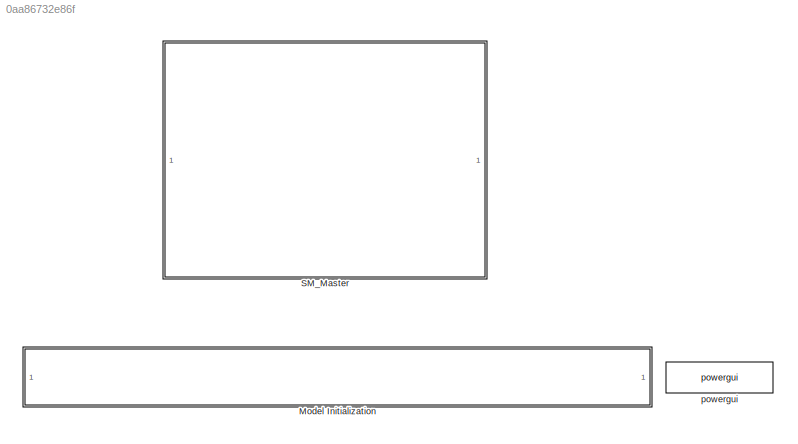
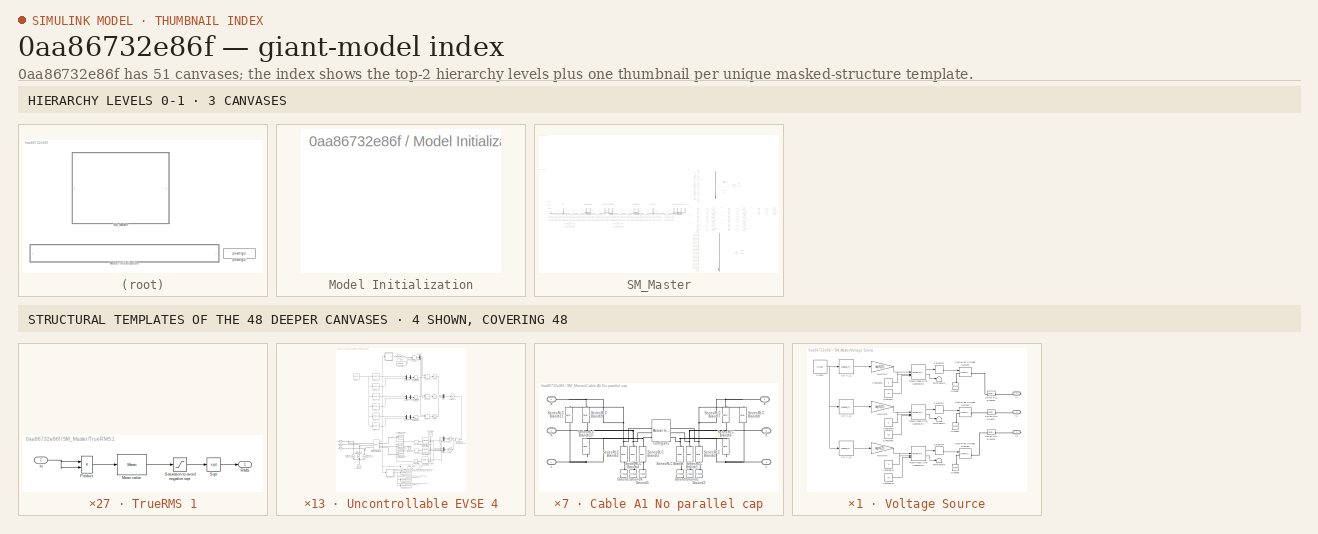
[diagram: thumbnail index - top-2 hierarchy levels (3 canvases) + 4 structural-template representatives of the remaining 48 canvases]
MODEL slx_0aa86732e86f
KIND model
CONFIG AbsTol = auto
CONFIG EnableMultiTasking = off
CONFIG FixedStep = Ts
CONFIG InitFcn = Ts=1e-4;load('RuralCase_11052022_12052022_Data_with_ParThreads_Final.mat');run('line_parameters.m');run('Grid_Parameters_3ph.m');
CONFIG MaxStep = auto
CONFIG MinStep = auto
CONFIG PostLoadFcn = Ts=1e-4;load('RuralCase_11052022_12052022_Data_with_ParThreads_Final.mat');run('line_parameters.m');run('Grid_Parameters_3ph.m');
CONFIG PreLoadFcn = Ts=1e-4;load('RuralCase_11052022_12052022_Data_with_ParThreads_Final.mat');run('line_parameters.m');run('Grid_Parameters_3ph.m');
CONFIG RelTol = 1e-3
CONFIG SampleTimeConstraint = Unconstrained
CONFIG SolverName = ode4
CONFIG StartFcn = Ts=1e-4;load('RuralCase_11052022_12052022_Data_with_ParThreads_Final.mat');run('line_parameters.m');run('Grid_Parameters_3ph.m');
CONFIG StartTime = 0.0
CONFIG StopTime = stoptime
BLOCK [SubSystem] Model Initialization
  CopyFcn = set_param(gcb,'LinkStatus','none')
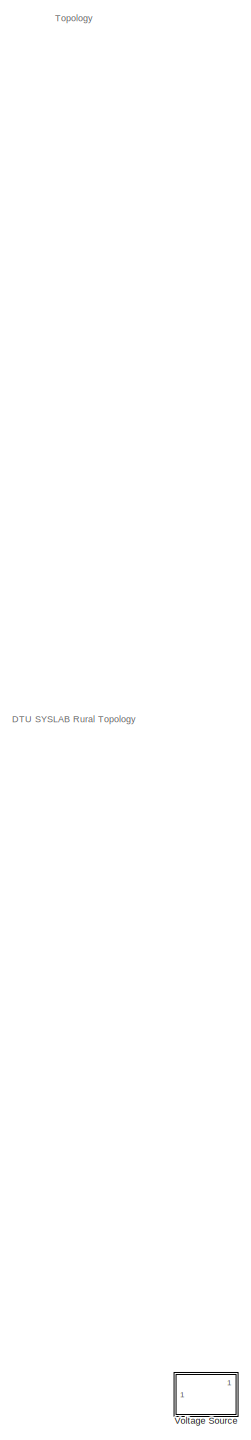
[diagram: SM_Master - part 1/8, top left region]
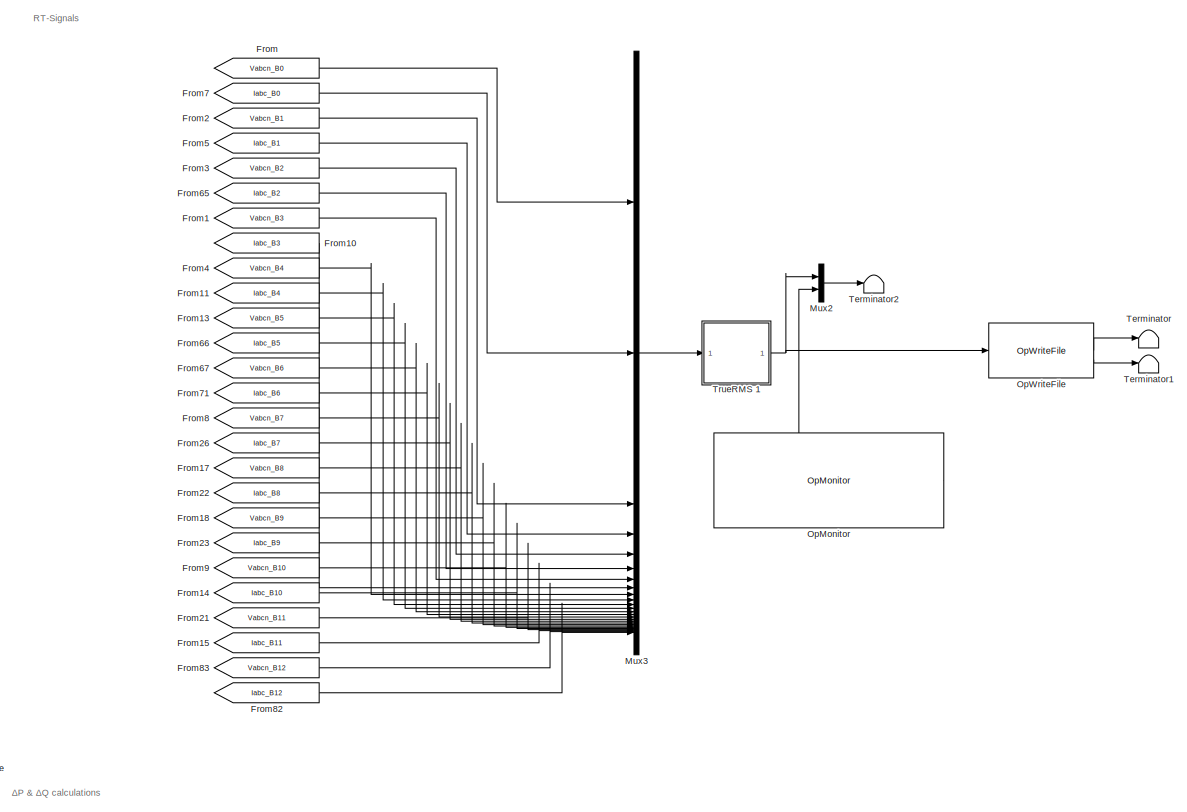
[diagram: SM_Master - part 2/8, middle right region]
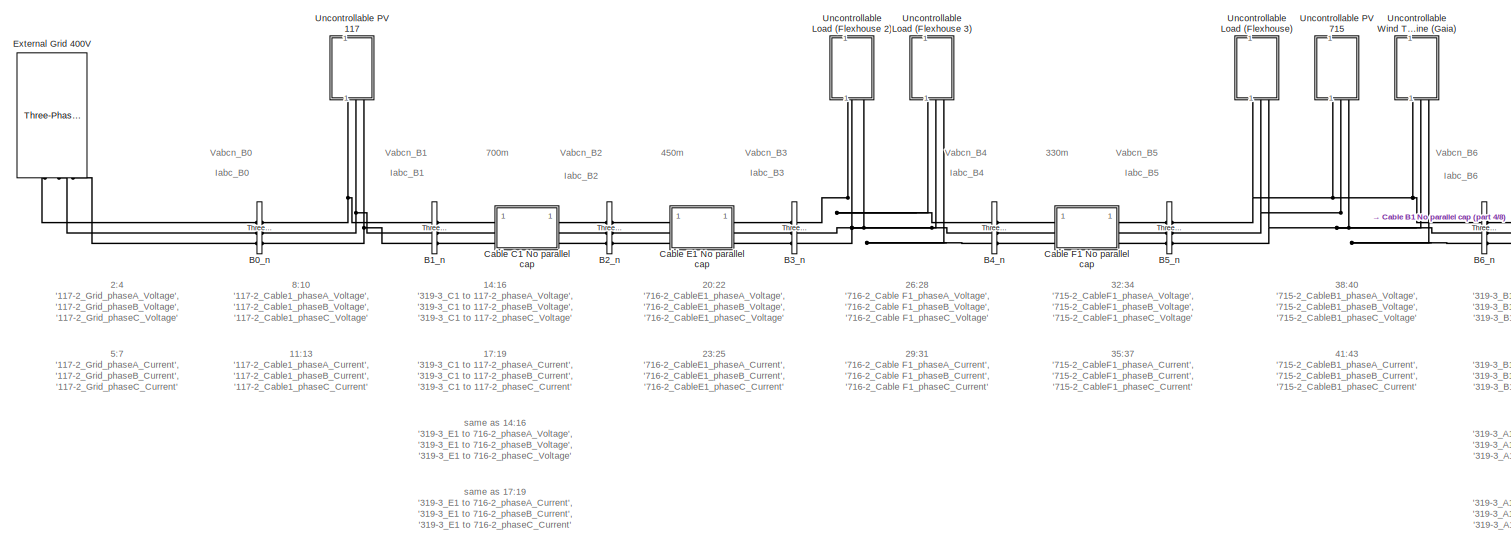
[diagram: SM_Master - part 3/8, middle left region]
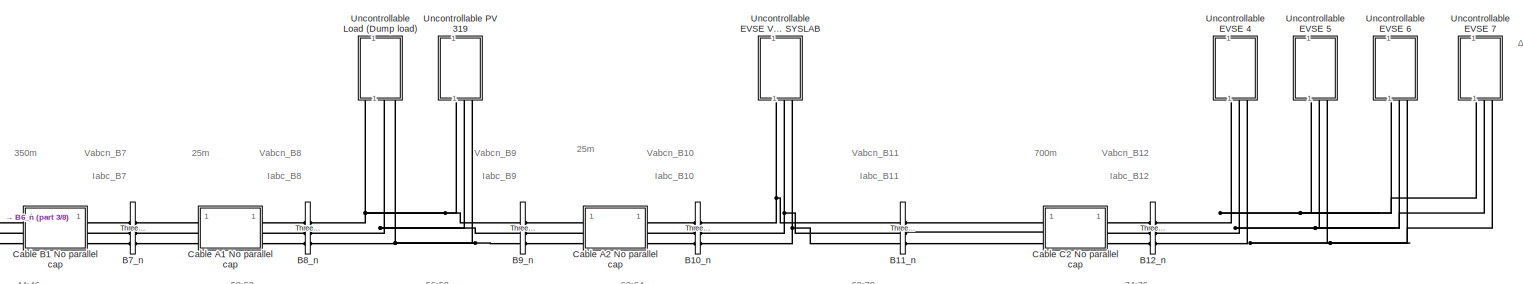
[diagram: SM_Master - part 4/8, central region]
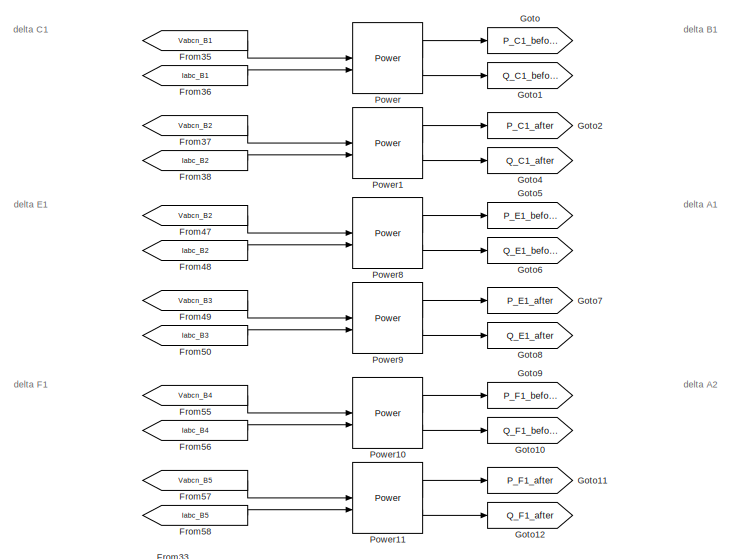
[diagram: SM_Master - part 5/8, middle right region]
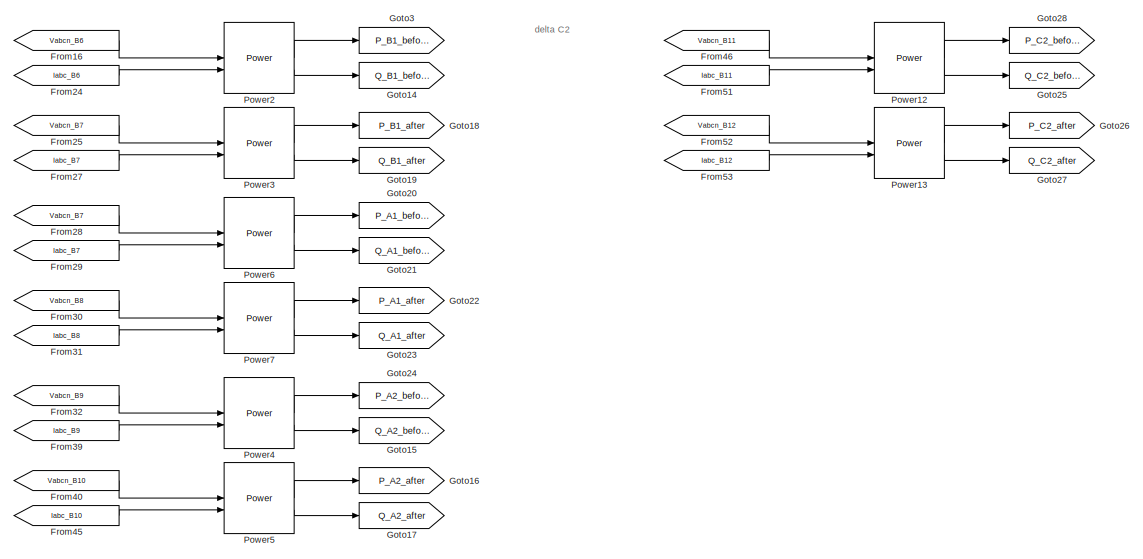
[diagram: SM_Master - part 6/8, middle right region]
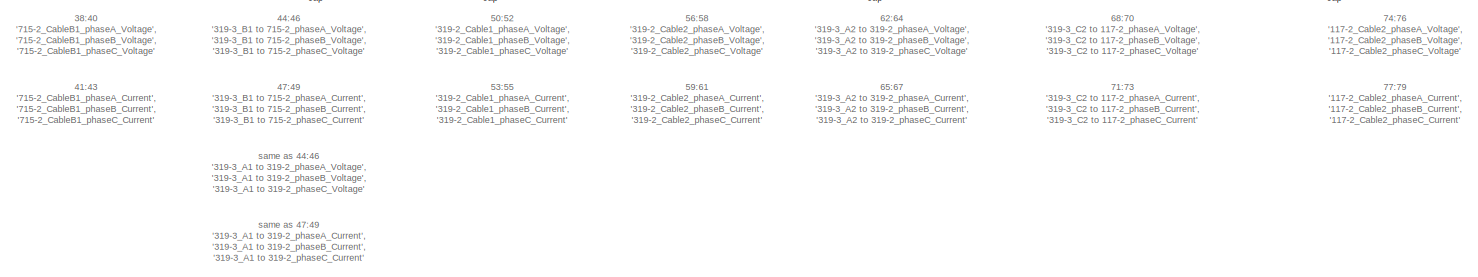
[diagram: SM_Master - part 7/8, central region]
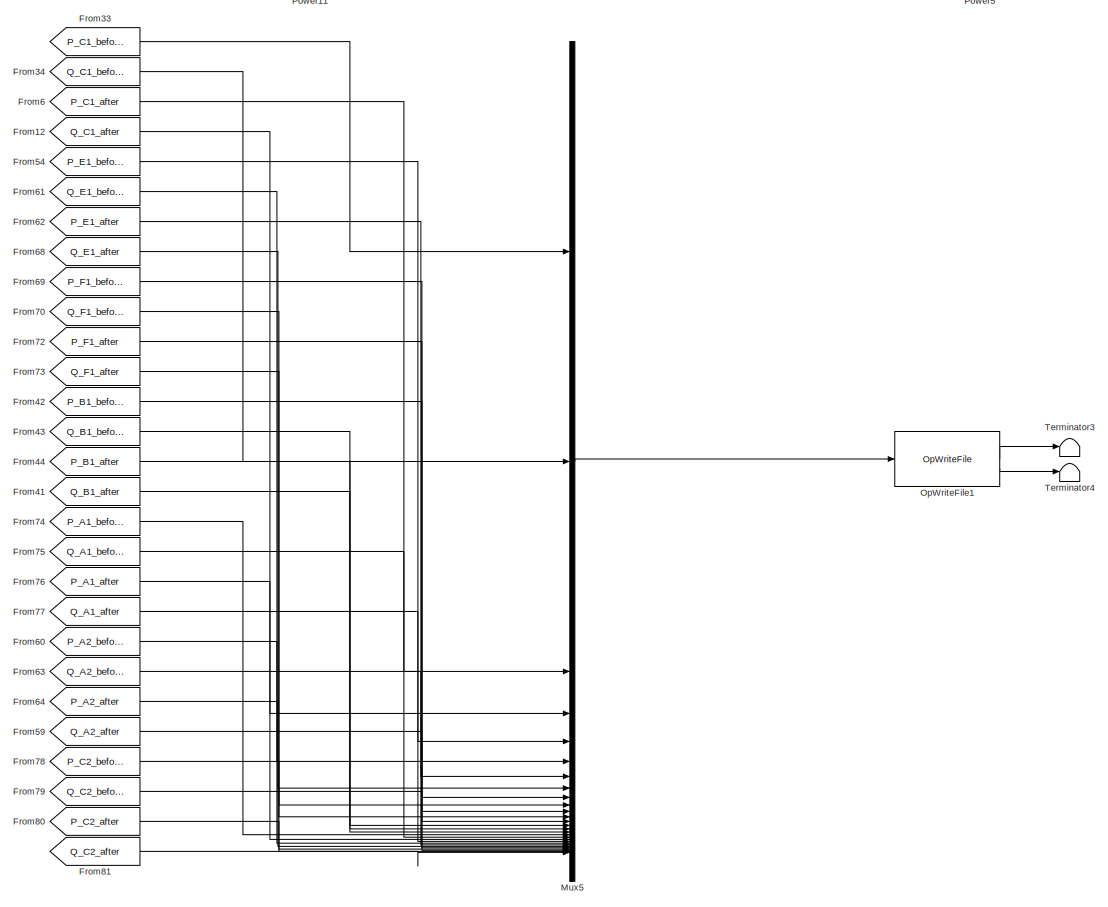
[diagram: SM_Master - part 8/8, bottom right region]
BLOCK [SubSystem] SM_Master
BLOCK [Reference] SM_Master/B0_n  REF=spsThreePhaseVIMeasurementLib/Three-Phase
V-I Measurement
  LibrarySourceBlock = sps_lib/Sensors and Measurements/Three-Phase\nV-I Measurement
  SourceBlock = spsThreePhaseVIMeasurementLib/Three-Phase\nV-I Measurement
  SourceType = Three-Phase VI Measurement
BLOCK [Reference] SM_Master/B10_n  REF=spsThreePhaseVIMeasurementLib/Three-Phase
V-I Measurement
  LibrarySourceBlock = sps_lib/Sensors and Measurements/Three-Phase\nV-I Measurement
  SourceBlock = spsThreePhaseVIMeasurementLib/Three-Phase\nV-I Measurement
  SourceType = Three-Phase VI Measurement
BLOCK [Reference] SM_Master/B11_n  REF=spsThreePhaseVIMeasurementLib/Three-Phase
V-I Measurement
  LibrarySourceBlock = sps_lib/Sensors and Measurements/Three-Phase\nV-I Measurement
  SourceBlock = spsThreePhaseVIMeasurementLib/Three-Phase\nV-I Measurement
  SourceType = Three-Phase VI Measurement
BLOCK [Reference] SM_Master/B12_n  REF=spsThreePhaseVIMeasurementLib/Three-Phase
V-I Measurement
  LibrarySourceBlock = sps_lib/Sensors and Measurements/Three-Phase\nV-I Measurement
  SourceBlock = spsThreePhaseVIMeasurementLib/Three-Phase\nV-I Measurement
  SourceType = Three-Phase VI Measurement
BLOCK [Reference] SM_Master/B1_n  REF=spsThreePhaseVIMeasurementLib/Three-Phase
V-I Measurement
  LibrarySourceBlock = sps_lib/Sensors and Measurements/Three-Phase\nV-I Measurement
  SourceBlock = spsThreePhaseVIMeasurementLib/Three-Phase\nV-I Measurement
  SourceType = Three-Phase VI Measurement
BLOCK [Reference] SM_Master/B2_n  REF=spsThreePhaseVIMeasurementLib/Three-Phase
V-I Measurement
  LibrarySourceBlock = sps_lib/Sensors and Measurements/Three-Phase\nV-I Measurement
  SourceBlock = spsThreePhaseVIMeasurementLib/Three-Phase\nV-I Measurement
  SourceType = Three-Phase VI Measurement
BLOCK [Reference] SM_Master/B3_n  REF=spsThreePhaseVIMeasurementLib/Three-Phase
V-I Measurement
  LibrarySourceBlock = sps_lib/Sensors and Measurements/Three-Phase\nV-I Measurement
  SourceBlock = spsThreePhaseVIMeasurementLib/Three-Phase\nV-I Measurement
  SourceType = Three-Phase VI Measurement
BLOCK [Reference] SM_Master/B4_n  REF=spsThreePhaseVIMeasurementLib/Three-Phase
V-I Measurement
  LibrarySourceBlock = sps_lib/Sensors and Measurements/Three-Phase\nV-I Measurement
  SourceBlock = spsThreePhaseVIMeasurementLib/Three-Phase\nV-I Measurement
  SourceType = Three-Phase VI Measurement
BLOCK [Reference] SM_Master/B5_n  REF=spsThreePhaseVIMeasurementLib/Three-Phase
V-I Measurement
  LibrarySourceBlock = sps_lib/Sensors and Measurements/Three-Phase\nV-I Measurement
  SourceBlock = spsThreePhaseVIMeasurementLib/Three-Phase\nV-I Measurement
  SourceType = Three-Phase VI Measurement
BLOCK [Reference] SM_Master/B6_n  REF=spsThreePhaseVIMeasurementLib/Three-Phase
V-I Measurement
  LibrarySourceBlock = sps_lib/Sensors and Measurements/Three-Phase\nV-I Measurement
  SourceBlock = spsThreePhaseVIMeasurementLib/Three-Phase\nV-I Measurement
  SourceType = Three-Phase VI Measurement
BLOCK [Reference] SM_Master/B7_n  REF=spsThreePhaseVIMeasurementLib/Three-Phase
V-I Measurement
  LibrarySourceBlock = sps_lib/Sensors and Measurements/Three-Phase\nV-I Measurement
  SourceBlock = spsThreePhaseVIMeasurementLib/Three-Phase\nV-I Measurement
  SourceType = Three-Phase VI Measurement
BLOCK [Reference] SM_Master/B8_n  REF=spsThreePhaseVIMeasurementLib/Three-Phase
V-I Measurement
  LibrarySourceBlock = sps_lib/Sensors and Measurements/Three-Phase\nV-I Measurement
  SourceBlock = spsThreePhaseVIMeasurementLib/Three-Phase\nV-I Measurement
  SourceType = Three-Phase VI Measurement
BLOCK [Reference] SM_Master/B9_n  REF=spsThreePhaseVIMeasurementLib/Three-Phase
V-I Measurement
  LibrarySourceBlock = sps_lib/Sensors and Measurements/Three-Phase\nV-I Measurement
  SourceBlock = spsThreePhaseVIMeasurementLib/Three-Phase\nV-I Measurement
  SourceType = Three-Phase VI Measurement
BLOCK [SubSystem] SM_Master/Cable A1 No parallel cap
  NameLocation = top
BLOCK [Reference] SM_Master/Cable A1 No parallel cap/Config301  REF=spsMutualInductanceLib/Mutual Inductance
  AttributesFormatString = \n
  LibrarySourceBlock = sps_lib/Passives/Mutual Inductance
  SourceBlock = spsMutualInductanceLib/Mutual Inductance
  SourceType = Mutual Inductance
BLOCK [Reference] SM_Master/Cable A1 No parallel cap/Ground  REF=spsGroundLib/Ground
  LibrarySourceBlock = sps_lib/Utilities/Ground
  NameLocation = right
  SourceBlock = spsGroundLib/Ground
  SourceType = Ground
BLOCK [Reference] SM_Master/Cable A1 No parallel cap/Ground1  REF=spsGroundLib/Ground
  LibrarySourceBlock = sps_lib/Utilities/Ground
  NameLocation = right
  SourceBlock = spsGroundLib/Ground
  SourceType = Ground
BLOCK [Reference] SM_Master/Cable A1 No parallel cap/Ground2  REF=spsGroundLib/Ground
  LibrarySourceBlock = sps_lib/Utilities/Ground
  NameLocation = right
  SourceBlock = spsGroundLib/Ground
  SourceType = Ground
BLOCK [Reference] SM_Master/Cable A1 No parallel cap/Ground3  REF=spsGroundLib/Ground
  LibrarySourceBlock = sps_lib/Utilities/Ground
  NameLocation = right
  SourceBlock = spsGroundLib/Ground
  SourceType = Ground
BLOCK [Reference] SM_Master/Cable A1 No parallel cap/Ground4  REF=spsGroundLib/Ground
  LibrarySourceBlock = sps_lib/Utilities/Ground
  NameLocation = right
  SourceBlock = spsGroundLib/Ground
  SourceType = Ground
BLOCK [Reference] SM_Master/Cable A1 No parallel cap/Ground5  REF=spsGroundLib/Ground
  LibrarySourceBlock = sps_lib/Utilities/Ground
  NameLocation = right
  SourceBlock = spsGroundLib/Ground
  SourceType = Ground
BLOCK [Reference] SM_Master/Cable A1 No parallel cap/Series RLC Branch  REF=spsSeriesRLCBranchLib/Series RLC Branch
  LibrarySourceBlock = sps_lib/Passives/Series RLC Branch
  NameLocation = left
  SourceBlock = spsSeriesRLCBranchLib/Series RLC Branch
  SourceType = Series RLC Branch
BLOCK [Reference] SM_Master/Cable A1 No parallel cap/Series RLC Branch1  REF=spsSeriesRLCBranchLib/Series RLC Branch
  LibrarySourceBlock = sps_lib/Passives/Series RLC Branch
  NameLocation = left
  SourceBlock = spsSeriesRLCBranchLib/Series RLC Branch
  SourceType = Series RLC Branch
BLOCK [Reference] SM_Master/Cable A1 No parallel cap/Series RLC Branch10  REF=spsSeriesRLCBranchLib/Series RLC Branch
  Commented = on
  LibrarySourceBlock = sps_lib/Passives/Series RLC Branch
  NameLocation = left
  SourceBlock = spsSeriesRLCBranchLib/Series RLC Branch
  SourceType = Series RLC Branch
BLOCK [Reference] SM_Master/Cable A1 No parallel cap/Series RLC Branch11  REF=spsSeriesRLCBranchLib/Series RLC Branch
  Commented = on
  LibrarySourceBlock = sps_lib/Passives/Series RLC Branch
  NameLocation = left
  SourceBlock = spsSeriesRLCBranchLib/Series RLC Branch
  SourceType = Series RLC Branch
BLOCK [Reference] SM_Master/Cable A1 No parallel cap/Series RLC Branch2  REF=spsSeriesRLCBranchLib/Series RLC Branch
  LibrarySourceBlock = sps_lib/Passives/Series RLC Branch
  NameLocation = left
  SourceBlock = spsSeriesRLCBranchLib/Series RLC Branch
  SourceType = Series RLC Branch
BLOCK [Reference] SM_Master/Cable A1 No parallel cap/Series RLC Branch3  REF=spsSeriesRLCBranchLib/Series RLC Branch
  LibrarySourceBlock = sps_lib/Passives/Series RLC Branch
  NameLocation = left
  SourceBlock = spsSeriesRLCBranchLib/Series RLC Branch
  SourceType = Series RLC Branch
BLOCK [Reference] SM_Master/Cable A1 No parallel cap/Series RLC Branch4  REF=spsSeriesRLCBranchLib/Series RLC Branch
  LibrarySourceBlock = sps_lib/Passives/Series RLC Branch
  NameLocation = left
  SourceBlock = spsSeriesRLCBranchLib/Series RLC Branch
  SourceType = Series RLC Branch
BLOCK [Reference] SM_Master/Cable A1 No parallel cap/Series RLC Branch5  REF=spsSeriesRLCBranchLib/Series RLC Branch
  LibrarySourceBlock = sps_lib/Passives/Series RLC Branch
  NameLocation = left
  SourceBlock = spsSeriesRLCBranchLib/Series RLC Branch
  SourceType = Series RLC Branch
BLOCK [Reference] SM_Master/Cable A1 No parallel cap/Series RLC Branch6  REF=spsSeriesRLCBranchLib/Series RLC Branch
  Commented = on
  LibrarySourceBlock = sps_lib/Passives/Series RLC Branch
  NameLocation = left
  SourceBlock = spsSeriesRLCBranchLib/Series RLC Branch
  SourceType = Series RLC Branch
BLOCK [Reference] SM_Master/Cable A1 No parallel cap/Series RLC Branch7  REF=spsSeriesRLCBranchLib/Series RLC Branch
  Commented = on
  LibrarySourceBlock = sps_lib/Passives/Series RLC Branch
  NameLocation = left
  SourceBlock = spsSeriesRLCBranchLib/Series RLC Branch
  SourceType = Series RLC Branch
BLOCK [Reference] SM_Master/Cable A1 No parallel cap/Series RLC Branch8  REF=spsSeriesRLCBranchLib/Series RLC Branch
  Commented = on
  LibrarySourceBlock = sps_lib/Passives/Series RLC Branch
  NameLocation = left
  SourceBlock = spsSeriesRLCBranchLib/Series RLC Branch
  SourceType = Series RLC Branch
BLOCK [Reference] SM_Master/Cable A1 No parallel cap/Series RLC Branch9  REF=spsSeriesRLCBranchLib/Series RLC Branch
  Commented = on
  LibrarySourceBlock = sps_lib/Passives/Series RLC Branch
  NameLocation = left
  SourceBlock = spsSeriesRLCBranchLib/Series RLC Branch
  SourceType = Series RLC Branch
BLOCK [PMIOPort] SM_Master/Cable A1 No parallel cap/a
  Side = Left
  Tag = PMCPort
BLOCK [PMIOPort] SM_Master/Cable A1 No parallel cap/a 
  NameLocation = top
  Port = 4
  Side = Right
  Tag = PMCPort
BLOCK [PMIOPort] SM_Master/Cable A1 No parallel cap/b
  Port = 2
  Side = Left
  Tag = PMCPort
BLOCK [PMIOPort] SM_Master/Cable A1 No parallel cap/b 
  NameLocation = top
  Port = 5
  Side = Right
  Tag = PMCPort
BLOCK [PMIOPort] SM_Master/Cable A1 No parallel cap/c
  Port = 3
  Side = Left
  Tag = PMCPort
BLOCK [PMIOPort] SM_Master/Cable A1 No parallel cap/c 
  NameLocation = top
  Port = 6
  Side = Right
  Tag = PMCPort
BLOCK [SubSystem] SM_Master/Cable A2 No parallel cap
  NameLocation = top
BLOCK [Reference] SM_Master/Cable A2 No parallel cap/Config301  REF=spsMutualInductanceLib/Mutual Inductance
  AttributesFormatString = \n
  LibrarySourceBlock = sps_lib/Passives/Mutual Inductance
  SourceBlock = spsMutualInductanceLib/Mutual Inductance
  SourceType = Mutual Inductance
BLOCK [Reference] SM_Master/Cable A2 No parallel cap/Ground  REF=spsGroundLib/Ground
  LibrarySourceBlock = sps_lib/Utilities/Ground
  NameLocation = right
  SourceBlock = spsGroundLib/Ground
  SourceType = Ground
BLOCK [Reference] SM_Master/Cable A2 No parallel cap/Ground1  REF=spsGroundLib/Ground
  LibrarySourceBlock = sps_lib/Utilities/Ground
  NameLocation = right
  SourceBlock = spsGroundLib/Ground
  SourceType = Ground
BLOCK [Reference] SM_Master/Cable A2 No parallel cap/Ground2  REF=spsGroundLib/Ground
  LibrarySourceBlock = sps_lib/Utilities/Ground
  NameLocation = right
  SourceBlock = spsGroundLib/Ground
  SourceType = Ground
BLOCK [Reference] SM_Master/Cable A2 No parallel cap/Ground3  REF=spsGroundLib/Ground
  LibrarySourceBlock = sps_lib/Utilities/Ground
  NameLocation = right
  SourceBlock = spsGroundLib/Ground
  SourceType = Ground
BLOCK [Reference] SM_Master/Cable A2 No parallel cap/Ground4  REF=spsGroundLib/Ground
  LibrarySourceBlock = sps_lib/Utilities/Ground
  NameLocation = right
  SourceBlock = spsGroundLib/Ground
  SourceType = Ground
BLOCK [Reference] SM_Master/Cable A2 No parallel cap/Ground5  REF=spsGroundLib/Ground
  LibrarySourceBlock = sps_lib/Utilities/Ground
  NameLocation = right
  SourceBlock = spsGroundLib/Ground
  SourceType = Ground
BLOCK [Reference] SM_Master/Cable A2 No parallel cap/Series RLC Branch  REF=spsSeriesRLCBranchLib/Series RLC Branch
  LibrarySourceBlock = sps_lib/Passives/Series RLC Branch
  NameLocation = left
  SourceBlock = spsSeriesRLCBranchLib/Series RLC Branch
  SourceType = Series RLC Branch
BLOCK [Reference] SM_Master/Cable A2 No parallel cap/Series RLC Branch1  REF=spsSeriesRLCBranchLib/Series RLC Branch
  LibrarySourceBlock = sps_lib/Passives/Series RLC Branch
  NameLocation = left
  SourceBlock = spsSeriesRLCBranchLib/Series RLC Branch
  SourceType = Series RLC Branch
BLOCK [Reference] SM_Master/Cable A2 No parallel cap/Series RLC Branch10  REF=spsSeriesRLCBranchLib/Series RLC Branch
  Commented = on
  LibrarySourceBlock = sps_lib/Passives/Series RLC Branch
  NameLocation = left
  SourceBlock = spsSeriesRLCBranchLib/Series RLC Branch
  SourceType = Series RLC Branch
BLOCK [Reference] SM_Master/Cable A2 No parallel cap/Series RLC Branch11  REF=spsSeriesRLCBranchLib/Series RLC Branch
  Commented = on
  LibrarySourceBlock = sps_lib/Passives/Series RLC Branch
  NameLocation = left
  SourceBlock = spsSeriesRLCBranchLib/Series RLC Branch
  SourceType = Series RLC Branch
BLOCK [Reference] SM_Master/Cable A2 No parallel cap/Series RLC Branch2  REF=spsSeriesRLCBranchLib/Series RLC Branch
  LibrarySourceBlock = sps_lib/Passives/Series RLC Branch
  NameLocation = left
  SourceBlock = spsSeriesRLCBranchLib/Series RLC Branch
  SourceType = Series RLC Branch
BLOCK [Reference] SM_Master/Cable A2 No parallel cap/Series RLC Branch3  REF=spsSeriesRLCBranchLib/Series RLC Branch
  LibrarySourceBlock = sps_lib/Passives/Series RLC Branch
  NameLocation = left
  SourceBlock = spsSeriesRLCBranchLib/Series RLC Branch
  SourceType = Series RLC Branch
BLOCK [Reference] SM_Master/Cable A2 No parallel cap/Series RLC Branch4  REF=spsSeriesRLCBranchLib/Series RLC Branch
  LibrarySourceBlock = sps_lib/Passives/Series RLC Branch
  NameLocation = left
  SourceBlock = spsSeriesRLCBranchLib/Series RLC Branch
  SourceType = Series RLC Branch
BLOCK [Reference] SM_Master/Cable A2 No parallel cap/Series RLC Branch5  REF=spsSeriesRLCBranchLib/Series RLC Branch
  LibrarySourceBlock = sps_lib/Passives/Series RLC Branch
  NameLocation = left
  SourceBlock = spsSeriesRLCBranchLib/Series RLC Branch
  SourceType = Series RLC Branch
BLOCK [Reference] SM_Master/Cable A2 No parallel cap/Series RLC Branch6  REF=spsSeriesRLCBranchLib/Series RLC Branch
  Commented = on
  LibrarySourceBlock = sps_lib/Passives/Series RLC Branch
  NameLocation = left
  SourceBlock = spsSeriesRLCBranchLib/Series RLC Branch
  SourceType = Series RLC Branch
BLOCK [Reference] SM_Master/Cable A2 No parallel cap/Series RLC Branch7  REF=spsSeriesRLCBranchLib/Series RLC Branch
  Commented = on
  LibrarySourceBlock = sps_lib/Passives/Series RLC Branch
  NameLocation = left
  SourceBlock = spsSeriesRLCBranchLib/Series RLC Branch
  SourceType = Series RLC Branch
BLOCK [Reference] SM_Master/Cable A2 No parallel cap/Series RLC Branch8  REF=spsSeriesRLCBranchLib/Series RLC Branch
  Commented = on
  LibrarySourceBlock = sps_lib/Passives/Series RLC Branch
  NameLocation = left
  SourceBlock = spsSeriesRLCBranchLib/Series RLC Branch
  SourceType = Series RLC Branch
BLOCK [Reference] SM_Master/Cable A2 No parallel cap/Series RLC Branch9  REF=spsSeriesRLCBranchLib/Series RLC Branch
  Commented = on
  LibrarySourceBlock = sps_lib/Passives/Series RLC Branch
  NameLocation = left
  SourceBlock = spsSeriesRLCBranchLib/Series RLC Branch
  SourceType = Series RLC Branch
BLOCK [PMIOPort] SM_Master/Cable A2 No parallel cap/a
  Side = Left
  Tag = PMCPort
BLOCK [PMIOPort] SM_Master/Cable A2 No parallel cap/a 
  NameLocation = top
  Port = 4
  Side = Right
  Tag = PMCPort
BLOCK [PMIOPort] SM_Master/Cable A2 No parallel cap/b
  Port = 2
  Side = Left
  Tag = PMCPort
BLOCK [PMIOPort] SM_Master/Cable A2 No parallel cap/b 
  NameLocation = top
  Port = 5
  Side = Right
  Tag = PMCPort
BLOCK [PMIOPort] SM_Master/Cable A2 No parallel cap/c
  Port = 3
  Side = Left
  Tag = PMCPort
BLOCK [PMIOPort] SM_Master/Cable A2 No parallel cap/c 
  NameLocation = top
  Port = 6
  Side = Right
  Tag = PMCPort
BLOCK [SubSystem] SM_Master/Cable B1 No parallel cap
  NameLocation = top
BLOCK [Reference] SM_Master/Cable B1 No parallel cap/Config301  REF=spsMutualInductanceLib/Mutual Inductance
  AttributesFormatString = \n
  LibrarySourceBlock = sps_lib/Passives/Mutual Inductance
  SourceBlock = spsMutualInductanceLib/Mutual Inductance
  SourceType = Mutual Inductance
BLOCK [Reference] SM_Master/Cable B1 No parallel cap/Ground  REF=spsGroundLib/Ground
  LibrarySourceBlock = sps_lib/Utilities/Ground
  NameLocation = right
  SourceBlock = spsGroundLib/Ground
  SourceType = Ground
BLOCK [Reference] SM_Master/Cable B1 No parallel cap/Ground1  REF=spsGroundLib/Ground
  LibrarySourceBlock = sps_lib/Utilities/Ground
  NameLocation = right
  SourceBlock = spsGroundLib/Ground
  SourceType = Ground
BLOCK [Reference] SM_Master/Cable B1 No parallel cap/Ground2  REF=spsGroundLib/Ground
  LibrarySourceBlock = sps_lib/Utilities/Ground
  NameLocation = right
  SourceBlock = spsGroundLib/Ground
  SourceType = Ground
BLOCK [Reference] SM_Master/Cable B1 No parallel cap/Ground3  REF=spsGroundLib/Ground
  LibrarySourceBlock = sps_lib/Utilities/Ground
  NameLocation = right
  SourceBlock = spsGroundLib/Ground
  SourceType = Ground
BLOCK [Reference] SM_Master/Cable B1 No parallel cap/Ground4  REF=spsGroundLib/Ground
  LibrarySourceBlock = sps_lib/Utilities/Ground
  NameLocation = right
  SourceBlock = spsGroundLib/Ground
  SourceType = Ground
BLOCK [Reference] SM_Master/Cable B1 No parallel cap/Ground5  REF=spsGroundLib/Ground
  LibrarySourceBlock = sps_lib/Utilities/Ground
  NameLocation = right
  SourceBlock = spsGroundLib/Ground
  SourceType = Ground
BLOCK [Reference] SM_Master/Cable B1 No parallel cap/Series RLC Branch  REF=spsSeriesRLCBranchLib/Series RLC Branch
  LibrarySourceBlock = sps_lib/Passives/Series RLC Branch
  NameLocation = left
  SourceBlock = spsSeriesRLCBranchLib/Series RLC Branch
  SourceType = Series RLC Branch
BLOCK [Reference] SM_Master/Cable B1 No parallel cap/Series RLC Branch1  REF=spsSeriesRLCBranchLib/Series RLC Branch
  LibrarySourceBlock = sps_lib/Passives/Series RLC Branch
  NameLocation = left
  SourceBlock = spsSeriesRLCBranchLib/Series RLC Branch
  SourceType = Series RLC Branch
BLOCK [Reference] SM_Master/Cable B1 No parallel cap/Series RLC Branch10  REF=spsSeriesRLCBranchLib/Series RLC Branch
  Commented = on
  LibrarySourceBlock = sps_lib/Passives/Series RLC Branch
  NameLocation = left
  SourceBlock = spsSeriesRLCBranchLib/Series RLC Branch
  SourceType = Series RLC Branch
BLOCK [Reference] SM_Master/Cable B1 No parallel cap/Series RLC Branch11  REF=spsSeriesRLCBranchLib/Series RLC Branch
  Commented = on
  LibrarySourceBlock = sps_lib/Passives/Series RLC Branch
  NameLocation = left
  SourceBlock = spsSeriesRLCBranchLib/Series RLC Branch
  SourceType = Series RLC Branch
BLOCK [Reference] SM_Master/Cable B1 No parallel cap/Series RLC Branch2  REF=spsSeriesRLCBranchLib/Series RLC Branch
  LibrarySourceBlock = sps_lib/Passives/Series RLC Branch
  NameLocation = left
  SourceBlock = spsSeriesRLCBranchLib/Series RLC Branch
  SourceType = Series RLC Branch
BLOCK [Reference] SM_Master/Cable B1 No parallel cap/Series RLC Branch3  REF=spsSeriesRLCBranchLib/Series RLC Branch
  LibrarySourceBlock = sps_lib/Passives/Series RLC Branch
  NameLocation = left
  SourceBlock = spsSeriesRLCBranchLib/Series RLC Branch
  SourceType = Series RLC Branch
BLOCK [Reference] SM_Master/Cable B1 No parallel cap/Series RLC Branch4  REF=spsSeriesRLCBranchLib/Series RLC Branch
  LibrarySourceBlock = sps_lib/Passives/Series RLC Branch
  NameLocation = left
  SourceBlock = spsSeriesRLCBranchLib/Series RLC Branch
  SourceType = Series RLC Branch
BLOCK [Reference] SM_Master/Cable B1 No parallel cap/Series RLC Branch5  REF=spsSeriesRLCBranchLib/Series RLC Branch
  LibrarySourceBlock = sps_lib/Passives/Series RLC Branch
  NameLocation = left
  SourceBlock = spsSeriesRLCBranchLib/Series RLC Branch
  SourceType = Series RLC Branch
BLOCK [Reference] SM_Master/Cable B1 No parallel cap/Series RLC Branch6  REF=spsSeriesRLCBranchLib/Series RLC Branch
  Commented = on
  LibrarySourceBlock = sps_lib/Passives/Series RLC Branch
  NameLocation = left
  SourceBlock = spsSeriesRLCBranchLib/Series RLC Branch
  SourceType = Series RLC Branch
BLOCK [Reference] SM_Master/Cable B1 No parallel cap/Series RLC Branch7  REF=spsSeriesRLCBranchLib/Series RLC Branch
  Commented = on
  LibrarySourceBlock = sps_lib/Passives/Series RLC Branch
  NameLocation = left
  SourceBlock = spsSeriesRLCBranchLib/Series RLC Branch
  SourceType = Series RLC Branch
BLOCK [Reference] SM_Master/Cable B1 No parallel cap/Series RLC Branch8  REF=spsSeriesRLCBranchLib/Series RLC Branch
  Commented = on
  LibrarySourceBlock = sps_lib/Passives/Series RLC Branch
  NameLocation = left
  SourceBlock = spsSeriesRLCBranchLib/Series RLC Branch
  SourceType = Series RLC Branch
BLOCK [Reference] SM_Master/Cable B1 No parallel cap/Series RLC Branch9  REF=spsSeriesRLCBranchLib/Series RLC Branch
  Commented = on
  LibrarySourceBlock = sps_lib/Passives/Series RLC Branch
  NameLocation = left
  SourceBlock = spsSeriesRLCBranchLib/Series RLC Branch
  SourceType = Series RLC Branch
BLOCK [PMIOPort] SM_Master/Cable B1 No parallel cap/a
  Side = Left
  Tag = PMCPort
BLOCK [PMIOPort] SM_Master/Cable B1 No parallel cap/a 
  NameLocation = top
  Port = 4
  Side = Right
  Tag = PMCPort
BLOCK [PMIOPort] SM_Master/Cable B1 No parallel cap/b
  Port = 2
  Side = Left
  Tag = PMCPort
BLOCK [PMIOPort] SM_Master/Cable B1 No parallel cap/b 
  NameLocation = top
  Port = 5
  Side = Right
  Tag = PMCPort
BLOCK [PMIOPort] SM_Master/Cable B1 No parallel cap/c
  Port = 3
  Side = Left
  Tag = PMCPort
BLOCK [PMIOPort] SM_Master/Cable B1 No parallel cap/c 
  NameLocation = top
  Port = 6
  Side = Right
  Tag = PMCPort
BLOCK [SubSystem] SM_Master/Cable C1 No parallel cap
  NameLocation = top
BLOCK [Reference] SM_Master/Cable C1 No parallel cap/Config301  REF=spsMutualInductanceLib/Mutual Inductance
  AttributesFormatString = \n
  LibrarySourceBlock = sps_lib/Passives/Mutual Inductance
  SourceBlock = spsMutualInductanceLib/Mutual Inductance
  SourceType = Mutual Inductance
BLOCK [Reference] SM_Master/Cable C1 No parallel cap/Ground  REF=spsGroundLib/Ground
  LibrarySourceBlock = sps_lib/Utilities/Ground
  NameLocation = right
  SourceBlock = spsGroundLib/Ground
  SourceType = Ground
BLOCK [Reference] SM_Master/Cable C1 No parallel cap/Ground1  REF=spsGroundLib/Ground
  LibrarySourceBlock = sps_lib/Utilities/Ground
  NameLocation = right
  SourceBlock = spsGroundLib/Ground
  SourceType = Ground
BLOCK [Reference] SM_Master/Cable C1 No parallel cap/Ground2  REF=spsGroundLib/Ground
  LibrarySourceBlock = sps_lib/Utilities/Ground
  NameLocation = right
  SourceBlock = spsGroundLib/Ground
  SourceType = Ground
BLOCK [Reference] SM_Master/Cable C1 No parallel cap/Ground3  REF=spsGroundLib/Ground
  LibrarySourceBlock = sps_lib/Utilities/Ground
  NameLocation = right
  SourceBlock = spsGroundLib/Ground
  SourceType = Ground
BLOCK [Reference] SM_Master/Cable C1 No parallel cap/Ground4  REF=spsGroundLib/Ground
  LibrarySourceBlock = sps_lib/Utilities/Ground
  NameLocation = right
  SourceBlock = spsGroundLib/Ground
  SourceType = Ground
BLOCK [Reference] SM_Master/Cable C1 No parallel cap/Ground5  REF=spsGroundLib/Ground
  LibrarySourceBlock = sps_lib/Utilities/Ground
  NameLocation = right
  SourceBlock = spsGroundLib/Ground
  SourceType = Ground
BLOCK [Reference] SM_Master/Cable C1 No parallel cap/Series RLC Branch  REF=spsSeriesRLCBranchLib/Series RLC Branch
  LibrarySourceBlock = sps_lib/Passives/Series RLC Branch
  NameLocation = left
  SourceBlock = spsSeriesRLCBranchLib/Series RLC Branch
  SourceType = Series RLC Branch
BLOCK [Reference] SM_Master/Cable C1 No parallel cap/Series RLC Branch1  REF=spsSeriesRLCBranchLib/Series RLC Branch
  LibrarySourceBlock = sps_lib/Passives/Series RLC Branch
  NameLocation = left
  SourceBlock = spsSeriesRLCBranchLib/Series RLC Branch
  SourceType = Series RLC Branch
BLOCK [Reference] SM_Master/Cable C1 No parallel cap/Series RLC Branch10  REF=spsSeriesRLCBranchLib/Series RLC Branch
  Commented = on
  LibrarySourceBlock = sps_lib/Passives/Series RLC Branch
  NameLocation = left
  SourceBlock = spsSeriesRLCBranchLib/Series RLC Branch
  SourceType = Series RLC Branch
BLOCK [Reference] SM_Master/Cable C1 No parallel cap/Series RLC Branch11  REF=spsSeriesRLCBranchLib/Series RLC Branch
  Commented = on
  LibrarySourceBlock = sps_lib/Passives/Series RLC Branch
  NameLocation = left
  SourceBlock = spsSeriesRLCBranchLib/Series RLC Branch
  SourceType = Series RLC Branch
BLOCK [Reference] SM_Master/Cable C1 No parallel cap/Series RLC Branch2  REF=spsSeriesRLCBranchLib/Series RLC Branch
  LibrarySourceBlock = sps_lib/Passives/Series RLC Branch
  NameLocation = left
  SourceBlock = spsSeriesRLCBranchLib/Series RLC Branch
  SourceType = Series RLC Branch
BLOCK [Reference] SM_Master/Cable C1 No parallel cap/Series RLC Branch3  REF=spsSeriesRLCBranchLib/Series RLC Branch
  LibrarySourceBlock = sps_lib/Passives/Series RLC Branch
  NameLocation = left
  SourceBlock = spsSeriesRLCBranchLib/Series RLC Branch
  SourceType = Series RLC Branch
BLOCK [Reference] SM_Master/Cable C1 No parallel cap/Series RLC Branch4  REF=spsSeriesRLCBranchLib/Series RLC Branch
  LibrarySourceBlock = sps_lib/Passives/Series RLC Branch
  NameLocation = left
  SourceBlock = spsSeriesRLCBranchLib/Series RLC Branch
  SourceType = Series RLC Branch
BLOCK [Reference] SM_Master/Cable C1 No parallel cap/Series RLC Branch5  REF=spsSeriesRLCBranchLib/Series RLC Branch
  LibrarySourceBlock = sps_lib/Passives/Series RLC Branch
  NameLocation = left
  SourceBlock = spsSeriesRLCBranchLib/Series RLC Branch
  SourceType = Series RLC Branch
BLOCK [Reference] SM_Master/Cable C1 No parallel cap/Series RLC Branch6  REF=spsSeriesRLCBranchLib/Series RLC Branch
  Commented = on
  LibrarySourceBlock = sps_lib/Passives/Series RLC Branch
  NameLocation = left
  SourceBlock = spsSeriesRLCBranchLib/Series RLC Branch
  SourceType = Series RLC Branch
BLOCK [Reference] SM_Master/Cable C1 No parallel cap/Series RLC Branch7  REF=spsSeriesRLCBranchLib/Series RLC Branch
  Commented = on
  LibrarySourceBlock = sps_lib/Passives/Series RLC Branch
  NameLocation = left
  SourceBlock = spsSeriesRLCBranchLib/Series RLC Branch
  SourceType = Series RLC Branch
BLOCK [Reference] SM_Master/Cable C1 No parallel cap/Series RLC Branch8  REF=spsSeriesRLCBranchLib/Series RLC Branch
  Commented = on
  LibrarySourceBlock = sps_lib/Passives/Series RLC Branch
  NameLocation = left
  SourceBlock = spsSeriesRLCBranchLib/Series RLC Branch
  SourceType = Series RLC Branch
BLOCK [Reference] SM_Master/Cable C1 No parallel cap/Series RLC Branch9  REF=spsSeriesRLCBranchLib/Series RLC Branch
  Commented = on
  LibrarySourceBlock = sps_lib/Passives/Series RLC Branch
  NameLocation = left
  SourceBlock = spsSeriesRLCBranchLib/Series RLC Branch
  SourceType = Series RLC Branch
BLOCK [PMIOPort] SM_Master/Cable C1 No parallel cap/a
  Side = Left
  Tag = PMCPort
BLOCK [PMIOPort] SM_Master/Cable C1 No parallel cap/a 
  NameLocation = top
  Port = 4
  Side = Right
  Tag = PMCPort
BLOCK [PMIOPort] SM_Master/Cable C1 No parallel cap/b
  Port = 2
  Side = Left
  Tag = PMCPort
BLOCK [PMIOPort] SM_Master/Cable C1 No parallel cap/b 
  NameLocation = top
  Port = 5
  Side = Right
  Tag = PMCPort
BLOCK [PMIOPort] SM_Master/Cable C1 No parallel cap/c
  Port = 3
  Side = Left
  Tag = PMCPort
BLOCK [PMIOPort] SM_Master/Cable C1 No parallel cap/c 
  NameLocation = top
  Port = 6
  Side = Right
  Tag = PMCPort
BLOCK [SubSystem] SM_Master/Cable C2 No parallel cap
  NameLocation = top
BLOCK [Reference] SM_Master/Cable C2 No parallel cap/Config301  REF=spsMutualInductanceLib/Mutual Inductance
  AttributesFormatString = \n
  LibrarySourceBlock = sps_lib/Passives/Mutual Inductance
  SourceBlock = spsMutualInductanceLib/Mutual Inductance
  SourceType = Mutual Inductance
BLOCK [Reference] SM_Master/Cable C2 No parallel cap/Ground  REF=spsGroundLib/Ground
  LibrarySourceBlock = sps_lib/Utilities/Ground
  NameLocation = right
  SourceBlock = spsGroundLib/Ground
  SourceType = Ground
BLOCK [Reference] SM_Master/Cable C2 No parallel cap/Ground1  REF=spsGroundLib/Ground
  LibrarySourceBlock = sps_lib/Utilities/Ground
  NameLocation = right
  SourceBlock = spsGroundLib/Ground
  SourceType = Ground
BLOCK [Reference] SM_Master/Cable C2 No parallel cap/Ground2  REF=spsGroundLib/Ground
  LibrarySourceBlock = sps_lib/Utilities/Ground
  NameLocation = right
  SourceBlock = spsGroundLib/Ground
  SourceType = Ground
BLOCK [Reference] SM_Master/Cable C2 No parallel cap/Ground3  REF=spsGroundLib/Ground
  LibrarySourceBlock = sps_lib/Utilities/Ground
  NameLocation = right
  SourceBlock = spsGroundLib/Ground
  SourceType = Ground
BLOCK [Reference] SM_Master/Cable C2 No parallel cap/Ground4  REF=spsGroundLib/Ground
  LibrarySourceBlock = sps_lib/Utilities/Ground
  NameLocation = right
  SourceBlock = spsGroundLib/Ground
  SourceType = Ground
BLOCK [Reference] SM_Master/Cable C2 No parallel cap/Ground5  REF=spsGroundLib/Ground
  LibrarySourceBlock = sps_lib/Utilities/Ground
  NameLocation = right
  SourceBlock = spsGroundLib/Ground
  SourceType = Ground
BLOCK [Reference] SM_Master/Cable C2 No parallel cap/Series RLC Branch  REF=spsSeriesRLCBranchLib/Series RLC Branch
  LibrarySourceBlock = sps_lib/Passives/Series RLC Branch
  NameLocation = left
  SourceBlock = spsSeriesRLCBranchLib/Series RLC Branch
  SourceType = Series RLC Branch
BLOCK [Reference] SM_Master/Cable C2 No parallel cap/Series RLC Branch1  REF=spsSeriesRLCBranchLib/Series RLC Branch
  LibrarySourceBlock = sps_lib/Passives/Series RLC Branch
  NameLocation = left
  SourceBlock = spsSeriesRLCBranchLib/Series RLC Branch
  SourceType = Series RLC Branch
BLOCK [Reference] SM_Master/Cable C2 No parallel cap/Series RLC Branch10  REF=spsSeriesRLCBranchLib/Series RLC Branch
  Commented = on
  LibrarySourceBlock = sps_lib/Passives/Series RLC Branch
  NameLocation = left
  SourceBlock = spsSeriesRLCBranchLib/Series RLC Branch
  SourceType = Series RLC Branch
BLOCK [Reference] SM_Master/Cable C2 No parallel cap/Series RLC Branch11  REF=spsSeriesRLCBranchLib/Series RLC Branch
  Commented = on
  LibrarySourceBlock = sps_lib/Passives/Series RLC Branch
  NameLocation = left
  SourceBlock = spsSeriesRLCBranchLib/Series RLC Branch
  SourceType = Series RLC Branch
BLOCK [Reference] SM_Master/Cable C2 No parallel cap/Series RLC Branch2  REF=spsSeriesRLCBranchLib/Series RLC Branch
  LibrarySourceBlock = sps_lib/Passives/Series RLC Branch
  NameLocation = left
  SourceBlock = spsSeriesRLCBranchLib/Series RLC Branch
  SourceType = Series RLC Branch
BLOCK [Reference] SM_Master/Cable C2 No parallel cap/Series RLC Branch3  REF=spsSeriesRLCBranchLib/Series RLC Branch
  LibrarySourceBlock = sps_lib/Passives/Series RLC Branch
  NameLocation = left
  SourceBlock = spsSeriesRLCBranchLib/Series RLC Branch
  SourceType = Series RLC Branch
BLOCK [Reference] SM_Master/Cable C2 No parallel cap/Series RLC Branch4  REF=spsSeriesRLCBranchLib/Series RLC Branch
  LibrarySourceBlock = sps_lib/Passives/Series RLC Branch
  NameLocation = left
  SourceBlock = spsSeriesRLCBranchLib/Series RLC Branch
  SourceType = Series RLC Branch
BLOCK [Reference] SM_Master/Cable C2 No parallel cap/Series RLC Branch5  REF=spsSeriesRLCBranchLib/Series RLC Branch
  LibrarySourceBlock = sps_lib/Passives/Series RLC Branch
  NameLocation = left
  SourceBlock = spsSeriesRLCBranchLib/Series RLC Branch
  SourceType = Series RLC Branch
BLOCK [Reference] SM_Master/Cable C2 No parallel cap/Series RLC Branch6  REF=spsSeriesRLCBranchLib/Series RLC Branch
  Commented = on
  LibrarySourceBlock = sps_lib/Passives/Series RLC Branch
  NameLocation = left
  SourceBlock = spsSeriesRLCBranchLib/Series RLC Branch
  SourceType = Series RLC Branch
BLOCK [Reference] SM_Master/Cable C2 No parallel cap/Series RLC Branch7  REF=spsSeriesRLCBranchLib/Series RLC Branch
  Commented = on
  LibrarySourceBlock = sps_lib/Passives/Series RLC Branch
  NameLocation = left
  SourceBlock = spsSeriesRLCBranchLib/Series RLC Branch
  SourceType = Series RLC Branch
BLOCK [Reference] SM_Master/Cable C2 No parallel cap/Series RLC Branch8  REF=spsSeriesRLCBranchLib/Series RLC Branch
  Commented = on
  LibrarySourceBlock = sps_lib/Passives/Series RLC Branch
  NameLocation = left
  SourceBlock = spsSeriesRLCBranchLib/Series RLC Branch
  SourceType = Series RLC Branch
BLOCK [Reference] SM_Master/Cable C2 No parallel cap/Series RLC Branch9  REF=spsSeriesRLCBranchLib/Series RLC Branch
  Commented = on
  LibrarySourceBlock = sps_lib/Passives/Series RLC Branch
  NameLocation = left
  SourceBlock = spsSeriesRLCBranchLib/Series RLC Branch
  SourceType = Series RLC Branch
BLOCK [PMIOPort] SM_Master/Cable C2 No parallel cap/a
  Side = Left
  Tag = PMCPort
BLOCK [PMIOPort] SM_Master/Cable C2 No parallel cap/a 
  NameLocation = top
  Port = 4
  Side = Right
  Tag = PMCPort
BLOCK [PMIOPort] SM_Master/Cable C2 No parallel cap/b
  Port = 2
  Side = Left
  Tag = PMCPort
BLOCK [PMIOPort] SM_Master/Cable C2 No parallel cap/b 
  NameLocation = top
  Port = 5
  Side = Right
  Tag = PMCPort
BLOCK [PMIOPort] SM_Master/Cable C2 No parallel cap/c
  Port = 3
  Side = Left
  Tag = PMCPort
BLOCK [PMIOPort] SM_Master/Cable C2 No parallel cap/c 
  NameLocation = top
  Port = 6
  Side = Right
  Tag = PMCPort
BLOCK [SubSystem] SM_Master/Cable E1 No parallel cap
  NameLocation = top
BLOCK [Reference] SM_Master/Cable E1 No parallel cap/Config301  REF=spsMutualInductanceLib/Mutual Inductance
  AttributesFormatString = \n
  LibrarySourceBlock = sps_lib/Passives/Mutual Inductance
  SourceBlock = spsMutualInductanceLib/Mutual Inductance
  SourceType = Mutual Inductance
BLOCK [Reference] SM_Master/Cable E1 No parallel cap/Ground  REF=spsGroundLib/Ground
  LibrarySourceBlock = sps_lib/Utilities/Ground
  NameLocation = right
  SourceBlock = spsGroundLib/Ground
  SourceType = Ground
BLOCK [Reference] SM_Master/Cable E1 No parallel cap/Ground1  REF=spsGroundLib/Ground
  LibrarySourceBlock = sps_lib/Utilities/Ground
  NameLocation = right
  SourceBlock = spsGroundLib/Ground
  SourceType = Ground
BLOCK [Reference] SM_Master/Cable E1 No parallel cap/Ground2  REF=spsGroundLib/Ground
  LibrarySourceBlock = sps_lib/Utilities/Ground
  NameLocation = right
  SourceBlock = spsGroundLib/Ground
  SourceType = Ground
BLOCK [Reference] SM_Master/Cable E1 No parallel cap/Ground3  REF=spsGroundLib/Ground
  LibrarySourceBlock = sps_lib/Utilities/Ground
  NameLocation = right
  SourceBlock = spsGroundLib/Ground
  SourceType = Ground
BLOCK [Reference] SM_Master/Cable E1 No parallel cap/Ground4  REF=spsGroundLib/Ground
  LibrarySourceBlock = sps_lib/Utilities/Ground
  NameLocation = right
  SourceBlock = spsGroundLib/Ground
  SourceType = Ground
BLOCK [Reference] SM_Master/Cable E1 No parallel cap/Ground5  REF=spsGroundLib/Ground
  LibrarySourceBlock = sps_lib/Utilities/Ground
  NameLocation = right
  SourceBlock = spsGroundLib/Ground
  SourceType = Ground
BLOCK [Reference] SM_Master/Cable E1 No parallel cap/Series RLC Branch  REF=spsSeriesRLCBranchLib/Series RLC Branch
  LibrarySourceBlock = sps_lib/Passives/Series RLC Branch
  NameLocation = left
  SourceBlock = spsSeriesRLCBranchLib/Series RLC Branch
  SourceType = Series RLC Branch
BLOCK [Reference] SM_Master/Cable E1 No parallel cap/Series RLC Branch1  REF=spsSeriesRLCBranchLib/Series RLC Branch
  LibrarySourceBlock = sps_lib/Passives/Series RLC Branch
  NameLocation = left
  SourceBlock = spsSeriesRLCBranchLib/Series RLC Branch
  SourceType = Series RLC Branch
BLOCK [Reference] SM_Master/Cable E1 No parallel cap/Series RLC Branch10  REF=spsSeriesRLCBranchLib/Series RLC Branch
  Commented = on
  LibrarySourceBlock = sps_lib/Passives/Series RLC Branch
  NameLocation = left
  SourceBlock = spsSeriesRLCBranchLib/Series RLC Branch
  SourceType = Series RLC Branch
BLOCK [Reference] SM_Master/Cable E1 No parallel cap/Series RLC Branch11  REF=spsSeriesRLCBranchLib/Series RLC Branch
  Commented = on
  LibrarySourceBlock = sps_lib/Passives/Series RLC Branch
  NameLocation = left
  SourceBlock = spsSeriesRLCBranchLib/Series RLC Branch
  SourceType = Series RLC Branch
BLOCK [Reference] SM_Master/Cable E1 No parallel cap/Series RLC Branch2  REF=spsSeriesRLCBranchLib/Series RLC Branch
  LibrarySourceBlock = sps_lib/Passives/Series RLC Branch
  NameLocation = left
  SourceBlock = spsSeriesRLCBranchLib/Series RLC Branch
  SourceType = Series RLC Branch
BLOCK [Reference] SM_Master/Cable E1 No parallel cap/Series RLC Branch3  REF=spsSeriesRLCBranchLib/Series RLC Branch
  LibrarySourceBlock = sps_lib/Passives/Series RLC Branch
  NameLocation = left
  SourceBlock = spsSeriesRLCBranchLib/Series RLC Branch
  SourceType = Series RLC Branch
BLOCK [Reference] SM_Master/Cable E1 No parallel cap/Series RLC Branch4  REF=spsSeriesRLCBranchLib/Series RLC Branch
  LibrarySourceBlock = sps_lib/Passives/Series RLC Branch
  NameLocation = left
  SourceBlock = spsSeriesRLCBranchLib/Series RLC Branch
  SourceType = Series RLC Branch
BLOCK [Reference] SM_Master/Cable E1 No parallel cap/Series RLC Branch5  REF=spsSeriesRLCBranchLib/Series RLC Branch
  LibrarySourceBlock = sps_lib/Passives/Series RLC Branch
  NameLocation = left
  SourceBlock = spsSeriesRLCBranchLib/Series RLC Branch
  SourceType = Series RLC Branch
BLOCK [Reference] SM_Master/Cable E1 No parallel cap/Series RLC Branch6  REF=spsSeriesRLCBranchLib/Series RLC Branch
  Commented = on
  LibrarySourceBlock = sps_lib/Passives/Series RLC Branch
  NameLocation = left
  SourceBlock = spsSeriesRLCBranchLib/Series RLC Branch
  SourceType = Series RLC Branch
BLOCK [Reference] SM_Master/Cable E1 No parallel cap/Series RLC Branch7  REF=spsSeriesRLCBranchLib/Series RLC Branch
  Commented = on
  LibrarySourceBlock = sps_lib/Passives/Series RLC Branch
  NameLocation = left
  SourceBlock = spsSeriesRLCBranchLib/Series RLC Branch
  SourceType = Series RLC Branch
BLOCK [Reference] SM_Master/Cable E1 No parallel cap/Series RLC Branch8  REF=spsSeriesRLCBranchLib/Series RLC Branch
  Commented = on
  LibrarySourceBlock = sps_lib/Passives/Series RLC Branch
  NameLocation = left
  SourceBlock = spsSeriesRLCBranchLib/Series RLC Branch
  SourceType = Series RLC Branch
BLOCK [Reference] SM_Master/Cable E1 No parallel cap/Series RLC Branch9  REF=spsSeriesRLCBranchLib/Series RLC Branch
  Commented = on
  LibrarySourceBlock = sps_lib/Passives/Series RLC Branch
  NameLocation = left
  SourceBlock = spsSeriesRLCBranchLib/Series RLC Branch
  SourceType = Series RLC Branch
BLOCK [PMIOPort] SM_Master/Cable E1 No parallel cap/a
  Side = Left
  Tag = PMCPort
BLOCK [PMIOPort] SM_Master/Cable E1 No parallel cap/a 
  NameLocation = top
  Port = 4
  Side = Right
  Tag = PMCPort
BLOCK [PMIOPort] SM_Master/Cable E1 No parallel cap/b
  Port = 2
  Side = Left
  Tag = PMCPort
BLOCK [PMIOPort] SM_Master/Cable E1 No parallel cap/b 
  NameLocation = top
  Port = 5
  Side = Right
  Tag = PMCPort
BLOCK [PMIOPort] SM_Master/Cable E1 No parallel cap/c
  Port = 3
  Side = Left
  Tag = PMCPort
BLOCK [PMIOPort] SM_Master/Cable E1 No parallel cap/c 
  NameLocation = top
  Port = 6
  Side = Right
  Tag = PMCPort
BLOCK [SubSystem] SM_Master/Cable F1 No parallel cap
  NameLocation = top
BLOCK [Reference] SM_Master/Cable F1 No parallel cap/Config301  REF=spsMutualInductanceLib/Mutual Inductance
  AttributesFormatString = \n
  LibrarySourceBlock = sps_lib/Passives/Mutual Inductance
  SourceBlock = spsMutualInductanceLib/Mutual Inductance
  SourceType = Mutual Inductance
BLOCK [Reference] SM_Master/Cable F1 No parallel cap/Ground  REF=spsGroundLib/Ground
  LibrarySourceBlock = sps_lib/Utilities/Ground
  NameLocation = right
  SourceBlock = spsGroundLib/Ground
  SourceType = Ground
BLOCK [Reference] SM_Master/Cable F1 No parallel cap/Ground1  REF=spsGroundLib/Ground
  LibrarySourceBlock = sps_lib/Utilities/Ground
  NameLocation = right
  SourceBlock = spsGroundLib/Ground
  SourceType = Ground
BLOCK [Reference] SM_Master/Cable F1 No parallel cap/Ground2  REF=spsGroundLib/Ground
  LibrarySourceBlock = sps_lib/Utilities/Ground
  NameLocation = right
  SourceBlock = spsGroundLib/Ground
  SourceType = Ground
BLOCK [Reference] SM_Master/Cable F1 No parallel cap/Ground3  REF=spsGroundLib/Ground
  LibrarySourceBlock = sps_lib/Utilities/Ground
  NameLocation = right
  SourceBlock = spsGroundLib/Ground
  SourceType = Ground
BLOCK [Reference] SM_Master/Cable F1 No parallel cap/Ground4  REF=spsGroundLib/Ground
  LibrarySourceBlock = sps_lib/Utilities/Ground
  NameLocation = right
  SourceBlock = spsGroundLib/Ground
  SourceType = Ground
BLOCK [Reference] SM_Master/Cable F1 No parallel cap/Ground5  REF=spsGroundLib/Ground
  LibrarySourceBlock = sps_lib/Utilities/Ground
  NameLocation = right
  SourceBlock = spsGroundLib/Ground
  SourceType = Ground
BLOCK [Reference] SM_Master/Cable F1 No parallel cap/Series RLC Branch  REF=spsSeriesRLCBranchLib/Series RLC Branch
  LibrarySourceBlock = sps_lib/Passives/Series RLC Branch
  NameLocation = left
  SourceBlock = spsSeriesRLCBranchLib/Series RLC Branch
  SourceType = Series RLC Branch
BLOCK [Reference] SM_Master/Cable F1 No parallel cap/Series RLC Branch1  REF=spsSeriesRLCBranchLib/Series RLC Branch
  LibrarySourceBlock = sps_lib/Passives/Series RLC Branch
  NameLocation = left
  SourceBlock = spsSeriesRLCBranchLib/Series RLC Branch
  SourceType = Series RLC Branch
BLOCK [Reference] SM_Master/Cable F1 No parallel cap/Series RLC Branch10  REF=spsSeriesRLCBranchLib/Series RLC Branch
  Commented = on
  LibrarySourceBlock = sps_lib/Passives/Series RLC Branch
  NameLocation = left
  SourceBlock = spsSeriesRLCBranchLib/Series RLC Branch
  SourceType = Series RLC Branch
BLOCK [Reference] SM_Master/Cable F1 No parallel cap/Series RLC Branch11  REF=spsSeriesRLCBranchLib/Series RLC Branch
  Commented = on
  LibrarySourceBlock = sps_lib/Passives/Series RLC Branch
  NameLocation = left
  SourceBlock = spsSeriesRLCBranchLib/Series RLC Branch
  SourceType = Series RLC Branch
BLOCK [Reference] SM_Master/Cable F1 No parallel cap/Series RLC Branch2  REF=spsSeriesRLCBranchLib/Series RLC Branch
  LibrarySourceBlock = sps_lib/Passives/Series RLC Branch
  NameLocation = left
  SourceBlock = spsSeriesRLCBranchLib/Series RLC Branch
  SourceType = Series RLC Branch
BLOCK [Reference] SM_Master/Cable F1 No parallel cap/Series RLC Branch3  REF=spsSeriesRLCBranchLib/Series RLC Branch
  LibrarySourceBlock = sps_lib/Passives/Series RLC Branch
  NameLocation = left
  SourceBlock = spsSeriesRLCBranchLib/Series RLC Branch
  SourceType = Series RLC Branch
BLOCK [Reference] SM_Master/Cable F1 No parallel cap/Series RLC Branch4  REF=spsSeriesRLCBranchLib/Series RLC Branch
  LibrarySourceBlock = sps_lib/Passives/Series RLC Branch
  NameLocation = left
  SourceBlock = spsSeriesRLCBranchLib/Series RLC Branch
  SourceType = Series RLC Branch
BLOCK [Reference] SM_Master/Cable F1 No parallel cap/Series RLC Branch5  REF=spsSeriesRLCBranchLib/Series RLC Branch
  LibrarySourceBlock = sps_lib/Passives/Series RLC Branch
  NameLocation = left
  SourceBlock = spsSeriesRLCBranchLib/Series RLC Branch
  SourceType = Series RLC Branch
BLOCK [Reference] SM_Master/Cable F1 No parallel cap/Series RLC Branch6  REF=spsSeriesRLCBranchLib/Series RLC Branch
  Commented = on
  LibrarySourceBlock = sps_lib/Passives/Series RLC Branch
  NameLocation = left
  SourceBlock = spsSeriesRLCBranchLib/Series RLC Branch
  SourceType = Series RLC Branch
BLOCK [Reference] SM_Master/Cable F1 No parallel cap/Series RLC Branch7  REF=spsSeriesRLCBranchLib/Series RLC Branch
  Commented = on
  LibrarySourceBlock = sps_lib/Passives/Series RLC Branch
  NameLocation = left
  SourceBlock = spsSeriesRLCBranchLib/Series RLC Branch
  SourceType = Series RLC Branch
BLOCK [Reference] SM_Master/Cable F1 No parallel cap/Series RLC Branch8  REF=spsSeriesRLCBranchLib/Series RLC Branch
  Commented = on
  LibrarySourceBlock = sps_lib/Passives/Series RLC Branch
  NameLocation = left
  SourceBlock = spsSeriesRLCBranchLib/Series RLC Branch
  SourceType = Series RLC Branch
BLOCK [Reference] SM_Master/Cable F1 No parallel cap/Series RLC Branch9  REF=spsSeriesRLCBranchLib/Series RLC Branch
  Commented = on
  LibrarySourceBlock = sps_lib/Passives/Series RLC Branch
  NameLocation = left
  SourceBlock = spsSeriesRLCBranchLib/Series RLC Branch
  SourceType = Series RLC Branch
BLOCK [PMIOPort] SM_Master/Cable F1 No parallel cap/a
  Side = Left
  Tag = PMCPort
BLOCK [PMIOPort] SM_Master/Cable F1 No parallel cap/a 
  NameLocation = top
  Port = 4
  Side = Right
  Tag = PMCPort
BLOCK [PMIOPort] SM_Master/Cable F1 No parallel cap/b
  Port = 2
  Side = Left
  Tag = PMCPort
BLOCK [PMIOPort] SM_Master/Cable F1 No parallel cap/b 
  NameLocation = top
  Port = 5
  Side = Right
  Tag = PMCPort
BLOCK [PMIOPort] SM_Master/Cable F1 No parallel cap/c
  Port = 3
  Side = Left
  Tag = PMCPort
BLOCK [PMIOPort] SM_Master/Cable F1 No parallel cap/c 
  NameLocation = top
  Port = 6
  Side = Right
  Tag = PMCPort
BLOCK [Reference] SM_Master/External Grid 400V  REF=spsThreePhaseSourceLib/Three-Phase Source
  LibrarySourceBlock = sps_lib/Sources/Three-Phase Source
  NameLocation = top
  SourceBlock = spsThreePhaseSourceLib/Three-Phase Source
  SourceType = Three-Phase Source
BLOCK [From] SM_Master/From
  GotoTag = Vabcn_B0
  TagVisibility = global
BLOCK [From] SM_Master/From1
  GotoTag = Vabcn_B3
  TagVisibility = global
BLOCK [From] SM_Master/From10
  GotoTag = Iabc_B3
  TagVisibility = global
BLOCK [From] SM_Master/From11
  GotoTag = Iabc_B4
  TagVisibility = global
BLOCK [From] SM_Master/From12
  GotoTag = Q_C1_after
BLOCK [From] SM_Master/From13
  GotoTag = Vabcn_B5
  TagVisibility = global
BLOCK [From] SM_Master/From14
  GotoTag = Iabc_B10
  TagVisibility = global
BLOCK [From] SM_Master/From15
  GotoTag = Iabc_B11
  TagVisibility = global
BLOCK [From] SM_Master/From16
  GotoTag = Vabcn_B6
  TagVisibility = global
BLOCK [From] SM_Master/From17
  GotoTag = Vabcn_B8
  TagVisibility = global
BLOCK [From] SM_Master/From18
  GotoTag = Vabcn_B9
  TagVisibility = global
BLOCK [From] SM_Master/From2
  GotoTag = Vabcn_B1
  TagVisibility = global
BLOCK [From] SM_Master/From21
  GotoTag = Vabcn_B11
  TagVisibility = global
BLOCK [From] SM_Master/From22
  GotoTag = Iabc_B8
  TagVisibility = global
BLOCK [From] SM_Master/From23
  GotoTag = Iabc_B9
  TagVisibility = global
BLOCK [From] SM_Master/From24
  GotoTag = Iabc_B6
  TagVisibility = global
BLOCK [From] SM_Master/From25
  GotoTag = Vabcn_B7
  TagVisibility = global
BLOCK [From] SM_Master/From26
  GotoTag = Iabc_B7
  TagVisibility = global
BLOCK [From] SM_Master/From27
  GotoTag = Iabc_B7
  TagVisibility = global
BLOCK [From] SM_Master/From28
  GotoTag = Vabcn_B7
  TagVisibility = global
BLOCK [From] SM_Master/From29
  GotoTag = Iabc_B7
  TagVisibility = global
BLOCK [From] SM_Master/From3
  GotoTag = Vabcn_B2
  TagVisibility = global
BLOCK [From] SM_Master/From30
  GotoTag = Vabcn_B8
  TagVisibility = global
BLOCK [From] SM_Master/From31
  GotoTag = Iabc_B8
  TagVisibility = global
BLOCK [From] SM_Master/From32
  GotoTag = Vabcn_B9
  TagVisibility = global
BLOCK [From] SM_Master/From33
  GotoTag = P_C1_before
BLOCK [From] SM_Master/From34
  GotoTag = Q_C1_before
BLOCK [From] SM_Master/From35
  GotoTag = Vabcn_B1
  TagVisibility = global
BLOCK [From] SM_Master/From36
  GotoTag = Iabc_B1
  TagVisibility = global
BLOCK [From] SM_Master/From37
  GotoTag = Vabcn_B2
  TagVisibility = global
BLOCK [From] SM_Master/From38
  GotoTag = Iabc_B2
  TagVisibility = global
BLOCK [From] SM_Master/From39
  GotoTag = Iabc_B9
  TagVisibility = global
BLOCK [From] SM_Master/From4
  GotoTag = Vabcn_B4
  TagVisibility = global
BLOCK [From] SM_Master/From40
  GotoTag = Vabcn_B10
  TagVisibility = global
BLOCK [From] SM_Master/From41
  GotoTag = Q_B1_after
BLOCK [From] SM_Master/From42
  GotoTag = P_B1_before
BLOCK [From] SM_Master/From43
  GotoTag = Q_B1_before
BLOCK [From] SM_Master/From44
  GotoTag = P_B1_after
BLOCK [From] SM_Master/From45
  GotoTag = Iabc_B10
  TagVisibility = global
BLOCK [From] SM_Master/From46
  GotoTag = Vabcn_B11
  TagVisibility = global
BLOCK [From] SM_Master/From47
  GotoTag = Vabcn_B2
  TagVisibility = global
BLOCK [From] SM_Master/From48
  GotoTag = Iabc_B2
  TagVisibility = global
BLOCK [From] SM_Master/From49
  GotoTag = Vabcn_B3
  TagVisibility = global
BLOCK [From] SM_Master/From5
  GotoTag = Iabc_B1
  TagVisibility = global
BLOCK [From] SM_Master/From50
  GotoTag = Iabc_B3
  TagVisibility = global
BLOCK [From] SM_Master/From51
  GotoTag = Iabc_B11
  TagVisibility = global
BLOCK [From] SM_Master/From52
  GotoTag = Vabcn_B12
  TagVisibility = global
BLOCK [From] SM_Master/From53
  GotoTag = Iabc_B12
  TagVisibility = global
BLOCK [From] SM_Master/From54
  GotoTag = P_E1_before
BLOCK [From] SM_Master/From55
  GotoTag = Vabcn_B4
  TagVisibility = global
BLOCK [From] SM_Master/From56
  GotoTag = Iabc_B4
  TagVisibility = global
BLOCK [From] SM_Master/From57
  GotoTag = Vabcn_B5
  TagVisibility = global
BLOCK [From] SM_Master/From58
  GotoTag = Iabc_B5
  TagVisibility = global
BLOCK [From] SM_Master/From59
  GotoTag = Q_A2_after
BLOCK [From] SM_Master/From6
  GotoTag = P_C1_after
BLOCK [From] SM_Master/From60
  GotoTag = P_A2_before
BLOCK [From] SM_Master/From61
  GotoTag = Q_E1_before
BLOCK [From] SM_Master/From62
  GotoTag = P_E1_after
BLOCK [From] SM_Master/From63
  GotoTag = Q_A2_before
BLOCK [From] SM_Master/From64
  GotoTag = P_A2_after
BLOCK [From] SM_Master/From65
  GotoTag = Iabc_B2
  TagVisibility = global
BLOCK [From] SM_Master/From66
  GotoTag = Iabc_B5
  TagVisibility = global
BLOCK [From] SM_Master/From67
  GotoTag = Vabcn_B6
  TagVisibility = global
BLOCK [From] SM_Master/From68
  GotoTag = Q_E1_after
BLOCK [From] SM_Master/From69
  GotoTag = P_F1_before
BLOCK [From] SM_Master/From7
  GotoTag = Iabc_B0
  TagVisibility = global
BLOCK [From] SM_Master/From70
  GotoTag = Q_F1_before
BLOCK [From] SM_Master/From71
  GotoTag = Iabc_B6
  TagVisibility = global
BLOCK [From] SM_Master/From72
  GotoTag = P_F1_after
BLOCK [From] SM_Master/From73
  GotoTag = Q_F1_after
BLOCK [From] SM_Master/From74
  GotoTag = P_A1_before
BLOCK [From] SM_Master/From75
  GotoTag = Q_A1_before
BLOCK [From] SM_Master/From76
  GotoTag = P_A1_after
BLOCK [From] SM_Master/From77
  GotoTag = Q_A1_after
BLOCK [From] SM_Master/From78
  GotoTag = P_C2_before
BLOCK [From] SM_Master/From79
  GotoTag = Q_C2_before
BLOCK [From] SM_Master/From8
  GotoTag = Vabcn_B7
  TagVisibility = global
BLOCK [From] SM_Master/From80
  GotoTag = P_C2_after
BLOCK [From] SM_Master/From81
  GotoTag = Q_C2_after
BLOCK [From] SM_Master/From82
  GotoTag = Iabc_B12
  TagVisibility = global
BLOCK [From] SM_Master/From83
  GotoTag = Vabcn_B12
  TagVisibility = global
BLOCK [From] SM_Master/From9
  GotoTag = Vabcn_B10
  TagVisibility = global
BLOCK [Goto] SM_Master/Goto
  GotoTag = P_C1_before
BLOCK [Goto] SM_Master/Goto1
  GotoTag = Q_C1_before
BLOCK [Goto] SM_Master/Goto10
  GotoTag = Q_F1_before
BLOCK [Goto] SM_Master/Goto11
  GotoTag = P_F1_after
BLOCK [Goto] SM_Master/Goto12
  GotoTag = Q_F1_after
BLOCK [Goto] SM_Master/Goto14
  GotoTag = Q_B1_before
BLOCK [Goto] SM_Master/Goto15
  GotoTag = Q_A2_before
BLOCK [Goto] SM_Master/Goto16
  GotoTag = P_A2_after
BLOCK [Goto] SM_Master/Goto17
  GotoTag = Q_A2_after
BLOCK [Goto] SM_Master/Goto18
  GotoTag = P_B1_after
BLOCK [Goto] SM_Master/Goto19
  GotoTag = Q_B1_after
BLOCK [Goto] SM_Master/Goto2
  GotoTag = P_C1_after
BLOCK [Goto] SM_Master/Goto20
  GotoTag = P_A1_before
BLOCK [Goto] SM_Master/Goto21
  GotoTag = Q_A1_before
BLOCK [Goto] SM_Master/Goto22
  GotoTag = P_A1_after
BLOCK [Goto] SM_Master/Goto23
  GotoTag = Q_A1_after
BLOCK [Goto] SM_Master/Goto24
  GotoTag = P_A2_before
BLOCK [Goto] SM_Master/Goto25
  GotoTag = Q_C2_before
BLOCK [Goto] SM_Master/Goto26
  GotoTag = P_C2_after
BLOCK [Goto] SM_Master/Goto27
  GotoTag = Q_C2_after
BLOCK [Goto] SM_Master/Goto28
  GotoTag = P_C2_before
BLOCK [Goto] SM_Master/Goto3
  GotoTag = P_B1_before
BLOCK [Goto] SM_Master/Goto4
  GotoTag = Q_C1_after
BLOCK [Goto] SM_Master/Goto5
  GotoTag = P_E1_before
BLOCK [Goto] SM_Master/Goto6
  GotoTag = Q_E1_before
BLOCK [Goto] SM_Master/Goto7
  GotoTag = P_E1_after
BLOCK [Goto] SM_Master/Goto8
  GotoTag = Q_E1_after
BLOCK [Goto] SM_Master/Goto9
  GotoTag = P_F1_before
BLOCK [Mux] SM_Master/Mux2
  DisplayOption = bar
  Inputs = 2
BLOCK [Mux] SM_Master/Mux3
  DisplayOption = bar
  Inputs = 3*ones(1,26)
BLOCK [Mux] SM_Master/Mux5
  DisplayOption = bar
  Inputs = 3 * ones(1,28)
BLOCK [Reference] SM_Master/OpMonitor  REF=rtlab/Monitoring/OpMonitor
  Commented = on
  SourceBlock = rtlab/Monitoring/OpMonitor
  SourceProductName = RT-LAB
  SourceType = OpMonitor
BLOCK [Reference] SM_Master/OpWriteFile  REF=rtlab/DataLogging/OpWriteFile
  SourceBlock = rtlab/DataLogging/OpWriteFile
  SourceProductName = RT-LAB
  SourceType = OpWriteFile
BLOCK [Reference] SM_Master/OpWriteFile1  REF=rtlab/DataLogging/OpWriteFile
  SourceBlock = rtlab/DataLogging/OpWriteFile
  SourceProductName = RT-LAB
  SourceType = OpWriteFile
BLOCK [Reference] SM_Master/Power  REF=spsPowerLib/Power
  LibrarySourceBlock = sps_lib/Sensors and Measurements/Power
  SourceBlock = spsPowerLib/Power
  SourceType = Power
BLOCK [Reference] SM_Master/Power1  REF=spsPowerLib/Power
  LibrarySourceBlock = sps_lib/Sensors and Measurements/Power
  SourceBlock = spsPowerLib/Power
  SourceType = Power
BLOCK [Reference] SM_Master/Power10  REF=spsPowerLib/Power
  LibrarySourceBlock = sps_lib/Sensors and Measurements/Power
  SourceBlock = spsPowerLib/Power
  SourceType = Power
BLOCK [Reference] SM_Master/Power11  REF=spsPowerLib/Power
  LibrarySourceBlock = sps_lib/Sensors and Measurements/Power
  SourceBlock = spsPowerLib/Power
  SourceType = Power
BLOCK [Reference] SM_Master/Power12  REF=spsPowerLib/Power
  LibrarySourceBlock = sps_lib/Sensors and Measurements/Power
  SourceBlock = spsPowerLib/Power
  SourceType = Power
BLOCK [Reference] SM_Master/Power13  REF=spsPowerLib/Power
  LibrarySourceBlock = sps_lib/Sensors and Measurements/Power
  SourceBlock = spsPowerLib/Power
  SourceType = Power
BLOCK [Reference] SM_Master/Power2  REF=spsPowerLib/Power
  LibrarySourceBlock = sps_lib/Sensors and Measurements/Power
  SourceBlock = spsPowerLib/Power
  SourceType = Power
BLOCK [Reference] SM_Master/Power3  REF=spsPowerLib/Power
  LibrarySourceBlock = sps_lib/Sensors and Measurements/Power
  SourceBlock = spsPowerLib/Power
  SourceType = Power
BLOCK [Reference] SM_Master/Power4  REF=spsPowerLib/Power
  LibrarySourceBlock = sps_lib/Sensors and Measurements/Power
  SourceBlock = spsPowerLib/Power
  SourceType = Power
BLOCK [Reference] SM_Master/Power5  REF=spsPowerLib/Power
  LibrarySourceBlock = sps_lib/Sensors and Measurements/Power
  SourceBlock = spsPowerLib/Power
  SourceType = Power
BLOCK [Reference] SM_Master/Power6  REF=spsPowerLib/Power
  LibrarySourceBlock = sps_lib/Sensors and Measurements/Power
  SourceBlock = spsPowerLib/Power
  SourceType = Power
BLOCK [Reference] SM_Master/Power7  REF=spsPowerLib/Power
  LibrarySourceBlock = sps_lib/Sensors and Measurements/Power
  SourceBlock = spsPowerLib/Power
  SourceType = Power
BLOCK [Reference] SM_Master/Power8  REF=spsPowerLib/Power
  LibrarySourceBlock = sps_lib/Sensors and Measurements/Power
  SourceBlock = spsPowerLib/Power
  SourceType = Power
BLOCK [Reference] SM_Master/Power9  REF=spsPowerLib/Power
  LibrarySourceBlock = sps_lib/Sensors and Measurements/Power
  SourceBlock = spsPowerLib/Power
  SourceType = Power
BLOCK [Terminator] SM_Master/Terminator
BLOCK [Terminator] SM_Master/Terminator1
BLOCK [Terminator] SM_Master/Terminator2
BLOCK [Terminator] SM_Master/Terminator3
BLOCK [Terminator] SM_Master/Terminator4
BLOCK [SubSystem] SM_Master/TrueRMS 1
  AncestorBlock = powerlib_meascontrol/Measurements/RMS/TrueRMS
  ShowPortLabels = none
BLOCK [Inport] SM_Master/TrueRMS 1/In
BLOCK [Reference] SM_Master/TrueRMS 1/Mean value  REF=spsMeanLib/Mean
  LibrarySourceBlock = sps_lib/Sensors and Measurements/Mean
  SourceBlock = spsMeanLib/Mean
  SourceType = Mean
BLOCK [Product] SM_Master/TrueRMS 1/Product
  InputSameDT = on
  OutDataTypeStr = Inherit: Same as first input
  SaturateOnIntegerOverflow = on
BLOCK [Outport] SM_Master/TrueRMS 1/RMS
  VectorParamsAs1DForOutWhenUnconnected = off
BLOCK [Saturate] SM_Master/TrueRMS 1/Saturation to avoid negative sqrt
  LowerLimit = 0
  UpperLimit = Inf
BLOCK [Sqrt] SM_Master/TrueRMS 1/Sqrt
  AlgorithmType = Newton-Raphson
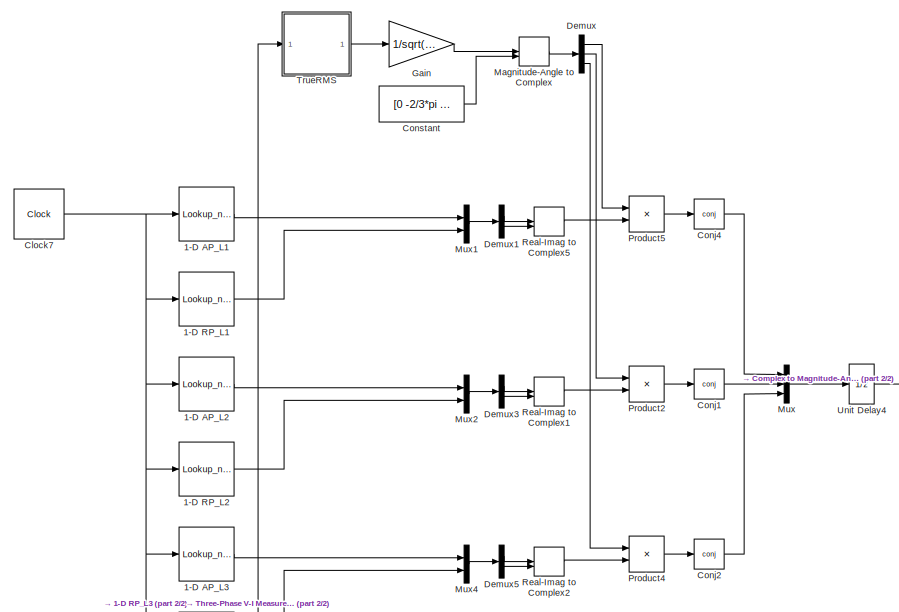
[diagram: SM_Master/Uncontrollable EVSE 4 - part 1/2, full width, top band]
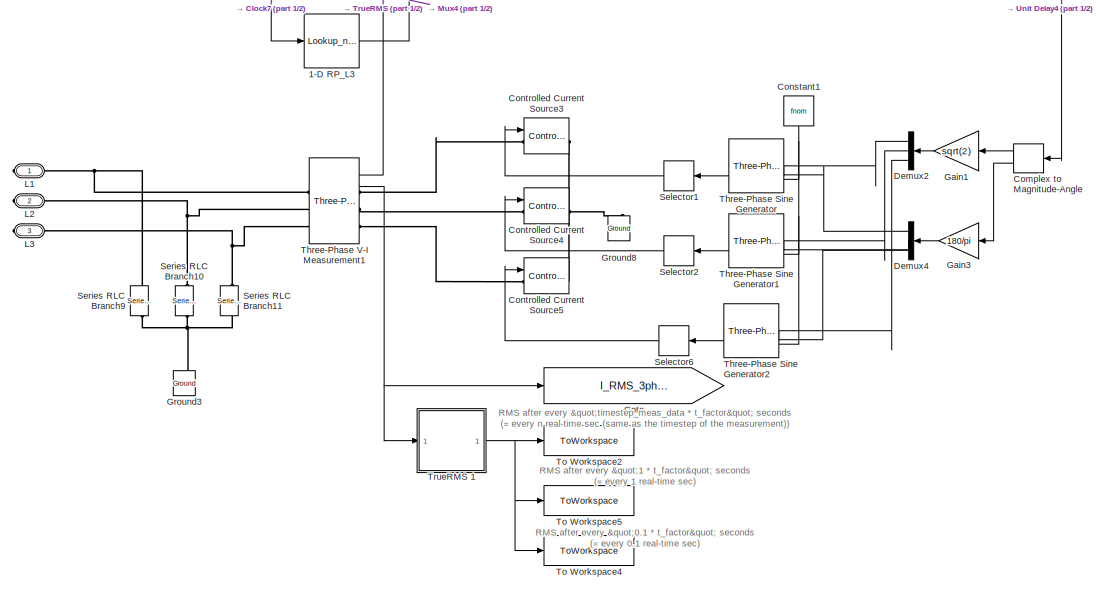
[diagram: SM_Master/Uncontrollable EVSE 4 - part 2/2, full width, bottom band]
BLOCK [SubSystem] SM_Master/Uncontrollable EVSE 4
  NameLocation = top
BLOCK [Lookup_n-D] SM_Master/Uncontrollable EVSE 4/1-D AP_L1
  BreakpointsForDimension1 = Time
  InputPortMap = u0
  InternalRulePriority = Speed
  InterpMethod = Flat
  NumberOfTableDimensions = 1
  RndMeth = Simplest
  Table = data.("117-6_NEVIC4_phaseA_ActivePower")(datastart:datastop) * DTUsignconv
BLOCK [Lookup_n-D] SM_Master/Uncontrollable EVSE 4/1-D AP_L2
  BreakpointsForDimension1 = Time
  InputPortMap = u0
  InternalRulePriority = Speed
  InterpMethod = Flat
  NumberOfTableDimensions = 1
  RndMeth = Simplest
  Table = data.("117-6_NEVIC4_phaseB_ActivePower")(datastart:datastop) * DTUsignconv
BLOCK [Lookup_n-D] SM_Master/Uncontrollable EVSE 4/1-D AP_L3
  BreakpointsForDimension1 = Time
  InputPortMap = u0
  InternalRulePriority = Speed
  InterpMethod = Flat
  NumberOfTableDimensions = 1
  RndMeth = Simplest
  Table = data.("117-6_NEVIC4_phaseC_ActivePower")(datastart:datastop) * DTUsignconv
BLOCK [Lookup_n-D] SM_Master/Uncontrollable EVSE 4/1-D RP_L1
  BreakpointsForDimension1 = Time
  InputPortMap = u0
  InternalRulePriority = Speed
  InterpMethod = Flat
  NumberOfTableDimensions = 1
  RndMeth = Simplest
  Table = data.("117-6_NEVIC4_phaseA_ReactivePower")(datastart:datastop) * DTUsignconv
BLOCK [Lookup_n-D] SM_Master/Uncontrollable EVSE 4/1-D RP_L2
  BreakpointsForDimension1 = Time
  InputPortMap = u0
  InternalRulePriority = Speed
  InterpMethod = Flat
  NumberOfTableDimensions = 1
  RndMeth = Simplest
  Table = data.("117-6_NEVIC4_phaseB_ReactivePower")(datastart:datastop) * DTUsignconv
BLOCK [Lookup_n-D] SM_Master/Uncontrollable EVSE 4/1-D RP_L3
  BreakpointsForDimension1 = Time
  InputPortMap = u0
  InternalRulePriority = Speed
  InterpMethod = Flat
  NumberOfTableDimensions = 1
  RndMeth = Simplest
  Table = data.("117-6_NEVIC4_phaseC_ReactivePower")(datastart:datastop) * DTUsignconv
BLOCK [Clock] SM_Master/Uncontrollable EVSE 4/Clock7
  DisplayTime = on
BLOCK [ComplexToMagnitudeAngle] SM_Master/Uncontrollable EVSE 4/Complex to Magnitude-Angle
  NameLocation = top
BLOCK [Math] SM_Master/Uncontrollable EVSE 4/Conj1
  Operator = conj
  SignedPower = on
BLOCK [Math] SM_Master/Uncontrollable EVSE 4/Conj2
  Operator = conj
  SignedPower = on
BLOCK [Math] SM_Master/Uncontrollable EVSE 4/Conj4
  Operator = conj
  SignedPower = on
BLOCK [Constant] SM_Master/Uncontrollable EVSE 4/Constant
  Value = [0 -2/3*pi -4/3*pi]
BLOCK [Constant] SM_Master/Uncontrollable EVSE 4/Constant1
  NameLocation = left
  Value = fnom
BLOCK [Reference] SM_Master/Uncontrollable EVSE 4/Controlled Current Source3  REF=spsControlledCurrentSourceLib/Controlled Current Source
  LibrarySourceBlock = sps_lib/Sources/Controlled Current Source
  SourceBlock = spsControlledCurrentSourceLib/Controlled Current Source
  SourceType = Controlled Current Source
BLOCK [Reference] SM_Master/Uncontrollable EVSE 4/Controlled Current Source4  REF=spsControlledCurrentSourceLib/Controlled Current Source
  LibrarySourceBlock = sps_lib/Sources/Controlled Current Source
  SourceBlock = spsControlledCurrentSourceLib/Controlled Current Source
  SourceType = Controlled Current Source
BLOCK [Reference] SM_Master/Uncontrollable EVSE 4/Controlled Current Source5  REF=spsControlledCurrentSourceLib/Controlled Current Source
  LibrarySourceBlock = sps_lib/Sources/Controlled Current Source
  SourceBlock = spsControlledCurrentSourceLib/Controlled Current Source
  SourceType = Controlled Current Source
BLOCK [Demux] SM_Master/Uncontrollable EVSE 4/Demux
  Outputs = 3
BLOCK [Demux] SM_Master/Uncontrollable EVSE 4/Demux1
  DisplayOption = none
  Outputs = 2
BLOCK [Demux] SM_Master/Uncontrollable EVSE 4/Demux2
  NameLocation = top
  Outputs = 3
BLOCK [Demux] SM_Master/Uncontrollable EVSE 4/Demux3
  DisplayOption = none
  Outputs = 2
BLOCK [Demux] SM_Master/Uncontrollable EVSE 4/Demux4
  NameLocation = top
  Outputs = 3
BLOCK [Demux] SM_Master/Uncontrollable EVSE 4/Demux5
  DisplayOption = none
  Outputs = 2
BLOCK [Gain] SM_Master/Uncontrollable EVSE 4/Gain
  Gain = 1/sqrt(3)
BLOCK [Gain] SM_Master/Uncontrollable EVSE 4/Gain1
  Gain = sqrt(2)
  NameLocation = top
BLOCK [Gain] SM_Master/Uncontrollable EVSE 4/Gain3
  Gain = 180/pi
  NameLocation = top
BLOCK [Goto] SM_Master/Uncontrollable EVSE 4/Goto
  Commented = on
  GotoTag = I_RMS_3ph_1sec
  TagVisibility = global
BLOCK [Reference] SM_Master/Uncontrollable EVSE 4/Ground3  REF=spsGroundLib/Ground
  LibrarySourceBlock = sps_lib/Utilities/Ground
  NameLocation = right
  SourceBlock = spsGroundLib/Ground
  SourceType = Ground
BLOCK [Reference] SM_Master/Uncontrollable EVSE 4/Ground8  REF=spsGroundLib/Ground
  LibrarySourceBlock = sps_lib/Utilities/Ground
  NameLocation = right
  SourceBlock = spsGroundLib/Ground
  SourceType = Ground
BLOCK [PMIOPort] SM_Master/Uncontrollable EVSE 4/L1
  NameLocation = top
  Side = Right
BLOCK [PMIOPort] SM_Master/Uncontrollable EVSE 4/L2
  NameLocation = top
  Port = 2
  Side = Right
BLOCK [PMIOPort] SM_Master/Uncontrollable EVSE 4/L3
  NameLocation = top
  Port = 3
  Side = Right
BLOCK [MagnitudeAngleToComplex] SM_Master/Uncontrollable EVSE 4/Magnitude-Angle to Complex
BLOCK [Mux] SM_Master/Uncontrollable EVSE 4/Mux
  DisplayOption = bar
  Inputs = 3
BLOCK [Mux] SM_Master/Uncontrollable EVSE 4/Mux1
  DisplayOption = bar
  Inputs = 2
BLOCK [Mux] SM_Master/Uncontrollable EVSE 4/Mux2
  DisplayOption = bar
  Inputs = 2
BLOCK [Mux] SM_Master/Uncontrollable EVSE 4/Mux4
  DisplayOption = bar
  Inputs = 2
BLOCK [Product] SM_Master/Uncontrollable EVSE 4/Product2
  InputSameDT = on
  Inputs = /*
  OutDataTypeStr = Inherit: Same as first input
  SaturateOnIntegerOverflow = on
BLOCK [Product] SM_Master/Uncontrollable EVSE 4/Product4
  InputSameDT = on
  Inputs = /*
  OutDataTypeStr = Inherit: Same as first input
  SaturateOnIntegerOverflow = on
BLOCK [Product] SM_Master/Uncontrollable EVSE 4/Product5
  InputSameDT = on
  Inputs = /*
  OutDataTypeStr = Inherit: Same as first input
  SaturateOnIntegerOverflow = on
BLOCK [RealImagToComplex] SM_Master/Uncontrollable EVSE 4/Real-Imag to Complex1
BLOCK [RealImagToComplex] SM_Master/Uncontrollable EVSE 4/Real-Imag to Complex2
BLOCK [RealImagToComplex] SM_Master/Uncontrollable EVSE 4/Real-Imag to Complex5
BLOCK [Selector] SM_Master/Uncontrollable EVSE 4/Selector1
  IndexOptions = Index vector (dialog)
  Indices = 1
  InputPortWidth = 3
  NameLocation = top
  OutputSizes = 1
BLOCK [Selector] SM_Master/Uncontrollable EVSE 4/Selector2
  IndexOptions = Index vector (dialog)
  Indices = 1
  InputPortWidth = 3
  NameLocation = top
  OutputSizes = 1
BLOCK [Selector] SM_Master/Uncontrollable EVSE 4/Selector6
  IndexOptions = Index vector (dialog)
  Indices = 1
  InputPortWidth = 3
  NameLocation = top
  OutputSizes = 1
BLOCK [Reference] SM_Master/Uncontrollable EVSE 4/Series RLC Branch10  REF=spsSeriesRLCBranchLib/Series RLC Branch
  LibrarySourceBlock = sps_lib/Passives/Series RLC Branch
  NameLocation = left
  SourceBlock = spsSeriesRLCBranchLib/Series RLC Branch
  SourceType = Series RLC Branch
BLOCK [Reference] SM_Master/Uncontrollable EVSE 4/Series RLC Branch11  REF=spsSeriesRLCBranchLib/Series RLC Branch
  LibrarySourceBlock = sps_lib/Passives/Series RLC Branch
  NameLocation = left
  SourceBlock = spsSeriesRLCBranchLib/Series RLC Branch
  SourceType = Series RLC Branch
BLOCK [Reference] SM_Master/Uncontrollable EVSE 4/Series RLC Branch9  REF=spsSeriesRLCBranchLib/Series RLC Branch
  LibrarySourceBlock = sps_lib/Passives/Series RLC Branch
  NameLocation = left
  SourceBlock = spsSeriesRLCBranchLib/Series RLC Branch
  SourceType = Series RLC Branch
BLOCK [Reference] SM_Master/Uncontrollable EVSE 4/Three-Phase Sine Generator  REF=spsThreePhaseSineGeneratorLib/Three-Phase
Sine Generator
  LibrarySourceBlock = sps_lib/Sources/Signal Generator Sources/Three-Phase\nSine Generator
  NameLocation = top
  SourceBlock = spsThreePhaseSineGeneratorLib/Three-Phase\nSine Generator
  SourceType = Three-phase Sine Generator
BLOCK [Reference] SM_Master/Uncontrollable EVSE 4/Three-Phase Sine Generator1  REF=spsThreePhaseSineGeneratorLib/Three-Phase
Sine Generator
  LibrarySourceBlock = sps_lib/Sources/Signal Generator Sources/Three-Phase\nSine Generator
  NameLocation = top
  SourceBlock = spsThreePhaseSineGeneratorLib/Three-Phase\nSine Generator
  SourceType = Three-phase Sine Generator
BLOCK [Reference] SM_Master/Uncontrollable EVSE 4/Three-Phase Sine Generator2  REF=spsThreePhaseSineGeneratorLib/Three-Phase
Sine Generator
  LibrarySourceBlock = sps_lib/Sources/Signal Generator Sources/Three-Phase\nSine Generator
  NameLocation = top
  SourceBlock = spsThreePhaseSineGeneratorLib/Three-Phase\nSine Generator
  SourceType = Three-phase Sine Generator
BLOCK [Reference] SM_Master/Uncontrollable EVSE 4/Three-Phase V-I Measurement1  REF=spsThreePhaseVIMeasurementLib/Three-Phase
V-I Measurement
  LibrarySourceBlock = sps_lib/Sensors and Measurements/Three-Phase\nV-I Measurement
  SourceBlock = spsThreePhaseVIMeasurementLib/Three-Phase\nV-I Measurement
  SourceType = Three-Phase VI Measurement
BLOCK [ToWorkspace] SM_Master/Uncontrollable EVSE 4/To Workspace2
  Commented = on
  FixptAsFi = on
  MaxDataPoints = inf
  SampleTime = timestep_meas_data * t_factor
  VariableName = I_RMS_3ph_nsec
BLOCK [ToWorkspace] SM_Master/Uncontrollable EVSE 4/To Workspace4
  Commented = on
  FixptAsFi = on
  MaxDataPoints = inf
  SampleTime = 0.1 * t_factor
  VariableName = I_RMS_3ph_0_1sec
BLOCK [ToWorkspace] SM_Master/Uncontrollable EVSE 4/To Workspace5
  Commented = on
  FixptAsFi = on
  MaxDataPoints = inf
  SampleTime = 1 * t_factor
  VariableName = I_RMS_3ph_1sec
BLOCK [SubSystem] SM_Master/Uncontrollable EVSE 4/TrueRMS 
  AncestorBlock = powerlib_meascontrol/Measurements/RMS/TrueRMS
  ShowPortLabels = none
BLOCK [Inport] SM_Master/Uncontrollable EVSE 4/TrueRMS /In
BLOCK [Reference] SM_Master/Uncontrollable EVSE 4/TrueRMS /Mean value  REF=spsMeanLib/Mean
  LibrarySourceBlock = sps_lib/Sensors and Measurements/Mean
  SourceBlock = spsMeanLib/Mean
  SourceType = Mean
BLOCK [Product] SM_Master/Uncontrollable EVSE 4/TrueRMS /Product
  InputSameDT = on
  OutDataTypeStr = Inherit: Same as first input
  SaturateOnIntegerOverflow = on
BLOCK [Outport] SM_Master/Uncontrollable EVSE 4/TrueRMS /RMS
  VectorParamsAs1DForOutWhenUnconnected = off
BLOCK [Saturate] SM_Master/Uncontrollable EVSE 4/TrueRMS /Saturation to avoid negative sqrt
  LowerLimit = 0
  UpperLimit = Inf
BLOCK [Sqrt] SM_Master/Uncontrollable EVSE 4/TrueRMS /Sqrt
  AlgorithmType = Newton-Raphson
BLOCK [SubSystem] SM_Master/Uncontrollable EVSE 4/TrueRMS 1
  AncestorBlock = powerlib_meascontrol/Measurements/RMS/TrueRMS
  ShowPortLabels = none
BLOCK [Inport] SM_Master/Uncontrollable EVSE 4/TrueRMS 1/In
BLOCK [Reference] SM_Master/Uncontrollable EVSE 4/TrueRMS 1/Mean value  REF=spsMeanLib/Mean
  LibrarySourceBlock = sps_lib/Sensors and Measurements/Mean
  SourceBlock = spsMeanLib/Mean
  SourceType = Mean
BLOCK [Product] SM_Master/Uncontrollable EVSE 4/TrueRMS 1/Product
  InputSameDT = on
  OutDataTypeStr = Inherit: Same as first input
  SaturateOnIntegerOverflow = on
BLOCK [Outport] SM_Master/Uncontrollable EVSE 4/TrueRMS 1/RMS
  VectorParamsAs1DForOutWhenUnconnected = off
BLOCK [Saturate] SM_Master/Uncontrollable EVSE 4/TrueRMS 1/Saturation to avoid negative sqrt
  LowerLimit = 0
  UpperLimit = Inf
BLOCK [Sqrt] SM_Master/Uncontrollable EVSE 4/TrueRMS 1/Sqrt
  AlgorithmType = Newton-Raphson
BLOCK [UnitDelay] SM_Master/Uncontrollable EVSE 4/Unit Delay4
  HasFrameUpgradeWarning = on
  InitialCondition = 0*exp(-j*0*pi/180)
  NameLocation = top
  SampleTime = Ts
BLOCK [SubSystem] SM_Master/Uncontrollable EVSE 5
  NameLocation = top
BLOCK [Lookup_n-D] SM_Master/Uncontrollable EVSE 5/1-D AP_L1
  BreakpointsForDimension1 = Time
  InputPortMap = u0
  InternalRulePriority = Speed
  InterpMethod = Flat
  NumberOfTableDimensions = 1
  RndMeth = Simplest
  Table = data.("117-6_NEVIC5_phaseA_ActivePower")(datastart:datastop) * DTUsignconv
BLOCK [Lookup_n-D] SM_Master/Uncontrollable EVSE 5/1-D AP_L2
  BreakpointsForDimension1 = Time
  InputPortMap = u0
  InternalRulePriority = Speed
  InterpMethod = Flat
  NumberOfTableDimensions = 1
  RndMeth = Simplest
  Table = data.("117-6_NEVIC5_phaseB_ActivePower")(datastart:datastop) * DTUsignconv
BLOCK [Lookup_n-D] SM_Master/Uncontrollable EVSE 5/1-D AP_L3
  BreakpointsForDimension1 = Time
  InputPortMap = u0
  InternalRulePriority = Speed
  InterpMethod = Flat
  NumberOfTableDimensions = 1
  RndMeth = Simplest
  Table = data.("117-6_NEVIC5_phaseC_ActivePower")(datastart:datastop) * DTUsignconv
BLOCK [Lookup_n-D] SM_Master/Uncontrollable EVSE 5/1-D RP_L1
  BreakpointsForDimension1 = Time
  InputPortMap = u0
  InternalRulePriority = Speed
  InterpMethod = Flat
  NumberOfTableDimensions = 1
  RndMeth = Simplest
  Table = data.("117-6_NEVIC5_phaseA_ReactivePower")(datastart:datastop) * DTUsignconv
BLOCK [Lookup_n-D] SM_Master/Uncontrollable EVSE 5/1-D RP_L2
  BreakpointsForDimension1 = Time
  InputPortMap = u0
  InternalRulePriority = Speed
  InterpMethod = Flat
  NumberOfTableDimensions = 1
  RndMeth = Simplest
  Table = data.("117-6_NEVIC5_phaseB_ReactivePower")(datastart:datastop) * DTUsignconv
BLOCK [Lookup_n-D] SM_Master/Uncontrollable EVSE 5/1-D RP_L3
  BreakpointsForDimension1 = Time
  InputPortMap = u0
  InternalRulePriority = Speed
  InterpMethod = Flat
  NumberOfTableDimensions = 1
  RndMeth = Simplest
  Table = data.("117-6_NEVIC5_phaseC_ReactivePower")(datastart:datastop) * DTUsignconv
BLOCK [Clock] SM_Master/Uncontrollable EVSE 5/Clock7
  DisplayTime = on
BLOCK [ComplexToMagnitudeAngle] SM_Master/Uncontrollable EVSE 5/Complex to Magnitude-Angle
  NameLocation = top
BLOCK [Math] SM_Master/Uncontrollable EVSE 5/Conj1
  Operator = conj
  SignedPower = on
BLOCK [Math] SM_Master/Uncontrollable EVSE 5/Conj2
  Operator = conj
  SignedPower = on
BLOCK [Math] SM_Master/Uncontrollable EVSE 5/Conj4
  Operator = conj
  SignedPower = on
BLOCK [Constant] SM_Master/Uncontrollable EVSE 5/Constant
  Value = [0 -2/3*pi -4/3*pi]
BLOCK [Constant] SM_Master/Uncontrollable EVSE 5/Constant1
  NameLocation = left
  Value = fnom
BLOCK [Reference] SM_Master/Uncontrollable EVSE 5/Controlled Current Source3  REF=spsControlledCurrentSourceLib/Controlled Current Source
  LibrarySourceBlock = sps_lib/Sources/Controlled Current Source
  SourceBlock = spsControlledCurrentSourceLib/Controlled Current Source
  SourceType = Controlled Current Source
BLOCK [Reference] SM_Master/Uncontrollable EVSE 5/Controlled Current Source4  REF=spsControlledCurrentSourceLib/Controlled Current Source
  LibrarySourceBlock = sps_lib/Sources/Controlled Current Source
  SourceBlock = spsControlledCurrentSourceLib/Controlled Current Source
  SourceType = Controlled Current Source
BLOCK [Reference] SM_Master/Uncontrollable EVSE 5/Controlled Current Source5  REF=spsControlledCurrentSourceLib/Controlled Current Source
  LibrarySourceBlock = sps_lib/Sources/Controlled Current Source
  SourceBlock = spsControlledCurrentSourceLib/Controlled Current Source
  SourceType = Controlled Current Source
BLOCK [Demux] SM_Master/Uncontrollable EVSE 5/Demux
  Outputs = 3
BLOCK [Demux] SM_Master/Uncontrollable EVSE 5/Demux1
  DisplayOption = none
  Outputs = 2
BLOCK [Demux] SM_Master/Uncontrollable EVSE 5/Demux2
  NameLocation = top
  Outputs = 3
BLOCK [Demux] SM_Master/Uncontrollable EVSE 5/Demux3
  DisplayOption = none
  Outputs = 2
BLOCK [Demux] SM_Master/Uncontrollable EVSE 5/Demux4
  NameLocation = top
  Outputs = 3
BLOCK [Demux] SM_Master/Uncontrollable EVSE 5/Demux5
  DisplayOption = none
  Outputs = 2
BLOCK [Gain] SM_Master/Uncontrollable EVSE 5/Gain
  Gain = 1/sqrt(3)
BLOCK [Gain] SM_Master/Uncontrollable EVSE 5/Gain1
  Gain = sqrt(2)
  NameLocation = top
BLOCK [Gain] SM_Master/Uncontrollable EVSE 5/Gain3
  Gain = 180/pi
  NameLocation = top
BLOCK [Goto] SM_Master/Uncontrollable EVSE 5/Goto
  Commented = on
  GotoTag = I_RMS_3ph_1sec
  TagVisibility = global
BLOCK [Reference] SM_Master/Uncontrollable EVSE 5/Ground3  REF=spsGroundLib/Ground
  LibrarySourceBlock = sps_lib/Utilities/Ground
  NameLocation = right
  SourceBlock = spsGroundLib/Ground
  SourceType = Ground
BLOCK [Reference] SM_Master/Uncontrollable EVSE 5/Ground8  REF=spsGroundLib/Ground
  LibrarySourceBlock = sps_lib/Utilities/Ground
  NameLocation = right
  SourceBlock = spsGroundLib/Ground
  SourceType = Ground
BLOCK [PMIOPort] SM_Master/Uncontrollable EVSE 5/L1
  NameLocation = top
  Side = Right
BLOCK [PMIOPort] SM_Master/Uncontrollable EVSE 5/L2
  NameLocation = top
  Port = 2
  Side = Right
BLOCK [PMIOPort] SM_Master/Uncontrollable EVSE 5/L3
  NameLocation = top
  Port = 3
  Side = Right
BLOCK [MagnitudeAngleToComplex] SM_Master/Uncontrollable EVSE 5/Magnitude-Angle to Complex
BLOCK [Mux] SM_Master/Uncontrollable EVSE 5/Mux
  DisplayOption = bar
  Inputs = 3
BLOCK [Mux] SM_Master/Uncontrollable EVSE 5/Mux1
  DisplayOption = bar
  Inputs = 2
BLOCK [Mux] SM_Master/Uncontrollable EVSE 5/Mux2
  DisplayOption = bar
  Inputs = 2
BLOCK [Mux] SM_Master/Uncontrollable EVSE 5/Mux4
  DisplayOption = bar
  Inputs = 2
BLOCK [Product] SM_Master/Uncontrollable EVSE 5/Product2
  InputSameDT = on
  Inputs = /*
  OutDataTypeStr = Inherit: Same as first input
  SaturateOnIntegerOverflow = on
BLOCK [Product] SM_Master/Uncontrollable EVSE 5/Product4
  InputSameDT = on
  Inputs = /*
  OutDataTypeStr = Inherit: Same as first input
  SaturateOnIntegerOverflow = on
BLOCK [Product] SM_Master/Uncontrollable EVSE 5/Product5
  InputSameDT = on
  Inputs = /*
  OutDataTypeStr = Inherit: Same as first input
  SaturateOnIntegerOverflow = on
BLOCK [RealImagToComplex] SM_Master/Uncontrollable EVSE 5/Real-Imag to Complex1
BLOCK [RealImagToComplex] SM_Master/Uncontrollable EVSE 5/Real-Imag to Complex2
BLOCK [RealImagToComplex] SM_Master/Uncontrollable EVSE 5/Real-Imag to Complex5
BLOCK [Selector] SM_Master/Uncontrollable EVSE 5/Selector1
  IndexOptions = Index vector (dialog)
  Indices = 1
  InputPortWidth = 3
  NameLocation = top
  OutputSizes = 1
BLOCK [Selector] SM_Master/Uncontrollable EVSE 5/Selector2
  IndexOptions = Index vector (dialog)
  Indices = 1
  InputPortWidth = 3
  NameLocation = top
  OutputSizes = 1
BLOCK [Selector] SM_Master/Uncontrollable EVSE 5/Selector6
  IndexOptions = Index vector (dialog)
  Indices = 1
  InputPortWidth = 3
  NameLocation = top
  OutputSizes = 1
BLOCK [Reference] SM_Master/Uncontrollable EVSE 5/Series RLC Branch10  REF=spsSeriesRLCBranchLib/Series RLC Branch
  LibrarySourceBlock = sps_lib/Passives/Series RLC Branch
  NameLocation = left
  SourceBlock = spsSeriesRLCBranchLib/Series RLC Branch
  SourceType = Series RLC Branch
BLOCK [Reference] SM_Master/Uncontrollable EVSE 5/Series RLC Branch11  REF=spsSeriesRLCBranchLib/Series RLC Branch
  LibrarySourceBlock = sps_lib/Passives/Series RLC Branch
  NameLocation = left
  SourceBlock = spsSeriesRLCBranchLib/Series RLC Branch
  SourceType = Series RLC Branch
BLOCK [Reference] SM_Master/Uncontrollable EVSE 5/Series RLC Branch9  REF=spsSeriesRLCBranchLib/Series RLC Branch
  LibrarySourceBlock = sps_lib/Passives/Series RLC Branch
  NameLocation = left
  SourceBlock = spsSeriesRLCBranchLib/Series RLC Branch
  SourceType = Series RLC Branch
BLOCK [Reference] SM_Master/Uncontrollable EVSE 5/Three-Phase Sine Generator  REF=spsThreePhaseSineGeneratorLib/Three-Phase
Sine Generator
  LibrarySourceBlock = sps_lib/Sources/Signal Generator Sources/Three-Phase\nSine Generator
  NameLocation = top
  SourceBlock = spsThreePhaseSineGeneratorLib/Three-Phase\nSine Generator
  SourceType = Three-phase Sine Generator
BLOCK [Reference] SM_Master/Uncontrollable EVSE 5/Three-Phase Sine Generator1  REF=spsThreePhaseSineGeneratorLib/Three-Phase
Sine Generator
  LibrarySourceBlock = sps_lib/Sources/Signal Generator Sources/Three-Phase\nSine Generator
  NameLocation = top
  SourceBlock = spsThreePhaseSineGeneratorLib/Three-Phase\nSine Generator
  SourceType = Three-phase Sine Generator
BLOCK [Reference] SM_Master/Uncontrollable EVSE 5/Three-Phase Sine Generator2  REF=spsThreePhaseSineGeneratorLib/Three-Phase
Sine Generator
  LibrarySourceBlock = sps_lib/Sources/Signal Generator Sources/Three-Phase\nSine Generator
  NameLocation = top
  SourceBlock = spsThreePhaseSineGeneratorLib/Three-Phase\nSine Generator
  SourceType = Three-phase Sine Generator
BLOCK [Reference] SM_Master/Uncontrollable EVSE 5/Three-Phase V-I Measurement1  REF=spsThreePhaseVIMeasurementLib/Three-Phase
V-I Measurement
  LibrarySourceBlock = sps_lib/Sensors and Measurements/Three-Phase\nV-I Measurement
  SourceBlock = spsThreePhaseVIMeasurementLib/Three-Phase\nV-I Measurement
  SourceType = Three-Phase VI Measurement
BLOCK [ToWorkspace] SM_Master/Uncontrollable EVSE 5/To Workspace2
  Commented = on
  FixptAsFi = on
  MaxDataPoints = inf
  SampleTime = timestep_meas_data * t_factor
  VariableName = I_RMS_3ph_nsec
BLOCK [ToWorkspace] SM_Master/Uncontrollable EVSE 5/To Workspace4
  Commented = on
  FixptAsFi = on
  MaxDataPoints = inf
  SampleTime = 0.1 * t_factor
  VariableName = I_RMS_3ph_0_1sec
BLOCK [ToWorkspace] SM_Master/Uncontrollable EVSE 5/To Workspace5
  Commented = on
  FixptAsFi = on
  MaxDataPoints = inf
  SampleTime = 1 * t_factor
  VariableName = I_RMS_3ph_1sec
BLOCK [SubSystem] SM_Master/Uncontrollable EVSE 5/TrueRMS 
  AncestorBlock = powerlib_meascontrol/Measurements/RMS/TrueRMS
  ShowPortLabels = none
BLOCK [Inport] SM_Master/Uncontrollable EVSE 5/TrueRMS /In
BLOCK [Reference] SM_Master/Uncontrollable EVSE 5/TrueRMS /Mean value  REF=spsMeanLib/Mean
  LibrarySourceBlock = sps_lib/Sensors and Measurements/Mean
  SourceBlock = spsMeanLib/Mean
  SourceType = Mean
BLOCK [Product] SM_Master/Uncontrollable EVSE 5/TrueRMS /Product
  InputSameDT = on
  OutDataTypeStr = Inherit: Same as first input
  SaturateOnIntegerOverflow = on
BLOCK [Outport] SM_Master/Uncontrollable EVSE 5/TrueRMS /RMS
  VectorParamsAs1DForOutWhenUnconnected = off
BLOCK [Saturate] SM_Master/Uncontrollable EVSE 5/TrueRMS /Saturation to avoid negative sqrt
  LowerLimit = 0
  UpperLimit = Inf
BLOCK [Sqrt] SM_Master/Uncontrollable EVSE 5/TrueRMS /Sqrt
  AlgorithmType = Newton-Raphson
BLOCK [SubSystem] SM_Master/Uncontrollable EVSE 5/TrueRMS 1
  AncestorBlock = powerlib_meascontrol/Measurements/RMS/TrueRMS
  ShowPortLabels = none
BLOCK [Inport] SM_Master/Uncontrollable EVSE 5/TrueRMS 1/In
BLOCK [Reference] SM_Master/Uncontrollable EVSE 5/TrueRMS 1/Mean value  REF=spsMeanLib/Mean
  LibrarySourceBlock = sps_lib/Sensors and Measurements/Mean
  SourceBlock = spsMeanLib/Mean
  SourceType = Mean
BLOCK [Product] SM_Master/Uncontrollable EVSE 5/TrueRMS 1/Product
  InputSameDT = on
  OutDataTypeStr = Inherit: Same as first input
  SaturateOnIntegerOverflow = on
BLOCK [Outport] SM_Master/Uncontrollable EVSE 5/TrueRMS 1/RMS
  VectorParamsAs1DForOutWhenUnconnected = off
BLOCK [Saturate] SM_Master/Uncontrollable EVSE 5/TrueRMS 1/Saturation to avoid negative sqrt
  LowerLimit = 0
  UpperLimit = Inf
BLOCK [Sqrt] SM_Master/Uncontrollable EVSE 5/TrueRMS 1/Sqrt
  AlgorithmType = Newton-Raphson
BLOCK [UnitDelay] SM_Master/Uncontrollable EVSE 5/Unit Delay4
  HasFrameUpgradeWarning = on
  InitialCondition = 0*exp(-j*0*pi/180)
  NameLocation = top
  SampleTime = Ts
BLOCK [SubSystem] SM_Master/Uncontrollable EVSE 6
  NameLocation = top
BLOCK [Lookup_n-D] SM_Master/Uncontrollable EVSE 6/1-D AP_L1
  BreakpointsForDimension1 = Time
  InputPortMap = u0
  InternalRulePriority = Speed
  InterpMethod = Flat
  NumberOfTableDimensions = 1
  RndMeth = Simplest
  Table = data.("117-6_NEVIC6_phaseA_ActivePower")(datastart:datastop) * DTUsignconv
BLOCK [Lookup_n-D] SM_Master/Uncontrollable EVSE 6/1-D AP_L2
  BreakpointsForDimension1 = Time
  InputPortMap = u0
  InternalRulePriority = Speed
  InterpMethod = Flat
  NumberOfTableDimensions = 1
  RndMeth = Simplest
  Table = data.("117-6_NEVIC6_phaseB_ActivePower")(datastart:datastop) * DTUsignconv
BLOCK [Lookup_n-D] SM_Master/Uncontrollable EVSE 6/1-D AP_L3
  BreakpointsForDimension1 = Time
  InputPortMap = u0
  InternalRulePriority = Speed
  InterpMethod = Flat
  NumberOfTableDimensions = 1
  RndMeth = Simplest
  Table = data.("117-6_NEVIC6_phaseC_ActivePower")(datastart:datastop) * DTUsignconv
BLOCK [Lookup_n-D] SM_Master/Uncontrollable EVSE 6/1-D RP_L1
  BreakpointsForDimension1 = Time
  InputPortMap = u0
  InternalRulePriority = Speed
  InterpMethod = Flat
  NumberOfTableDimensions = 1
  RndMeth = Simplest
  Table = data.("117-6_NEVIC6_phaseA_ReactivePower")(datastart:datastop) * DTUsignconv
BLOCK [Lookup_n-D] SM_Master/Uncontrollable EVSE 6/1-D RP_L2
  BreakpointsForDimension1 = Time
  InputPortMap = u0
  InternalRulePriority = Speed
  InterpMethod = Flat
  NumberOfTableDimensions = 1
  RndMeth = Simplest
  Table = data.("117-6_NEVIC6_phaseB_ReactivePower")(datastart:datastop) * DTUsignconv
BLOCK [Lookup_n-D] SM_Master/Uncontrollable EVSE 6/1-D RP_L3
  BreakpointsForDimension1 = Time
  InputPortMap = u0
  InternalRulePriority = Speed
  InterpMethod = Flat
  NumberOfTableDimensions = 1
  RndMeth = Simplest
  Table = data.("117-6_NEVIC6_phaseC_ReactivePower")(datastart:datastop) * DTUsignconv
BLOCK [Clock] SM_Master/Uncontrollable EVSE 6/Clock7
  DisplayTime = on
BLOCK [ComplexToMagnitudeAngle] SM_Master/Uncontrollable EVSE 6/Complex to Magnitude-Angle
  NameLocation = top
BLOCK [Math] SM_Master/Uncontrollable EVSE 6/Conj1
  Operator = conj
  SignedPower = on
BLOCK [Math] SM_Master/Uncontrollable EVSE 6/Conj2
  Operator = conj
  SignedPower = on
BLOCK [Math] SM_Master/Uncontrollable EVSE 6/Conj4
  Operator = conj
  SignedPower = on
BLOCK [Constant] SM_Master/Uncontrollable EVSE 6/Constant
  Value = [0 -2/3*pi -4/3*pi]
BLOCK [Constant] SM_Master/Uncontrollable EVSE 6/Constant1
  NameLocation = left
  Value = fnom
BLOCK [Reference] SM_Master/Uncontrollable EVSE 6/Controlled Current Source3  REF=spsControlledCurrentSourceLib/Controlled Current Source
  LibrarySourceBlock = sps_lib/Sources/Controlled Current Source
  SourceBlock = spsControlledCurrentSourceLib/Controlled Current Source
  SourceType = Controlled Current Source
BLOCK [Reference] SM_Master/Uncontrollable EVSE 6/Controlled Current Source4  REF=spsControlledCurrentSourceLib/Controlled Current Source
  LibrarySourceBlock = sps_lib/Sources/Controlled Current Source
  SourceBlock = spsControlledCurrentSourceLib/Controlled Current Source
  SourceType = Controlled Current Source
BLOCK [Reference] SM_Master/Uncontrollable EVSE 6/Controlled Current Source5  REF=spsControlledCurrentSourceLib/Controlled Current Source
  LibrarySourceBlock = sps_lib/Sources/Controlled Current Source
  SourceBlock = spsControlledCurrentSourceLib/Controlled Current Source
  SourceType = Controlled Current Source
BLOCK [Demux] SM_Master/Uncontrollable EVSE 6/Demux
  Outputs = 3
BLOCK [Demux] SM_Master/Uncontrollable EVSE 6/Demux1
  DisplayOption = none
  Outputs = 2
BLOCK [Demux] SM_Master/Uncontrollable EVSE 6/Demux2
  NameLocation = top
  Outputs = 3
BLOCK [Demux] SM_Master/Uncontrollable EVSE 6/Demux3
  DisplayOption = none
  Outputs = 2
BLOCK [Demux] SM_Master/Uncontrollable EVSE 6/Demux4
  NameLocation = top
  Outputs = 3
BLOCK [Demux] SM_Master/Uncontrollable EVSE 6/Demux5
  DisplayOption = none
  Outputs = 2
BLOCK [Gain] SM_Master/Uncontrollable EVSE 6/Gain
  Gain = 1/sqrt(3)
BLOCK [Gain] SM_Master/Uncontrollable EVSE 6/Gain1
  Gain = sqrt(2)
  NameLocation = top
BLOCK [Gain] SM_Master/Uncontrollable EVSE 6/Gain3
  Gain = 180/pi
  NameLocation = top
BLOCK [Goto] SM_Master/Uncontrollable EVSE 6/Goto
  Commented = on
  GotoTag = I_RMS_3ph_1sec
  TagVisibility = global
BLOCK [Reference] SM_Master/Uncontrollable EVSE 6/Ground3  REF=spsGroundLib/Ground
  LibrarySourceBlock = sps_lib/Utilities/Ground
  NameLocation = right
  SourceBlock = spsGroundLib/Ground
  SourceType = Ground
BLOCK [Reference] SM_Master/Uncontrollable EVSE 6/Ground8  REF=spsGroundLib/Ground
  LibrarySourceBlock = sps_lib/Utilities/Ground
  NameLocation = right
  SourceBlock = spsGroundLib/Ground
  SourceType = Ground
BLOCK [PMIOPort] SM_Master/Uncontrollable EVSE 6/L1
  NameLocation = top
  Side = Right
BLOCK [PMIOPort] SM_Master/Uncontrollable EVSE 6/L2
  NameLocation = top
  Port = 2
  Side = Right
BLOCK [PMIOPort] SM_Master/Uncontrollable EVSE 6/L3
  NameLocation = top
  Port = 3
  Side = Right
BLOCK [MagnitudeAngleToComplex] SM_Master/Uncontrollable EVSE 6/Magnitude-Angle to Complex
BLOCK [Mux] SM_Master/Uncontrollable EVSE 6/Mux
  DisplayOption = bar
  Inputs = 3
BLOCK [Mux] SM_Master/Uncontrollable EVSE 6/Mux1
  DisplayOption = bar
  Inputs = 2
BLOCK [Mux] SM_Master/Uncontrollable EVSE 6/Mux2
  DisplayOption = bar
  Inputs = 2
BLOCK [Mux] SM_Master/Uncontrollable EVSE 6/Mux4
  DisplayOption = bar
  Inputs = 2
BLOCK [Product] SM_Master/Uncontrollable EVSE 6/Product2
  InputSameDT = on
  Inputs = /*
  OutDataTypeStr = Inherit: Same as first input
  SaturateOnIntegerOverflow = on
BLOCK [Product] SM_Master/Uncontrollable EVSE 6/Product4
  InputSameDT = on
  Inputs = /*
  OutDataTypeStr = Inherit: Same as first input
  SaturateOnIntegerOverflow = on
BLOCK [Product] SM_Master/Uncontrollable EVSE 6/Product5
  InputSameDT = on
  Inputs = /*
  OutDataTypeStr = Inherit: Same as first input
  SaturateOnIntegerOverflow = on
BLOCK [RealImagToComplex] SM_Master/Uncontrollable EVSE 6/Real-Imag to Complex1
BLOCK [RealImagToComplex] SM_Master/Uncontrollable EVSE 6/Real-Imag to Complex2
BLOCK [RealImagToComplex] SM_Master/Uncontrollable EVSE 6/Real-Imag to Complex5
BLOCK [Selector] SM_Master/Uncontrollable EVSE 6/Selector1
  IndexOptions = Index vector (dialog)
  Indices = 1
  InputPortWidth = 3
  NameLocation = top
  OutputSizes = 1
BLOCK [Selector] SM_Master/Uncontrollable EVSE 6/Selector2
  IndexOptions = Index vector (dialog)
  Indices = 1
  InputPortWidth = 3
  NameLocation = top
  OutputSizes = 1
BLOCK [Selector] SM_Master/Uncontrollable EVSE 6/Selector6
  IndexOptions = Index vector (dialog)
  Indices = 1
  InputPortWidth = 3
  NameLocation = top
  OutputSizes = 1
BLOCK [Reference] SM_Master/Uncontrollable EVSE 6/Series RLC Branch10  REF=spsSeriesRLCBranchLib/Series RLC Branch
  LibrarySourceBlock = sps_lib/Passives/Series RLC Branch
  NameLocation = left
  SourceBlock = spsSeriesRLCBranchLib/Series RLC Branch
  SourceType = Series RLC Branch
BLOCK [Reference] SM_Master/Uncontrollable EVSE 6/Series RLC Branch11  REF=spsSeriesRLCBranchLib/Series RLC Branch
  LibrarySourceBlock = sps_lib/Passives/Series RLC Branch
  NameLocation = left
  SourceBlock = spsSeriesRLCBranchLib/Series RLC Branch
  SourceType = Series RLC Branch
BLOCK [Reference] SM_Master/Uncontrollable EVSE 6/Series RLC Branch9  REF=spsSeriesRLCBranchLib/Series RLC Branch
  LibrarySourceBlock = sps_lib/Passives/Series RLC Branch
  NameLocation = left
  SourceBlock = spsSeriesRLCBranchLib/Series RLC Branch
  SourceType = Series RLC Branch
BLOCK [Reference] SM_Master/Uncontrollable EVSE 6/Three-Phase Sine Generator  REF=spsThreePhaseSineGeneratorLib/Three-Phase
Sine Generator
  LibrarySourceBlock = sps_lib/Sources/Signal Generator Sources/Three-Phase\nSine Generator
  NameLocation = top
  SourceBlock = spsThreePhaseSineGeneratorLib/Three-Phase\nSine Generator
  SourceType = Three-phase Sine Generator
BLOCK [Reference] SM_Master/Uncontrollable EVSE 6/Three-Phase Sine Generator1  REF=spsThreePhaseSineGeneratorLib/Three-Phase
Sine Generator
  LibrarySourceBlock = sps_lib/Sources/Signal Generator Sources/Three-Phase\nSine Generator
  NameLocation = top
  SourceBlock = spsThreePhaseSineGeneratorLib/Three-Phase\nSine Generator
  SourceType = Three-phase Sine Generator
BLOCK [Reference] SM_Master/Uncontrollable EVSE 6/Three-Phase Sine Generator2  REF=spsThreePhaseSineGeneratorLib/Three-Phase
Sine Generator
  LibrarySourceBlock = sps_lib/Sources/Signal Generator Sources/Three-Phase\nSine Generator
  NameLocation = top
  SourceBlock = spsThreePhaseSineGeneratorLib/Three-Phase\nSine Generator
  SourceType = Three-phase Sine Generator
BLOCK [Reference] SM_Master/Uncontrollable EVSE 6/Three-Phase V-I Measurement1  REF=spsThreePhaseVIMeasurementLib/Three-Phase
V-I Measurement
  LibrarySourceBlock = sps_lib/Sensors and Measurements/Three-Phase\nV-I Measurement
  SourceBlock = spsThreePhaseVIMeasurementLib/Three-Phase\nV-I Measurement
  SourceType = Three-Phase VI Measurement
BLOCK [ToWorkspace] SM_Master/Uncontrollable EVSE 6/To Workspace2
  Commented = on
  FixptAsFi = on
  MaxDataPoints = inf
  SampleTime = timestep_meas_data * t_factor
  VariableName = I_RMS_3ph_nsec
BLOCK [ToWorkspace] SM_Master/Uncontrollable EVSE 6/To Workspace4
  Commented = on
  FixptAsFi = on
  MaxDataPoints = inf
  SampleTime = 0.1 * t_factor
  VariableName = I_RMS_3ph_0_1sec
BLOCK [ToWorkspace] SM_Master/Uncontrollable EVSE 6/To Workspace5
  Commented = on
  FixptAsFi = on
  MaxDataPoints = inf
  SampleTime = 1 * t_factor
  VariableName = I_RMS_3ph_1sec
BLOCK [SubSystem] SM_Master/Uncontrollable EVSE 6/TrueRMS 
  AncestorBlock = powerlib_meascontrol/Measurements/RMS/TrueRMS
  ShowPortLabels = none
BLOCK [Inport] SM_Master/Uncontrollable EVSE 6/TrueRMS /In
BLOCK [Reference] SM_Master/Uncontrollable EVSE 6/TrueRMS /Mean value  REF=spsMeanLib/Mean
  LibrarySourceBlock = sps_lib/Sensors and Measurements/Mean
  SourceBlock = spsMeanLib/Mean
  SourceType = Mean
BLOCK [Product] SM_Master/Uncontrollable EVSE 6/TrueRMS /Product
  InputSameDT = on
  OutDataTypeStr = Inherit: Same as first input
  SaturateOnIntegerOverflow = on
BLOCK [Outport] SM_Master/Uncontrollable EVSE 6/TrueRMS /RMS
  VectorParamsAs1DForOutWhenUnconnected = off
BLOCK [Saturate] SM_Master/Uncontrollable EVSE 6/TrueRMS /Saturation to avoid negative sqrt
  LowerLimit = 0
  UpperLimit = Inf
BLOCK [Sqrt] SM_Master/Uncontrollable EVSE 6/TrueRMS /Sqrt
  AlgorithmType = Newton-Raphson
BLOCK [SubSystem] SM_Master/Uncontrollable EVSE 6/TrueRMS 1
  AncestorBlock = powerlib_meascontrol/Measurements/RMS/TrueRMS
  ShowPortLabels = none
BLOCK [Inport] SM_Master/Uncontrollable EVSE 6/TrueRMS 1/In
BLOCK [Reference] SM_Master/Uncontrollable EVSE 6/TrueRMS 1/Mean value  REF=spsMeanLib/Mean
  LibrarySourceBlock = sps_lib/Sensors and Measurements/Mean
  SourceBlock = spsMeanLib/Mean
  SourceType = Mean
BLOCK [Product] SM_Master/Uncontrollable EVSE 6/TrueRMS 1/Product
  InputSameDT = on
  OutDataTypeStr = Inherit: Same as first input
  SaturateOnIntegerOverflow = on
BLOCK [Outport] SM_Master/Uncontrollable EVSE 6/TrueRMS 1/RMS
  VectorParamsAs1DForOutWhenUnconnected = off
BLOCK [Saturate] SM_Master/Uncontrollable EVSE 6/TrueRMS 1/Saturation to avoid negative sqrt
  LowerLimit = 0
  UpperLimit = Inf
BLOCK [Sqrt] SM_Master/Uncontrollable EVSE 6/TrueRMS 1/Sqrt
  AlgorithmType = Newton-Raphson
BLOCK [UnitDelay] SM_Master/Uncontrollable EVSE 6/Unit Delay4
  HasFrameUpgradeWarning = on
  InitialCondition = 0*exp(-j*0*pi/180)
  NameLocation = top
  SampleTime = Ts
BLOCK [SubSystem] SM_Master/Uncontrollable EVSE 7
  NameLocation = top
BLOCK [Lookup_n-D] SM_Master/Uncontrollable EVSE 7/1-D AP_L1
  BreakpointsForDimension1 = Time
  InputPortMap = u0
  InternalRulePriority = Speed
  InterpMethod = Flat
  NumberOfTableDimensions = 1
  RndMeth = Simplest
  Table = data.("117-6_NEVIC7_phaseA_ActivePower")(datastart:datastop) * DTUsignconv
BLOCK [Lookup_n-D] SM_Master/Uncontrollable EVSE 7/1-D AP_L2
  BreakpointsForDimension1 = Time
  InputPortMap = u0
  InternalRulePriority = Speed
  InterpMethod = Flat
  NumberOfTableDimensions = 1
  RndMeth = Simplest
  Table = data.("117-6_NEVIC7_phaseB_ActivePower")(datastart:datastop) * DTUsignconv
BLOCK [Lookup_n-D] SM_Master/Uncontrollable EVSE 7/1-D AP_L3
  BreakpointsForDimension1 = Time
  InputPortMap = u0
  InternalRulePriority = Speed
  InterpMethod = Flat
  NumberOfTableDimensions = 1
  RndMeth = Simplest
  Table = data.("117-6_NEVIC7_phaseC_ActivePower")(datastart:datastop) * DTUsignconv
BLOCK [Lookup_n-D] SM_Master/Uncontrollable EVSE 7/1-D RP_L1
  BreakpointsForDimension1 = Time
  InputPortMap = u0
  InternalRulePriority = Speed
  InterpMethod = Flat
  NumberOfTableDimensions = 1
  RndMeth = Simplest
  Table = data.("117-6_NEVIC7_phaseA_ReactivePower")(datastart:datastop) * DTUsignconv
BLOCK [Lookup_n-D] SM_Master/Uncontrollable EVSE 7/1-D RP_L2
  BreakpointsForDimension1 = Time
  InputPortMap = u0
  InternalRulePriority = Speed
  InterpMethod = Flat
  NumberOfTableDimensions = 1
  RndMeth = Simplest
  Table = data.("117-6_NEVIC7_phaseB_ReactivePower")(datastart:datastop) * DTUsignconv
BLOCK [Lookup_n-D] SM_Master/Uncontrollable EVSE 7/1-D RP_L3
  BreakpointsForDimension1 = Time
  InputPortMap = u0
  InternalRulePriority = Speed
  InterpMethod = Flat
  NumberOfTableDimensions = 1
  RndMeth = Simplest
  Table = data.("117-6_NEVIC7_phaseC_ReactivePower")(datastart:datastop) * DTUsignconv
BLOCK [Clock] SM_Master/Uncontrollable EVSE 7/Clock7
  DisplayTime = on
BLOCK [ComplexToMagnitudeAngle] SM_Master/Uncontrollable EVSE 7/Complex to Magnitude-Angle
  NameLocation = top
BLOCK [Math] SM_Master/Uncontrollable EVSE 7/Conj1
  Operator = conj
  SignedPower = on
BLOCK [Math] SM_Master/Uncontrollable EVSE 7/Conj2
  Operator = conj
  SignedPower = on
BLOCK [Math] SM_Master/Uncontrollable EVSE 7/Conj4
  Operator = conj
  SignedPower = on
BLOCK [Constant] SM_Master/Uncontrollable EVSE 7/Constant
  Value = [0 -2/3*pi -4/3*pi]
BLOCK [Constant] SM_Master/Uncontrollable EVSE 7/Constant1
  NameLocation = left
  Value = fnom
BLOCK [Reference] SM_Master/Uncontrollable EVSE 7/Controlled Current Source3  REF=spsControlledCurrentSourceLib/Controlled Current Source
  LibrarySourceBlock = sps_lib/Sources/Controlled Current Source
  SourceBlock = spsControlledCurrentSourceLib/Controlled Current Source
  SourceType = Controlled Current Source
BLOCK [Reference] SM_Master/Uncontrollable EVSE 7/Controlled Current Source4  REF=spsControlledCurrentSourceLib/Controlled Current Source
  LibrarySourceBlock = sps_lib/Sources/Controlled Current Source
  SourceBlock = spsControlledCurrentSourceLib/Controlled Current Source
  SourceType = Controlled Current Source
BLOCK [Reference] SM_Master/Uncontrollable EVSE 7/Controlled Current Source5  REF=spsControlledCurrentSourceLib/Controlled Current Source
  LibrarySourceBlock = sps_lib/Sources/Controlled Current Source
  SourceBlock = spsControlledCurrentSourceLib/Controlled Current Source
  SourceType = Controlled Current Source
BLOCK [Demux] SM_Master/Uncontrollable EVSE 7/Demux
  Outputs = 3
BLOCK [Demux] SM_Master/Uncontrollable EVSE 7/Demux1
  DisplayOption = none
  Outputs = 2
BLOCK [Demux] SM_Master/Uncontrollable EVSE 7/Demux2
  NameLocation = top
  Outputs = 3
BLOCK [Demux] SM_Master/Uncontrollable EVSE 7/Demux3
  DisplayOption = none
  Outputs = 2
BLOCK [Demux] SM_Master/Uncontrollable EVSE 7/Demux4
  NameLocation = top
  Outputs = 3
BLOCK [Demux] SM_Master/Uncontrollable EVSE 7/Demux5
  DisplayOption = none
  Outputs = 2
BLOCK [Gain] SM_Master/Uncontrollable EVSE 7/Gain
  Gain = 1/sqrt(3)
BLOCK [Gain] SM_Master/Uncontrollable EVSE 7/Gain1
  Gain = sqrt(2)
  NameLocation = top
BLOCK [Gain] SM_Master/Uncontrollable EVSE 7/Gain3
  Gain = 180/pi
  NameLocation = top
BLOCK [Goto] SM_Master/Uncontrollable EVSE 7/Goto
  Commented = on
  GotoTag = I_RMS_3ph_1sec
  TagVisibility = global
BLOCK [Reference] SM_Master/Uncontrollable EVSE 7/Ground3  REF=spsGroundLib/Ground
  LibrarySourceBlock = sps_lib/Utilities/Ground
  NameLocation = right
  SourceBlock = spsGroundLib/Ground
  SourceType = Ground
BLOCK [Reference] SM_Master/Uncontrollable EVSE 7/Ground8  REF=spsGroundLib/Ground
  LibrarySourceBlock = sps_lib/Utilities/Ground
  NameLocation = right
  SourceBlock = spsGroundLib/Ground
  SourceType = Ground
BLOCK [PMIOPort] SM_Master/Uncontrollable EVSE 7/L1
  NameLocation = top
  Side = Right
BLOCK [PMIOPort] SM_Master/Uncontrollable EVSE 7/L2
  NameLocation = top
  Port = 2
  Side = Right
BLOCK [PMIOPort] SM_Master/Uncontrollable EVSE 7/L3
  NameLocation = top
  Port = 3
  Side = Right
BLOCK [MagnitudeAngleToComplex] SM_Master/Uncontrollable EVSE 7/Magnitude-Angle to Complex
BLOCK [Mux] SM_Master/Uncontrollable EVSE 7/Mux
  DisplayOption = bar
  Inputs = 3
BLOCK [Mux] SM_Master/Uncontrollable EVSE 7/Mux1
  DisplayOption = bar
  Inputs = 2
BLOCK [Mux] SM_Master/Uncontrollable EVSE 7/Mux2
  DisplayOption = bar
  Inputs = 2
BLOCK [Mux] SM_Master/Uncontrollable EVSE 7/Mux4
  DisplayOption = bar
  Inputs = 2
BLOCK [Product] SM_Master/Uncontrollable EVSE 7/Product2
  InputSameDT = on
  Inputs = /*
  OutDataTypeStr = Inherit: Same as first input
  SaturateOnIntegerOverflow = on
BLOCK [Product] SM_Master/Uncontrollable EVSE 7/Product4
  InputSameDT = on
  Inputs = /*
  OutDataTypeStr = Inherit: Same as first input
  SaturateOnIntegerOverflow = on
BLOCK [Product] SM_Master/Uncontrollable EVSE 7/Product5
  InputSameDT = on
  Inputs = /*
  OutDataTypeStr = Inherit: Same as first input
  SaturateOnIntegerOverflow = on
BLOCK [RealImagToComplex] SM_Master/Uncontrollable EVSE 7/Real-Imag to Complex1
BLOCK [RealImagToComplex] SM_Master/Uncontrollable EVSE 7/Real-Imag to Complex2
BLOCK [RealImagToComplex] SM_Master/Uncontrollable EVSE 7/Real-Imag to Complex5
BLOCK [Selector] SM_Master/Uncontrollable EVSE 7/Selector1
  IndexOptions = Index vector (dialog)
  Indices = 1
  InputPortWidth = 3
  NameLocation = top
  OutputSizes = 1
BLOCK [Selector] SM_Master/Uncontrollable EVSE 7/Selector2
  IndexOptions = Index vector (dialog)
  Indices = 1
  InputPortWidth = 3
  NameLocation = top
  OutputSizes = 1
BLOCK [Selector] SM_Master/Uncontrollable EVSE 7/Selector6
  IndexOptions = Index vector (dialog)
  Indices = 1
  InputPortWidth = 3
  NameLocation = top
  OutputSizes = 1
BLOCK [Reference] SM_Master/Uncontrollable EVSE 7/Series RLC Branch10  REF=spsSeriesRLCBranchLib/Series RLC Branch
  LibrarySourceBlock = sps_lib/Passives/Series RLC Branch
  NameLocation = left
  SourceBlock = spsSeriesRLCBranchLib/Series RLC Branch
  SourceType = Series RLC Branch
BLOCK [Reference] SM_Master/Uncontrollable EVSE 7/Series RLC Branch11  REF=spsSeriesRLCBranchLib/Series RLC Branch
  LibrarySourceBlock = sps_lib/Passives/Series RLC Branch
  NameLocation = left
  SourceBlock = spsSeriesRLCBranchLib/Series RLC Branch
  SourceType = Series RLC Branch
BLOCK [Reference] SM_Master/Uncontrollable EVSE 7/Series RLC Branch9  REF=spsSeriesRLCBranchLib/Series RLC Branch
  LibrarySourceBlock = sps_lib/Passives/Series RLC Branch
  NameLocation = left
  SourceBlock = spsSeriesRLCBranchLib/Series RLC Branch
  SourceType = Series RLC Branch
BLOCK [Reference] SM_Master/Uncontrollable EVSE 7/Three-Phase Sine Generator  REF=spsThreePhaseSineGeneratorLib/Three-Phase
Sine Generator
  LibrarySourceBlock = sps_lib/Sources/Signal Generator Sources/Three-Phase\nSine Generator
  NameLocation = top
  SourceBlock = spsThreePhaseSineGeneratorLib/Three-Phase\nSine Generator
  SourceType = Three-phase Sine Generator
BLOCK [Reference] SM_Master/Uncontrollable EVSE 7/Three-Phase Sine Generator1  REF=spsThreePhaseSineGeneratorLib/Three-Phase
Sine Generator
  LibrarySourceBlock = sps_lib/Sources/Signal Generator Sources/Three-Phase\nSine Generator
  NameLocation = top
  SourceBlock = spsThreePhaseSineGeneratorLib/Three-Phase\nSine Generator
  SourceType = Three-phase Sine Generator
BLOCK [Reference] SM_Master/Uncontrollable EVSE 7/Three-Phase Sine Generator2  REF=spsThreePhaseSineGeneratorLib/Three-Phase
Sine Generator
  LibrarySourceBlock = sps_lib/Sources/Signal Generator Sources/Three-Phase\nSine Generator
  NameLocation = top
  SourceBlock = spsThreePhaseSineGeneratorLib/Three-Phase\nSine Generator
  SourceType = Three-phase Sine Generator
BLOCK [Reference] SM_Master/Uncontrollable EVSE 7/Three-Phase V-I Measurement1  REF=spsThreePhaseVIMeasurementLib/Three-Phase
V-I Measurement
  LibrarySourceBlock = sps_lib/Sensors and Measurements/Three-Phase\nV-I Measurement
  SourceBlock = spsThreePhaseVIMeasurementLib/Three-Phase\nV-I Measurement
  SourceType = Three-Phase VI Measurement
BLOCK [ToWorkspace] SM_Master/Uncontrollable EVSE 7/To Workspace2
  Commented = on
  FixptAsFi = on
  MaxDataPoints = inf
  SampleTime = timestep_meas_data * t_factor
  VariableName = I_RMS_3ph_nsec
BLOCK [ToWorkspace] SM_Master/Uncontrollable EVSE 7/To Workspace4
  Commented = on
  FixptAsFi = on
  MaxDataPoints = inf
  SampleTime = 0.1 * t_factor
  VariableName = I_RMS_3ph_0_1sec
BLOCK [ToWorkspace] SM_Master/Uncontrollable EVSE 7/To Workspace5
  Commented = on
  FixptAsFi = on
  MaxDataPoints = inf
  SampleTime = 1 * t_factor
  VariableName = I_RMS_3ph_1sec
BLOCK [SubSystem] SM_Master/Uncontrollable EVSE 7/TrueRMS 
  AncestorBlock = powerlib_meascontrol/Measurements/RMS/TrueRMS
  ShowPortLabels = none
BLOCK [Inport] SM_Master/Uncontrollable EVSE 7/TrueRMS /In
BLOCK [Reference] SM_Master/Uncontrollable EVSE 7/TrueRMS /Mean value  REF=spsMeanLib/Mean
  LibrarySourceBlock = sps_lib/Sensors and Measurements/Mean
  SourceBlock = spsMeanLib/Mean
  SourceType = Mean
BLOCK [Product] SM_Master/Uncontrollable EVSE 7/TrueRMS /Product
  InputSameDT = on
  OutDataTypeStr = Inherit: Same as first input
  SaturateOnIntegerOverflow = on
BLOCK [Outport] SM_Master/Uncontrollable EVSE 7/TrueRMS /RMS
  VectorParamsAs1DForOutWhenUnconnected = off
BLOCK [Saturate] SM_Master/Uncontrollable EVSE 7/TrueRMS /Saturation to avoid negative sqrt
  LowerLimit = 0
  UpperLimit = Inf
BLOCK [Sqrt] SM_Master/Uncontrollable EVSE 7/TrueRMS /Sqrt
  AlgorithmType = Newton-Raphson
BLOCK [SubSystem] SM_Master/Uncontrollable EVSE 7/TrueRMS 1
  AncestorBlock = powerlib_meascontrol/Measurements/RMS/TrueRMS
  Commented = on
  ShowPortLabels = none
BLOCK [Inport] SM_Master/Uncontrollable EVSE 7/TrueRMS 1/In
BLOCK [Reference] SM_Master/Uncontrollable EVSE 7/TrueRMS 1/Mean value  REF=powerlib_meascontrol/Measurements/Mean
  SourceBlock = powerlib_meascontrol/Measurements/Mean
  SourceType = Mean
BLOCK [Product] SM_Master/Uncontrollable EVSE 7/TrueRMS 1/Product
  InputSameDT = on
  OutDataTypeStr = Inherit: Same as first input
  SaturateOnIntegerOverflow = on
BLOCK [Outport] SM_Master/Uncontrollable EVSE 7/TrueRMS 1/RMS
  VectorParamsAs1DForOutWhenUnconnected = off
BLOCK [Saturate] SM_Master/Uncontrollable EVSE 7/TrueRMS 1/Saturation to avoid negative sqrt
  LowerLimit = 0
  UpperLimit = Inf
BLOCK [Sqrt] SM_Master/Uncontrollable EVSE 7/TrueRMS 1/Sqrt
  AlgorithmType = Newton-Raphson
BLOCK [UnitDelay] SM_Master/Uncontrollable EVSE 7/Unit Delay4
  HasFrameUpgradeWarning = on
  InitialCondition = 0*exp(-j*0*pi/180)
  NameLocation = top
  SampleTime = Ts
BLOCK [SubSystem] SM_Master/Uncontrollable EVSE V2G & EVSE SYSLAB
  NameLocation = top
BLOCK [Lookup_n-D] SM_Master/Uncontrollable EVSE V2G & EVSE SYSLAB/1-D AP_L1
  BreakpointsForDimension1 = Time
  InputPortMap = u0
  InternalRulePriority = Speed
  InterpMethod = Flat
  NumberOfTableDimensions = 1
  RndMeth = Simplest
  Table = data.("319-3_B2 to 715-2_phaseA_ActivePower")(datastart:datastop) * DTUsignconv
BLOCK [Lookup_n-D] SM_Master/Uncontrollable EVSE V2G & EVSE SYSLAB/1-D AP_L2
  BreakpointsForDimension1 = Time
  InputPortMap = u0
  InternalRulePriority = Speed
  InterpMethod = Flat
  NumberOfTableDimensions = 1
  RndMeth = Simplest
  Table = data.("319-3_B2 to 715-2_phaseB_ActivePower")(datastart:datastop) * DTUsignconv
BLOCK [Lookup_n-D] SM_Master/Uncontrollable EVSE V2G & EVSE SYSLAB/1-D AP_L3
  BreakpointsForDimension1 = Time
  InputPortMap = u0
  InternalRulePriority = Speed
  InterpMethod = Flat
  NumberOfTableDimensions = 1
  RndMeth = Simplest
  Table = data.("319-3_B2 to 715-2_phaseC_ActivePower")(datastart:datastop) * DTUsignconv
BLOCK [Lookup_n-D] SM_Master/Uncontrollable EVSE V2G & EVSE SYSLAB/1-D RP_L1
  BreakpointsForDimension1 = Time
  InputPortMap = u0
  InternalRulePriority = Speed
  InterpMethod = Flat
  NumberOfTableDimensions = 1
  RndMeth = Simplest
  Table = data.("319-3_B2 to 715-2_phaseA_ReactivePower")(datastart:datastop) * DTUsignconv
BLOCK [Lookup_n-D] SM_Master/Uncontrollable EVSE V2G & EVSE SYSLAB/1-D RP_L2
  BreakpointsForDimension1 = Time
  InputPortMap = u0
  InternalRulePriority = Speed
  InterpMethod = Flat
  NumberOfTableDimensions = 1
  RndMeth = Simplest
  Table = data.("319-3_B2 to 715-2_phaseB_ReactivePower")(datastart:datastop) * DTUsignconv
BLOCK [Lookup_n-D] SM_Master/Uncontrollable EVSE V2G & EVSE SYSLAB/1-D RP_L3
  BreakpointsForDimension1 = Time
  InputPortMap = u0
  InternalRulePriority = Speed
  InterpMethod = Flat
  NumberOfTableDimensions = 1
  RndMeth = Simplest
  Table = data.("319-3_B2 to 715-2_phaseC_ReactivePower")(datastart:datastop) * DTUsignconv
BLOCK [Clock] SM_Master/Uncontrollable EVSE V2G & EVSE SYSLAB/Clock7
  DisplayTime = on
BLOCK [ComplexToMagnitudeAngle] SM_Master/Uncontrollable EVSE V2G & EVSE SYSLAB/Complex to Magnitude-Angle
  NameLocation = top
BLOCK [Math] SM_Master/Uncontrollable EVSE V2G & EVSE SYSLAB/Conj1
  Operator = conj
  SignedPower = on
BLOCK [Math] SM_Master/Uncontrollable EVSE V2G & EVSE SYSLAB/Conj2
  Operator = conj
  SignedPower = on
BLOCK [Math] SM_Master/Uncontrollable EVSE V2G & EVSE SYSLAB/Conj4
  Operator = conj
  SignedPower = on
BLOCK [Constant] SM_Master/Uncontrollable EVSE V2G & EVSE SYSLAB/Constant
  Value = [0 -2/3*pi -4/3*pi]
BLOCK [Constant] SM_Master/Uncontrollable EVSE V2G & EVSE SYSLAB/Constant1
  NameLocation = left
  Value = fnom
BLOCK [Reference] SM_Master/Uncontrollable EVSE V2G & EVSE SYSLAB/Controlled Current Source3  REF=spsControlledCurrentSourceLib/Controlled Current Source
  LibrarySourceBlock = sps_lib/Sources/Controlled Current Source
  SourceBlock = spsControlledCurrentSourceLib/Controlled Current Source
  SourceType = Controlled Current Source
BLOCK [Reference] SM_Master/Uncontrollable EVSE V2G & EVSE SYSLAB/Controlled Current Source4  REF=spsControlledCurrentSourceLib/Controlled Current Source
  LibrarySourceBlock = sps_lib/Sources/Controlled Current Source
  SourceBlock = spsControlledCurrentSourceLib/Controlled Current Source
  SourceType = Controlled Current Source
BLOCK [Reference] SM_Master/Uncontrollable EVSE V2G & EVSE SYSLAB/Controlled Current Source5  REF=spsControlledCurrentSourceLib/Controlled Current Source
  LibrarySourceBlock = sps_lib/Sources/Controlled Current Source
  SourceBlock = spsControlledCurrentSourceLib/Controlled Current Source
  SourceType = Controlled Current Source
BLOCK [Demux] SM_Master/Uncontrollable EVSE V2G & EVSE SYSLAB/Demux
  Outputs = 3
BLOCK [Demux] SM_Master/Uncontrollable EVSE V2G & EVSE SYSLAB/Demux1
  DisplayOption = none
  Outputs = 2
BLOCK [Demux] SM_Master/Uncontrollable EVSE V2G & EVSE SYSLAB/Demux2
  NameLocation = top
  Outputs = 3
BLOCK [Demux] SM_Master/Uncontrollable EVSE V2G & EVSE SYSLAB/Demux3
  DisplayOption = none
  Outputs = 2
BLOCK [Demux] SM_Master/Uncontrollable EVSE V2G & EVSE SYSLAB/Demux4
  NameLocation = top
  Outputs = 3
BLOCK [Demux] SM_Master/Uncontrollable EVSE V2G & EVSE SYSLAB/Demux5
  DisplayOption = none
  Outputs = 2
BLOCK [Gain] SM_Master/Uncontrollable EVSE V2G & EVSE SYSLAB/Gain
  Gain = 1/sqrt(3)
BLOCK [Gain] SM_Master/Uncontrollable EVSE V2G & EVSE SYSLAB/Gain1
  Gain = sqrt(2)
  NameLocation = top
BLOCK [Gain] SM_Master/Uncontrollable EVSE V2G & EVSE SYSLAB/Gain3
  Gain = 180/pi
  NameLocation = top
BLOCK [Goto] SM_Master/Uncontrollable EVSE V2G & EVSE SYSLAB/Goto
  Commented = on
  GotoTag = I_RMS_3ph_1sec
  TagVisibility = global
BLOCK [Reference] SM_Master/Uncontrollable EVSE V2G & EVSE SYSLAB/Ground3  REF=spsGroundLib/Ground
  LibrarySourceBlock = sps_lib/Utilities/Ground
  NameLocation = right
  SourceBlock = spsGroundLib/Ground
  SourceType = Ground
BLOCK [Reference] SM_Master/Uncontrollable EVSE V2G & EVSE SYSLAB/Ground8  REF=spsGroundLib/Ground
  LibrarySourceBlock = sps_lib/Utilities/Ground
  NameLocation = right
  SourceBlock = spsGroundLib/Ground
  SourceType = Ground
BLOCK [PMIOPort] SM_Master/Uncontrollable EVSE V2G & EVSE SYSLAB/L1
  NameLocation = top
  Side = Right
BLOCK [PMIOPort] SM_Master/Uncontrollable EVSE V2G & EVSE SYSLAB/L2
  NameLocation = top
  Port = 2
  Side = Right
BLOCK [PMIOPort] SM_Master/Uncontrollable EVSE V2G & EVSE SYSLAB/L3
  NameLocation = top
  Port = 3
  Side = Right
BLOCK [MagnitudeAngleToComplex] SM_Master/Uncontrollable EVSE V2G & EVSE SYSLAB/Magnitude-Angle to Complex
BLOCK [Mux] SM_Master/Uncontrollable EVSE V2G & EVSE SYSLAB/Mux
  DisplayOption = bar
  Inputs = 3
BLOCK [Mux] SM_Master/Uncontrollable EVSE V2G & EVSE SYSLAB/Mux1
  DisplayOption = bar
  Inputs = 2
BLOCK [Mux] SM_Master/Uncontrollable EVSE V2G & EVSE SYSLAB/Mux2
  DisplayOption = bar
  Inputs = 2
BLOCK [Mux] SM_Master/Uncontrollable EVSE V2G & EVSE SYSLAB/Mux4
  DisplayOption = bar
  Inputs = 2
BLOCK [Product] SM_Master/Uncontrollable EVSE V2G & EVSE SYSLAB/Product2
  InputSameDT = on
  Inputs = /*
  OutDataTypeStr = Inherit: Same as first input
  SaturateOnIntegerOverflow = on
BLOCK [Product] SM_Master/Uncontrollable EVSE V2G & EVSE SYSLAB/Product4
  InputSameDT = on
  Inputs = /*
  OutDataTypeStr = Inherit: Same as first input
  SaturateOnIntegerOverflow = on
BLOCK [Product] SM_Master/Uncontrollable EVSE V2G & EVSE SYSLAB/Product5
  InputSameDT = on
  Inputs = /*
  OutDataTypeStr = Inherit: Same as first input
  SaturateOnIntegerOverflow = on
BLOCK [RealImagToComplex] SM_Master/Uncontrollable EVSE V2G & EVSE SYSLAB/Real-Imag to Complex1
BLOCK [RealImagToComplex] SM_Master/Uncontrollable EVSE V2G & EVSE SYSLAB/Real-Imag to Complex2
BLOCK [RealImagToComplex] SM_Master/Uncontrollable EVSE V2G & EVSE SYSLAB/Real-Imag to Complex5
BLOCK [Selector] SM_Master/Uncontrollable EVSE V2G & EVSE SYSLAB/Selector1
  IndexOptions = Index vector (dialog)
  Indices = 1
  InputPortWidth = 3
  NameLocation = top
  OutputSizes = 1
BLOCK [Selector] SM_Master/Uncontrollable EVSE V2G & EVSE SYSLAB/Selector2
  IndexOptions = Index vector (dialog)
  Indices = 1
  InputPortWidth = 3
  NameLocation = top
  OutputSizes = 1
BLOCK [Selector] SM_Master/Uncontrollable EVSE V2G & EVSE SYSLAB/Selector6
  IndexOptions = Index vector (dialog)
  Indices = 1
  InputPortWidth = 3
  NameLocation = top
  OutputSizes = 1
BLOCK [Reference] SM_Master/Uncontrollable EVSE V2G & EVSE SYSLAB/Series RLC Branch10  REF=spsSeriesRLCBranchLib/Series RLC Branch
  LibrarySourceBlock = sps_lib/Passives/Series RLC Branch
  NameLocation = left
  SourceBlock = spsSeriesRLCBranchLib/Series RLC Branch
  SourceType = Series RLC Branch
BLOCK [Reference] SM_Master/Uncontrollable EVSE V2G & EVSE SYSLAB/Series RLC Branch11  REF=spsSeriesRLCBranchLib/Series RLC Branch
  LibrarySourceBlock = sps_lib/Passives/Series RLC Branch
  NameLocation = left
  SourceBlock = spsSeriesRLCBranchLib/Series RLC Branch
  SourceType = Series RLC Branch
BLOCK [Reference] SM_Master/Uncontrollable EVSE V2G & EVSE SYSLAB/Series RLC Branch9  REF=spsSeriesRLCBranchLib/Series RLC Branch
  LibrarySourceBlock = sps_lib/Passives/Series RLC Branch
  NameLocation = left
  SourceBlock = spsSeriesRLCBranchLib/Series RLC Branch
  SourceType = Series RLC Branch
BLOCK [Reference] SM_Master/Uncontrollable EVSE V2G & EVSE SYSLAB/Three-Phase Sine Generator  REF=spsThreePhaseSineGeneratorLib/Three-Phase
Sine Generator
  LibrarySourceBlock = sps_lib/Sources/Signal Generator Sources/Three-Phase\nSine Generator
  NameLocation = top
  SourceBlock = spsThreePhaseSineGeneratorLib/Three-Phase\nSine Generator
  SourceType = Three-phase Sine Generator
BLOCK [Reference] SM_Master/Uncontrollable EVSE V2G & EVSE SYSLAB/Three-Phase Sine Generator1  REF=spsThreePhaseSineGeneratorLib/Three-Phase
Sine Generator
  LibrarySourceBlock = sps_lib/Sources/Signal Generator Sources/Three-Phase\nSine Generator
  NameLocation = top
  SourceBlock = spsThreePhaseSineGeneratorLib/Three-Phase\nSine Generator
  SourceType = Three-phase Sine Generator
BLOCK [Reference] SM_Master/Uncontrollable EVSE V2G & EVSE SYSLAB/Three-Phase Sine Generator2  REF=spsThreePhaseSineGeneratorLib/Three-Phase
Sine Generator
  LibrarySourceBlock = sps_lib/Sources/Signal Generator Sources/Three-Phase\nSine Generator
  NameLocation = top
  SourceBlock = spsThreePhaseSineGeneratorLib/Three-Phase\nSine Generator
  SourceType = Three-phase Sine Generator
BLOCK [Reference] SM_Master/Uncontrollable EVSE V2G & EVSE SYSLAB/Three-Phase V-I Measurement1  REF=spsThreePhaseVIMeasurementLib/Three-Phase
V-I Measurement
  LibrarySourceBlock = sps_lib/Sensors and Measurements/Three-Phase\nV-I Measurement
  SourceBlock = spsThreePhaseVIMeasurementLib/Three-Phase\nV-I Measurement
  SourceType = Three-Phase VI Measurement
BLOCK [ToWorkspace] SM_Master/Uncontrollable EVSE V2G & EVSE SYSLAB/To Workspace2
  Commented = on
  FixptAsFi = on
  MaxDataPoints = inf
  SampleTime = timestep_meas_data * t_factor
  VariableName = I_RMS_3ph_nsec
BLOCK [ToWorkspace] SM_Master/Uncontrollable EVSE V2G & EVSE SYSLAB/To Workspace4
  Commented = on
  FixptAsFi = on
  MaxDataPoints = inf
  SampleTime = 0.1 * t_factor
  VariableName = I_RMS_3ph_0_1sec
BLOCK [ToWorkspace] SM_Master/Uncontrollable EVSE V2G & EVSE SYSLAB/To Workspace5
  Commented = on
  FixptAsFi = on
  MaxDataPoints = inf
  SampleTime = 1 * t_factor
  VariableName = I_RMS_3ph_1sec
BLOCK [SubSystem] SM_Master/Uncontrollable EVSE V2G & EVSE SYSLAB/TrueRMS 
  AncestorBlock = powerlib_meascontrol/Measurements/RMS/TrueRMS
  ShowPortLabels = none
BLOCK [Inport] SM_Master/Uncontrollable EVSE V2G & EVSE SYSLAB/TrueRMS /In
BLOCK [Reference] SM_Master/Uncontrollable EVSE V2G & EVSE SYSLAB/TrueRMS /Mean value  REF=spsMeanLib/Mean
  LibrarySourceBlock = sps_lib/Sensors and Measurements/Mean
  SourceBlock = spsMeanLib/Mean
  SourceType = Mean
BLOCK [Product] SM_Master/Uncontrollable EVSE V2G & EVSE SYSLAB/TrueRMS /Product
  InputSameDT = on
  OutDataTypeStr = Inherit: Same as first input
  SaturateOnIntegerOverflow = on
BLOCK [Outport] SM_Master/Uncontrollable EVSE V2G & EVSE SYSLAB/TrueRMS /RMS
  VectorParamsAs1DForOutWhenUnconnected = off
BLOCK [Saturate] SM_Master/Uncontrollable EVSE V2G & EVSE SYSLAB/TrueRMS /Saturation to avoid negative sqrt
  LowerLimit = 0
  UpperLimit = Inf
BLOCK [Sqrt] SM_Master/Uncontrollable EVSE V2G & EVSE SYSLAB/TrueRMS /Sqrt
  AlgorithmType = Newton-Raphson
BLOCK [SubSystem] SM_Master/Uncontrollable EVSE V2G & EVSE SYSLAB/TrueRMS 1
  AncestorBlock = powerlib_meascontrol/Measurements/RMS/TrueRMS
  Commented = on
  ShowPortLabels = none
BLOCK [Inport] SM_Master/Uncontrollable EVSE V2G & EVSE SYSLAB/TrueRMS 1/In
BLOCK [Reference] SM_Master/Uncontrollable EVSE V2G & EVSE SYSLAB/TrueRMS 1/Mean value  REF=powerlib_meascontrol/Measurements/Mean
  SourceBlock = powerlib_meascontrol/Measurements/Mean
  SourceType = Mean
BLOCK [Product] SM_Master/Uncontrollable EVSE V2G & EVSE SYSLAB/TrueRMS 1/Product
  InputSameDT = on
  OutDataTypeStr = Inherit: Same as first input
  SaturateOnIntegerOverflow = on
BLOCK [Outport] SM_Master/Uncontrollable EVSE V2G & EVSE SYSLAB/TrueRMS 1/RMS
  VectorParamsAs1DForOutWhenUnconnected = off
BLOCK [Saturate] SM_Master/Uncontrollable EVSE V2G & EVSE SYSLAB/TrueRMS 1/Saturation to avoid negative sqrt
  LowerLimit = 0
  UpperLimit = Inf
BLOCK [Sqrt] SM_Master/Uncontrollable EVSE V2G & EVSE SYSLAB/TrueRMS 1/Sqrt
  AlgorithmType = Newton-Raphson
BLOCK [UnitDelay] SM_Master/Uncontrollable EVSE V2G & EVSE SYSLAB/Unit Delay4
  HasFrameUpgradeWarning = on
  InitialCondition = 0*exp(-j*0*pi/180)
  NameLocation = top
  SampleTime = Ts
BLOCK [SubSystem] SM_Master/Uncontrollable Load (Dump load)
  NameLocation = top
BLOCK [Lookup_n-D] SM_Master/Uncontrollable Load (Dump load)/1-D AP_L1
  BreakpointsForDimension1 = Time
  InputPortMap = u0
  InternalRulePriority = Speed
  InterpMethod = Flat
  NumberOfTableDimensions = 1
  RndMeth = Simplest
  Table = data.("319-2_Dumpload_phaseA_ActivePower")(datastart:datastop) * DTUsignconv
BLOCK [Lookup_n-D] SM_Master/Uncontrollable Load (Dump load)/1-D AP_L2
  BreakpointsForDimension1 = Time
  InputPortMap = u0
  InternalRulePriority = Speed
  InterpMethod = Flat
  NumberOfTableDimensions = 1
  RndMeth = Simplest
  Table = data.("319-2_Dumpload_phaseB_ActivePower")(datastart:datastop) * DTUsignconv
BLOCK [Lookup_n-D] SM_Master/Uncontrollable Load (Dump load)/1-D AP_L3
  BreakpointsForDimension1 = Time
  InputPortMap = u0
  InternalRulePriority = Speed
  InterpMethod = Flat
  NumberOfTableDimensions = 1
  RndMeth = Simplest
  Table = data.("319-2_Dumpload_phaseC_ActivePower")(datastart:datastop) * DTUsignconv
BLOCK [Lookup_n-D] SM_Master/Uncontrollable Load (Dump load)/1-D RP_L1
  BreakpointsForDimension1 = Time
  InputPortMap = u0
  InternalRulePriority = Speed
  InterpMethod = Flat
  NumberOfTableDimensions = 1
  RndMeth = Simplest
  Table = data.("319-2_Dumpload_phaseA_ReactivePower")(datastart:datastop) * DTUsignconv
BLOCK [Lookup_n-D] SM_Master/Uncontrollable Load (Dump load)/1-D RP_L2
  BreakpointsForDimension1 = Time
  InputPortMap = u0
  InternalRulePriority = Speed
  InterpMethod = Flat
  NumberOfTableDimensions = 1
  RndMeth = Simplest
  Table = data.("319-2_Dumpload_phaseB_ReactivePower")(datastart:datastop) * DTUsignconv
BLOCK [Lookup_n-D] SM_Master/Uncontrollable Load (Dump load)/1-D RP_L3
  BreakpointsForDimension1 = Time
  InputPortMap = u0
  InternalRulePriority = Speed
  InterpMethod = Flat
  NumberOfTableDimensions = 1
  RndMeth = Simplest
  Table = data.("319-2_Dumpload_phaseC_ReactivePower")(datastart:datastop) * DTUsignconv
BLOCK [Clock] SM_Master/Uncontrollable Load (Dump load)/Clock7
  DisplayTime = on
BLOCK [ComplexToMagnitudeAngle] SM_Master/Uncontrollable Load (Dump load)/Complex to Magnitude-Angle
  NameLocation = top
BLOCK [Math] SM_Master/Uncontrollable Load (Dump load)/Conj1
  Operator = conj
  SignedPower = on
BLOCK [Math] SM_Master/Uncontrollable Load (Dump load)/Conj2
  Operator = conj
  SignedPower = on
BLOCK [Math] SM_Master/Uncontrollable Load (Dump load)/Conj4
  Operator = conj
  SignedPower = on
BLOCK [Constant] SM_Master/Uncontrollable Load (Dump load)/Constant
  Value = [0 -2/3*pi -4/3*pi]
BLOCK [Constant] SM_Master/Uncontrollable Load (Dump load)/Constant1
  NameLocation = left
  Value = fnom
BLOCK [Reference] SM_Master/Uncontrollable Load (Dump load)/Controlled Current Source3  REF=spsControlledCurrentSourceLib/Controlled Current Source
  LibrarySourceBlock = sps_lib/Sources/Controlled Current Source
  SourceBlock = spsControlledCurrentSourceLib/Controlled Current Source
  SourceType = Controlled Current Source
BLOCK [Reference] SM_Master/Uncontrollable Load (Dump load)/Controlled Current Source4  REF=spsControlledCurrentSourceLib/Controlled Current Source
  LibrarySourceBlock = sps_lib/Sources/Controlled Current Source
  SourceBlock = spsControlledCurrentSourceLib/Controlled Current Source
  SourceType = Controlled Current Source
BLOCK [Reference] SM_Master/Uncontrollable Load (Dump load)/Controlled Current Source5  REF=spsControlledCurrentSourceLib/Controlled Current Source
  LibrarySourceBlock = sps_lib/Sources/Controlled Current Source
  SourceBlock = spsControlledCurrentSourceLib/Controlled Current Source
  SourceType = Controlled Current Source
BLOCK [Demux] SM_Master/Uncontrollable Load (Dump load)/Demux
  Outputs = 3
BLOCK [Demux] SM_Master/Uncontrollable Load (Dump load)/Demux1
  DisplayOption = none
  Outputs = 2
BLOCK [Demux] SM_Master/Uncontrollable Load (Dump load)/Demux2
  NameLocation = top
  Outputs = 3
BLOCK [Demux] SM_Master/Uncontrollable Load (Dump load)/Demux3
  DisplayOption = none
  Outputs = 2
BLOCK [Demux] SM_Master/Uncontrollable Load (Dump load)/Demux4
  NameLocation = top
  Outputs = 3
BLOCK [Demux] SM_Master/Uncontrollable Load (Dump load)/Demux5
  DisplayOption = none
  Outputs = 2
BLOCK [Gain] SM_Master/Uncontrollable Load (Dump load)/Gain
  Gain = 1/sqrt(3)
BLOCK [Gain] SM_Master/Uncontrollable Load (Dump load)/Gain1
  Gain = sqrt(2)
  NameLocation = top
BLOCK [Gain] SM_Master/Uncontrollable Load (Dump load)/Gain3
  Gain = 180/pi
  NameLocation = top
BLOCK [Goto] SM_Master/Uncontrollable Load (Dump load)/Goto
  Commented = on
  GotoTag = I_RMS_3ph_1sec
  TagVisibility = global
BLOCK [Reference] SM_Master/Uncontrollable Load (Dump load)/Ground3  REF=spsGroundLib/Ground
  LibrarySourceBlock = sps_lib/Utilities/Ground
  NameLocation = right
  SourceBlock = spsGroundLib/Ground
  SourceType = Ground
BLOCK [Reference] SM_Master/Uncontrollable Load (Dump load)/Ground8  REF=spsGroundLib/Ground
  LibrarySourceBlock = sps_lib/Utilities/Ground
  NameLocation = right
  SourceBlock = spsGroundLib/Ground
  SourceType = Ground
BLOCK [PMIOPort] SM_Master/Uncontrollable Load (Dump load)/L1
  NameLocation = top
  Side = Right
BLOCK [PMIOPort] SM_Master/Uncontrollable Load (Dump load)/L2
  NameLocation = top
  Port = 2
  Side = Right
BLOCK [PMIOPort] SM_Master/Uncontrollable Load (Dump load)/L3
  NameLocation = top
  Port = 3
  Side = Right
BLOCK [MagnitudeAngleToComplex] SM_Master/Uncontrollable Load (Dump load)/Magnitude-Angle to Complex
BLOCK [Mux] SM_Master/Uncontrollable Load (Dump load)/Mux
  DisplayOption = bar
  Inputs = 3
BLOCK [Mux] SM_Master/Uncontrollable Load (Dump load)/Mux1
  DisplayOption = bar
  Inputs = 2
BLOCK [Mux] SM_Master/Uncontrollable Load (Dump load)/Mux2
  DisplayOption = bar
  Inputs = 2
BLOCK [Mux] SM_Master/Uncontrollable Load (Dump load)/Mux4
  DisplayOption = bar
  Inputs = 2
BLOCK [Product] SM_Master/Uncontrollable Load (Dump load)/Product2
  InputSameDT = on
  Inputs = /*
  OutDataTypeStr = Inherit: Same as first input
  SaturateOnIntegerOverflow = on
BLOCK [Product] SM_Master/Uncontrollable Load (Dump load)/Product4
  InputSameDT = on
  Inputs = /*
  OutDataTypeStr = Inherit: Same as first input
  SaturateOnIntegerOverflow = on
BLOCK [Product] SM_Master/Uncontrollable Load (Dump load)/Product5
  InputSameDT = on
  Inputs = /*
  OutDataTypeStr = Inherit: Same as first input
  SaturateOnIntegerOverflow = on
BLOCK [RealImagToComplex] SM_Master/Uncontrollable Load (Dump load)/Real-Imag to Complex1
BLOCK [RealImagToComplex] SM_Master/Uncontrollable Load (Dump load)/Real-Imag to Complex2
BLOCK [RealImagToComplex] SM_Master/Uncontrollable Load (Dump load)/Real-Imag to Complex5
BLOCK [Selector] SM_Master/Uncontrollable Load (Dump load)/Selector1
  IndexOptions = Index vector (dialog)
  Indices = 1
  InputPortWidth = 3
  NameLocation = top
  OutputSizes = 1
BLOCK [Selector] SM_Master/Uncontrollable Load (Dump load)/Selector2
  IndexOptions = Index vector (dialog)
  Indices = 1
  InputPortWidth = 3
  NameLocation = top
  OutputSizes = 1
BLOCK [Selector] SM_Master/Uncontrollable Load (Dump load)/Selector6
  IndexOptions = Index vector (dialog)
  Indices = 1
  InputPortWidth = 3
  NameLocation = top
  OutputSizes = 1
BLOCK [Reference] SM_Master/Uncontrollable Load (Dump load)/Series RLC Branch10  REF=spsSeriesRLCBranchLib/Series RLC Branch
  LibrarySourceBlock = sps_lib/Passives/Series RLC Branch
  NameLocation = left
  SourceBlock = spsSeriesRLCBranchLib/Series RLC Branch
  SourceType = Series RLC Branch
BLOCK [Reference] SM_Master/Uncontrollable Load (Dump load)/Series RLC Branch11  REF=spsSeriesRLCBranchLib/Series RLC Branch
  LibrarySourceBlock = sps_lib/Passives/Series RLC Branch
  NameLocation = left
  SourceBlock = spsSeriesRLCBranchLib/Series RLC Branch
  SourceType = Series RLC Branch
BLOCK [Reference] SM_Master/Uncontrollable Load (Dump load)/Series RLC Branch9  REF=spsSeriesRLCBranchLib/Series RLC Branch
  LibrarySourceBlock = sps_lib/Passives/Series RLC Branch
  NameLocation = left
  SourceBlock = spsSeriesRLCBranchLib/Series RLC Branch
  SourceType = Series RLC Branch
BLOCK [Reference] SM_Master/Uncontrollable Load (Dump load)/Three-Phase Sine Generator  REF=spsThreePhaseSineGeneratorLib/Three-Phase
Sine Generator
  LibrarySourceBlock = sps_lib/Sources/Signal Generator Sources/Three-Phase\nSine Generator
  NameLocation = top
  SourceBlock = spsThreePhaseSineGeneratorLib/Three-Phase\nSine Generator
  SourceType = Three-phase Sine Generator
BLOCK [Reference] SM_Master/Uncontrollable Load (Dump load)/Three-Phase Sine Generator1  REF=spsThreePhaseSineGeneratorLib/Three-Phase
Sine Generator
  LibrarySourceBlock = sps_lib/Sources/Signal Generator Sources/Three-Phase\nSine Generator
  NameLocation = top
  SourceBlock = spsThreePhaseSineGeneratorLib/Three-Phase\nSine Generator
  SourceType = Three-phase Sine Generator
BLOCK [Reference] SM_Master/Uncontrollable Load (Dump load)/Three-Phase Sine Generator2  REF=spsThreePhaseSineGeneratorLib/Three-Phase
Sine Generator
  LibrarySourceBlock = sps_lib/Sources/Signal Generator Sources/Three-Phase\nSine Generator
  NameLocation = top
  SourceBlock = spsThreePhaseSineGeneratorLib/Three-Phase\nSine Generator
  SourceType = Three-phase Sine Generator
BLOCK [Reference] SM_Master/Uncontrollable Load (Dump load)/Three-Phase V-I Measurement1  REF=spsThreePhaseVIMeasurementLib/Three-Phase
V-I Measurement
  LibrarySourceBlock = sps_lib/Sensors and Measurements/Three-Phase\nV-I Measurement
  SourceBlock = spsThreePhaseVIMeasurementLib/Three-Phase\nV-I Measurement
  SourceType = Three-Phase VI Measurement
BLOCK [ToWorkspace] SM_Master/Uncontrollable Load (Dump load)/To Workspace2
  Commented = on
  FixptAsFi = on
  MaxDataPoints = inf
  SampleTime = timestep_meas_data * t_factor
  VariableName = I_RMS_3ph_nsec
BLOCK [ToWorkspace] SM_Master/Uncontrollable Load (Dump load)/To Workspace4
  Commented = on
  FixptAsFi = on
  MaxDataPoints = inf
  SampleTime = 0.1 * t_factor
  VariableName = I_RMS_3ph_0_1sec
BLOCK [ToWorkspace] SM_Master/Uncontrollable Load (Dump load)/To Workspace5
  Commented = on
  FixptAsFi = on
  MaxDataPoints = inf
  SampleTime = 1 * t_factor
  VariableName = I_RMS_3ph_1sec
BLOCK [SubSystem] SM_Master/Uncontrollable Load (Dump load)/TrueRMS 
  AncestorBlock = powerlib_meascontrol/Measurements/RMS/TrueRMS
  ShowPortLabels = none
BLOCK [Inport] SM_Master/Uncontrollable Load (Dump load)/TrueRMS /In
BLOCK [Reference] SM_Master/Uncontrollable Load (Dump load)/TrueRMS /Mean value  REF=spsMeanLib/Mean
  LibrarySourceBlock = sps_lib/Sensors and Measurements/Mean
  SourceBlock = spsMeanLib/Mean
  SourceType = Mean
BLOCK [Product] SM_Master/Uncontrollable Load (Dump load)/TrueRMS /Product
  InputSameDT = on
  OutDataTypeStr = Inherit: Same as first input
  SaturateOnIntegerOverflow = on
BLOCK [Outport] SM_Master/Uncontrollable Load (Dump load)/TrueRMS /RMS
  VectorParamsAs1DForOutWhenUnconnected = off
BLOCK [Saturate] SM_Master/Uncontrollable Load (Dump load)/TrueRMS /Saturation to avoid negative sqrt
  LowerLimit = 0
  UpperLimit = Inf
BLOCK [Sqrt] SM_Master/Uncontrollable Load (Dump load)/TrueRMS /Sqrt
  AlgorithmType = Newton-Raphson
BLOCK [SubSystem] SM_Master/Uncontrollable Load (Dump load)/TrueRMS 1
  AncestorBlock = powerlib_meascontrol/Measurements/RMS/TrueRMS
  ShowPortLabels = none
BLOCK [Inport] SM_Master/Uncontrollable Load (Dump load)/TrueRMS 1/In
BLOCK [Reference] SM_Master/Uncontrollable Load (Dump load)/TrueRMS 1/Mean value  REF=spsMeanLib/Mean
  LibrarySourceBlock = sps_lib/Sensors and Measurements/Mean
  SourceBlock = spsMeanLib/Mean
  SourceType = Mean
BLOCK [Product] SM_Master/Uncontrollable Load (Dump load)/TrueRMS 1/Product
  InputSameDT = on
  OutDataTypeStr = Inherit: Same as first input
  SaturateOnIntegerOverflow = on
BLOCK [Outport] SM_Master/Uncontrollable Load (Dump load)/TrueRMS 1/RMS
  VectorParamsAs1DForOutWhenUnconnected = off
BLOCK [Saturate] SM_Master/Uncontrollable Load (Dump load)/TrueRMS 1/Saturation to avoid negative sqrt
  LowerLimit = 0
  UpperLimit = Inf
BLOCK [Sqrt] SM_Master/Uncontrollable Load (Dump load)/TrueRMS 1/Sqrt
  AlgorithmType = Newton-Raphson
BLOCK [UnitDelay] SM_Master/Uncontrollable Load (Dump load)/Unit Delay4
  HasFrameUpgradeWarning = on
  InitialCondition = 0*exp(-j*0*pi/180)
  NameLocation = top
  SampleTime = Ts
BLOCK [SubSystem] SM_Master/Uncontrollable Load (Flexhouse 2)
  NameLocation = top
BLOCK [Lookup_n-D] SM_Master/Uncontrollable Load (Flexhouse 2)/1-D AP_L1
  BreakpointsForDimension1 = Time
  InputPortMap = u0
  InternalRulePriority = Speed
  InterpMethod = Flat
  NumberOfTableDimensions = 1
  RndMeth = Simplest
  Table = data.("716-2_Flexhouse2_phaseA_ActivePower")(datastart:datastop) * DTUsignconv
BLOCK [Lookup_n-D] SM_Master/Uncontrollable Load (Flexhouse 2)/1-D AP_L2
  BreakpointsForDimension1 = Time
  InputPortMap = u0
  InternalRulePriority = Speed
  InterpMethod = Flat
  NumberOfTableDimensions = 1
  RndMeth = Simplest
  Table = data.("716-2_Flexhouse2_phaseB_ActivePower")(datastart:datastop) * DTUsignconv
BLOCK [Lookup_n-D] SM_Master/Uncontrollable Load (Flexhouse 2)/1-D AP_L3
  BreakpointsForDimension1 = Time
  InputPortMap = u0
  InternalRulePriority = Speed
  InterpMethod = Flat
  NumberOfTableDimensions = 1
  RndMeth = Simplest
  Table = data.("716-2_Flexhouse2_phaseC_ActivePower")(datastart:datastop) * DTUsignconv
BLOCK [Lookup_n-D] SM_Master/Uncontrollable Load (Flexhouse 2)/1-D RP_L1
  BreakpointsForDimension1 = Time
  InputPortMap = u0
  InternalRulePriority = Speed
  InterpMethod = Flat
  NumberOfTableDimensions = 1
  RndMeth = Simplest
  Table = data.("716-2_Flexhouse2_phaseA_ReactivePower")(datastart:datastop) * DTUsignconv
BLOCK [Lookup_n-D] SM_Master/Uncontrollable Load (Flexhouse 2)/1-D RP_L2
  BreakpointsForDimension1 = Time
  InputPortMap = u0
  InternalRulePriority = Speed
  InterpMethod = Flat
  NumberOfTableDimensions = 1
  RndMeth = Simplest
  Table = data.("716-2_Flexhouse2_phaseB_ReactivePower")(datastart:datastop) * DTUsignconv
BLOCK [Lookup_n-D] SM_Master/Uncontrollable Load (Flexhouse 2)/1-D RP_L3
  BreakpointsForDimension1 = Time
  InputPortMap = u0
  InternalRulePriority = Speed
  InterpMethod = Flat
  NumberOfTableDimensions = 1
  RndMeth = Simplest
  Table = data.("716-2_Flexhouse2_phaseC_ReactivePower")(datastart:datastop) * DTUsignconv
BLOCK [Clock] SM_Master/Uncontrollable Load (Flexhouse 2)/Clock7
  DisplayTime = on
BLOCK [ComplexToMagnitudeAngle] SM_Master/Uncontrollable Load (Flexhouse 2)/Complex to Magnitude-Angle
  NameLocation = top
BLOCK [Math] SM_Master/Uncontrollable Load (Flexhouse 2)/Conj1
  Operator = conj
  SignedPower = on
BLOCK [Math] SM_Master/Uncontrollable Load (Flexhouse 2)/Conj2
  Operator = conj
  SignedPower = on
BLOCK [Math] SM_Master/Uncontrollable Load (Flexhouse 2)/Conj4
  Operator = conj
  SignedPower = on
BLOCK [Constant] SM_Master/Uncontrollable Load (Flexhouse 2)/Constant
  Value = [0 -2/3*pi -4/3*pi]
BLOCK [Constant] SM_Master/Uncontrollable Load (Flexhouse 2)/Constant1
  NameLocation = left
  Value = fnom
BLOCK [Reference] SM_Master/Uncontrollable Load (Flexhouse 2)/Controlled Current Source3  REF=spsControlledCurrentSourceLib/Controlled Current Source
  LibrarySourceBlock = sps_lib/Sources/Controlled Current Source
  SourceBlock = spsControlledCurrentSourceLib/Controlled Current Source
  SourceType = Controlled Current Source
BLOCK [Reference] SM_Master/Uncontrollable Load (Flexhouse 2)/Controlled Current Source4  REF=spsControlledCurrentSourceLib/Controlled Current Source
  LibrarySourceBlock = sps_lib/Sources/Controlled Current Source
  SourceBlock = spsControlledCurrentSourceLib/Controlled Current Source
  SourceType = Controlled Current Source
BLOCK [Reference] SM_Master/Uncontrollable Load (Flexhouse 2)/Controlled Current Source5  REF=spsControlledCurrentSourceLib/Controlled Current Source
  LibrarySourceBlock = sps_lib/Sources/Controlled Current Source
  SourceBlock = spsControlledCurrentSourceLib/Controlled Current Source
  SourceType = Controlled Current Source
BLOCK [Demux] SM_Master/Uncontrollable Load (Flexhouse 2)/Demux
  Outputs = 3
BLOCK [Demux] SM_Master/Uncontrollable Load (Flexhouse 2)/Demux1
  DisplayOption = none
  Outputs = 2
BLOCK [Demux] SM_Master/Uncontrollable Load (Flexhouse 2)/Demux2
  NameLocation = top
  Outputs = 3
BLOCK [Demux] SM_Master/Uncontrollable Load (Flexhouse 2)/Demux3
  DisplayOption = none
  Outputs = 2
BLOCK [Demux] SM_Master/Uncontrollable Load (Flexhouse 2)/Demux4
  NameLocation = top
  Outputs = 3
BLOCK [Demux] SM_Master/Uncontrollable Load (Flexhouse 2)/Demux5
  DisplayOption = none
  Outputs = 2
BLOCK [Gain] SM_Master/Uncontrollable Load (Flexhouse 2)/Gain
  Gain = 1/sqrt(3)
BLOCK [Gain] SM_Master/Uncontrollable Load (Flexhouse 2)/Gain1
  Gain = sqrt(2)
  NameLocation = top
BLOCK [Gain] SM_Master/Uncontrollable Load (Flexhouse 2)/Gain3
  Gain = 180/pi
  NameLocation = top
BLOCK [Goto] SM_Master/Uncontrollable Load (Flexhouse 2)/Goto
  Commented = on
  GotoTag = I_RMS_3ph_1sec
  TagVisibility = global
BLOCK [Reference] SM_Master/Uncontrollable Load (Flexhouse 2)/Ground3  REF=spsGroundLib/Ground
  LibrarySourceBlock = sps_lib/Utilities/Ground
  NameLocation = right
  SourceBlock = spsGroundLib/Ground
  SourceType = Ground
BLOCK [Reference] SM_Master/Uncontrollable Load (Flexhouse 2)/Ground8  REF=spsGroundLib/Ground
  LibrarySourceBlock = sps_lib/Utilities/Ground
  NameLocation = right
  SourceBlock = spsGroundLib/Ground
  SourceType = Ground
BLOCK [PMIOPort] SM_Master/Uncontrollable Load (Flexhouse 2)/L1
  NameLocation = top
  Side = Right
BLOCK [PMIOPort] SM_Master/Uncontrollable Load (Flexhouse 2)/L2
  NameLocation = top
  Port = 2
  Side = Right
BLOCK [PMIOPort] SM_Master/Uncontrollable Load (Flexhouse 2)/L3
  NameLocation = top
  Port = 3
  Side = Right
BLOCK [MagnitudeAngleToComplex] SM_Master/Uncontrollable Load (Flexhouse 2)/Magnitude-Angle to Complex
BLOCK [Mux] SM_Master/Uncontrollable Load (Flexhouse 2)/Mux
  DisplayOption = bar
  Inputs = 3
BLOCK [Mux] SM_Master/Uncontrollable Load (Flexhouse 2)/Mux1
  DisplayOption = bar
  Inputs = 2
BLOCK [Mux] SM_Master/Uncontrollable Load (Flexhouse 2)/Mux2
  DisplayOption = bar
  Inputs = 2
BLOCK [Mux] SM_Master/Uncontrollable Load (Flexhouse 2)/Mux4
  DisplayOption = bar
  Inputs = 2
BLOCK [Product] SM_Master/Uncontrollable Load (Flexhouse 2)/Product2
  InputSameDT = on
  Inputs = /*
  OutDataTypeStr = Inherit: Same as first input
  SaturateOnIntegerOverflow = on
BLOCK [Product] SM_Master/Uncontrollable Load (Flexhouse 2)/Product4
  InputSameDT = on
  Inputs = /*
  OutDataTypeStr = Inherit: Same as first input
  SaturateOnIntegerOverflow = on
BLOCK [Product] SM_Master/Uncontrollable Load (Flexhouse 2)/Product5
  InputSameDT = on
  Inputs = /*
  OutDataTypeStr = Inherit: Same as first input
  SaturateOnIntegerOverflow = on
BLOCK [RealImagToComplex] SM_Master/Uncontrollable Load (Flexhouse 2)/Real-Imag to Complex1
BLOCK [RealImagToComplex] SM_Master/Uncontrollable Load (Flexhouse 2)/Real-Imag to Complex2
BLOCK [RealImagToComplex] SM_Master/Uncontrollable Load (Flexhouse 2)/Real-Imag to Complex5
BLOCK [Selector] SM_Master/Uncontrollable Load (Flexhouse 2)/Selector1
  IndexOptions = Index vector (dialog)
  Indices = 1
  InputPortWidth = 3
  NameLocation = top
  OutputSizes = 1
BLOCK [Selector] SM_Master/Uncontrollable Load (Flexhouse 2)/Selector2
  IndexOptions = Index vector (dialog)
  Indices = 1
  InputPortWidth = 3
  NameLocation = top
  OutputSizes = 1
BLOCK [Selector] SM_Master/Uncontrollable Load (Flexhouse 2)/Selector6
  IndexOptions = Index vector (dialog)
  Indices = 1
  InputPortWidth = 3
  NameLocation = top
  OutputSizes = 1
BLOCK [Reference] SM_Master/Uncontrollable Load (Flexhouse 2)/Series RLC Branch10  REF=spsSeriesRLCBranchLib/Series RLC Branch
  LibrarySourceBlock = sps_lib/Passives/Series RLC Branch
  NameLocation = left
  SourceBlock = spsSeriesRLCBranchLib/Series RLC Branch
  SourceType = Series RLC Branch
BLOCK [Reference] SM_Master/Uncontrollable Load (Flexhouse 2)/Series RLC Branch11  REF=spsSeriesRLCBranchLib/Series RLC Branch
  LibrarySourceBlock = sps_lib/Passives/Series RLC Branch
  NameLocation = left
  SourceBlock = spsSeriesRLCBranchLib/Series RLC Branch
  SourceType = Series RLC Branch
BLOCK [Reference] SM_Master/Uncontrollable Load (Flexhouse 2)/Series RLC Branch9  REF=spsSeriesRLCBranchLib/Series RLC Branch
  LibrarySourceBlock = sps_lib/Passives/Series RLC Branch
  NameLocation = left
  SourceBlock = spsSeriesRLCBranchLib/Series RLC Branch
  SourceType = Series RLC Branch
BLOCK [Reference] SM_Master/Uncontrollable Load (Flexhouse 2)/Three-Phase Sine Generator  REF=spsThreePhaseSineGeneratorLib/Three-Phase
Sine Generator
  LibrarySourceBlock = sps_lib/Sources/Signal Generator Sources/Three-Phase\nSine Generator
  NameLocation = top
  SourceBlock = spsThreePhaseSineGeneratorLib/Three-Phase\nSine Generator
  SourceType = Three-phase Sine Generator
BLOCK [Reference] SM_Master/Uncontrollable Load (Flexhouse 2)/Three-Phase Sine Generator1  REF=spsThreePhaseSineGeneratorLib/Three-Phase
Sine Generator
  LibrarySourceBlock = sps_lib/Sources/Signal Generator Sources/Three-Phase\nSine Generator
  NameLocation = top
  SourceBlock = spsThreePhaseSineGeneratorLib/Three-Phase\nSine Generator
  SourceType = Three-phase Sine Generator
BLOCK [Reference] SM_Master/Uncontrollable Load (Flexhouse 2)/Three-Phase Sine Generator2  REF=spsThreePhaseSineGeneratorLib/Three-Phase
Sine Generator
  LibrarySourceBlock = sps_lib/Sources/Signal Generator Sources/Three-Phase\nSine Generator
  NameLocation = top
  SourceBlock = spsThreePhaseSineGeneratorLib/Three-Phase\nSine Generator
  SourceType = Three-phase Sine Generator
BLOCK [Reference] SM_Master/Uncontrollable Load (Flexhouse 2)/Three-Phase V-I Measurement1  REF=spsThreePhaseVIMeasurementLib/Three-Phase
V-I Measurement
  LibrarySourceBlock = sps_lib/Sensors and Measurements/Three-Phase\nV-I Measurement
  SourceBlock = spsThreePhaseVIMeasurementLib/Three-Phase\nV-I Measurement
  SourceType = Three-Phase VI Measurement
BLOCK [ToWorkspace] SM_Master/Uncontrollable Load (Flexhouse 2)/To Workspace2
  Commented = on
  FixptAsFi = on
  MaxDataPoints = inf
  SampleTime = timestep_meas_data * t_factor
  VariableName = I_RMS_3ph_nsec
BLOCK [ToWorkspace] SM_Master/Uncontrollable Load (Flexhouse 2)/To Workspace4
  Commented = on
  FixptAsFi = on
  MaxDataPoints = inf
  SampleTime = 0.1 * t_factor
  VariableName = I_RMS_3ph_0_1sec
BLOCK [ToWorkspace] SM_Master/Uncontrollable Load (Flexhouse 2)/To Workspace5
  Commented = on
  FixptAsFi = on
  MaxDataPoints = inf
  SampleTime = 1 * t_factor
  VariableName = I_RMS_3ph_1sec
BLOCK [SubSystem] SM_Master/Uncontrollable Load (Flexhouse 2)/TrueRMS 
  AncestorBlock = powerlib_meascontrol/Measurements/RMS/TrueRMS
  ShowPortLabels = none
BLOCK [Inport] SM_Master/Uncontrollable Load (Flexhouse 2)/TrueRMS /In
BLOCK [Reference] SM_Master/Uncontrollable Load (Flexhouse 2)/TrueRMS /Mean value  REF=spsMeanLib/Mean
  LibrarySourceBlock = sps_lib/Sensors and Measurements/Mean
  SourceBlock = spsMeanLib/Mean
  SourceType = Mean
BLOCK [Product] SM_Master/Uncontrollable Load (Flexhouse 2)/TrueRMS /Product
  InputSameDT = on
  OutDataTypeStr = Inherit: Same as first input
  SaturateOnIntegerOverflow = on
BLOCK [Outport] SM_Master/Uncontrollable Load (Flexhouse 2)/TrueRMS /RMS
  VectorParamsAs1DForOutWhenUnconnected = off
BLOCK [Saturate] SM_Master/Uncontrollable Load (Flexhouse 2)/TrueRMS /Saturation to avoid negative sqrt
  LowerLimit = 0
  UpperLimit = Inf
BLOCK [Sqrt] SM_Master/Uncontrollable Load (Flexhouse 2)/TrueRMS /Sqrt
  AlgorithmType = Newton-Raphson
BLOCK [SubSystem] SM_Master/Uncontrollable Load (Flexhouse 2)/TrueRMS 1
  AncestorBlock = powerlib_meascontrol/Measurements/RMS/TrueRMS
  ShowPortLabels = none
BLOCK [Inport] SM_Master/Uncontrollable Load (Flexhouse 2)/TrueRMS 1/In
BLOCK [Reference] SM_Master/Uncontrollable Load (Flexhouse 2)/TrueRMS 1/Mean value  REF=spsMeanLib/Mean
  LibrarySourceBlock = sps_lib/Sensors and Measurements/Mean
  SourceBlock = spsMeanLib/Mean
  SourceType = Mean
BLOCK [Product] SM_Master/Uncontrollable Load (Flexhouse 2)/TrueRMS 1/Product
  InputSameDT = on
  OutDataTypeStr = Inherit: Same as first input
  SaturateOnIntegerOverflow = on
BLOCK [Outport] SM_Master/Uncontrollable Load (Flexhouse 2)/TrueRMS 1/RMS
  VectorParamsAs1DForOutWhenUnconnected = off
BLOCK [Saturate] SM_Master/Uncontrollable Load (Flexhouse 2)/TrueRMS 1/Saturation to avoid negative sqrt
  LowerLimit = 0
  UpperLimit = Inf
BLOCK [Sqrt] SM_Master/Uncontrollable Load (Flexhouse 2)/TrueRMS 1/Sqrt
  AlgorithmType = Newton-Raphson
BLOCK [UnitDelay] SM_Master/Uncontrollable Load (Flexhouse 2)/Unit Delay4
  HasFrameUpgradeWarning = on
  InitialCondition = 0*exp(-j*0*pi/180)
  NameLocation = top
  SampleTime = Ts
BLOCK [SubSystem] SM_Master/Uncontrollable Load (Flexhouse 3)
  NameLocation = top
BLOCK [Lookup_n-D] SM_Master/Uncontrollable Load (Flexhouse 3)/1-D AP_L1
  BreakpointsForDimension1 = Time
  InputPortMap = u0
  InternalRulePriority = Speed
  InterpMethod = Flat
  NumberOfTableDimensions = 1
  RndMeth = Simplest
  Table = data.("716-2_Flexhouse3_phaseA_ActivePower")(datastart:datastop) * DTUsignconv
BLOCK [Lookup_n-D] SM_Master/Uncontrollable Load (Flexhouse 3)/1-D AP_L2
  BreakpointsForDimension1 = Time
  InputPortMap = u0
  InternalRulePriority = Speed
  InterpMethod = Flat
  NumberOfTableDimensions = 1
  RndMeth = Simplest
  Table = data.("716-2_Flexhouse3_phaseB_ActivePower")(datastart:datastop) * DTUsignconv
BLOCK [Lookup_n-D] SM_Master/Uncontrollable Load (Flexhouse 3)/1-D AP_L3
  BreakpointsForDimension1 = Time
  InputPortMap = u0
  InternalRulePriority = Speed
  InterpMethod = Flat
  NumberOfTableDimensions = 1
  RndMeth = Simplest
  Table = data.("716-2_Flexhouse3_phaseC_ActivePower")(datastart:datastop) * DTUsignconv
BLOCK [Lookup_n-D] SM_Master/Uncontrollable Load (Flexhouse 3)/1-D RP_L1
  BreakpointsForDimension1 = Time
  InputPortMap = u0
  InternalRulePriority = Speed
  InterpMethod = Flat
  NumberOfTableDimensions = 1
  RndMeth = Simplest
  Table = data.("716-2_Flexhouse3_phaseA_ReactivePower")(datastart:datastop) * DTUsignconv
BLOCK [Lookup_n-D] SM_Master/Uncontrollable Load (Flexhouse 3)/1-D RP_L2
  BreakpointsForDimension1 = Time
  InputPortMap = u0
  InternalRulePriority = Speed
  InterpMethod = Flat
  NumberOfTableDimensions = 1
  RndMeth = Simplest
  Table = data.("716-2_Flexhouse3_phaseB_ReactivePower")(datastart:datastop) * DTUsignconv
BLOCK [Lookup_n-D] SM_Master/Uncontrollable Load (Flexhouse 3)/1-D RP_L3
  BreakpointsForDimension1 = Time
  InputPortMap = u0
  InternalRulePriority = Speed
  InterpMethod = Flat
  NumberOfTableDimensions = 1
  RndMeth = Simplest
  Table = data.("716-2_Flexhouse3_phaseC_ReactivePower")(datastart:datastop) * DTUsignconv
BLOCK [Clock] SM_Master/Uncontrollable Load (Flexhouse 3)/Clock7
  DisplayTime = on
BLOCK [ComplexToMagnitudeAngle] SM_Master/Uncontrollable Load (Flexhouse 3)/Complex to Magnitude-Angle
  NameLocation = top
BLOCK [Math] SM_Master/Uncontrollable Load (Flexhouse 3)/Conj1
  Operator = conj
  SignedPower = on
BLOCK [Math] SM_Master/Uncontrollable Load (Flexhouse 3)/Conj2
  Operator = conj
  SignedPower = on
BLOCK [Math] SM_Master/Uncontrollable Load (Flexhouse 3)/Conj4
  Operator = conj
  SignedPower = on
BLOCK [Constant] SM_Master/Uncontrollable Load (Flexhouse 3)/Constant
  Value = [0 -2/3*pi -4/3*pi]
BLOCK [Constant] SM_Master/Uncontrollable Load (Flexhouse 3)/Constant1
  NameLocation = left
  Value = fnom
BLOCK [Reference] SM_Master/Uncontrollable Load (Flexhouse 3)/Controlled Current Source3  REF=spsControlledCurrentSourceLib/Controlled Current Source
  LibrarySourceBlock = sps_lib/Sources/Controlled Current Source
  SourceBlock = spsControlledCurrentSourceLib/Controlled Current Source
  SourceType = Controlled Current Source
BLOCK [Reference] SM_Master/Uncontrollable Load (Flexhouse 3)/Controlled Current Source4  REF=spsControlledCurrentSourceLib/Controlled Current Source
  LibrarySourceBlock = sps_lib/Sources/Controlled Current Source
  SourceBlock = spsControlledCurrentSourceLib/Controlled Current Source
  SourceType = Controlled Current Source
BLOCK [Reference] SM_Master/Uncontrollable Load (Flexhouse 3)/Controlled Current Source5  REF=spsControlledCurrentSourceLib/Controlled Current Source
  LibrarySourceBlock = sps_lib/Sources/Controlled Current Source
  SourceBlock = spsControlledCurrentSourceLib/Controlled Current Source
  SourceType = Controlled Current Source
BLOCK [Demux] SM_Master/Uncontrollable Load (Flexhouse 3)/Demux
  Outputs = 3
BLOCK [Demux] SM_Master/Uncontrollable Load (Flexhouse 3)/Demux1
  DisplayOption = none
  Outputs = 2
BLOCK [Demux] SM_Master/Uncontrollable Load (Flexhouse 3)/Demux2
  NameLocation = top
  Outputs = 3
BLOCK [Demux] SM_Master/Uncontrollable Load (Flexhouse 3)/Demux3
  DisplayOption = none
  Outputs = 2
BLOCK [Demux] SM_Master/Uncontrollable Load (Flexhouse 3)/Demux4
  NameLocation = top
  Outputs = 3
BLOCK [Demux] SM_Master/Uncontrollable Load (Flexhouse 3)/Demux5
  DisplayOption = none
  Outputs = 2
BLOCK [Gain] SM_Master/Uncontrollable Load (Flexhouse 3)/Gain
  Gain = 1/sqrt(3)
BLOCK [Gain] SM_Master/Uncontrollable Load (Flexhouse 3)/Gain1
  Gain = sqrt(2)
  NameLocation = top
BLOCK [Gain] SM_Master/Uncontrollable Load (Flexhouse 3)/Gain3
  Gain = 180/pi
  NameLocation = top
BLOCK [Goto] SM_Master/Uncontrollable Load (Flexhouse 3)/Goto
  Commented = on
  GotoTag = I_RMS_3ph_1sec
  TagVisibility = global
BLOCK [Reference] SM_Master/Uncontrollable Load (Flexhouse 3)/Ground3  REF=spsGroundLib/Ground
  LibrarySourceBlock = sps_lib/Utilities/Ground
  NameLocation = right
  SourceBlock = spsGroundLib/Ground
  SourceType = Ground
BLOCK [Reference] SM_Master/Uncontrollable Load (Flexhouse 3)/Ground8  REF=spsGroundLib/Ground
  LibrarySourceBlock = sps_lib/Utilities/Ground
  NameLocation = right
  SourceBlock = spsGroundLib/Ground
  SourceType = Ground
BLOCK [PMIOPort] SM_Master/Uncontrollable Load (Flexhouse 3)/L1
  NameLocation = top
  Side = Right
BLOCK [PMIOPort] SM_Master/Uncontrollable Load (Flexhouse 3)/L2
  NameLocation = top
  Port = 2
  Side = Right
BLOCK [PMIOPort] SM_Master/Uncontrollable Load (Flexhouse 3)/L3
  NameLocation = top
  Port = 3
  Side = Right
BLOCK [MagnitudeAngleToComplex] SM_Master/Uncontrollable Load (Flexhouse 3)/Magnitude-Angle to Complex
BLOCK [Mux] SM_Master/Uncontrollable Load (Flexhouse 3)/Mux
  DisplayOption = bar
  Inputs = 3
BLOCK [Mux] SM_Master/Uncontrollable Load (Flexhouse 3)/Mux1
  DisplayOption = bar
  Inputs = 2
BLOCK [Mux] SM_Master/Uncontrollable Load (Flexhouse 3)/Mux2
  DisplayOption = bar
  Inputs = 2
BLOCK [Mux] SM_Master/Uncontrollable Load (Flexhouse 3)/Mux4
  DisplayOption = bar
  Inputs = 2
BLOCK [Product] SM_Master/Uncontrollable Load (Flexhouse 3)/Product2
  InputSameDT = on
  Inputs = /*
  OutDataTypeStr = Inherit: Same as first input
  SaturateOnIntegerOverflow = on
BLOCK [Product] SM_Master/Uncontrollable Load (Flexhouse 3)/Product4
  InputSameDT = on
  Inputs = /*
  OutDataTypeStr = Inherit: Same as first input
  SaturateOnIntegerOverflow = on
BLOCK [Product] SM_Master/Uncontrollable Load (Flexhouse 3)/Product5
  InputSameDT = on
  Inputs = /*
  OutDataTypeStr = Inherit: Same as first input
  SaturateOnIntegerOverflow = on
BLOCK [RealImagToComplex] SM_Master/Uncontrollable Load (Flexhouse 3)/Real-Imag to Complex1
BLOCK [RealImagToComplex] SM_Master/Uncontrollable Load (Flexhouse 3)/Real-Imag to Complex2
BLOCK [RealImagToComplex] SM_Master/Uncontrollable Load (Flexhouse 3)/Real-Imag to Complex5
BLOCK [Selector] SM_Master/Uncontrollable Load (Flexhouse 3)/Selector1
  IndexOptions = Index vector (dialog)
  Indices = 1
  InputPortWidth = 3
  NameLocation = top
  OutputSizes = 1
BLOCK [Selector] SM_Master/Uncontrollable Load (Flexhouse 3)/Selector2
  IndexOptions = Index vector (dialog)
  Indices = 1
  InputPortWidth = 3
  NameLocation = top
  OutputSizes = 1
BLOCK [Selector] SM_Master/Uncontrollable Load (Flexhouse 3)/Selector6
  IndexOptions = Index vector (dialog)
  Indices = 1
  InputPortWidth = 3
  NameLocation = top
  OutputSizes = 1
BLOCK [Reference] SM_Master/Uncontrollable Load (Flexhouse 3)/Series RLC Branch10  REF=spsSeriesRLCBranchLib/Series RLC Branch
  LibrarySourceBlock = sps_lib/Passives/Series RLC Branch
  NameLocation = left
  SourceBlock = spsSeriesRLCBranchLib/Series RLC Branch
  SourceType = Series RLC Branch
BLOCK [Reference] SM_Master/Uncontrollable Load (Flexhouse 3)/Series RLC Branch11  REF=spsSeriesRLCBranchLib/Series RLC Branch
  LibrarySourceBlock = sps_lib/Passives/Series RLC Branch
  NameLocation = left
  SourceBlock = spsSeriesRLCBranchLib/Series RLC Branch
  SourceType = Series RLC Branch
BLOCK [Reference] SM_Master/Uncontrollable Load (Flexhouse 3)/Series RLC Branch9  REF=spsSeriesRLCBranchLib/Series RLC Branch
  LibrarySourceBlock = sps_lib/Passives/Series RLC Branch
  NameLocation = left
  SourceBlock = spsSeriesRLCBranchLib/Series RLC Branch
  SourceType = Series RLC Branch
BLOCK [Reference] SM_Master/Uncontrollable Load (Flexhouse 3)/Three-Phase Sine Generator  REF=spsThreePhaseSineGeneratorLib/Three-Phase
Sine Generator
  LibrarySourceBlock = sps_lib/Sources/Signal Generator Sources/Three-Phase\nSine Generator
  NameLocation = top
  SourceBlock = spsThreePhaseSineGeneratorLib/Three-Phase\nSine Generator
  SourceType = Three-phase Sine Generator
BLOCK [Reference] SM_Master/Uncontrollable Load (Flexhouse 3)/Three-Phase Sine Generator1  REF=spsThreePhaseSineGeneratorLib/Three-Phase
Sine Generator
  LibrarySourceBlock = sps_lib/Sources/Signal Generator Sources/Three-Phase\nSine Generator
  NameLocation = top
  SourceBlock = spsThreePhaseSineGeneratorLib/Three-Phase\nSine Generator
  SourceType = Three-phase Sine Generator
BLOCK [Reference] SM_Master/Uncontrollable Load (Flexhouse 3)/Three-Phase Sine Generator2  REF=spsThreePhaseSineGeneratorLib/Three-Phase
Sine Generator
  LibrarySourceBlock = sps_lib/Sources/Signal Generator Sources/Three-Phase\nSine Generator
  NameLocation = top
  SourceBlock = spsThreePhaseSineGeneratorLib/Three-Phase\nSine Generator
  SourceType = Three-phase Sine Generator
BLOCK [Reference] SM_Master/Uncontrollable Load (Flexhouse 3)/Three-Phase V-I Measurement1  REF=spsThreePhaseVIMeasurementLib/Three-Phase
V-I Measurement
  LibrarySourceBlock = sps_lib/Sensors and Measurements/Three-Phase\nV-I Measurement
  SourceBlock = spsThreePhaseVIMeasurementLib/Three-Phase\nV-I Measurement
  SourceType = Three-Phase VI Measurement
BLOCK [ToWorkspace] SM_Master/Uncontrollable Load (Flexhouse 3)/To Workspace2
  Commented = on
  FixptAsFi = on
  MaxDataPoints = inf
  SampleTime = timestep_meas_data * t_factor
  VariableName = I_RMS_3ph_nsec
BLOCK [ToWorkspace] SM_Master/Uncontrollable Load (Flexhouse 3)/To Workspace4
  Commented = on
  FixptAsFi = on
  MaxDataPoints = inf
  SampleTime = 0.1 * t_factor
  VariableName = I_RMS_3ph_0_1sec
BLOCK [ToWorkspace] SM_Master/Uncontrollable Load (Flexhouse 3)/To Workspace5
  Commented = on
  FixptAsFi = on
  MaxDataPoints = inf
  SampleTime = 1 * t_factor
  VariableName = I_RMS_3ph_1sec
BLOCK [SubSystem] SM_Master/Uncontrollable Load (Flexhouse 3)/TrueRMS 
  AncestorBlock = powerlib_meascontrol/Measurements/RMS/TrueRMS
  ShowPortLabels = none
BLOCK [Inport] SM_Master/Uncontrollable Load (Flexhouse 3)/TrueRMS /In
BLOCK [Reference] SM_Master/Uncontrollable Load (Flexhouse 3)/TrueRMS /Mean value  REF=spsMeanLib/Mean
  LibrarySourceBlock = sps_lib/Sensors and Measurements/Mean
  SourceBlock = spsMeanLib/Mean
  SourceType = Mean
BLOCK [Product] SM_Master/Uncontrollable Load (Flexhouse 3)/TrueRMS /Product
  InputSameDT = on
  OutDataTypeStr = Inherit: Same as first input
  SaturateOnIntegerOverflow = on
BLOCK [Outport] SM_Master/Uncontrollable Load (Flexhouse 3)/TrueRMS /RMS
  VectorParamsAs1DForOutWhenUnconnected = off
BLOCK [Saturate] SM_Master/Uncontrollable Load (Flexhouse 3)/TrueRMS /Saturation to avoid negative sqrt
  LowerLimit = 0
  UpperLimit = Inf
BLOCK [Sqrt] SM_Master/Uncontrollable Load (Flexhouse 3)/TrueRMS /Sqrt
  AlgorithmType = Newton-Raphson
BLOCK [SubSystem] SM_Master/Uncontrollable Load (Flexhouse 3)/TrueRMS 1
  AncestorBlock = powerlib_meascontrol/Measurements/RMS/TrueRMS
  ShowPortLabels = none
BLOCK [Inport] SM_Master/Uncontrollable Load (Flexhouse 3)/TrueRMS 1/In
BLOCK [Reference] SM_Master/Uncontrollable Load (Flexhouse 3)/TrueRMS 1/Mean value  REF=spsMeanLib/Mean
  LibrarySourceBlock = sps_lib/Sensors and Measurements/Mean
  SourceBlock = spsMeanLib/Mean
  SourceType = Mean
BLOCK [Product] SM_Master/Uncontrollable Load (Flexhouse 3)/TrueRMS 1/Product
  InputSameDT = on
  OutDataTypeStr = Inherit: Same as first input
  SaturateOnIntegerOverflow = on
BLOCK [Outport] SM_Master/Uncontrollable Load (Flexhouse 3)/TrueRMS 1/RMS
  VectorParamsAs1DForOutWhenUnconnected = off
BLOCK [Saturate] SM_Master/Uncontrollable Load (Flexhouse 3)/TrueRMS 1/Saturation to avoid negative sqrt
  LowerLimit = 0
  UpperLimit = Inf
BLOCK [Sqrt] SM_Master/Uncontrollable Load (Flexhouse 3)/TrueRMS 1/Sqrt
  AlgorithmType = Newton-Raphson
BLOCK [UnitDelay] SM_Master/Uncontrollable Load (Flexhouse 3)/Unit Delay4
  HasFrameUpgradeWarning = on
  InitialCondition = 0*exp(-j*0*pi/180)
  NameLocation = top
  SampleTime = Ts
BLOCK [SubSystem] SM_Master/Uncontrollable Load (Flexhouse)
  NameLocation = top
BLOCK [Lookup_n-D] SM_Master/Uncontrollable Load (Flexhouse)/1-D AP_L1
  BreakpointsForDimension1 = Time
  InputPortMap = u0
  InternalRulePriority = Speed
  InterpMethod = Flat
  NumberOfTableDimensions = 1
  RndMeth = Simplest
  Table = data.("715-2_Flexhouse_phaseA_ActivePower")(datastart:datastop) * DTUsignconv
BLOCK [Lookup_n-D] SM_Master/Uncontrollable Load (Flexhouse)/1-D AP_L2
  BreakpointsForDimension1 = Time
  InputPortMap = u0
  InternalRulePriority = Speed
  InterpMethod = Flat
  NumberOfTableDimensions = 1
  RndMeth = Simplest
  Table = data.("715-2_Flexhouse_phaseB_ActivePower")(datastart:datastop) * DTUsignconv
BLOCK [Lookup_n-D] SM_Master/Uncontrollable Load (Flexhouse)/1-D AP_L3
  BreakpointsForDimension1 = Time
  InputPortMap = u0
  InternalRulePriority = Speed
  InterpMethod = Flat
  NumberOfTableDimensions = 1
  RndMeth = Simplest
  Table = data.("715-2_Flexhouse_phaseC_ActivePower")(datastart:datastop) * DTUsignconv
BLOCK [Lookup_n-D] SM_Master/Uncontrollable Load (Flexhouse)/1-D RP_L1
  BreakpointsForDimension1 = Time
  InputPortMap = u0
  InternalRulePriority = Speed
  InterpMethod = Flat
  NumberOfTableDimensions = 1
  RndMeth = Simplest
  Table = data.("715-2_Flexhouse_phaseA_ReactivePower")(datastart:datastop) * DTUsignconv
BLOCK [Lookup_n-D] SM_Master/Uncontrollable Load (Flexhouse)/1-D RP_L2
  BreakpointsForDimension1 = Time
  InputPortMap = u0
  InternalRulePriority = Speed
  InterpMethod = Flat
  NumberOfTableDimensions = 1
  RndMeth = Simplest
  Table = data.("715-2_Flexhouse_phaseB_ReactivePower")(datastart:datastop) * DTUsignconv
BLOCK [Lookup_n-D] SM_Master/Uncontrollable Load (Flexhouse)/1-D RP_L3
  BreakpointsForDimension1 = Time
  InputPortMap = u0
  InternalRulePriority = Speed
  InterpMethod = Flat
  NumberOfTableDimensions = 1
  RndMeth = Simplest
  Table = data.("715-2_Flexhouse_phaseC_ReactivePower")(datastart:datastop) * DTUsignconv
BLOCK [Clock] SM_Master/Uncontrollable Load (Flexhouse)/Clock7
  DisplayTime = on
BLOCK [ComplexToMagnitudeAngle] SM_Master/Uncontrollable Load (Flexhouse)/Complex to Magnitude-Angle
  NameLocation = top
BLOCK [Math] SM_Master/Uncontrollable Load (Flexhouse)/Conj1
  Operator = conj
  SignedPower = on
BLOCK [Math] SM_Master/Uncontrollable Load (Flexhouse)/Conj2
  Operator = conj
  SignedPower = on
BLOCK [Math] SM_Master/Uncontrollable Load (Flexhouse)/Conj4
  Operator = conj
  SignedPower = on
BLOCK [Constant] SM_Master/Uncontrollable Load (Flexhouse)/Constant
  Value = [0 -2/3*pi -4/3*pi]
BLOCK [Constant] SM_Master/Uncontrollable Load (Flexhouse)/Constant1
  NameLocation = left
  Value = fnom
BLOCK [Reference] SM_Master/Uncontrollable Load (Flexhouse)/Controlled Current Source3  REF=spsControlledCurrentSourceLib/Controlled Current Source
  LibrarySourceBlock = sps_lib/Sources/Controlled Current Source
  SourceBlock = spsControlledCurrentSourceLib/Controlled Current Source
  SourceType = Controlled Current Source
BLOCK [Reference] SM_Master/Uncontrollable Load (Flexhouse)/Controlled Current Source4  REF=spsControlledCurrentSourceLib/Controlled Current Source
  LibrarySourceBlock = sps_lib/Sources/Controlled Current Source
  SourceBlock = spsControlledCurrentSourceLib/Controlled Current Source
  SourceType = Controlled Current Source
BLOCK [Reference] SM_Master/Uncontrollable Load (Flexhouse)/Controlled Current Source5  REF=spsControlledCurrentSourceLib/Controlled Current Source
  LibrarySourceBlock = sps_lib/Sources/Controlled Current Source
  SourceBlock = spsControlledCurrentSourceLib/Controlled Current Source
  SourceType = Controlled Current Source
BLOCK [Demux] SM_Master/Uncontrollable Load (Flexhouse)/Demux
  Outputs = 3
BLOCK [Demux] SM_Master/Uncontrollable Load (Flexhouse)/Demux1
  DisplayOption = none
  Outputs = 2
BLOCK [Demux] SM_Master/Uncontrollable Load (Flexhouse)/Demux2
  NameLocation = top
  Outputs = 3
BLOCK [Demux] SM_Master/Uncontrollable Load (Flexhouse)/Demux3
  DisplayOption = none
  Outputs = 2
BLOCK [Demux] SM_Master/Uncontrollable Load (Flexhouse)/Demux4
  NameLocation = top
  Outputs = 3
BLOCK [Demux] SM_Master/Uncontrollable Load (Flexhouse)/Demux5
  DisplayOption = none
  Outputs = 2
BLOCK [Gain] SM_Master/Uncontrollable Load (Flexhouse)/Gain
  Gain = 1/sqrt(3)
BLOCK [Gain] SM_Master/Uncontrollable Load (Flexhouse)/Gain1
  Gain = sqrt(2)
  NameLocation = top
BLOCK [Gain] SM_Master/Uncontrollable Load (Flexhouse)/Gain3
  Gain = 180/pi
  NameLocation = top
BLOCK [Goto] SM_Master/Uncontrollable Load (Flexhouse)/Goto
  Commented = on
  GotoTag = I_RMS_3ph_1sec
  TagVisibility = global
BLOCK [Reference] SM_Master/Uncontrollable Load (Flexhouse)/Ground3  REF=spsGroundLib/Ground
  LibrarySourceBlock = sps_lib/Utilities/Ground
  NameLocation = right
  SourceBlock = spsGroundLib/Ground
  SourceType = Ground
BLOCK [Reference] SM_Master/Uncontrollable Load (Flexhouse)/Ground8  REF=spsGroundLib/Ground
  LibrarySourceBlock = sps_lib/Utilities/Ground
  NameLocation = right
  SourceBlock = spsGroundLib/Ground
  SourceType = Ground
BLOCK [PMIOPort] SM_Master/Uncontrollable Load (Flexhouse)/L1
  NameLocation = top
  Side = Right
BLOCK [PMIOPort] SM_Master/Uncontrollable Load (Flexhouse)/L2
  NameLocation = top
  Port = 2
  Side = Right
BLOCK [PMIOPort] SM_Master/Uncontrollable Load (Flexhouse)/L3
  NameLocation = top
  Port = 3
  Side = Right
BLOCK [MagnitudeAngleToComplex] SM_Master/Uncontrollable Load (Flexhouse)/Magnitude-Angle to Complex
BLOCK [Mux] SM_Master/Uncontrollable Load (Flexhouse)/Mux
  DisplayOption = bar
  Inputs = 3
BLOCK [Mux] SM_Master/Uncontrollable Load (Flexhouse)/Mux1
  DisplayOption = bar
  Inputs = 2
BLOCK [Mux] SM_Master/Uncontrollable Load (Flexhouse)/Mux2
  DisplayOption = bar
  Inputs = 2
BLOCK [Mux] SM_Master/Uncontrollable Load (Flexhouse)/Mux4
  DisplayOption = bar
  Inputs = 2
BLOCK [Product] SM_Master/Uncontrollable Load (Flexhouse)/Product2
  InputSameDT = on
  Inputs = /*
  OutDataTypeStr = Inherit: Same as first input
  SaturateOnIntegerOverflow = on
BLOCK [Product] SM_Master/Uncontrollable Load (Flexhouse)/Product4
  InputSameDT = on
  Inputs = /*
  OutDataTypeStr = Inherit: Same as first input
  SaturateOnIntegerOverflow = on
BLOCK [Product] SM_Master/Uncontrollable Load (Flexhouse)/Product5
  InputSameDT = on
  Inputs = /*
  OutDataTypeStr = Inherit: Same as first input
  SaturateOnIntegerOverflow = on
BLOCK [RealImagToComplex] SM_Master/Uncontrollable Load (Flexhouse)/Real-Imag to Complex1
BLOCK [RealImagToComplex] SM_Master/Uncontrollable Load (Flexhouse)/Real-Imag to Complex2
BLOCK [RealImagToComplex] SM_Master/Uncontrollable Load (Flexhouse)/Real-Imag to Complex5
BLOCK [Selector] SM_Master/Uncontrollable Load (Flexhouse)/Selector1
  IndexOptions = Index vector (dialog)
  Indices = 1
  InputPortWidth = 3
  NameLocation = top
  OutputSizes = 1
BLOCK [Selector] SM_Master/Uncontrollable Load (Flexhouse)/Selector2
  IndexOptions = Index vector (dialog)
  Indices = 1
  InputPortWidth = 3
  NameLocation = top
  OutputSizes = 1
BLOCK [Selector] SM_Master/Uncontrollable Load (Flexhouse)/Selector6
  IndexOptions = Index vector (dialog)
  Indices = 1
  InputPortWidth = 3
  NameLocation = top
  OutputSizes = 1
BLOCK [Reference] SM_Master/Uncontrollable Load (Flexhouse)/Series RLC Branch10  REF=spsSeriesRLCBranchLib/Series RLC Branch
  LibrarySourceBlock = sps_lib/Passives/Series RLC Branch
  NameLocation = left
  SourceBlock = spsSeriesRLCBranchLib/Series RLC Branch
  SourceType = Series RLC Branch
BLOCK [Reference] SM_Master/Uncontrollable Load (Flexhouse)/Series RLC Branch11  REF=spsSeriesRLCBranchLib/Series RLC Branch
  LibrarySourceBlock = sps_lib/Passives/Series RLC Branch
  NameLocation = left
  SourceBlock = spsSeriesRLCBranchLib/Series RLC Branch
  SourceType = Series RLC Branch
BLOCK [Reference] SM_Master/Uncontrollable Load (Flexhouse)/Series RLC Branch9  REF=spsSeriesRLCBranchLib/Series RLC Branch
  LibrarySourceBlock = sps_lib/Passives/Series RLC Branch
  NameLocation = left
  SourceBlock = spsSeriesRLCBranchLib/Series RLC Branch
  SourceType = Series RLC Branch
BLOCK [Reference] SM_Master/Uncontrollable Load (Flexhouse)/Three-Phase Sine Generator  REF=spsThreePhaseSineGeneratorLib/Three-Phase
Sine Generator
  LibrarySourceBlock = sps_lib/Sources/Signal Generator Sources/Three-Phase\nSine Generator
  NameLocation = top
  SourceBlock = spsThreePhaseSineGeneratorLib/Three-Phase\nSine Generator
  SourceType = Three-phase Sine Generator
BLOCK [Reference] SM_Master/Uncontrollable Load (Flexhouse)/Three-Phase Sine Generator1  REF=spsThreePhaseSineGeneratorLib/Three-Phase
Sine Generator
  LibrarySourceBlock = sps_lib/Sources/Signal Generator Sources/Three-Phase\nSine Generator
  NameLocation = top
  SourceBlock = spsThreePhaseSineGeneratorLib/Three-Phase\nSine Generator
  SourceType = Three-phase Sine Generator
BLOCK [Reference] SM_Master/Uncontrollable Load (Flexhouse)/Three-Phase Sine Generator2  REF=spsThreePhaseSineGeneratorLib/Three-Phase
Sine Generator
  LibrarySourceBlock = sps_lib/Sources/Signal Generator Sources/Three-Phase\nSine Generator
  NameLocation = top
  SourceBlock = spsThreePhaseSineGeneratorLib/Three-Phase\nSine Generator
  SourceType = Three-phase Sine Generator
BLOCK [Reference] SM_Master/Uncontrollable Load (Flexhouse)/Three-Phase V-I Measurement1  REF=spsThreePhaseVIMeasurementLib/Three-Phase
V-I Measurement
  LibrarySourceBlock = sps_lib/Sensors and Measurements/Three-Phase\nV-I Measurement
  SourceBlock = spsThreePhaseVIMeasurementLib/Three-Phase\nV-I Measurement
  SourceType = Three-Phase VI Measurement
BLOCK [ToWorkspace] SM_Master/Uncontrollable Load (Flexhouse)/To Workspace2
  Commented = on
  FixptAsFi = on
  MaxDataPoints = inf
  SampleTime = timestep_meas_data * t_factor
  VariableName = I_RMS_3ph_nsec
BLOCK [ToWorkspace] SM_Master/Uncontrollable Load (Flexhouse)/To Workspace4
  Commented = on
  FixptAsFi = on
  MaxDataPoints = inf
  SampleTime = 0.1 * t_factor
  VariableName = I_RMS_3ph_0_1sec
BLOCK [ToWorkspace] SM_Master/Uncontrollable Load (Flexhouse)/To Workspace5
  Commented = on
  FixptAsFi = on
  MaxDataPoints = inf
  SampleTime = 1 * t_factor
  VariableName = I_RMS_3ph_1sec
BLOCK [SubSystem] SM_Master/Uncontrollable Load (Flexhouse)/TrueRMS 
  AncestorBlock = powerlib_meascontrol/Measurements/RMS/TrueRMS
  ShowPortLabels = none
BLOCK [Inport] SM_Master/Uncontrollable Load (Flexhouse)/TrueRMS /In
BLOCK [Reference] SM_Master/Uncontrollable Load (Flexhouse)/TrueRMS /Mean value  REF=spsMeanLib/Mean
  LibrarySourceBlock = sps_lib/Sensors and Measurements/Mean
  SourceBlock = spsMeanLib/Mean
  SourceType = Mean
BLOCK [Product] SM_Master/Uncontrollable Load (Flexhouse)/TrueRMS /Product
  InputSameDT = on
  OutDataTypeStr = Inherit: Same as first input
  SaturateOnIntegerOverflow = on
BLOCK [Outport] SM_Master/Uncontrollable Load (Flexhouse)/TrueRMS /RMS
  VectorParamsAs1DForOutWhenUnconnected = off
BLOCK [Saturate] SM_Master/Uncontrollable Load (Flexhouse)/TrueRMS /Saturation to avoid negative sqrt
  LowerLimit = 0
  UpperLimit = Inf
BLOCK [Sqrt] SM_Master/Uncontrollable Load (Flexhouse)/TrueRMS /Sqrt
  AlgorithmType = Newton-Raphson
BLOCK [SubSystem] SM_Master/Uncontrollable Load (Flexhouse)/TrueRMS 1
  AncestorBlock = powerlib_meascontrol/Measurements/RMS/TrueRMS
  ShowPortLabels = none
BLOCK [Inport] SM_Master/Uncontrollable Load (Flexhouse)/TrueRMS 1/In
BLOCK [Reference] SM_Master/Uncontrollable Load (Flexhouse)/TrueRMS 1/Mean value  REF=spsMeanLib/Mean
  LibrarySourceBlock = sps_lib/Sensors and Measurements/Mean
  SourceBlock = spsMeanLib/Mean
  SourceType = Mean
BLOCK [Product] SM_Master/Uncontrollable Load (Flexhouse)/TrueRMS 1/Product
  InputSameDT = on
  OutDataTypeStr = Inherit: Same as first input
  SaturateOnIntegerOverflow = on
BLOCK [Outport] SM_Master/Uncontrollable Load (Flexhouse)/TrueRMS 1/RMS
  VectorParamsAs1DForOutWhenUnconnected = off
BLOCK [Saturate] SM_Master/Uncontrollable Load (Flexhouse)/TrueRMS 1/Saturation to avoid negative sqrt
  LowerLimit = 0
  UpperLimit = Inf
BLOCK [Sqrt] SM_Master/Uncontrollable Load (Flexhouse)/TrueRMS 1/Sqrt
  AlgorithmType = Newton-Raphson
BLOCK [UnitDelay] SM_Master/Uncontrollable Load (Flexhouse)/Unit Delay4
  HasFrameUpgradeWarning = on
  InitialCondition = 0*exp(-j*0*pi/180)
  NameLocation = top
  SampleTime = Ts
BLOCK [SubSystem] SM_Master/Uncontrollable PV 117
  NameLocation = top
BLOCK [Lookup_n-D] SM_Master/Uncontrollable PV 117/1-D AP_L1
  BreakpointsForDimension1 = Time
  InputPortMap = u0
  InternalRulePriority = Speed
  InterpMethod = Flat
  NumberOfTableDimensions = 1
  RndMeth = Simplest
  Table = data.("117-2_Solar_phaseA_ActivePower")(datastart:datastop) * DTUsignconv
BLOCK [Lookup_n-D] SM_Master/Uncontrollable PV 117/1-D AP_L2
  BreakpointsForDimension1 = Time
  InputPortMap = u0
  InternalRulePriority = Speed
  InterpMethod = Flat
  NumberOfTableDimensions = 1
  RndMeth = Simplest
  Table = data.("117-2_Solar_phaseB_ActivePower")(datastart:datastop) * DTUsignconv
BLOCK [Lookup_n-D] SM_Master/Uncontrollable PV 117/1-D AP_L3
  BreakpointsForDimension1 = Time
  InputPortMap = u0
  InternalRulePriority = Speed
  InterpMethod = Flat
  NumberOfTableDimensions = 1
  RndMeth = Simplest
  Table = data.("117-2_Solar_phaseC_ActivePower")(datastart:datastop) * DTUsignconv
BLOCK [Lookup_n-D] SM_Master/Uncontrollable PV 117/1-D RP_L1
  BreakpointsForDimension1 = Time
  InputPortMap = u0
  InternalRulePriority = Speed
  InterpMethod = Flat
  NumberOfTableDimensions = 1
  RndMeth = Simplest
  Table = data.("117-2_Solar_phaseA_ReactivePower")(datastart:datastop) * DTUsignconv
BLOCK [Lookup_n-D] SM_Master/Uncontrollable PV 117/1-D RP_L2
  BreakpointsForDimension1 = Time
  InputPortMap = u0
  InternalRulePriority = Speed
  InterpMethod = Flat
  NumberOfTableDimensions = 1
  RndMeth = Simplest
  Table = data.("117-2_Solar_phaseB_ReactivePower")(datastart:datastop) * DTUsignconv
BLOCK [Lookup_n-D] SM_Master/Uncontrollable PV 117/1-D RP_L3
  BreakpointsForDimension1 = Time
  InputPortMap = u0
  InternalRulePriority = Speed
  InterpMethod = Flat
  NumberOfTableDimensions = 1
  RndMeth = Simplest
  Table = data.("117-2_Solar_phaseC_ReactivePower")(datastart:datastop) * DTUsignconv
BLOCK [Clock] SM_Master/Uncontrollable PV 117/Clock7
  DisplayTime = on
BLOCK [ComplexToMagnitudeAngle] SM_Master/Uncontrollable PV 117/Complex to Magnitude-Angle
  NameLocation = top
BLOCK [Math] SM_Master/Uncontrollable PV 117/Conj1
  Operator = conj
  SignedPower = on
BLOCK [Math] SM_Master/Uncontrollable PV 117/Conj2
  Operator = conj
  SignedPower = on
BLOCK [Math] SM_Master/Uncontrollable PV 117/Conj4
  Operator = conj
  SignedPower = on
BLOCK [Constant] SM_Master/Uncontrollable PV 117/Constant
  Value = [0 -2/3*pi -4/3*pi]
BLOCK [Constant] SM_Master/Uncontrollable PV 117/Constant1
  NameLocation = left
  Value = fnom
BLOCK [Reference] SM_Master/Uncontrollable PV 117/Controlled Current Source3  REF=spsControlledCurrentSourceLib/Controlled Current Source
  LibrarySourceBlock = sps_lib/Sources/Controlled Current Source
  SourceBlock = spsControlledCurrentSourceLib/Controlled Current Source
  SourceType = Controlled Current Source
BLOCK [Reference] SM_Master/Uncontrollable PV 117/Controlled Current Source4  REF=spsControlledCurrentSourceLib/Controlled Current Source
  LibrarySourceBlock = sps_lib/Sources/Controlled Current Source
  SourceBlock = spsControlledCurrentSourceLib/Controlled Current Source
  SourceType = Controlled Current Source
BLOCK [Reference] SM_Master/Uncontrollable PV 117/Controlled Current Source5  REF=spsControlledCurrentSourceLib/Controlled Current Source
  LibrarySourceBlock = sps_lib/Sources/Controlled Current Source
  SourceBlock = spsControlledCurrentSourceLib/Controlled Current Source
  SourceType = Controlled Current Source
BLOCK [Demux] SM_Master/Uncontrollable PV 117/Demux
  Outputs = 3
BLOCK [Demux] SM_Master/Uncontrollable PV 117/Demux1
  DisplayOption = none
  Outputs = 2
BLOCK [Demux] SM_Master/Uncontrollable PV 117/Demux2
  NameLocation = top
  Outputs = 3
BLOCK [Demux] SM_Master/Uncontrollable PV 117/Demux3
  DisplayOption = none
  Outputs = 2
BLOCK [Demux] SM_Master/Uncontrollable PV 117/Demux4
  NameLocation = top
  Outputs = 3
BLOCK [Demux] SM_Master/Uncontrollable PV 117/Demux5
  DisplayOption = none
  Outputs = 2
BLOCK [Gain] SM_Master/Uncontrollable PV 117/Gain
  Gain = 1/sqrt(3)
BLOCK [Gain] SM_Master/Uncontrollable PV 117/Gain1
  Gain = sqrt(2)
  NameLocation = top
BLOCK [Gain] SM_Master/Uncontrollable PV 117/Gain3
  Gain = 180/pi
  NameLocation = top
BLOCK [Goto] SM_Master/Uncontrollable PV 117/Goto
  Commented = on
  GotoTag = I_RMS_3ph_1sec
  TagVisibility = global
BLOCK [Reference] SM_Master/Uncontrollable PV 117/Ground3  REF=spsGroundLib/Ground
  LibrarySourceBlock = sps_lib/Utilities/Ground
  NameLocation = right
  SourceBlock = spsGroundLib/Ground
  SourceType = Ground
BLOCK [Reference] SM_Master/Uncontrollable PV 117/Ground8  REF=spsGroundLib/Ground
  LibrarySourceBlock = sps_lib/Utilities/Ground
  NameLocation = right
  SourceBlock = spsGroundLib/Ground
  SourceType = Ground
BLOCK [PMIOPort] SM_Master/Uncontrollable PV 117/L1
  NameLocation = top
  Side = Right
BLOCK [PMIOPort] SM_Master/Uncontrollable PV 117/L2
  NameLocation = top
  Port = 2
  Side = Right
BLOCK [PMIOPort] SM_Master/Uncontrollable PV 117/L3
  NameLocation = top
  Port = 3
  Side = Right
BLOCK [MagnitudeAngleToComplex] SM_Master/Uncontrollable PV 117/Magnitude-Angle to Complex
BLOCK [Mux] SM_Master/Uncontrollable PV 117/Mux
  DisplayOption = bar
  Inputs = 3
BLOCK [Mux] SM_Master/Uncontrollable PV 117/Mux1
  DisplayOption = bar
  Inputs = 2
BLOCK [Mux] SM_Master/Uncontrollable PV 117/Mux2
  DisplayOption = bar
  Inputs = 2
BLOCK [Mux] SM_Master/Uncontrollable PV 117/Mux4
  DisplayOption = bar
  Inputs = 2
BLOCK [Product] SM_Master/Uncontrollable PV 117/Product2
  InputSameDT = on
  Inputs = /*
  OutDataTypeStr = Inherit: Same as first input
  SaturateOnIntegerOverflow = on
BLOCK [Product] SM_Master/Uncontrollable PV 117/Product4
  InputSameDT = on
  Inputs = /*
  OutDataTypeStr = Inherit: Same as first input
  SaturateOnIntegerOverflow = on
BLOCK [Product] SM_Master/Uncontrollable PV 117/Product5
  InputSameDT = on
  Inputs = /*
  OutDataTypeStr = Inherit: Same as first input
  SaturateOnIntegerOverflow = on
BLOCK [RealImagToComplex] SM_Master/Uncontrollable PV 117/Real-Imag to Complex1
BLOCK [RealImagToComplex] SM_Master/Uncontrollable PV 117/Real-Imag to Complex2
BLOCK [RealImagToComplex] SM_Master/Uncontrollable PV 117/Real-Imag to Complex5
BLOCK [Selector] SM_Master/Uncontrollable PV 117/Selector1
  IndexOptions = Index vector (dialog)
  Indices = 1
  InputPortWidth = 3
  NameLocation = top
  OutputSizes = 1
BLOCK [Selector] SM_Master/Uncontrollable PV 117/Selector2
  IndexOptions = Index vector (dialog)
  Indices = 1
  InputPortWidth = 3
  NameLocation = top
  OutputSizes = 1
BLOCK [Selector] SM_Master/Uncontrollable PV 117/Selector6
  IndexOptions = Index vector (dialog)
  Indices = 1
  InputPortWidth = 3
  NameLocation = top
  OutputSizes = 1
BLOCK [Reference] SM_Master/Uncontrollable PV 117/Series RLC Branch10  REF=spsSeriesRLCBranchLib/Series RLC Branch
  LibrarySourceBlock = sps_lib/Passives/Series RLC Branch
  NameLocation = left
  SourceBlock = spsSeriesRLCBranchLib/Series RLC Branch
  SourceType = Series RLC Branch
BLOCK [Reference] SM_Master/Uncontrollable PV 117/Series RLC Branch11  REF=spsSeriesRLCBranchLib/Series RLC Branch
  LibrarySourceBlock = sps_lib/Passives/Series RLC Branch
  NameLocation = left
  SourceBlock = spsSeriesRLCBranchLib/Series RLC Branch
  SourceType = Series RLC Branch
BLOCK [Reference] SM_Master/Uncontrollable PV 117/Series RLC Branch9  REF=spsSeriesRLCBranchLib/Series RLC Branch
  LibrarySourceBlock = sps_lib/Passives/Series RLC Branch
  NameLocation = left
  SourceBlock = spsSeriesRLCBranchLib/Series RLC Branch
  SourceType = Series RLC Branch
BLOCK [Reference] SM_Master/Uncontrollable PV 117/Three-Phase Sine Generator  REF=spsThreePhaseSineGeneratorLib/Three-Phase
Sine Generator
  LibrarySourceBlock = sps_lib/Sources/Signal Generator Sources/Three-Phase\nSine Generator
  NameLocation = top
  SourceBlock = spsThreePhaseSineGeneratorLib/Three-Phase\nSine Generator
  SourceType = Three-phase Sine Generator
BLOCK [Reference] SM_Master/Uncontrollable PV 117/Three-Phase Sine Generator1  REF=spsThreePhaseSineGeneratorLib/Three-Phase
Sine Generator
  LibrarySourceBlock = sps_lib/Sources/Signal Generator Sources/Three-Phase\nSine Generator
  NameLocation = top
  SourceBlock = spsThreePhaseSineGeneratorLib/Three-Phase\nSine Generator
  SourceType = Three-phase Sine Generator
BLOCK [Reference] SM_Master/Uncontrollable PV 117/Three-Phase Sine Generator2  REF=spsThreePhaseSineGeneratorLib/Three-Phase
Sine Generator
  LibrarySourceBlock = sps_lib/Sources/Signal Generator Sources/Three-Phase\nSine Generator
  NameLocation = top
  SourceBlock = spsThreePhaseSineGeneratorLib/Three-Phase\nSine Generator
  SourceType = Three-phase Sine Generator
BLOCK [Reference] SM_Master/Uncontrollable PV 117/Three-Phase V-I Measurement1  REF=spsThreePhaseVIMeasurementLib/Three-Phase
V-I Measurement
  LibrarySourceBlock = sps_lib/Sensors and Measurements/Three-Phase\nV-I Measurement
  SourceBlock = spsThreePhaseVIMeasurementLib/Three-Phase\nV-I Measurement
  SourceType = Three-Phase VI Measurement
BLOCK [ToWorkspace] SM_Master/Uncontrollable PV 117/To Workspace2
  Commented = on
  FixptAsFi = on
  MaxDataPoints = inf
  SampleTime = timestep_meas_data * t_factor
  VariableName = I_RMS_3ph_nsec
BLOCK [ToWorkspace] SM_Master/Uncontrollable PV 117/To Workspace4
  Commented = on
  FixptAsFi = on
  MaxDataPoints = inf
  SampleTime = 0.1 * t_factor
  VariableName = I_RMS_3ph_0_1sec
BLOCK [ToWorkspace] SM_Master/Uncontrollable PV 117/To Workspace5
  Commented = on
  FixptAsFi = on
  MaxDataPoints = inf
  SampleTime = 1 * t_factor
  VariableName = I_RMS_3ph_1sec
BLOCK [SubSystem] SM_Master/Uncontrollable PV 117/TrueRMS 
  AncestorBlock = powerlib_meascontrol/Measurements/RMS/TrueRMS
  ShowPortLabels = none
BLOCK [Inport] SM_Master/Uncontrollable PV 117/TrueRMS /In
BLOCK [Reference] SM_Master/Uncontrollable PV 117/TrueRMS /Mean value  REF=spsMeanLib/Mean
  LibrarySourceBlock = sps_lib/Sensors and Measurements/Mean
  SourceBlock = spsMeanLib/Mean
  SourceType = Mean
BLOCK [Product] SM_Master/Uncontrollable PV 117/TrueRMS /Product
  InputSameDT = on
  OutDataTypeStr = Inherit: Same as first input
  SaturateOnIntegerOverflow = on
BLOCK [Outport] SM_Master/Uncontrollable PV 117/TrueRMS /RMS
  VectorParamsAs1DForOutWhenUnconnected = off
BLOCK [Saturate] SM_Master/Uncontrollable PV 117/TrueRMS /Saturation to avoid negative sqrt
  LowerLimit = 0
  UpperLimit = Inf
BLOCK [Sqrt] SM_Master/Uncontrollable PV 117/TrueRMS /Sqrt
  AlgorithmType = Newton-Raphson
BLOCK [SubSystem] SM_Master/Uncontrollable PV 117/TrueRMS 1
  AncestorBlock = powerlib_meascontrol/Measurements/RMS/TrueRMS
  Commented = on
  ShowPortLabels = none
BLOCK [Inport] SM_Master/Uncontrollable PV 117/TrueRMS 1/In
BLOCK [Reference] SM_Master/Uncontrollable PV 117/TrueRMS 1/Mean value  REF=powerlib_meascontrol/Measurements/Mean
  SourceBlock = powerlib_meascontrol/Measurements/Mean
  SourceType = Mean
BLOCK [Product] SM_Master/Uncontrollable PV 117/TrueRMS 1/Product
  InputSameDT = on
  OutDataTypeStr = Inherit: Same as first input
  SaturateOnIntegerOverflow = on
BLOCK [Outport] SM_Master/Uncontrollable PV 117/TrueRMS 1/RMS
  VectorParamsAs1DForOutWhenUnconnected = off
BLOCK [Saturate] SM_Master/Uncontrollable PV 117/TrueRMS 1/Saturation to avoid negative sqrt
  LowerLimit = 0
  UpperLimit = Inf
BLOCK [Sqrt] SM_Master/Uncontrollable PV 117/TrueRMS 1/Sqrt
  AlgorithmType = Newton-Raphson
BLOCK [UnitDelay] SM_Master/Uncontrollable PV 117/Unit Delay4
  HasFrameUpgradeWarning = on
  InitialCondition = 0*exp(-j*0*pi/180)
  NameLocation = top
  SampleTime = Ts
BLOCK [SubSystem] SM_Master/Uncontrollable PV 319
  NameLocation = top
BLOCK [Lookup_n-D] SM_Master/Uncontrollable PV 319/1-D AP_L1
  BreakpointsForDimension1 = Time
  InputPortMap = u0
  InternalRulePriority = Speed
  InterpMethod = Flat
  NumberOfTableDimensions = 1
  RndMeth = Simplest
  Table = data.("319-2_Solar_phaseA_ActivePower")(datastart:datastop) * DTUsignconv
BLOCK [Lookup_n-D] SM_Master/Uncontrollable PV 319/1-D AP_L2
  BreakpointsForDimension1 = Time
  InputPortMap = u0
  InternalRulePriority = Speed
  InterpMethod = Flat
  NumberOfTableDimensions = 1
  RndMeth = Simplest
  Table = data.("319-2_Solar_phaseB_ActivePower")(datastart:datastop) * DTUsignconv
BLOCK [Lookup_n-D] SM_Master/Uncontrollable PV 319/1-D AP_L3
  BreakpointsForDimension1 = Time
  InputPortMap = u0
  InternalRulePriority = Speed
  InterpMethod = Flat
  NumberOfTableDimensions = 1
  RndMeth = Simplest
  Table = data.("319-2_Solar_phaseC_ActivePower")(datastart:datastop) * DTUsignconv
BLOCK [Lookup_n-D] SM_Master/Uncontrollable PV 319/1-D RP_L1
  BreakpointsForDimension1 = Time
  InputPortMap = u0
  InternalRulePriority = Speed
  InterpMethod = Flat
  NumberOfTableDimensions = 1
  RndMeth = Simplest
  Table = data.("319-2_Solar_phaseA_ReactivePower")(datastart:datastop) * DTUsignconv
BLOCK [Lookup_n-D] SM_Master/Uncontrollable PV 319/1-D RP_L2
  BreakpointsForDimension1 = Time
  InputPortMap = u0
  InternalRulePriority = Speed
  InterpMethod = Flat
  NumberOfTableDimensions = 1
  RndMeth = Simplest
  Table = data.("319-2_Solar_phaseB_ReactivePower")(datastart:datastop) * DTUsignconv
BLOCK [Lookup_n-D] SM_Master/Uncontrollable PV 319/1-D RP_L3
  BreakpointsForDimension1 = Time
  InputPortMap = u0
  InternalRulePriority = Speed
  InterpMethod = Flat
  NumberOfTableDimensions = 1
  RndMeth = Simplest
  Table = data.("319-2_Solar_phaseC_ReactivePower")(datastart:datastop) * DTUsignconv
BLOCK [Clock] SM_Master/Uncontrollable PV 319/Clock7
  DisplayTime = on
BLOCK [ComplexToMagnitudeAngle] SM_Master/Uncontrollable PV 319/Complex to Magnitude-Angle
  NameLocation = top
BLOCK [Math] SM_Master/Uncontrollable PV 319/Conj1
  Operator = conj
  SignedPower = on
BLOCK [Math] SM_Master/Uncontrollable PV 319/Conj2
  Operator = conj
  SignedPower = on
BLOCK [Math] SM_Master/Uncontrollable PV 319/Conj4
  Operator = conj
  SignedPower = on
BLOCK [Constant] SM_Master/Uncontrollable PV 319/Constant
  Value = [0 -2/3*pi -4/3*pi]
BLOCK [Constant] SM_Master/Uncontrollable PV 319/Constant1
  NameLocation = left
  Value = fnom
BLOCK [Reference] SM_Master/Uncontrollable PV 319/Controlled Current Source3  REF=spsControlledCurrentSourceLib/Controlled Current Source
  LibrarySourceBlock = sps_lib/Sources/Controlled Current Source
  SourceBlock = spsControlledCurrentSourceLib/Controlled Current Source
  SourceType = Controlled Current Source
BLOCK [Reference] SM_Master/Uncontrollable PV 319/Controlled Current Source4  REF=spsControlledCurrentSourceLib/Controlled Current Source
  LibrarySourceBlock = sps_lib/Sources/Controlled Current Source
  SourceBlock = spsControlledCurrentSourceLib/Controlled Current Source
  SourceType = Controlled Current Source
BLOCK [Reference] SM_Master/Uncontrollable PV 319/Controlled Current Source5  REF=spsControlledCurrentSourceLib/Controlled Current Source
  LibrarySourceBlock = sps_lib/Sources/Controlled Current Source
  SourceBlock = spsControlledCurrentSourceLib/Controlled Current Source
  SourceType = Controlled Current Source
BLOCK [Demux] SM_Master/Uncontrollable PV 319/Demux
  Outputs = 3
BLOCK [Demux] SM_Master/Uncontrollable PV 319/Demux1
  DisplayOption = none
  Outputs = 2
BLOCK [Demux] SM_Master/Uncontrollable PV 319/Demux2
  NameLocation = top
  Outputs = 3
BLOCK [Demux] SM_Master/Uncontrollable PV 319/Demux3
  DisplayOption = none
  Outputs = 2
BLOCK [Demux] SM_Master/Uncontrollable PV 319/Demux4
  NameLocation = top
  Outputs = 3
BLOCK [Demux] SM_Master/Uncontrollable PV 319/Demux5
  DisplayOption = none
  Outputs = 2
BLOCK [Gain] SM_Master/Uncontrollable PV 319/Gain
  Gain = 1/sqrt(3)
BLOCK [Gain] SM_Master/Uncontrollable PV 319/Gain1
  Gain = sqrt(2)
  NameLocation = top
BLOCK [Gain] SM_Master/Uncontrollable PV 319/Gain3
  Gain = 180/pi
  NameLocation = top
BLOCK [Goto] SM_Master/Uncontrollable PV 319/Goto
  Commented = on
  GotoTag = I_RMS_3ph_1sec
  TagVisibility = global
BLOCK [Reference] SM_Master/Uncontrollable PV 319/Ground3  REF=spsGroundLib/Ground
  LibrarySourceBlock = sps_lib/Utilities/Ground
  NameLocation = right
  SourceBlock = spsGroundLib/Ground
  SourceType = Ground
BLOCK [Reference] SM_Master/Uncontrollable PV 319/Ground8  REF=spsGroundLib/Ground
  LibrarySourceBlock = sps_lib/Utilities/Ground
  NameLocation = right
  SourceBlock = spsGroundLib/Ground
  SourceType = Ground
BLOCK [PMIOPort] SM_Master/Uncontrollable PV 319/L1
  NameLocation = top
  Side = Right
BLOCK [PMIOPort] SM_Master/Uncontrollable PV 319/L2
  NameLocation = top
  Port = 2
  Side = Right
BLOCK [PMIOPort] SM_Master/Uncontrollable PV 319/L3
  NameLocation = top
  Port = 3
  Side = Right
BLOCK [MagnitudeAngleToComplex] SM_Master/Uncontrollable PV 319/Magnitude-Angle to Complex
BLOCK [Mux] SM_Master/Uncontrollable PV 319/Mux
  DisplayOption = bar
  Inputs = 3
BLOCK [Mux] SM_Master/Uncontrollable PV 319/Mux1
  DisplayOption = bar
  Inputs = 2
BLOCK [Mux] SM_Master/Uncontrollable PV 319/Mux2
  DisplayOption = bar
  Inputs = 2
BLOCK [Mux] SM_Master/Uncontrollable PV 319/Mux4
  DisplayOption = bar
  Inputs = 2
BLOCK [Product] SM_Master/Uncontrollable PV 319/Product2
  InputSameDT = on
  Inputs = /*
  OutDataTypeStr = Inherit: Same as first input
  SaturateOnIntegerOverflow = on
BLOCK [Product] SM_Master/Uncontrollable PV 319/Product4
  InputSameDT = on
  Inputs = /*
  OutDataTypeStr = Inherit: Same as first input
  SaturateOnIntegerOverflow = on
BLOCK [Product] SM_Master/Uncontrollable PV 319/Product5
  InputSameDT = on
  Inputs = /*
  OutDataTypeStr = Inherit: Same as first input
  SaturateOnIntegerOverflow = on
BLOCK [RealImagToComplex] SM_Master/Uncontrollable PV 319/Real-Imag to Complex1
BLOCK [RealImagToComplex] SM_Master/Uncontrollable PV 319/Real-Imag to Complex2
BLOCK [RealImagToComplex] SM_Master/Uncontrollable PV 319/Real-Imag to Complex5
BLOCK [Selector] SM_Master/Uncontrollable PV 319/Selector1
  IndexOptions = Index vector (dialog)
  Indices = 1
  InputPortWidth = 3
  NameLocation = top
  OutputSizes = 1
BLOCK [Selector] SM_Master/Uncontrollable PV 319/Selector2
  IndexOptions = Index vector (dialog)
  Indices = 1
  InputPortWidth = 3
  NameLocation = top
  OutputSizes = 1
BLOCK [Selector] SM_Master/Uncontrollable PV 319/Selector6
  IndexOptions = Index vector (dialog)
  Indices = 1
  InputPortWidth = 3
  NameLocation = top
  OutputSizes = 1
BLOCK [Reference] SM_Master/Uncontrollable PV 319/Series RLC Branch10  REF=spsSeriesRLCBranchLib/Series RLC Branch
  LibrarySourceBlock = sps_lib/Passives/Series RLC Branch
  NameLocation = left
  SourceBlock = spsSeriesRLCBranchLib/Series RLC Branch
  SourceType = Series RLC Branch
BLOCK [Reference] SM_Master/Uncontrollable PV 319/Series RLC Branch11  REF=spsSeriesRLCBranchLib/Series RLC Branch
  LibrarySourceBlock = sps_lib/Passives/Series RLC Branch
  NameLocation = left
  SourceBlock = spsSeriesRLCBranchLib/Series RLC Branch
  SourceType = Series RLC Branch
BLOCK [Reference] SM_Master/Uncontrollable PV 319/Series RLC Branch9  REF=spsSeriesRLCBranchLib/Series RLC Branch
  LibrarySourceBlock = sps_lib/Passives/Series RLC Branch
  NameLocation = left
  SourceBlock = spsSeriesRLCBranchLib/Series RLC Branch
  SourceType = Series RLC Branch
BLOCK [Reference] SM_Master/Uncontrollable PV 319/Three-Phase Sine Generator  REF=spsThreePhaseSineGeneratorLib/Three-Phase
Sine Generator
  LibrarySourceBlock = sps_lib/Sources/Signal Generator Sources/Three-Phase\nSine Generator
  NameLocation = top
  SourceBlock = spsThreePhaseSineGeneratorLib/Three-Phase\nSine Generator
  SourceType = Three-phase Sine Generator
BLOCK [Reference] SM_Master/Uncontrollable PV 319/Three-Phase Sine Generator1  REF=spsThreePhaseSineGeneratorLib/Three-Phase
Sine Generator
  LibrarySourceBlock = sps_lib/Sources/Signal Generator Sources/Three-Phase\nSine Generator
  NameLocation = top
  SourceBlock = spsThreePhaseSineGeneratorLib/Three-Phase\nSine Generator
  SourceType = Three-phase Sine Generator
BLOCK [Reference] SM_Master/Uncontrollable PV 319/Three-Phase Sine Generator2  REF=spsThreePhaseSineGeneratorLib/Three-Phase
Sine Generator
  LibrarySourceBlock = sps_lib/Sources/Signal Generator Sources/Three-Phase\nSine Generator
  NameLocation = top
  SourceBlock = spsThreePhaseSineGeneratorLib/Three-Phase\nSine Generator
  SourceType = Three-phase Sine Generator
BLOCK [Reference] SM_Master/Uncontrollable PV 319/Three-Phase V-I Measurement1  REF=spsThreePhaseVIMeasurementLib/Three-Phase
V-I Measurement
  LibrarySourceBlock = sps_lib/Sensors and Measurements/Three-Phase\nV-I Measurement
  SourceBlock = spsThreePhaseVIMeasurementLib/Three-Phase\nV-I Measurement
  SourceType = Three-Phase VI Measurement
BLOCK [ToWorkspace] SM_Master/Uncontrollable PV 319/To Workspace2
  Commented = on
  FixptAsFi = on
  MaxDataPoints = inf
  SampleTime = timestep_meas_data * t_factor
  VariableName = I_RMS_3ph_nsec
BLOCK [ToWorkspace] SM_Master/Uncontrollable PV 319/To Workspace4
  Commented = on
  FixptAsFi = on
  MaxDataPoints = inf
  SampleTime = 0.1 * t_factor
  VariableName = I_RMS_3ph_0_1sec
BLOCK [ToWorkspace] SM_Master/Uncontrollable PV 319/To Workspace5
  Commented = on
  FixptAsFi = on
  MaxDataPoints = inf
  SampleTime = 1 * t_factor
  VariableName = I_RMS_3ph_1sec
BLOCK [SubSystem] SM_Master/Uncontrollable PV 319/TrueRMS 
  AncestorBlock = powerlib_meascontrol/Measurements/RMS/TrueRMS
  ShowPortLabels = none
BLOCK [Inport] SM_Master/Uncontrollable PV 319/TrueRMS /In
BLOCK [Reference] SM_Master/Uncontrollable PV 319/TrueRMS /Mean value  REF=spsMeanLib/Mean
  LibrarySourceBlock = sps_lib/Sensors and Measurements/Mean
  SourceBlock = spsMeanLib/Mean
  SourceType = Mean
BLOCK [Product] SM_Master/Uncontrollable PV 319/TrueRMS /Product
  InputSameDT = on
  OutDataTypeStr = Inherit: Same as first input
  SaturateOnIntegerOverflow = on
BLOCK [Outport] SM_Master/Uncontrollable PV 319/TrueRMS /RMS
  VectorParamsAs1DForOutWhenUnconnected = off
BLOCK [Saturate] SM_Master/Uncontrollable PV 319/TrueRMS /Saturation to avoid negative sqrt
  LowerLimit = 0
  UpperLimit = Inf
BLOCK [Sqrt] SM_Master/Uncontrollable PV 319/TrueRMS /Sqrt
  AlgorithmType = Newton-Raphson
BLOCK [SubSystem] SM_Master/Uncontrollable PV 319/TrueRMS 1
  AncestorBlock = powerlib_meascontrol/Measurements/RMS/TrueRMS
  ShowPortLabels = none
BLOCK [Inport] SM_Master/Uncontrollable PV 319/TrueRMS 1/In
BLOCK [Reference] SM_Master/Uncontrollable PV 319/TrueRMS 1/Mean value  REF=spsMeanLib/Mean
  LibrarySourceBlock = sps_lib/Sensors and Measurements/Mean
  SourceBlock = spsMeanLib/Mean
  SourceType = Mean
BLOCK [Product] SM_Master/Uncontrollable PV 319/TrueRMS 1/Product
  InputSameDT = on
  OutDataTypeStr = Inherit: Same as first input
  SaturateOnIntegerOverflow = on
BLOCK [Outport] SM_Master/Uncontrollable PV 319/TrueRMS 1/RMS
  VectorParamsAs1DForOutWhenUnconnected = off
BLOCK [Saturate] SM_Master/Uncontrollable PV 319/TrueRMS 1/Saturation to avoid negative sqrt
  LowerLimit = 0
  UpperLimit = Inf
BLOCK [Sqrt] SM_Master/Uncontrollable PV 319/TrueRMS 1/Sqrt
  AlgorithmType = Newton-Raphson
BLOCK [UnitDelay] SM_Master/Uncontrollable PV 319/Unit Delay4
  HasFrameUpgradeWarning = on
  InitialCondition = 0*exp(-j*0*pi/180)
  NameLocation = top
  SampleTime = Ts
BLOCK [SubSystem] SM_Master/Uncontrollable PV 715
  NameLocation = top
BLOCK [Lookup_n-D] SM_Master/Uncontrollable PV 715/1-D AP_L1
  BreakpointsForDimension1 = Time
  InputPortMap = u0
  InternalRulePriority = Speed
  InterpMethod = Flat
  NumberOfTableDimensions = 1
  RndMeth = Simplest
  Table = data.("715-2_Solar_phaseA_ActivePower")(datastart:datastop) * DTUsignconv
BLOCK [Lookup_n-D] SM_Master/Uncontrollable PV 715/1-D AP_L2
  BreakpointsForDimension1 = Time
  InputPortMap = u0
  InternalRulePriority = Speed
  InterpMethod = Flat
  NumberOfTableDimensions = 1
  RndMeth = Simplest
  Table = data.("715-2_Solar_phaseB_ActivePower")(datastart:datastop) * DTUsignconv
BLOCK [Lookup_n-D] SM_Master/Uncontrollable PV 715/1-D AP_L3
  BreakpointsForDimension1 = Time
  InputPortMap = u0
  InternalRulePriority = Speed
  InterpMethod = Flat
  NumberOfTableDimensions = 1
  RndMeth = Simplest
  Table = data.("715-2_Solar_phaseC_ActivePower")(datastart:datastop) * DTUsignconv
BLOCK [Lookup_n-D] SM_Master/Uncontrollable PV 715/1-D RP_L1
  BreakpointsForDimension1 = Time
  InputPortMap = u0
  InternalRulePriority = Speed
  InterpMethod = Flat
  NumberOfTableDimensions = 1
  RndMeth = Simplest
  Table = data.("715-2_Solar_phaseA_ReactivePower")(datastart:datastop) * DTUsignconv
BLOCK [Lookup_n-D] SM_Master/Uncontrollable PV 715/1-D RP_L2
  BreakpointsForDimension1 = Time
  InputPortMap = u0
  InternalRulePriority = Speed
  InterpMethod = Flat
  NumberOfTableDimensions = 1
  RndMeth = Simplest
  Table = data.("715-2_Solar_phaseB_ReactivePower")(datastart:datastop) * DTUsignconv
BLOCK [Lookup_n-D] SM_Master/Uncontrollable PV 715/1-D RP_L3
  BreakpointsForDimension1 = Time
  InputPortMap = u0
  InternalRulePriority = Speed
  InterpMethod = Flat
  NumberOfTableDimensions = 1
  RndMeth = Simplest
  Table = data.("715-2_Solar_phaseC_ReactivePower")(datastart:datastop) * DTUsignconv
BLOCK [Clock] SM_Master/Uncontrollable PV 715/Clock7
  DisplayTime = on
BLOCK [ComplexToMagnitudeAngle] SM_Master/Uncontrollable PV 715/Complex to Magnitude-Angle
  NameLocation = top
BLOCK [Math] SM_Master/Uncontrollable PV 715/Conj1
  Operator = conj
  SignedPower = on
BLOCK [Math] SM_Master/Uncontrollable PV 715/Conj2
  Operator = conj
  SignedPower = on
BLOCK [Math] SM_Master/Uncontrollable PV 715/Conj4
  Operator = conj
  SignedPower = on
BLOCK [Constant] SM_Master/Uncontrollable PV 715/Constant
  Value = [0 -2/3*pi -4/3*pi]
BLOCK [Constant] SM_Master/Uncontrollable PV 715/Constant1
  NameLocation = left
  Value = fnom
BLOCK [Reference] SM_Master/Uncontrollable PV 715/Controlled Current Source3  REF=spsControlledCurrentSourceLib/Controlled Current Source
  LibrarySourceBlock = sps_lib/Sources/Controlled Current Source
  SourceBlock = spsControlledCurrentSourceLib/Controlled Current Source
  SourceType = Controlled Current Source
BLOCK [Reference] SM_Master/Uncontrollable PV 715/Controlled Current Source4  REF=spsControlledCurrentSourceLib/Controlled Current Source
  LibrarySourceBlock = sps_lib/Sources/Controlled Current Source
  SourceBlock = spsControlledCurrentSourceLib/Controlled Current Source
  SourceType = Controlled Current Source
BLOCK [Reference] SM_Master/Uncontrollable PV 715/Controlled Current Source5  REF=spsControlledCurrentSourceLib/Controlled Current Source
  LibrarySourceBlock = sps_lib/Sources/Controlled Current Source
  SourceBlock = spsControlledCurrentSourceLib/Controlled Current Source
  SourceType = Controlled Current Source
BLOCK [Demux] SM_Master/Uncontrollable PV 715/Demux
  Outputs = 3
BLOCK [Demux] SM_Master/Uncontrollable PV 715/Demux1
  DisplayOption = none
  Outputs = 2
BLOCK [Demux] SM_Master/Uncontrollable PV 715/Demux2
  NameLocation = top
  Outputs = 3
BLOCK [Demux] SM_Master/Uncontrollable PV 715/Demux3
  DisplayOption = none
  Outputs = 2
BLOCK [Demux] SM_Master/Uncontrollable PV 715/Demux4
  NameLocation = top
  Outputs = 3
BLOCK [Demux] SM_Master/Uncontrollable PV 715/Demux5
  DisplayOption = none
  Outputs = 2
BLOCK [Gain] SM_Master/Uncontrollable PV 715/Gain
  Gain = 1/sqrt(3)
BLOCK [Gain] SM_Master/Uncontrollable PV 715/Gain1
  Gain = sqrt(2)
  NameLocation = top
BLOCK [Gain] SM_Master/Uncontrollable PV 715/Gain3
  Gain = 180/pi
  NameLocation = top
BLOCK [Goto] SM_Master/Uncontrollable PV 715/Goto
  Commented = on
  GotoTag = I_RMS_3ph_1sec
  TagVisibility = global
BLOCK [Reference] SM_Master/Uncontrollable PV 715/Ground3  REF=spsGroundLib/Ground
  LibrarySourceBlock = sps_lib/Utilities/Ground
  NameLocation = right
  SourceBlock = spsGroundLib/Ground
  SourceType = Ground
BLOCK [Reference] SM_Master/Uncontrollable PV 715/Ground8  REF=spsGroundLib/Ground
  LibrarySourceBlock = sps_lib/Utilities/Ground
  NameLocation = right
  SourceBlock = spsGroundLib/Ground
  SourceType = Ground
BLOCK [PMIOPort] SM_Master/Uncontrollable PV 715/L1
  NameLocation = top
  Side = Right
BLOCK [PMIOPort] SM_Master/Uncontrollable PV 715/L2
  NameLocation = top
  Port = 2
  Side = Right
BLOCK [PMIOPort] SM_Master/Uncontrollable PV 715/L3
  NameLocation = top
  Port = 3
  Side = Right
BLOCK [MagnitudeAngleToComplex] SM_Master/Uncontrollable PV 715/Magnitude-Angle to Complex
BLOCK [Mux] SM_Master/Uncontrollable PV 715/Mux
  DisplayOption = bar
  Inputs = 3
BLOCK [Mux] SM_Master/Uncontrollable PV 715/Mux1
  DisplayOption = bar
  Inputs = 2
BLOCK [Mux] SM_Master/Uncontrollable PV 715/Mux2
  DisplayOption = bar
  Inputs = 2
BLOCK [Mux] SM_Master/Uncontrollable PV 715/Mux4
  DisplayOption = bar
  Inputs = 2
BLOCK [Product] SM_Master/Uncontrollable PV 715/Product2
  InputSameDT = on
  Inputs = /*
  OutDataTypeStr = Inherit: Same as first input
  SaturateOnIntegerOverflow = on
BLOCK [Product] SM_Master/Uncontrollable PV 715/Product4
  InputSameDT = on
  Inputs = /*
  OutDataTypeStr = Inherit: Same as first input
  SaturateOnIntegerOverflow = on
BLOCK [Product] SM_Master/Uncontrollable PV 715/Product5
  InputSameDT = on
  Inputs = /*
  OutDataTypeStr = Inherit: Same as first input
  SaturateOnIntegerOverflow = on
BLOCK [RealImagToComplex] SM_Master/Uncontrollable PV 715/Real-Imag to Complex1
BLOCK [RealImagToComplex] SM_Master/Uncontrollable PV 715/Real-Imag to Complex2
BLOCK [RealImagToComplex] SM_Master/Uncontrollable PV 715/Real-Imag to Complex5
BLOCK [Selector] SM_Master/Uncontrollable PV 715/Selector1
  IndexOptions = Index vector (dialog)
  Indices = 1
  InputPortWidth = 3
  NameLocation = top
  OutputSizes = 1
BLOCK [Selector] SM_Master/Uncontrollable PV 715/Selector2
  IndexOptions = Index vector (dialog)
  Indices = 1
  InputPortWidth = 3
  NameLocation = top
  OutputSizes = 1
BLOCK [Selector] SM_Master/Uncontrollable PV 715/Selector6
  IndexOptions = Index vector (dialog)
  Indices = 1
  InputPortWidth = 3
  NameLocation = top
  OutputSizes = 1
BLOCK [Reference] SM_Master/Uncontrollable PV 715/Series RLC Branch10  REF=spsSeriesRLCBranchLib/Series RLC Branch
  LibrarySourceBlock = sps_lib/Passives/Series RLC Branch
  NameLocation = left
  SourceBlock = spsSeriesRLCBranchLib/Series RLC Branch
  SourceType = Series RLC Branch
BLOCK [Reference] SM_Master/Uncontrollable PV 715/Series RLC Branch11  REF=spsSeriesRLCBranchLib/Series RLC Branch
  LibrarySourceBlock = sps_lib/Passives/Series RLC Branch
  NameLocation = left
  SourceBlock = spsSeriesRLCBranchLib/Series RLC Branch
  SourceType = Series RLC Branch
BLOCK [Reference] SM_Master/Uncontrollable PV 715/Series RLC Branch9  REF=spsSeriesRLCBranchLib/Series RLC Branch
  LibrarySourceBlock = sps_lib/Passives/Series RLC Branch
  NameLocation = left
  SourceBlock = spsSeriesRLCBranchLib/Series RLC Branch
  SourceType = Series RLC Branch
BLOCK [Reference] SM_Master/Uncontrollable PV 715/Three-Phase Sine Generator  REF=spsThreePhaseSineGeneratorLib/Three-Phase
Sine Generator
  LibrarySourceBlock = sps_lib/Sources/Signal Generator Sources/Three-Phase\nSine Generator
  NameLocation = top
  SourceBlock = spsThreePhaseSineGeneratorLib/Three-Phase\nSine Generator
  SourceType = Three-phase Sine Generator
BLOCK [Reference] SM_Master/Uncontrollable PV 715/Three-Phase Sine Generator1  REF=spsThreePhaseSineGeneratorLib/Three-Phase
Sine Generator
  LibrarySourceBlock = sps_lib/Sources/Signal Generator Sources/Three-Phase\nSine Generator
  NameLocation = top
  SourceBlock = spsThreePhaseSineGeneratorLib/Three-Phase\nSine Generator
  SourceType = Three-phase Sine Generator
BLOCK [Reference] SM_Master/Uncontrollable PV 715/Three-Phase Sine Generator2  REF=spsThreePhaseSineGeneratorLib/Three-Phase
Sine Generator
  LibrarySourceBlock = sps_lib/Sources/Signal Generator Sources/Three-Phase\nSine Generator
  NameLocation = top
  SourceBlock = spsThreePhaseSineGeneratorLib/Three-Phase\nSine Generator
  SourceType = Three-phase Sine Generator
BLOCK [Reference] SM_Master/Uncontrollable PV 715/Three-Phase V-I Measurement1  REF=spsThreePhaseVIMeasurementLib/Three-Phase
V-I Measurement
  LibrarySourceBlock = sps_lib/Sensors and Measurements/Three-Phase\nV-I Measurement
  SourceBlock = spsThreePhaseVIMeasurementLib/Three-Phase\nV-I Measurement
  SourceType = Three-Phase VI Measurement
BLOCK [ToWorkspace] SM_Master/Uncontrollable PV 715/To Workspace2
  Commented = on
  FixptAsFi = on
  MaxDataPoints = inf
  SampleTime = timestep_meas_data * t_factor
  VariableName = I_RMS_3ph_nsec
BLOCK [ToWorkspace] SM_Master/Uncontrollable PV 715/To Workspace4
  Commented = on
  FixptAsFi = on
  MaxDataPoints = inf
  SampleTime = 0.1 * t_factor
  VariableName = I_RMS_3ph_0_1sec
BLOCK [ToWorkspace] SM_Master/Uncontrollable PV 715/To Workspace5
  Commented = on
  FixptAsFi = on
  MaxDataPoints = inf
  SampleTime = 1 * t_factor
  VariableName = I_RMS_3ph_1sec
BLOCK [SubSystem] SM_Master/Uncontrollable PV 715/TrueRMS 
  AncestorBlock = powerlib_meascontrol/Measurements/RMS/TrueRMS
  ShowPortLabels = none
BLOCK [Inport] SM_Master/Uncontrollable PV 715/TrueRMS /In
BLOCK [Reference] SM_Master/Uncontrollable PV 715/TrueRMS /Mean value  REF=spsMeanLib/Mean
  LibrarySourceBlock = sps_lib/Sensors and Measurements/Mean
  SourceBlock = spsMeanLib/Mean
  SourceType = Mean
BLOCK [Product] SM_Master/Uncontrollable PV 715/TrueRMS /Product
  InputSameDT = on
  OutDataTypeStr = Inherit: Same as first input
  SaturateOnIntegerOverflow = on
BLOCK [Outport] SM_Master/Uncontrollable PV 715/TrueRMS /RMS
  VectorParamsAs1DForOutWhenUnconnected = off
BLOCK [Saturate] SM_Master/Uncontrollable PV 715/TrueRMS /Saturation to avoid negative sqrt
  LowerLimit = 0
  UpperLimit = Inf
BLOCK [Sqrt] SM_Master/Uncontrollable PV 715/TrueRMS /Sqrt
  AlgorithmType = Newton-Raphson
BLOCK [SubSystem] SM_Master/Uncontrollable PV 715/TrueRMS 1
  AncestorBlock = powerlib_meascontrol/Measurements/RMS/TrueRMS
  ShowPortLabels = none
BLOCK [Inport] SM_Master/Uncontrollable PV 715/TrueRMS 1/In
BLOCK [Reference] SM_Master/Uncontrollable PV 715/TrueRMS 1/Mean value  REF=spsMeanLib/Mean
  LibrarySourceBlock = sps_lib/Sensors and Measurements/Mean
  SourceBlock = spsMeanLib/Mean
  SourceType = Mean
BLOCK [Product] SM_Master/Uncontrollable PV 715/TrueRMS 1/Product
  InputSameDT = on
  OutDataTypeStr = Inherit: Same as first input
  SaturateOnIntegerOverflow = on
BLOCK [Outport] SM_Master/Uncontrollable PV 715/TrueRMS 1/RMS
  VectorParamsAs1DForOutWhenUnconnected = off
BLOCK [Saturate] SM_Master/Uncontrollable PV 715/TrueRMS 1/Saturation to avoid negative sqrt
  LowerLimit = 0
  UpperLimit = Inf
BLOCK [Sqrt] SM_Master/Uncontrollable PV 715/TrueRMS 1/Sqrt
  AlgorithmType = Newton-Raphson
BLOCK [UnitDelay] SM_Master/Uncontrollable PV 715/Unit Delay4
  HasFrameUpgradeWarning = on
  InitialCondition = 0*exp(-j*0*pi/180)
  NameLocation = top
  SampleTime = Ts
BLOCK [SubSystem] SM_Master/Uncontrollable Wind Turbine (Gaia)
  NameLocation = top
BLOCK [Lookup_n-D] SM_Master/Uncontrollable Wind Turbine (Gaia)/1-D AP_L1
  BreakpointsForDimension1 = Time
  InputPortMap = u0
  InternalRulePriority = Speed
  InterpMethod = Flat
  NumberOfTableDimensions = 1
  RndMeth = Simplest
  Table = data.("715-2_Gaia_phaseA_ActivePower")(datastart:datastop) * DTUsignconv
BLOCK [Lookup_n-D] SM_Master/Uncontrollable Wind Turbine (Gaia)/1-D AP_L2
  BreakpointsForDimension1 = Time
  InputPortMap = u0
  InternalRulePriority = Speed
  InterpMethod = Flat
  NumberOfTableDimensions = 1
  RndMeth = Simplest
  Table = data.("715-2_Gaia_phaseB_ActivePower")(datastart:datastop) * DTUsignconv
BLOCK [Lookup_n-D] SM_Master/Uncontrollable Wind Turbine (Gaia)/1-D AP_L3
  BreakpointsForDimension1 = Time
  InputPortMap = u0
  InternalRulePriority = Speed
  InterpMethod = Flat
  NumberOfTableDimensions = 1
  RndMeth = Simplest
  Table = data.("715-2_Gaia_phaseC_ActivePower")(datastart:datastop) * DTUsignconv
BLOCK [Lookup_n-D] SM_Master/Uncontrollable Wind Turbine (Gaia)/1-D RP_L1
  BreakpointsForDimension1 = Time
  InputPortMap = u0
  InternalRulePriority = Speed
  InterpMethod = Flat
  NumberOfTableDimensions = 1
  RndMeth = Simplest
  Table = data.("715-2_Gaia_phaseA_ReactivePower")(datastart:datastop) * DTUsignconv
BLOCK [Lookup_n-D] SM_Master/Uncontrollable Wind Turbine (Gaia)/1-D RP_L2
  BreakpointsForDimension1 = Time
  InputPortMap = u0
  InternalRulePriority = Speed
  InterpMethod = Flat
  NumberOfTableDimensions = 1
  RndMeth = Simplest
  Table = data.("715-2_Gaia_phaseB_ReactivePower")(datastart:datastop) * DTUsignconv
BLOCK [Lookup_n-D] SM_Master/Uncontrollable Wind Turbine (Gaia)/1-D RP_L3
  BreakpointsForDimension1 = Time
  InputPortMap = u0
  InternalRulePriority = Speed
  InterpMethod = Flat
  NumberOfTableDimensions = 1
  RndMeth = Simplest
  Table = data.("715-2_Gaia_phaseC_ReactivePower")(datastart:datastop) * DTUsignconv
BLOCK [Clock] SM_Master/Uncontrollable Wind Turbine (Gaia)/Clock7
  DisplayTime = on
BLOCK [ComplexToMagnitudeAngle] SM_Master/Uncontrollable Wind Turbine (Gaia)/Complex to Magnitude-Angle
  NameLocation = top
BLOCK [Math] SM_Master/Uncontrollable Wind Turbine (Gaia)/Conj1
  Operator = conj
  SignedPower = on
BLOCK [Math] SM_Master/Uncontrollable Wind Turbine (Gaia)/Conj2
  Operator = conj
  SignedPower = on
BLOCK [Math] SM_Master/Uncontrollable Wind Turbine (Gaia)/Conj4
  Operator = conj
  SignedPower = on
BLOCK [Constant] SM_Master/Uncontrollable Wind Turbine (Gaia)/Constant
  Value = [0 -2/3*pi -4/3*pi]
BLOCK [Constant] SM_Master/Uncontrollable Wind Turbine (Gaia)/Constant1
  NameLocation = left
  Value = fnom
BLOCK [Reference] SM_Master/Uncontrollable Wind Turbine (Gaia)/Controlled Current Source3  REF=spsControlledCurrentSourceLib/Controlled Current Source
  LibrarySourceBlock = sps_lib/Sources/Controlled Current Source
  SourceBlock = spsControlledCurrentSourceLib/Controlled Current Source
  SourceType = Controlled Current Source
BLOCK [Reference] SM_Master/Uncontrollable Wind Turbine (Gaia)/Controlled Current Source4  REF=spsControlledCurrentSourceLib/Controlled Current Source
  LibrarySourceBlock = sps_lib/Sources/Controlled Current Source
  SourceBlock = spsControlledCurrentSourceLib/Controlled Current Source
  SourceType = Controlled Current Source
BLOCK [Reference] SM_Master/Uncontrollable Wind Turbine (Gaia)/Controlled Current Source5  REF=spsControlledCurrentSourceLib/Controlled Current Source
  LibrarySourceBlock = sps_lib/Sources/Controlled Current Source
  SourceBlock = spsControlledCurrentSourceLib/Controlled Current Source
  SourceType = Controlled Current Source
BLOCK [Demux] SM_Master/Uncontrollable Wind Turbine (Gaia)/Demux
  Outputs = 3
BLOCK [Demux] SM_Master/Uncontrollable Wind Turbine (Gaia)/Demux1
  DisplayOption = none
  Outputs = 2
BLOCK [Demux] SM_Master/Uncontrollable Wind Turbine (Gaia)/Demux2
  NameLocation = top
  Outputs = 3
BLOCK [Demux] SM_Master/Uncontrollable Wind Turbine (Gaia)/Demux3
  DisplayOption = none
  Outputs = 2
BLOCK [Demux] SM_Master/Uncontrollable Wind Turbine (Gaia)/Demux4
  NameLocation = top
  Outputs = 3
BLOCK [Demux] SM_Master/Uncontrollable Wind Turbine (Gaia)/Demux5
  DisplayOption = none
  Outputs = 2
BLOCK [Gain] SM_Master/Uncontrollable Wind Turbine (Gaia)/Gain
  Gain = 1/sqrt(3)
BLOCK [Gain] SM_Master/Uncontrollable Wind Turbine (Gaia)/Gain1
  Gain = sqrt(2)
  NameLocation = top
BLOCK [Gain] SM_Master/Uncontrollable Wind Turbine (Gaia)/Gain3
  Gain = 180/pi
  NameLocation = top
BLOCK [Goto] SM_Master/Uncontrollable Wind Turbine (Gaia)/Goto
  Commented = on
  GotoTag = I_RMS_3ph_1sec
  TagVisibility = global
BLOCK [Reference] SM_Master/Uncontrollable Wind Turbine (Gaia)/Ground3  REF=spsGroundLib/Ground
  LibrarySourceBlock = sps_lib/Utilities/Ground
  NameLocation = right
  SourceBlock = spsGroundLib/Ground
  SourceType = Ground
BLOCK [Reference] SM_Master/Uncontrollable Wind Turbine (Gaia)/Ground8  REF=spsGroundLib/Ground
  LibrarySourceBlock = sps_lib/Utilities/Ground
  NameLocation = right
  SourceBlock = spsGroundLib/Ground
  SourceType = Ground
BLOCK [PMIOPort] SM_Master/Uncontrollable Wind Turbine (Gaia)/L1
  NameLocation = top
  Side = Right
BLOCK [PMIOPort] SM_Master/Uncontrollable Wind Turbine (Gaia)/L2
  NameLocation = top
  Port = 2
  Side = Right
BLOCK [PMIOPort] SM_Master/Uncontrollable Wind Turbine (Gaia)/L3
  NameLocation = top
  Port = 3
  Side = Right
BLOCK [MagnitudeAngleToComplex] SM_Master/Uncontrollable Wind Turbine (Gaia)/Magnitude-Angle to Complex
BLOCK [Mux] SM_Master/Uncontrollable Wind Turbine (Gaia)/Mux
  DisplayOption = bar
  Inputs = 3
BLOCK [Mux] SM_Master/Uncontrollable Wind Turbine (Gaia)/Mux1
  DisplayOption = bar
  Inputs = 2
BLOCK [Mux] SM_Master/Uncontrollable Wind Turbine (Gaia)/Mux2
  DisplayOption = bar
  Inputs = 2
BLOCK [Mux] SM_Master/Uncontrollable Wind Turbine (Gaia)/Mux4
  DisplayOption = bar
  Inputs = 2
BLOCK [Product] SM_Master/Uncontrollable Wind Turbine (Gaia)/Product2
  InputSameDT = on
  Inputs = /*
  OutDataTypeStr = Inherit: Same as first input
  SaturateOnIntegerOverflow = on
BLOCK [Product] SM_Master/Uncontrollable Wind Turbine (Gaia)/Product4
  InputSameDT = on
  Inputs = /*
  OutDataTypeStr = Inherit: Same as first input
  SaturateOnIntegerOverflow = on
BLOCK [Product] SM_Master/Uncontrollable Wind Turbine (Gaia)/Product5
  InputSameDT = on
  Inputs = /*
  OutDataTypeStr = Inherit: Same as first input
  SaturateOnIntegerOverflow = on
BLOCK [RealImagToComplex] SM_Master/Uncontrollable Wind Turbine (Gaia)/Real-Imag to Complex1
BLOCK [RealImagToComplex] SM_Master/Uncontrollable Wind Turbine (Gaia)/Real-Imag to Complex2
BLOCK [RealImagToComplex] SM_Master/Uncontrollable Wind Turbine (Gaia)/Real-Imag to Complex5
BLOCK [Selector] SM_Master/Uncontrollable Wind Turbine (Gaia)/Selector1
  IndexOptions = Index vector (dialog)
  Indices = 1
  InputPortWidth = 3
  NameLocation = top
  OutputSizes = 1
BLOCK [Selector] SM_Master/Uncontrollable Wind Turbine (Gaia)/Selector2
  IndexOptions = Index vector (dialog)
  Indices = 1
  InputPortWidth = 3
  NameLocation = top
  OutputSizes = 1
BLOCK [Selector] SM_Master/Uncontrollable Wind Turbine (Gaia)/Selector6
  IndexOptions = Index vector (dialog)
  Indices = 1
  InputPortWidth = 3
  NameLocation = top
  OutputSizes = 1
BLOCK [Reference] SM_Master/Uncontrollable Wind Turbine (Gaia)/Series RLC Branch10  REF=spsSeriesRLCBranchLib/Series RLC Branch
  LibrarySourceBlock = sps_lib/Passives/Series RLC Branch
  NameLocation = left
  SourceBlock = spsSeriesRLCBranchLib/Series RLC Branch
  SourceType = Series RLC Branch
BLOCK [Reference] SM_Master/Uncontrollable Wind Turbine (Gaia)/Series RLC Branch11  REF=spsSeriesRLCBranchLib/Series RLC Branch
  LibrarySourceBlock = sps_lib/Passives/Series RLC Branch
  NameLocation = left
  SourceBlock = spsSeriesRLCBranchLib/Series RLC Branch
  SourceType = Series RLC Branch
BLOCK [Reference] SM_Master/Uncontrollable Wind Turbine (Gaia)/Series RLC Branch9  REF=spsSeriesRLCBranchLib/Series RLC Branch
  LibrarySourceBlock = sps_lib/Passives/Series RLC Branch
  NameLocation = left
  SourceBlock = spsSeriesRLCBranchLib/Series RLC Branch
  SourceType = Series RLC Branch
BLOCK [Reference] SM_Master/Uncontrollable Wind Turbine (Gaia)/Three-Phase Sine Generator  REF=spsThreePhaseSineGeneratorLib/Three-Phase
Sine Generator
  LibrarySourceBlock = sps_lib/Sources/Signal Generator Sources/Three-Phase\nSine Generator
  NameLocation = top
  SourceBlock = spsThreePhaseSineGeneratorLib/Three-Phase\nSine Generator
  SourceType = Three-phase Sine Generator
BLOCK [Reference] SM_Master/Uncontrollable Wind Turbine (Gaia)/Three-Phase Sine Generator1  REF=spsThreePhaseSineGeneratorLib/Three-Phase
Sine Generator
  LibrarySourceBlock = sps_lib/Sources/Signal Generator Sources/Three-Phase\nSine Generator
  NameLocation = top
  SourceBlock = spsThreePhaseSineGeneratorLib/Three-Phase\nSine Generator
  SourceType = Three-phase Sine Generator
BLOCK [Reference] SM_Master/Uncontrollable Wind Turbine (Gaia)/Three-Phase Sine Generator2  REF=spsThreePhaseSineGeneratorLib/Three-Phase
Sine Generator
  LibrarySourceBlock = sps_lib/Sources/Signal Generator Sources/Three-Phase\nSine Generator
  NameLocation = top
  SourceBlock = spsThreePhaseSineGeneratorLib/Three-Phase\nSine Generator
  SourceType = Three-phase Sine Generator
BLOCK [Reference] SM_Master/Uncontrollable Wind Turbine (Gaia)/Three-Phase V-I Measurement1  REF=spsThreePhaseVIMeasurementLib/Three-Phase
V-I Measurement
  LibrarySourceBlock = sps_lib/Sensors and Measurements/Three-Phase\nV-I Measurement
  SourceBlock = spsThreePhaseVIMeasurementLib/Three-Phase\nV-I Measurement
  SourceType = Three-Phase VI Measurement
BLOCK [ToWorkspace] SM_Master/Uncontrollable Wind Turbine (Gaia)/To Workspace2
  Commented = on
  FixptAsFi = on
  MaxDataPoints = inf
  SampleTime = timestep_meas_data * t_factor
  VariableName = I_RMS_3ph_nsec
BLOCK [ToWorkspace] SM_Master/Uncontrollable Wind Turbine (Gaia)/To Workspace4
  Commented = on
  FixptAsFi = on
  MaxDataPoints = inf
  SampleTime = 0.1 * t_factor
  VariableName = I_RMS_3ph_0_1sec
BLOCK [ToWorkspace] SM_Master/Uncontrollable Wind Turbine (Gaia)/To Workspace5
  Commented = on
  FixptAsFi = on
  MaxDataPoints = inf
  SampleTime = 1 * t_factor
  VariableName = I_RMS_3ph_1sec
BLOCK [SubSystem] SM_Master/Uncontrollable Wind Turbine (Gaia)/TrueRMS 
  AncestorBlock = powerlib_meascontrol/Measurements/RMS/TrueRMS
  ShowPortLabels = none
BLOCK [Inport] SM_Master/Uncontrollable Wind Turbine (Gaia)/TrueRMS /In
BLOCK [Reference] SM_Master/Uncontrollable Wind Turbine (Gaia)/TrueRMS /Mean value  REF=spsMeanLib/Mean
  LibrarySourceBlock = sps_lib/Sensors and Measurements/Mean
  SourceBlock = spsMeanLib/Mean
  SourceType = Mean
BLOCK [Product] SM_Master/Uncontrollable Wind Turbine (Gaia)/TrueRMS /Product
  InputSameDT = on
  OutDataTypeStr = Inherit: Same as first input
  SaturateOnIntegerOverflow = on
BLOCK [Outport] SM_Master/Uncontrollable Wind Turbine (Gaia)/TrueRMS /RMS
  VectorParamsAs1DForOutWhenUnconnected = off
BLOCK [Saturate] SM_Master/Uncontrollable Wind Turbine (Gaia)/TrueRMS /Saturation to avoid negative sqrt
  LowerLimit = 0
  UpperLimit = Inf
BLOCK [Sqrt] SM_Master/Uncontrollable Wind Turbine (Gaia)/TrueRMS /Sqrt
  AlgorithmType = Newton-Raphson
BLOCK [SubSystem] SM_Master/Uncontrollable Wind Turbine (Gaia)/TrueRMS 1
  AncestorBlock = powerlib_meascontrol/Measurements/RMS/TrueRMS
  ShowPortLabels = none
BLOCK [Inport] SM_Master/Uncontrollable Wind Turbine (Gaia)/TrueRMS 1/In
BLOCK [Reference] SM_Master/Uncontrollable Wind Turbine (Gaia)/TrueRMS 1/Mean value  REF=spsMeanLib/Mean
  LibrarySourceBlock = sps_lib/Sensors and Measurements/Mean
  SourceBlock = spsMeanLib/Mean
  SourceType = Mean
BLOCK [Product] SM_Master/Uncontrollable Wind Turbine (Gaia)/TrueRMS 1/Product
  InputSameDT = on
  OutDataTypeStr = Inherit: Same as first input
  SaturateOnIntegerOverflow = on
BLOCK [Outport] SM_Master/Uncontrollable Wind Turbine (Gaia)/TrueRMS 1/RMS
  VectorParamsAs1DForOutWhenUnconnected = off
BLOCK [Saturate] SM_Master/Uncontrollable Wind Turbine (Gaia)/TrueRMS 1/Saturation to avoid negative sqrt
  LowerLimit = 0
  UpperLimit = Inf
BLOCK [Sqrt] SM_Master/Uncontrollable Wind Turbine (Gaia)/TrueRMS 1/Sqrt
  AlgorithmType = Newton-Raphson
BLOCK [UnitDelay] SM_Master/Uncontrollable Wind Turbine (Gaia)/Unit Delay4
  HasFrameUpgradeWarning = on
  InitialCondition = 0*exp(-j*0*pi/180)
  NameLocation = top
  SampleTime = Ts
BLOCK [SubSystem] SM_Master/Voltage Source
  Commented = on
  NameLocation = top
BLOCK [Lookup_n-D] SM_Master/Voltage Source/1-D V_L1
  BreakpointsForDimension1 = Time
  InputPortMap = u0
  InternalRulePriority = Speed
  InterpMethod = Flat
  NumberOfTableDimensions = 1
  RndMeth = Simplest
  Table = data.("117-2_Grid_phaseA_Voltage")(datastart:datastop)
BLOCK [Lookup_n-D] SM_Master/Voltage Source/1-D V_L2
  BreakpointsForDimension1 = Time
  InputPortMap = u0
  InternalRulePriority = Speed
  InterpMethod = Flat
  NumberOfTableDimensions = 1
  RndMeth = Simplest
  Table = data.("117-2_Grid_phaseB_Voltage")(datastart:datastop)
BLOCK [Lookup_n-D] SM_Master/Voltage Source/1-D V_L3
  BreakpointsForDimension1 = Time
  InputPortMap = u0
  InternalRulePriority = Speed
  InterpMethod = Flat
  NumberOfTableDimensions = 1
  RndMeth = Simplest
  Table = data.("117-2_Grid_phaseC_Voltage")(datastart:datastop)
BLOCK [Clock] SM_Master/Voltage Source/Clock1
  DisplayTime = on
BLOCK [Constant] SM_Master/Voltage Source/Constant10
  Value = 0
BLOCK [Constant] SM_Master/Voltage Source/Constant11
  Value = 50
BLOCK [Constant] SM_Master/Voltage Source/Constant6
  Value = 0
BLOCK [Constant] SM_Master/Voltage Source/Constant7
  Value = 50
BLOCK [Constant] SM_Master/Voltage Source/Constant8
  Value = 0
BLOCK [Constant] SM_Master/Voltage Source/Constant9
  Value = 50
BLOCK [Reference] SM_Master/Voltage Source/Controlled Voltage Source3  REF=spsControlledVoltageSourceLib/Controlled Voltage Source
  LibrarySourceBlock = sps_lib/Sources/Controlled Voltage Source
  SourceBlock = spsControlledVoltageSourceLib/Controlled Voltage Source
  SourceType = Controlled Voltage Source
BLOCK [Reference] SM_Master/Voltage Source/Controlled Voltage Source4  REF=spsControlledVoltageSourceLib/Controlled Voltage Source
  LibrarySourceBlock = sps_lib/Sources/Controlled Voltage Source
  SourceBlock = spsControlledVoltageSourceLib/Controlled Voltage Source
  SourceType = Controlled Voltage Source
BLOCK [Reference] SM_Master/Voltage Source/Controlled Voltage Source5  REF=spsControlledVoltageSourceLib/Controlled Voltage Source
  LibrarySourceBlock = sps_lib/Sources/Controlled Voltage Source
  SourceBlock = spsControlledVoltageSourceLib/Controlled Voltage Source
  SourceType = Controlled Voltage Source
BLOCK [Reference] SM_Master/Voltage Source/Ground4  REF=spsGroundLib/Ground
  LibrarySourceBlock = sps_lib/Utilities/Ground
  NameLocation = right
  SourceBlock = spsGroundLib/Ground
  SourceType = Ground
BLOCK [Reference] SM_Master/Voltage Source/Ground5  REF=spsGroundLib/Ground
  LibrarySourceBlock = sps_lib/Utilities/Ground
  NameLocation = right
  SourceBlock = spsGroundLib/Ground
  SourceType = Ground
BLOCK [Reference] SM_Master/Voltage Source/Ground7  REF=spsGroundLib/Ground
  LibrarySourceBlock = sps_lib/Utilities/Ground
  NameLocation = right
  SourceBlock = spsGroundLib/Ground
  SourceType = Ground
BLOCK [PMIOPort] SM_Master/Voltage Source/L1
  Side = Right
BLOCK [PMIOPort] SM_Master/Voltage Source/L2
  Port = 2
  Side = Right
BLOCK [PMIOPort] SM_Master/Voltage Source/L3
  Port = 3
  Side = Right
BLOCK [Gain] SM_Master/Voltage Source/Multiply4
  Gain = sqrt(2)
BLOCK [Gain] SM_Master/Voltage Source/Multiply5
  Gain = sqrt(2)
BLOCK [Gain] SM_Master/Voltage Source/Multiply6
  Gain = sqrt(2)
BLOCK [Selector] SM_Master/Voltage Source/Selector4
  IndexOptions = Index vector (dialog)
  Indices = 2
  InputPortWidth = 3
  OutputSizes = 1
BLOCK [Selector] SM_Master/Voltage Source/Selector5
  IndexOptions = Index vector (dialog)
  Indices = 3
  InputPortWidth = 3
  OutputSizes = 1
BLOCK [Selector] SM_Master/Voltage Source/Selector6
  IndexOptions = Index vector (dialog)
  Indices = 1
  InputPortWidth = 3
  OutputSizes = 1
BLOCK [Reference] SM_Master/Voltage Source/Series RLC Branch6  REF=spsSeriesRLCBranchLib/Series RLC Branch
  LibrarySourceBlock = sps_lib/Passives/Series RLC Branch
  SourceBlock = spsSeriesRLCBranchLib/Series RLC Branch
  SourceType = Series RLC Branch
BLOCK [Reference] SM_Master/Voltage Source/Series RLC Branch7  REF=spsSeriesRLCBranchLib/Series RLC Branch
  LibrarySourceBlock = sps_lib/Passives/Series RLC Branch
  SourceBlock = spsSeriesRLCBranchLib/Series RLC Branch
  SourceType = Series RLC Branch
BLOCK [Reference] SM_Master/Voltage Source/Series RLC Branch8  REF=spsSeriesRLCBranchLib/Series RLC Branch
  LibrarySourceBlock = sps_lib/Passives/Series RLC Branch
  SourceBlock = spsSeriesRLCBranchLib/Series RLC Branch
  SourceType = Series RLC Branch
BLOCK [Terminator] SM_Master/Voltage Source/Terminator3
BLOCK [Terminator] SM_Master/Voltage Source/Terminator4
BLOCK [Terminator] SM_Master/Voltage Source/Terminator5
BLOCK [Reference] SM_Master/Voltage Source/Three-Phase Sine Generator3  REF=spsThreePhaseSineGeneratorLib/Three-Phase
Sine Generator
  LibrarySourceBlock = sps_lib/Sources/Signal Generator Sources/Three-Phase\nSine Generator
  SourceBlock = spsThreePhaseSineGeneratorLib/Three-Phase\nSine Generator
  SourceType = Three-phase Sine Generator
BLOCK [Reference] SM_Master/Voltage Source/Three-Phase Sine Generator4  REF=spsThreePhaseSineGeneratorLib/Three-Phase
Sine Generator
  LibrarySourceBlock = sps_lib/Sources/Signal Generator Sources/Three-Phase\nSine Generator
  SourceBlock = spsThreePhaseSineGeneratorLib/Three-Phase\nSine Generator
  SourceType = Three-phase Sine Generator
BLOCK [Reference] SM_Master/Voltage Source/Three-Phase Sine Generator5  REF=spsThreePhaseSineGeneratorLib/Three-Phase
Sine Generator
  LibrarySourceBlock = sps_lib/Sources/Signal Generator Sources/Three-Phase\nSine Generator
  SourceBlock = spsThreePhaseSineGeneratorLib/Three-Phase\nSine Generator
  SourceType = Three-phase Sine Generator
BLOCK [Reference] powergui  REF=sps_lib/powergui
  LibrarySourceBlock = sps_lib/powergui
  Priority = 2
  SourceBlock = sps_lib/powergui
  SourceType = PSB option menu block
ANNOTATION SM_Master: 11:13 '117-2_Cable1_phaseA_Current', '117-2_Cable1_phaseB_Current', '117-2_Cable1_phaseC_Current'
ANNOTATION SM_Master: 14:16 '319-3_C1 to 117-2_phaseA_Voltage', '319-3_C1 to 117-2_phaseB_Voltage', '319-3_C1 to 117-2_phaseC_Voltage'
ANNOTATION SM_Master: 17:19 '319-3_C1 to 117-2_phaseA_Current', '319-3_C1 to 117-2_phaseB_Current', '319-3_C1 to 117-2_phaseC_Current'
ANNOTATION SM_Master: 20:22 '716-2_CableE1_phaseA_Voltage', '716-2_CableE1_phaseB_Voltage', '716-2_CableE1_phaseC_Voltage'
ANNOTATION SM_Master: 23:25 '716-2_CableE1_phaseA_Current', '716-2_CableE1_phaseB_Current', '716-2_CableE1_phaseC_Current'
ANNOTATION SM_Master: 25m
ANNOTATION SM_Master: 26:28 '716-2_Cable F1_phaseA_Voltage', '716-2_Cable F1_phaseB_Voltage', '716-2_Cable F1_phaseC_Voltage'
ANNOTATION SM_Master: 29:31 '716-2_Cable F1_phaseA_Current', '716-2_Cable F1_phaseB_Current', '716-2_Cable F1_phaseC_Current'
ANNOTATION SM_Master: 2:4 '117-2_Grid_phaseA_Voltage', '117-2_Grid_phaseB_Voltage', '117-2_Grid_phaseC_Voltage'
ANNOTATION SM_Master: 32:34 '715-2_CableF1_phaseA_Voltage', '715-2_CableF1_phaseB_Voltage', '715-2_CableF1_phaseC_Voltage'
ANNOTATION SM_Master: 330m
ANNOTATION SM_Master: 350m
ANNOTATION SM_Master: 35:37 '715-2_CableF1_phaseA_Current', '715-2_CableF1_phaseB_Current', '715-2_CableF1_phaseC_Current'
ANNOTATION SM_Master: 38:40 '715-2_CableB1_phaseA_Voltage', '715-2_CableB1_phaseB_Voltage', '715-2_CableB1_phaseC_Voltage'
ANNOTATION SM_Master: 41:43 '715-2_CableB1_phaseA_Current', '715-2_CableB1_phaseB_Current', '715-2_CableB1_phaseC_Current'
ANNOTATION SM_Master: 44:46 '319-3_B1 to 715-2_phaseA_Voltage', '319-3_B1 to 715-2_phaseB_Voltage', '319-3_B1 to 715-2_phaseC_Voltage'
ANNOTATION SM_Master: 450m
ANNOTATION SM_Master: 47:49 '319-3_B1 to 715-2_phaseA_Current', '319-3_B1 to 715-2_phaseB_Current', '319-3_B1 to 715-2_phaseC_Current'
ANNOTATION SM_Master: 50:52 '319-2_Cable1_phaseA_Voltage', '319-2_Cable1_phaseB_Voltage', '319-2_Cable1_phaseC_Voltage'
ANNOTATION SM_Master: 53:55 '319-2_Cable1_phaseA_Current', '319-2_Cable1_phaseB_Current', '319-2_Cable1_phaseC_Current'
ANNOTATION SM_Master: 56:58 '319-2_Cable2_phaseA_Voltage', '319-2_Cable2_phaseB_Voltage', '319-2_Cable2_phaseC_Voltage'
ANNOTATION SM_Master: 59:61 '319-2_Cable2_phaseA_Current', '319-2_Cable2_phaseB_Current', '319-2_Cable2_phaseC_Current'
ANNOTATION SM_Master: 5:7 '117-2_Grid_phaseA_Current', '117-2_Grid_phaseB_Current', '117-2_Grid_phaseC_Current'
ANNOTATION SM_Master: 62:64 '319-3_A2 to 319-2_phaseA_Voltage', '319-3_A2 to 319-2_phaseB_Voltage', '319-3_A2 to 319-2_phaseC_Voltage'
ANNOTATION SM_Master: 65:67 '319-3_A2 to 319-2_phaseA_Current', '319-3_A2 to 319-2_phaseB_Current', '319-3_A2 to 319-2_phaseC_Current'
ANNOTATION SM_Master: 68:70 '319-3_C2 to 117-2_phaseA_Voltage', '319-3_C2 to 117-2_phaseB_Voltage', '319-3_C2 to 117-2_phaseC_Voltage'
ANNOTATION SM_Master: 700m
ANNOTATION SM_Master: 71:73 '319-3_C2 to 117-2_phaseA_Current', '319-3_C2 to 117-2_phaseB_Current', '319-3_C2 to 117-2_phaseC_Current'
ANNOTATION SM_Master: 74:76 '117-2_Cable2_phaseA_Voltage', '117-2_Cable2_phaseB_Voltage', '117-2_Cable2_phaseC_Voltage'
ANNOTATION SM_Master: 77:79 '117-2_Cable2_phaseA_Current', '117-2_Cable2_phaseB_Current', '117-2_Cable2_phaseC_Current'
ANNOTATION SM_Master: 8:10 '117-2_Cable1_phaseA_Voltage', '117-2_Cable1_phaseB_Voltage', '117-2_Cable1_phaseC_Voltage'
ANNOTATION SM_Master: DTU SYSLAB Rural Topology
ANNOTATION SM_Master: Iabc_B0
ANNOTATION SM_Master: Iabc_B1
ANNOTATION SM_Master: Iabc_B10
ANNOTATION SM_Master: Iabc_B11
ANNOTATION SM_Master: Iabc_B12
ANNOTATION SM_Master: Iabc_B2
ANNOTATION SM_Master: Iabc_B3
ANNOTATION SM_Master: Iabc_B4
ANNOTATION SM_Master: Iabc_B5
ANNOTATION SM_Master: Iabc_B6
ANNOTATION SM_Master: Iabc_B7
ANNOTATION SM_Master: Iabc_B8
ANNOTATION SM_Master: Iabc_B9
ANNOTATION SM_Master: RT-Signals
ANNOTATION SM_Master: Topology
ANNOTATION SM_Master: Vabcn_B0
ANNOTATION SM_Master: Vabcn_B1
ANNOTATION SM_Master: Vabcn_B10
ANNOTATION SM_Master: Vabcn_B11
ANNOTATION SM_Master: Vabcn_B12
ANNOTATION SM_Master: Vabcn_B2
ANNOTATION SM_Master: Vabcn_B3
ANNOTATION SM_Master: Vabcn_B4
ANNOTATION SM_Master: Vabcn_B5
ANNOTATION SM_Master: Vabcn_B6
ANNOTATION SM_Master: Vabcn_B7
ANNOTATION SM_Master: Vabcn_B8
ANNOTATION SM_Master: Vabcn_B9
ANNOTATION SM_Master: delta A1
ANNOTATION SM_Master: delta A2
ANNOTATION SM_Master: delta B1
ANNOTATION SM_Master: delta C1
ANNOTATION SM_Master: delta C2
ANNOTATION SM_Master: delta E1
ANNOTATION SM_Master: delta F1
ANNOTATION SM_Master: same as 14:16 '319-3_E1 to 716-2_phaseA_Voltage', '319-3_E1 to 716-2_phaseB_Voltage', '319-3_E1 to 716-2_phaseC_Voltage'
ANNOTATION SM_Master: same as 17:19 '319-3_E1 to 716-2_phaseA_Current', '319-3_E1 to 716-2_phaseB_Current', '319-3_E1 to 716-2_phaseC_Current'
ANNOTATION SM_Master: same as 44:46 '319-3_A1 to 319-2_phaseA_Voltage', '319-3_A1 to 319-2_phaseB_Voltage', '319-3_A1 to 319-2_phaseC_Voltage'
ANNOTATION SM_Master: same as 47:49 '319-3_A1 to 319-2_phaseA_Current', '319-3_A1 to 319-2_phaseB_Current', '319-3_A1 to 319-2_phaseC_Current'
ANNOTATION SM_Master: ΔP & ΔQ calculations
ANNOTATION SM_Master/Uncontrollable EVSE 4: RMS after every "1 * t_factor" seconds (= every 1 real-time sec)
ANNOTATION SM_Master/Uncontrollable EVSE 4: RMS after every "timestep_meas_data * t_factor" seconds (= every n real-time sec (same as the timestep of the measurement))
ANNOTATION SM_Master/Uncontrollable EVSE 4: RMS after every "0.1 * t_factor" seconds (= every 0.1 real-time sec)
ANNOTATION SM_Master/Uncontrollable EVSE 5: RMS after every "1 * t_factor" seconds (= every 1 real-time sec)
ANNOTATION SM_Master/Uncontrollable EVSE 5: RMS after every "timestep_meas_data * t_factor" seconds (= every n real-time sec (same as the timestep of the measurement))
ANNOTATION SM_Master/Uncontrollable EVSE 5: RMS after every "0.1 * t_factor" seconds (= every 0.1 real-time sec)
ANNOTATION SM_Master/Uncontrollable EVSE 6: RMS after every "1 * t_factor" seconds (= every 1 real-time sec)
ANNOTATION SM_Master/Uncontrollable EVSE 6: RMS after every "timestep_meas_data * t_factor" seconds (= every n real-time sec (same as the timestep of the measurement))
ANNOTATION SM_Master/Uncontrollable EVSE 6: RMS after every "0.1 * t_factor" seconds (= every 0.1 real-time sec)
ANNOTATION SM_Master/Uncontrollable EVSE 7: RMS after every "1 * t_factor" seconds (= every 1 real-time sec)
ANNOTATION SM_Master/Uncontrollable EVSE 7: RMS after every "timestep_meas_data * t_factor" seconds (= every n real-time sec (same as the timestep of the measurement))
ANNOTATION SM_Master/Uncontrollable EVSE 7: RMS after every "0.1 * t_factor" seconds (= every 0.1 real-time sec)
ANNOTATION SM_Master/Uncontrollable EVSE V2G & EVSE SYSLAB: RMS after every "1 * t_factor" seconds (= every 1 real-time sec)
ANNOTATION SM_Master/Uncontrollable EVSE V2G & EVSE SYSLAB: RMS after every "timestep_meas_data * t_factor" seconds (= every n real-time sec (same as the timestep of the measurement))
ANNOTATION SM_Master/Uncontrollable EVSE V2G & EVSE SYSLAB: RMS after every "0.1 * t_factor" seconds (= every 0.1 real-time sec)
ANNOTATION SM_Master/Uncontrollable Load (Dump load): RMS after every "1 * t_factor" seconds (= every 1 real-time sec)
ANNOTATION SM_Master/Uncontrollable Load (Dump load): RMS after every "timestep_meas_data * t_factor" seconds (= every n real-time sec (same as the timestep of the measurement))
ANNOTATION SM_Master/Uncontrollable Load (Dump load): RMS after every "0.1 * t_factor" seconds (= every 0.1 real-time sec)
ANNOTATION SM_Master/Uncontrollable Load (Flexhouse 2): RMS after every "1 * t_factor" seconds (= every 1 real-time sec)
ANNOTATION SM_Master/Uncontrollable Load (Flexhouse 2): RMS after every "timestep_meas_data * t_factor" seconds (= every n real-time sec (same as the timestep of the measurement))
ANNOTATION SM_Master/Uncontrollable Load (Flexhouse 2): RMS after every "0.1 * t_factor" seconds (= every 0.1 real-time sec)
ANNOTATION SM_Master/Uncontrollable Load (Flexhouse 3): RMS after every "1 * t_factor" seconds (= every 1 real-time sec)
ANNOTATION SM_Master/Uncontrollable Load (Flexhouse 3): RMS after every "timestep_meas_data * t_factor" seconds (= every n real-time sec (same as the timestep of the measurement))
ANNOTATION SM_Master/Uncontrollable Load (Flexhouse 3): RMS after every "0.1 * t_factor" seconds (= every 0.1 real-time sec)
ANNOTATION SM_Master/Uncontrollable Load (Flexhouse): RMS after every "1 * t_factor" seconds (= every 1 real-time sec)
ANNOTATION SM_Master/Uncontrollable Load (Flexhouse): RMS after every "timestep_meas_data * t_factor" seconds (= every n real-time sec (same as the timestep of the measurement))
ANNOTATION SM_Master/Uncontrollable Load (Flexhouse): RMS after every "0.1 * t_factor" seconds (= every 0.1 real-time sec)
ANNOTATION SM_Master/Uncontrollable PV 117: RMS after every "1 * t_factor" seconds (= every 1 real-time sec)
ANNOTATION SM_Master/Uncontrollable PV 117: RMS after every "timestep_meas_data * t_factor" seconds (= every n real-time sec (same as the timestep of the measurement))
ANNOTATION SM_Master/Uncontrollable PV 117: RMS after every "0.1 * t_factor" seconds (= every 0.1 real-time sec)
ANNOTATION SM_Master/Uncontrollable PV 319: RMS after every "1 * t_factor" seconds (= every 1 real-time sec)
ANNOTATION SM_Master/Uncontrollable PV 319: RMS after every "timestep_meas_data * t_factor" seconds (= every n real-time sec (same as the timestep of the measurement))
ANNOTATION SM_Master/Uncontrollable PV 319: RMS after every "0.1 * t_factor" seconds (= every 0.1 real-time sec)
ANNOTATION SM_Master/Uncontrollable PV 715: RMS after every "1 * t_factor" seconds (= every 1 real-time sec)
ANNOTATION SM_Master/Uncontrollable PV 715: RMS after every "timestep_meas_data * t_factor" seconds (= every n real-time sec (same as the timestep of the measurement))
ANNOTATION SM_Master/Uncontrollable PV 715: RMS after every "0.1 * t_factor" seconds (= every 0.1 real-time sec)
ANNOTATION SM_Master/Uncontrollable Wind Turbine (Gaia): RMS after every "1 * t_factor" seconds (= every 1 real-time sec)
ANNOTATION SM_Master/Uncontrollable Wind Turbine (Gaia): RMS after every "timestep_meas_data * t_factor" seconds (= every n real-time sec (same as the timestep of the measurement))
ANNOTATION SM_Master/Uncontrollable Wind Turbine (Gaia): RMS after every "0.1 * t_factor" seconds (= every 0.1 real-time sec)
LINE SM_Master/From10:1 -> SM_Master/Mux3:8
LINE SM_Master/From11:1 -> SM_Master/Mux3:10
LINE SM_Master/From12:1 -> SM_Master/Mux5:4
LINE SM_Master/From13:1 -> SM_Master/Mux3:11
LINE SM_Master/From14:1 -> SM_Master/Mux3:22
LINE SM_Master/From15:1 -> SM_Master/Mux3:24
LINE SM_Master/From16:1 -> SM_Master/Power2:1
LINE SM_Master/From17:1 -> SM_Master/Mux3:17
LINE SM_Master/From18:1 -> SM_Master/Mux3:19
LINE SM_Master/From1:1 -> SM_Master/Mux3:7
LINE SM_Master/From21:1 -> SM_Master/Mux3:23
LINE SM_Master/From22:1 -> SM_Master/Mux3:18
LINE SM_Master/From23:1 -> SM_Master/Mux3:20
LINE SM_Master/From24:1 -> SM_Master/Power2:2
LINE SM_Master/From25:1 -> SM_Master/Power3:1
LINE SM_Master/From26:1 -> SM_Master/Mux3:16
LINE SM_Master/From27:1 -> SM_Master/Power3:2
LINE SM_Master/From28:1 -> SM_Master/Power6:1
LINE SM_Master/From29:1 -> SM_Master/Power6:2
LINE SM_Master/From2:1 -> SM_Master/Mux3:3
LINE SM_Master/From30:1 -> SM_Master/Power7:1
LINE SM_Master/From31:1 -> SM_Master/Power7:2
LINE SM_Master/From32:1 -> SM_Master/Power4:1
LINE SM_Master/From33:1 -> SM_Master/Mux5:1
LINE SM_Master/From34:1 -> SM_Master/Mux5:2
LINE SM_Master/From35:1 -> SM_Master/Power:1
LINE SM_Master/From36:1 -> SM_Master/Power:2
LINE SM_Master/From37:1 -> SM_Master/Power1:1
LINE SM_Master/From38:1 -> SM_Master/Power1:2
LINE SM_Master/From39:1 -> SM_Master/Power4:2
LINE SM_Master/From3:1 -> SM_Master/Mux3:5
LINE SM_Master/From40:1 -> SM_Master/Power5:1
LINE SM_Master/From41:1 -> SM_Master/Mux5:16
LINE SM_Master/From42:1 -> SM_Master/Mux5:13
LINE SM_Master/From43:1 -> SM_Master/Mux5:14
LINE SM_Master/From44:1 -> SM_Master/Mux5:15
LINE SM_Master/From45:1 -> SM_Master/Power5:2
LINE SM_Master/From46:1 -> SM_Master/Power12:1
LINE SM_Master/From47:1 -> SM_Master/Power8:1
LINE SM_Master/From48:1 -> SM_Master/Power8:2
LINE SM_Master/From49:1 -> SM_Master/Power9:1
LINE SM_Master/From4:1 -> SM_Master/Mux3:9
LINE SM_Master/From50:1 -> SM_Master/Power9:2
LINE SM_Master/From51:1 -> SM_Master/Power12:2
LINE SM_Master/From52:1 -> SM_Master/Power13:1
LINE SM_Master/From53:1 -> SM_Master/Power13:2
LINE SM_Master/From54:1 -> SM_Master/Mux5:5
LINE SM_Master/From55:1 -> SM_Master/Power10:1
LINE SM_Master/From56:1 -> SM_Master/Power10:2
LINE SM_Master/From57:1 -> SM_Master/Power11:1
LINE SM_Master/From58:1 -> SM_Master/Power11:2
LINE SM_Master/From59:1 -> SM_Master/Mux5:24
LINE SM_Master/From5:1 -> SM_Master/Mux3:4
LINE SM_Master/From60:1 -> SM_Master/Mux5:21
LINE SM_Master/From61:1 -> SM_Master/Mux5:6
LINE SM_Master/From62:1 -> SM_Master/Mux5:7
LINE SM_Master/From63:1 -> SM_Master/Mux5:22
LINE SM_Master/From64:1 -> SM_Master/Mux5:23
LINE SM_Master/From65:1 -> SM_Master/Mux3:6
LINE SM_Master/From66:1 -> SM_Master/Mux3:12
LINE SM_Master/From67:1 -> SM_Master/Mux3:13
LINE SM_Master/From68:1 -> SM_Master/Mux5:8
LINE SM_Master/From69:1 -> SM_Master/Mux5:9
LINE SM_Master/From6:1 -> SM_Master/Mux5:3
LINE SM_Master/From70:1 -> SM_Master/Mux5:10
LINE SM_Master/From71:1 -> SM_Master/Mux3:14
LINE SM_Master/From72:1 -> SM_Master/Mux5:11
LINE SM_Master/From73:1 -> SM_Master/Mux5:12
LINE SM_Master/From74:1 -> SM_Master/Mux5:17
LINE SM_Master/From75:1 -> SM_Master/Mux5:18
LINE SM_Master/From76:1 -> SM_Master/Mux5:19
LINE SM_Master/From77:1 -> SM_Master/Mux5:20
LINE SM_Master/From78:1 -> SM_Master/Mux5:25
LINE SM_Master/From79:1 -> SM_Master/Mux5:26
LINE SM_Master/From7:1 -> SM_Master/Mux3:2
LINE SM_Master/From80:1 -> SM_Master/Mux5:27
LINE SM_Master/From81:1 -> SM_Master/Mux5:28
LINE SM_Master/From82:1 -> SM_Master/Mux3:26
LINE SM_Master/From83:1 -> SM_Master/Mux3:25
LINE SM_Master/From8:1 -> SM_Master/Mux3:15
LINE SM_Master/From9:1 -> SM_Master/Mux3:21
LINE SM_Master/From:1 -> SM_Master/Mux3:1
LINE SM_Master/Mux2:1 -> SM_Master/Terminator2:1
LINE SM_Master/Mux3:1 -> SM_Master/TrueRMS 1:1
LINE SM_Master/Mux5:1 -> SM_Master/OpWriteFile1:1
LINE SM_Master/OpMonitor:1 -> SM_Master/Mux2:2
LINE SM_Master/OpWriteFile1:1 -> SM_Master/Terminator3:1
LINE SM_Master/OpWriteFile1:2 -> SM_Master/Terminator4:1
LINE SM_Master/OpWriteFile:1 -> SM_Master/Terminator:1
LINE SM_Master/OpWriteFile:2 -> SM_Master/Terminator1:1
LINE SM_Master/Power10:1 -> SM_Master/Goto9:1
LINE SM_Master/Power10:2 -> SM_Master/Goto10:1
LINE SM_Master/Power11:1 -> SM_Master/Goto11:1
LINE SM_Master/Power11:2 -> SM_Master/Goto12:1
LINE SM_Master/Power12:1 -> SM_Master/Goto28:1
LINE SM_Master/Power12:2 -> SM_Master/Goto25:1
LINE SM_Master/Power13:1 -> SM_Master/Goto26:1
LINE SM_Master/Power13:2 -> SM_Master/Goto27:1
LINE SM_Master/Power1:1 -> SM_Master/Goto2:1
LINE SM_Master/Power1:2 -> SM_Master/Goto4:1
LINE SM_Master/Power2:1 -> SM_Master/Goto3:1
LINE SM_Master/Power2:2 -> SM_Master/Goto14:1
LINE SM_Master/Power3:1 -> SM_Master/Goto18:1
LINE SM_Master/Power3:2 -> SM_Master/Goto19:1
LINE SM_Master/Power4:1 -> SM_Master/Goto24:1
LINE SM_Master/Power4:2 -> SM_Master/Goto15:1
LINE SM_Master/Power5:1 -> SM_Master/Goto16:1
LINE SM_Master/Power5:2 -> SM_Master/Goto17:1
LINE SM_Master/Power6:1 -> SM_Master/Goto20:1
LINE SM_Master/Power6:2 -> SM_Master/Goto21:1
LINE SM_Master/Power7:1 -> SM_Master/Goto22:1
LINE SM_Master/Power7:2 -> SM_Master/Goto23:1
LINE SM_Master/Power8:1 -> SM_Master/Goto5:1
LINE SM_Master/Power8:2 -> SM_Master/Goto6:1
LINE SM_Master/Power9:1 -> SM_Master/Goto7:1
LINE SM_Master/Power9:2 -> SM_Master/Goto8:1
LINE SM_Master/Power:1 -> SM_Master/Goto:1
LINE SM_Master/Power:2 -> SM_Master/Goto1:1
NET SM_Master/TrueRMS 1:1 -> SM_Master/Mux2:1, SM_Master/OpWriteFile:1
LINE SM_Master/Uncontrollable EVSE 4/1-D AP_L1:1 -> SM_Master/Uncontrollable EVSE 4/Mux1:1
LINE SM_Master/Uncontrollable EVSE 4/1-D AP_L2:1 -> SM_Master/Uncontrollable EVSE 4/Mux2:1
LINE SM_Master/Uncontrollable EVSE 4/1-D AP_L3:1 -> SM_Master/Uncontrollable EVSE 4/Mux4:1
LINE SM_Master/Uncontrollable EVSE 4/1-D RP_L1:1 -> SM_Master/Uncontrollable EVSE 4/Mux1:2
LINE SM_Master/Uncontrollable EVSE 4/1-D RP_L2:1 -> SM_Master/Uncontrollable EVSE 4/Mux2:2
LINE SM_Master/Uncontrollable EVSE 4/1-D RP_L3:1 -> SM_Master/Uncontrollable EVSE 4/Mux4:2
NET SM_Master/Uncontrollable EVSE 4/Clock7:1 -> SM_Master/Uncontrollable EVSE 4/1-D AP_L1:1, SM_Master/Uncontrollable EVSE 4/1-D AP_L2:1, SM_Master/Uncontrollable EVSE 4/1-D AP_L3:1, SM_Master/Uncontrollable EVSE 4/1-D RP_L1:1, SM_Master/Uncontrollable EVSE 4/1-D RP_L2:1, SM_Master/Uncontrollable EVSE 4/1-D RP_L3:1
LINE SM_Master/Uncontrollable EVSE 4/Complex to Magnitude-Angle:1 -> SM_Master/Uncontrollable EVSE 4/Gain1:1
LINE SM_Master/Uncontrollable EVSE 4/Complex to Magnitude-Angle:2 -> SM_Master/Uncontrollable EVSE 4/Gain3:1
LINE SM_Master/Uncontrollable EVSE 4/Conj1:1 -> SM_Master/Uncontrollable EVSE 4/Mux:2
LINE SM_Master/Uncontrollable EVSE 4/Conj2:1 -> SM_Master/Uncontrollable EVSE 4/Mux:3
LINE SM_Master/Uncontrollable EVSE 4/Conj4:1 -> SM_Master/Uncontrollable EVSE 4/Mux:1
NET SM_Master/Uncontrollable EVSE 4/Constant1:1 -> SM_Master/Uncontrollable EVSE 4/Three-Phase Sine Generator1:3, SM_Master/Uncontrollable EVSE 4/Three-Phase Sine Generator2:3, SM_Master/Uncontrollable EVSE 4/Three-Phase Sine Generator:3
LINE SM_Master/Uncontrollable EVSE 4/Constant:1 -> SM_Master/Uncontrollable EVSE 4/Magnitude-Angle to Complex:2
LINE SM_Master/Uncontrollable EVSE 4/Demux1:1 -> SM_Master/Uncontrollable EVSE 4/Real-Imag to Complex5:1
LINE SM_Master/Uncontrollable EVSE 4/Demux1:2 -> SM_Master/Uncontrollable EVSE 4/Real-Imag to Complex5:2
LINE SM_Master/Uncontrollable EVSE 4/Demux2:1 -> SM_Master/Uncontrollable EVSE 4/Three-Phase Sine Generator:1
LINE SM_Master/Uncontrollable EVSE 4/Demux2:2 -> SM_Master/Uncontrollable EVSE 4/Three-Phase Sine Generator1:1
LINE SM_Master/Uncontrollable EVSE 4/Demux2:3 -> SM_Master/Uncontrollable EVSE 4/Three-Phase Sine Generator2:1
LINE SM_Master/Uncontrollable EVSE 4/Demux3:1 -> SM_Master/Uncontrollable EVSE 4/Real-Imag to Complex1:1
LINE SM_Master/Uncontrollable EVSE 4/Demux3:2 -> SM_Master/Uncontrollable EVSE 4/Real-Imag to Complex1:2
LINE SM_Master/Uncontrollable EVSE 4/Demux4:1 -> SM_Master/Uncontrollable EVSE 4/Three-Phase Sine Generator:2
LINE SM_Master/Uncontrollable EVSE 4/Demux4:2 -> SM_Master/Uncontrollable EVSE 4/Three-Phase Sine Generator1:2
LINE SM_Master/Uncontrollable EVSE 4/Demux4:3 -> SM_Master/Uncontrollable EVSE 4/Three-Phase Sine Generator2:2
LINE SM_Master/Uncontrollable EVSE 4/Demux5:1 -> SM_Master/Uncontrollable EVSE 4/Real-Imag to Complex2:1
LINE SM_Master/Uncontrollable EVSE 4/Demux5:2 -> SM_Master/Uncontrollable EVSE 4/Real-Imag to Complex2:2
LINE SM_Master/Uncontrollable EVSE 4/Demux:1 -> SM_Master/Uncontrollable EVSE 4/Product5:1
LINE SM_Master/Uncontrollable EVSE 4/Demux:2 -> SM_Master/Uncontrollable EVSE 4/Product2:1
LINE SM_Master/Uncontrollable EVSE 4/Demux:3 -> SM_Master/Uncontrollable EVSE 4/Product4:1
LINE SM_Master/Uncontrollable EVSE 4/Gain1:1 -> SM_Master/Uncontrollable EVSE 4/Demux2:1
LINE SM_Master/Uncontrollable EVSE 4/Gain3:1 -> SM_Master/Uncontrollable EVSE 4/Demux4:1
LINE SM_Master/Uncontrollable EVSE 4/Gain:1 -> SM_Master/Uncontrollable EVSE 4/Magnitude-Angle to Complex:1
LINE SM_Master/Uncontrollable EVSE 4/Magnitude-Angle to Complex:1 -> SM_Master/Uncontrollable EVSE 4/Demux:1
LINE SM_Master/Uncontrollable EVSE 4/Mux1:1 -> SM_Master/Uncontrollable EVSE 4/Demux1:1
LINE SM_Master/Uncontrollable EVSE 4/Mux2:1 -> SM_Master/Uncontrollable EVSE 4/Demux3:1
LINE SM_Master/Uncontrollable EVSE 4/Mux4:1 -> SM_Master/Uncontrollable EVSE 4/Demux5:1
LINE SM_Master/Uncontrollable EVSE 4/Mux:1 -> SM_Master/Uncontrollable EVSE 4/Unit Delay4:1
LINE SM_Master/Uncontrollable EVSE 4/Product2:1 -> SM_Master/Uncontrollable EVSE 4/Conj1:1
LINE SM_Master/Uncontrollable EVSE 4/Product4:1 -> SM_Master/Uncontrollable EVSE 4/Conj2:1
LINE SM_Master/Uncontrollable EVSE 4/Product5:1 -> SM_Master/Uncontrollable EVSE 4/Conj4:1
LINE SM_Master/Uncontrollable EVSE 4/Real-Imag to Complex1:1 -> SM_Master/Uncontrollable EVSE 4/Product2:2
LINE SM_Master/Uncontrollable EVSE 4/Real-Imag to Complex2:1 -> SM_Master/Uncontrollable EVSE 4/Product4:2
LINE SM_Master/Uncontrollable EVSE 4/Real-Imag to Complex5:1 -> SM_Master/Uncontrollable EVSE 4/Product5:2
LINE SM_Master/Uncontrollable EVSE 4/Selector1:1 -> SM_Master/Uncontrollable EVSE 4/Controlled Current Source3:1
LINE SM_Master/Uncontrollable EVSE 4/Selector2:1 -> SM_Master/Uncontrollable EVSE 4/Controlled Current Source4:1
LINE SM_Master/Uncontrollable EVSE 4/Selector6:1 -> SM_Master/Uncontrollable EVSE 4/Controlled Current Source5:1
LINE SM_Master/Uncontrollable EVSE 4/Three-Phase Sine Generator1:1 -> SM_Master/Uncontrollable EVSE 4/Selector2:1
LINE SM_Master/Uncontrollable EVSE 4/Three-Phase Sine Generator2:1 -> SM_Master/Uncontrollable EVSE 4/Selector6:1
LINE SM_Master/Uncontrollable EVSE 4/Three-Phase Sine Generator:1 -> SM_Master/Uncontrollable EVSE 4/Selector1:1
LINE SM_Master/Uncontrollable EVSE 4/Three-Phase V-I Measurement1:1 -> SM_Master/Uncontrollable EVSE 4/TrueRMS :1
NET SM_Master/Uncontrollable EVSE 4/Three-Phase V-I Measurement1:2 -> SM_Master/Uncontrollable EVSE 4/Goto:1, SM_Master/Uncontrollable EVSE 4/TrueRMS 1:1
NET SM_Master/Uncontrollable EVSE 4/TrueRMS 1:1 -> SM_Master/Uncontrollable EVSE 4/To Workspace2:1, SM_Master/Uncontrollable EVSE 4/To Workspace4:1, SM_Master/Uncontrollable EVSE 4/To Workspace5:1
LINE SM_Master/Uncontrollable EVSE 4/TrueRMS :1 -> SM_Master/Uncontrollable EVSE 4/Gain:1
LINE SM_Master/Uncontrollable EVSE 4/Unit Delay4:1 -> SM_Master/Uncontrollable EVSE 4/Complex to Magnitude-Angle:1
LINE SM_Master/Uncontrollable EVSE 5/1-D AP_L1:1 -> SM_Master/Uncontrollable EVSE 5/Mux1:1
LINE SM_Master/Uncontrollable EVSE 5/1-D AP_L2:1 -> SM_Master/Uncontrollable EVSE 5/Mux2:1
LINE SM_Master/Uncontrollable EVSE 5/1-D AP_L3:1 -> SM_Master/Uncontrollable EVSE 5/Mux4:1
LINE SM_Master/Uncontrollable EVSE 5/1-D RP_L1:1 -> SM_Master/Uncontrollable EVSE 5/Mux1:2
LINE SM_Master/Uncontrollable EVSE 5/1-D RP_L2:1 -> SM_Master/Uncontrollable EVSE 5/Mux2:2
LINE SM_Master/Uncontrollable EVSE 5/1-D RP_L3:1 -> SM_Master/Uncontrollable EVSE 5/Mux4:2
NET SM_Master/Uncontrollable EVSE 5/Clock7:1 -> SM_Master/Uncontrollable EVSE 5/1-D AP_L1:1, SM_Master/Uncontrollable EVSE 5/1-D AP_L2:1, SM_Master/Uncontrollable EVSE 5/1-D AP_L3:1, SM_Master/Uncontrollable EVSE 5/1-D RP_L1:1, SM_Master/Uncontrollable EVSE 5/1-D RP_L2:1, SM_Master/Uncontrollable EVSE 5/1-D RP_L3:1
LINE SM_Master/Uncontrollable EVSE 5/Complex to Magnitude-Angle:1 -> SM_Master/Uncontrollable EVSE 5/Gain1:1
LINE SM_Master/Uncontrollable EVSE 5/Complex to Magnitude-Angle:2 -> SM_Master/Uncontrollable EVSE 5/Gain3:1
LINE SM_Master/Uncontrollable EVSE 5/Conj1:1 -> SM_Master/Uncontrollable EVSE 5/Mux:2
LINE SM_Master/Uncontrollable EVSE 5/Conj2:1 -> SM_Master/Uncontrollable EVSE 5/Mux:3
LINE SM_Master/Uncontrollable EVSE 5/Conj4:1 -> SM_Master/Uncontrollable EVSE 5/Mux:1
NET SM_Master/Uncontrollable EVSE 5/Constant1:1 -> SM_Master/Uncontrollable EVSE 5/Three-Phase Sine Generator1:3, SM_Master/Uncontrollable EVSE 5/Three-Phase Sine Generator2:3, SM_Master/Uncontrollable EVSE 5/Three-Phase Sine Generator:3
LINE SM_Master/Uncontrollable EVSE 5/Constant:1 -> SM_Master/Uncontrollable EVSE 5/Magnitude-Angle to Complex:2
LINE SM_Master/Uncontrollable EVSE 5/Demux1:1 -> SM_Master/Uncontrollable EVSE 5/Real-Imag to Complex5:1
LINE SM_Master/Uncontrollable EVSE 5/Demux1:2 -> SM_Master/Uncontrollable EVSE 5/Real-Imag to Complex5:2
LINE SM_Master/Uncontrollable EVSE 5/Demux2:1 -> SM_Master/Uncontrollable EVSE 5/Three-Phase Sine Generator:1
LINE SM_Master/Uncontrollable EVSE 5/Demux2:2 -> SM_Master/Uncontrollable EVSE 5/Three-Phase Sine Generator1:1
LINE SM_Master/Uncontrollable EVSE 5/Demux2:3 -> SM_Master/Uncontrollable EVSE 5/Three-Phase Sine Generator2:1
LINE SM_Master/Uncontrollable EVSE 5/Demux3:1 -> SM_Master/Uncontrollable EVSE 5/Real-Imag to Complex1:1
LINE SM_Master/Uncontrollable EVSE 5/Demux3:2 -> SM_Master/Uncontrollable EVSE 5/Real-Imag to Complex1:2
LINE SM_Master/Uncontrollable EVSE 5/Demux4:1 -> SM_Master/Uncontrollable EVSE 5/Three-Phase Sine Generator:2
LINE SM_Master/Uncontrollable EVSE 5/Demux4:2 -> SM_Master/Uncontrollable EVSE 5/Three-Phase Sine Generator1:2
LINE SM_Master/Uncontrollable EVSE 5/Demux4:3 -> SM_Master/Uncontrollable EVSE 5/Three-Phase Sine Generator2:2
LINE SM_Master/Uncontrollable EVSE 5/Demux5:1 -> SM_Master/Uncontrollable EVSE 5/Real-Imag to Complex2:1
LINE SM_Master/Uncontrollable EVSE 5/Demux5:2 -> SM_Master/Uncontrollable EVSE 5/Real-Imag to Complex2:2
LINE SM_Master/Uncontrollable EVSE 5/Demux:1 -> SM_Master/Uncontrollable EVSE 5/Product5:1
LINE SM_Master/Uncontrollable EVSE 5/Demux:2 -> SM_Master/Uncontrollable EVSE 5/Product2:1
LINE SM_Master/Uncontrollable EVSE 5/Demux:3 -> SM_Master/Uncontrollable EVSE 5/Product4:1
LINE SM_Master/Uncontrollable EVSE 5/Gain1:1 -> SM_Master/Uncontrollable EVSE 5/Demux2:1
LINE SM_Master/Uncontrollable EVSE 5/Gain3:1 -> SM_Master/Uncontrollable EVSE 5/Demux4:1
LINE SM_Master/Uncontrollable EVSE 5/Gain:1 -> SM_Master/Uncontrollable EVSE 5/Magnitude-Angle to Complex:1
LINE SM_Master/Uncontrollable EVSE 5/Magnitude-Angle to Complex:1 -> SM_Master/Uncontrollable EVSE 5/Demux:1
LINE SM_Master/Uncontrollable EVSE 5/Mux1:1 -> SM_Master/Uncontrollable EVSE 5/Demux1:1
LINE SM_Master/Uncontrollable EVSE 5/Mux2:1 -> SM_Master/Uncontrollable EVSE 5/Demux3:1
LINE SM_Master/Uncontrollable EVSE 5/Mux4:1 -> SM_Master/Uncontrollable EVSE 5/Demux5:1
LINE SM_Master/Uncontrollable EVSE 5/Mux:1 -> SM_Master/Uncontrollable EVSE 5/Unit Delay4:1
LINE SM_Master/Uncontrollable EVSE 5/Product2:1 -> SM_Master/Uncontrollable EVSE 5/Conj1:1
LINE SM_Master/Uncontrollable EVSE 5/Product4:1 -> SM_Master/Uncontrollable EVSE 5/Conj2:1
LINE SM_Master/Uncontrollable EVSE 5/Product5:1 -> SM_Master/Uncontrollable EVSE 5/Conj4:1
LINE SM_Master/Uncontrollable EVSE 5/Real-Imag to Complex1:1 -> SM_Master/Uncontrollable EVSE 5/Product2:2
LINE SM_Master/Uncontrollable EVSE 5/Real-Imag to Complex2:1 -> SM_Master/Uncontrollable EVSE 5/Product4:2
LINE SM_Master/Uncontrollable EVSE 5/Real-Imag to Complex5:1 -> SM_Master/Uncontrollable EVSE 5/Product5:2
LINE SM_Master/Uncontrollable EVSE 5/Selector1:1 -> SM_Master/Uncontrollable EVSE 5/Controlled Current Source3:1
LINE SM_Master/Uncontrollable EVSE 5/Selector2:1 -> SM_Master/Uncontrollable EVSE 5/Controlled Current Source4:1
LINE SM_Master/Uncontrollable EVSE 5/Selector6:1 -> SM_Master/Uncontrollable EVSE 5/Controlled Current Source5:1
LINE SM_Master/Uncontrollable EVSE 5/Three-Phase Sine Generator1:1 -> SM_Master/Uncontrollable EVSE 5/Selector2:1
LINE SM_Master/Uncontrollable EVSE 5/Three-Phase Sine Generator2:1 -> SM_Master/Uncontrollable EVSE 5/Selector6:1
LINE SM_Master/Uncontrollable EVSE 5/Three-Phase Sine Generator:1 -> SM_Master/Uncontrollable EVSE 5/Selector1:1
LINE SM_Master/Uncontrollable EVSE 5/Three-Phase V-I Measurement1:1 -> SM_Master/Uncontrollable EVSE 5/TrueRMS :1
NET SM_Master/Uncontrollable EVSE 5/Three-Phase V-I Measurement1:2 -> SM_Master/Uncontrollable EVSE 5/Goto:1, SM_Master/Uncontrollable EVSE 5/TrueRMS 1:1
NET SM_Master/Uncontrollable EVSE 5/TrueRMS 1:1 -> SM_Master/Uncontrollable EVSE 5/To Workspace2:1, SM_Master/Uncontrollable EVSE 5/To Workspace4:1, SM_Master/Uncontrollable EVSE 5/To Workspace5:1
LINE SM_Master/Uncontrollable EVSE 5/TrueRMS :1 -> SM_Master/Uncontrollable EVSE 5/Gain:1
LINE SM_Master/Uncontrollable EVSE 5/Unit Delay4:1 -> SM_Master/Uncontrollable EVSE 5/Complex to Magnitude-Angle:1
LINE SM_Master/Uncontrollable EVSE 6/1-D AP_L1:1 -> SM_Master/Uncontrollable EVSE 6/Mux1:1
LINE SM_Master/Uncontrollable EVSE 6/1-D AP_L2:1 -> SM_Master/Uncontrollable EVSE 6/Mux2:1
LINE SM_Master/Uncontrollable EVSE 6/1-D AP_L3:1 -> SM_Master/Uncontrollable EVSE 6/Mux4:1
LINE SM_Master/Uncontrollable EVSE 6/1-D RP_L1:1 -> SM_Master/Uncontrollable EVSE 6/Mux1:2
LINE SM_Master/Uncontrollable EVSE 6/1-D RP_L2:1 -> SM_Master/Uncontrollable EVSE 6/Mux2:2
LINE SM_Master/Uncontrollable EVSE 6/1-D RP_L3:1 -> SM_Master/Uncontrollable EVSE 6/Mux4:2
NET SM_Master/Uncontrollable EVSE 6/Clock7:1 -> SM_Master/Uncontrollable EVSE 6/1-D AP_L1:1, SM_Master/Uncontrollable EVSE 6/1-D AP_L2:1, SM_Master/Uncontrollable EVSE 6/1-D AP_L3:1, SM_Master/Uncontrollable EVSE 6/1-D RP_L1:1, SM_Master/Uncontrollable EVSE 6/1-D RP_L2:1, SM_Master/Uncontrollable EVSE 6/1-D RP_L3:1
LINE SM_Master/Uncontrollable EVSE 6/Complex to Magnitude-Angle:1 -> SM_Master/Uncontrollable EVSE 6/Gain1:1
LINE SM_Master/Uncontrollable EVSE 6/Complex to Magnitude-Angle:2 -> SM_Master/Uncontrollable EVSE 6/Gain3:1
LINE SM_Master/Uncontrollable EVSE 6/Conj1:1 -> SM_Master/Uncontrollable EVSE 6/Mux:2
LINE SM_Master/Uncontrollable EVSE 6/Conj2:1 -> SM_Master/Uncontrollable EVSE 6/Mux:3
LINE SM_Master/Uncontrollable EVSE 6/Conj4:1 -> SM_Master/Uncontrollable EVSE 6/Mux:1
NET SM_Master/Uncontrollable EVSE 6/Constant1:1 -> SM_Master/Uncontrollable EVSE 6/Three-Phase Sine Generator1:3, SM_Master/Uncontrollable EVSE 6/Three-Phase Sine Generator2:3, SM_Master/Uncontrollable EVSE 6/Three-Phase Sine Generator:3
LINE SM_Master/Uncontrollable EVSE 6/Constant:1 -> SM_Master/Uncontrollable EVSE 6/Magnitude-Angle to Complex:2
LINE SM_Master/Uncontrollable EVSE 6/Demux1:1 -> SM_Master/Uncontrollable EVSE 6/Real-Imag to Complex5:1
LINE SM_Master/Uncontrollable EVSE 6/Demux1:2 -> SM_Master/Uncontrollable EVSE 6/Real-Imag to Complex5:2
LINE SM_Master/Uncontrollable EVSE 6/Demux2:1 -> SM_Master/Uncontrollable EVSE 6/Three-Phase Sine Generator:1
LINE SM_Master/Uncontrollable EVSE 6/Demux2:2 -> SM_Master/Uncontrollable EVSE 6/Three-Phase Sine Generator1:1
LINE SM_Master/Uncontrollable EVSE 6/Demux2:3 -> SM_Master/Uncontrollable EVSE 6/Three-Phase Sine Generator2:1
LINE SM_Master/Uncontrollable EVSE 6/Demux3:1 -> SM_Master/Uncontrollable EVSE 6/Real-Imag to Complex1:1
LINE SM_Master/Uncontrollable EVSE 6/Demux3:2 -> SM_Master/Uncontrollable EVSE 6/Real-Imag to Complex1:2
LINE SM_Master/Uncontrollable EVSE 6/Demux4:1 -> SM_Master/Uncontrollable EVSE 6/Three-Phase Sine Generator:2
LINE SM_Master/Uncontrollable EVSE 6/Demux4:2 -> SM_Master/Uncontrollable EVSE 6/Three-Phase Sine Generator1:2
LINE SM_Master/Uncontrollable EVSE 6/Demux4:3 -> SM_Master/Uncontrollable EVSE 6/Three-Phase Sine Generator2:2
LINE SM_Master/Uncontrollable EVSE 6/Demux5:1 -> SM_Master/Uncontrollable EVSE 6/Real-Imag to Complex2:1
LINE SM_Master/Uncontrollable EVSE 6/Demux5:2 -> SM_Master/Uncontrollable EVSE 6/Real-Imag to Complex2:2
LINE SM_Master/Uncontrollable EVSE 6/Demux:1 -> SM_Master/Uncontrollable EVSE 6/Product5:1
LINE SM_Master/Uncontrollable EVSE 6/Demux:2 -> SM_Master/Uncontrollable EVSE 6/Product2:1
LINE SM_Master/Uncontrollable EVSE 6/Demux:3 -> SM_Master/Uncontrollable EVSE 6/Product4:1
LINE SM_Master/Uncontrollable EVSE 6/Gain1:1 -> SM_Master/Uncontrollable EVSE 6/Demux2:1
LINE SM_Master/Uncontrollable EVSE 6/Gain3:1 -> SM_Master/Uncontrollable EVSE 6/Demux4:1
LINE SM_Master/Uncontrollable EVSE 6/Gain:1 -> SM_Master/Uncontrollable EVSE 6/Magnitude-Angle to Complex:1
LINE SM_Master/Uncontrollable EVSE 6/Magnitude-Angle to Complex:1 -> SM_Master/Uncontrollable EVSE 6/Demux:1
LINE SM_Master/Uncontrollable EVSE 6/Mux1:1 -> SM_Master/Uncontrollable EVSE 6/Demux1:1
LINE SM_Master/Uncontrollable EVSE 6/Mux2:1 -> SM_Master/Uncontrollable EVSE 6/Demux3:1
LINE SM_Master/Uncontrollable EVSE 6/Mux4:1 -> SM_Master/Uncontrollable EVSE 6/Demux5:1
LINE SM_Master/Uncontrollable EVSE 6/Mux:1 -> SM_Master/Uncontrollable EVSE 6/Unit Delay4:1
LINE SM_Master/Uncontrollable EVSE 6/Product2:1 -> SM_Master/Uncontrollable EVSE 6/Conj1:1
LINE SM_Master/Uncontrollable EVSE 6/Product4:1 -> SM_Master/Uncontrollable EVSE 6/Conj2:1
LINE SM_Master/Uncontrollable EVSE 6/Product5:1 -> SM_Master/Uncontrollable EVSE 6/Conj4:1
LINE SM_Master/Uncontrollable EVSE 6/Real-Imag to Complex1:1 -> SM_Master/Uncontrollable EVSE 6/Product2:2
LINE SM_Master/Uncontrollable EVSE 6/Real-Imag to Complex2:1 -> SM_Master/Uncontrollable EVSE 6/Product4:2
LINE SM_Master/Uncontrollable EVSE 6/Real-Imag to Complex5:1 -> SM_Master/Uncontrollable EVSE 6/Product5:2
LINE SM_Master/Uncontrollable EVSE 6/Selector1:1 -> SM_Master/Uncontrollable EVSE 6/Controlled Current Source3:1
LINE SM_Master/Uncontrollable EVSE 6/Selector2:1 -> SM_Master/Uncontrollable EVSE 6/Controlled Current Source4:1
LINE SM_Master/Uncontrollable EVSE 6/Selector6:1 -> SM_Master/Uncontrollable EVSE 6/Controlled Current Source5:1
LINE SM_Master/Uncontrollable EVSE 6/Three-Phase Sine Generator1:1 -> SM_Master/Uncontrollable EVSE 6/Selector2:1
LINE SM_Master/Uncontrollable EVSE 6/Three-Phase Sine Generator2:1 -> SM_Master/Uncontrollable EVSE 6/Selector6:1
LINE SM_Master/Uncontrollable EVSE 6/Three-Phase Sine Generator:1 -> SM_Master/Uncontrollable EVSE 6/Selector1:1
LINE SM_Master/Uncontrollable EVSE 6/Three-Phase V-I Measurement1:1 -> SM_Master/Uncontrollable EVSE 6/TrueRMS :1
NET SM_Master/Uncontrollable EVSE 6/Three-Phase V-I Measurement1:2 -> SM_Master/Uncontrollable EVSE 6/Goto:1, SM_Master/Uncontrollable EVSE 6/TrueRMS 1:1
NET SM_Master/Uncontrollable EVSE 6/TrueRMS 1:1 -> SM_Master/Uncontrollable EVSE 6/To Workspace2:1, SM_Master/Uncontrollable EVSE 6/To Workspace4:1, SM_Master/Uncontrollable EVSE 6/To Workspace5:1
LINE SM_Master/Uncontrollable EVSE 6/TrueRMS :1 -> SM_Master/Uncontrollable EVSE 6/Gain:1
LINE SM_Master/Uncontrollable EVSE 6/Unit Delay4:1 -> SM_Master/Uncontrollable EVSE 6/Complex to Magnitude-Angle:1
LINE SM_Master/Uncontrollable EVSE 7/1-D AP_L1:1 -> SM_Master/Uncontrollable EVSE 7/Mux1:1
LINE SM_Master/Uncontrollable EVSE 7/1-D AP_L2:1 -> SM_Master/Uncontrollable EVSE 7/Mux2:1
LINE SM_Master/Uncontrollable EVSE 7/1-D AP_L3:1 -> SM_Master/Uncontrollable EVSE 7/Mux4:1
LINE SM_Master/Uncontrollable EVSE 7/1-D RP_L1:1 -> SM_Master/Uncontrollable EVSE 7/Mux1:2
LINE SM_Master/Uncontrollable EVSE 7/1-D RP_L2:1 -> SM_Master/Uncontrollable EVSE 7/Mux2:2
LINE SM_Master/Uncontrollable EVSE 7/1-D RP_L3:1 -> SM_Master/Uncontrollable EVSE 7/Mux4:2
NET SM_Master/Uncontrollable EVSE 7/Clock7:1 -> SM_Master/Uncontrollable EVSE 7/1-D AP_L1:1, SM_Master/Uncontrollable EVSE 7/1-D AP_L2:1, SM_Master/Uncontrollable EVSE 7/1-D AP_L3:1, SM_Master/Uncontrollable EVSE 7/1-D RP_L1:1, SM_Master/Uncontrollable EVSE 7/1-D RP_L2:1, SM_Master/Uncontrollable EVSE 7/1-D RP_L3:1
LINE SM_Master/Uncontrollable EVSE 7/Complex to Magnitude-Angle:1 -> SM_Master/Uncontrollable EVSE 7/Gain1:1
LINE SM_Master/Uncontrollable EVSE 7/Complex to Magnitude-Angle:2 -> SM_Master/Uncontrollable EVSE 7/Gain3:1
LINE SM_Master/Uncontrollable EVSE 7/Conj1:1 -> SM_Master/Uncontrollable EVSE 7/Mux:2
LINE SM_Master/Uncontrollable EVSE 7/Conj2:1 -> SM_Master/Uncontrollable EVSE 7/Mux:3
LINE SM_Master/Uncontrollable EVSE 7/Conj4:1 -> SM_Master/Uncontrollable EVSE 7/Mux:1
NET SM_Master/Uncontrollable EVSE 7/Constant1:1 -> SM_Master/Uncontrollable EVSE 7/Three-Phase Sine Generator1:3, SM_Master/Uncontrollable EVSE 7/Three-Phase Sine Generator2:3, SM_Master/Uncontrollable EVSE 7/Three-Phase Sine Generator:3
LINE SM_Master/Uncontrollable EVSE 7/Constant:1 -> SM_Master/Uncontrollable EVSE 7/Magnitude-Angle to Complex:2
LINE SM_Master/Uncontrollable EVSE 7/Demux1:1 -> SM_Master/Uncontrollable EVSE 7/Real-Imag to Complex5:1
LINE SM_Master/Uncontrollable EVSE 7/Demux1:2 -> SM_Master/Uncontrollable EVSE 7/Real-Imag to Complex5:2
LINE SM_Master/Uncontrollable EVSE 7/Demux2:1 -> SM_Master/Uncontrollable EVSE 7/Three-Phase Sine Generator:1
LINE SM_Master/Uncontrollable EVSE 7/Demux2:2 -> SM_Master/Uncontrollable EVSE 7/Three-Phase Sine Generator1:1
LINE SM_Master/Uncontrollable EVSE 7/Demux2:3 -> SM_Master/Uncontrollable EVSE 7/Three-Phase Sine Generator2:1
LINE SM_Master/Uncontrollable EVSE 7/Demux3:1 -> SM_Master/Uncontrollable EVSE 7/Real-Imag to Complex1:1
LINE SM_Master/Uncontrollable EVSE 7/Demux3:2 -> SM_Master/Uncontrollable EVSE 7/Real-Imag to Complex1:2
LINE SM_Master/Uncontrollable EVSE 7/Demux4:1 -> SM_Master/Uncontrollable EVSE 7/Three-Phase Sine Generator:2
LINE SM_Master/Uncontrollable EVSE 7/Demux4:2 -> SM_Master/Uncontrollable EVSE 7/Three-Phase Sine Generator1:2
LINE SM_Master/Uncontrollable EVSE 7/Demux4:3 -> SM_Master/Uncontrollable EVSE 7/Three-Phase Sine Generator2:2
LINE SM_Master/Uncontrollable EVSE 7/Demux5:1 -> SM_Master/Uncontrollable EVSE 7/Real-Imag to Complex2:1
LINE SM_Master/Uncontrollable EVSE 7/Demux5:2 -> SM_Master/Uncontrollable EVSE 7/Real-Imag to Complex2:2
LINE SM_Master/Uncontrollable EVSE 7/Demux:1 -> SM_Master/Uncontrollable EVSE 7/Product5:1
LINE SM_Master/Uncontrollable EVSE 7/Demux:2 -> SM_Master/Uncontrollable EVSE 7/Product2:1
LINE SM_Master/Uncontrollable EVSE 7/Demux:3 -> SM_Master/Uncontrollable EVSE 7/Product4:1
LINE SM_Master/Uncontrollable EVSE 7/Gain1:1 -> SM_Master/Uncontrollable EVSE 7/Demux2:1
LINE SM_Master/Uncontrollable EVSE 7/Gain3:1 -> SM_Master/Uncontrollable EVSE 7/Demux4:1
LINE SM_Master/Uncontrollable EVSE 7/Gain:1 -> SM_Master/Uncontrollable EVSE 7/Magnitude-Angle to Complex:1
LINE SM_Master/Uncontrollable EVSE 7/Magnitude-Angle to Complex:1 -> SM_Master/Uncontrollable EVSE 7/Demux:1
LINE SM_Master/Uncontrollable EVSE 7/Mux1:1 -> SM_Master/Uncontrollable EVSE 7/Demux1:1
LINE SM_Master/Uncontrollable EVSE 7/Mux2:1 -> SM_Master/Uncontrollable EVSE 7/Demux3:1
LINE SM_Master/Uncontrollable EVSE 7/Mux4:1 -> SM_Master/Uncontrollable EVSE 7/Demux5:1
LINE SM_Master/Uncontrollable EVSE 7/Mux:1 -> SM_Master/Uncontrollable EVSE 7/Unit Delay4:1
LINE SM_Master/Uncontrollable EVSE 7/Product2:1 -> SM_Master/Uncontrollable EVSE 7/Conj1:1
LINE SM_Master/Uncontrollable EVSE 7/Product4:1 -> SM_Master/Uncontrollable EVSE 7/Conj2:1
LINE SM_Master/Uncontrollable EVSE 7/Product5:1 -> SM_Master/Uncontrollable EVSE 7/Conj4:1
LINE SM_Master/Uncontrollable EVSE 7/Real-Imag to Complex1:1 -> SM_Master/Uncontrollable EVSE 7/Product2:2
LINE SM_Master/Uncontrollable EVSE 7/Real-Imag to Complex2:1 -> SM_Master/Uncontrollable EVSE 7/Product4:2
LINE SM_Master/Uncontrollable EVSE 7/Real-Imag to Complex5:1 -> SM_Master/Uncontrollable EVSE 7/Product5:2
LINE SM_Master/Uncontrollable EVSE 7/Selector1:1 -> SM_Master/Uncontrollable EVSE 7/Controlled Current Source3:1
LINE SM_Master/Uncontrollable EVSE 7/Selector2:1 -> SM_Master/Uncontrollable EVSE 7/Controlled Current Source4:1
LINE SM_Master/Uncontrollable EVSE 7/Selector6:1 -> SM_Master/Uncontrollable EVSE 7/Controlled Current Source5:1
LINE SM_Master/Uncontrollable EVSE 7/Three-Phase Sine Generator1:1 -> SM_Master/Uncontrollable EVSE 7/Selector2:1
LINE SM_Master/Uncontrollable EVSE 7/Three-Phase Sine Generator2:1 -> SM_Master/Uncontrollable EVSE 7/Selector6:1
LINE SM_Master/Uncontrollable EVSE 7/Three-Phase Sine Generator:1 -> SM_Master/Uncontrollable EVSE 7/Selector1:1
LINE SM_Master/Uncontrollable EVSE 7/Three-Phase V-I Measurement1:1 -> SM_Master/Uncontrollable EVSE 7/TrueRMS :1
NET SM_Master/Uncontrollable EVSE 7/Three-Phase V-I Measurement1:2 -> SM_Master/Uncontrollable EVSE 7/Goto:1, SM_Master/Uncontrollable EVSE 7/TrueRMS 1:1
NET SM_Master/Uncontrollable EVSE 7/TrueRMS 1:1 -> SM_Master/Uncontrollable EVSE 7/To Workspace2:1, SM_Master/Uncontrollable EVSE 7/To Workspace4:1, SM_Master/Uncontrollable EVSE 7/To Workspace5:1
LINE SM_Master/Uncontrollable EVSE 7/TrueRMS :1 -> SM_Master/Uncontrollable EVSE 7/Gain:1
LINE SM_Master/Uncontrollable EVSE 7/Unit Delay4:1 -> SM_Master/Uncontrollable EVSE 7/Complex to Magnitude-Angle:1
LINE SM_Master/Uncontrollable EVSE V2G & EVSE SYSLAB/1-D AP_L1:1 -> SM_Master/Uncontrollable EVSE V2G & EVSE SYSLAB/Mux1:1
LINE SM_Master/Uncontrollable EVSE V2G & EVSE SYSLAB/1-D AP_L2:1 -> SM_Master/Uncontrollable EVSE V2G & EVSE SYSLAB/Mux2:1
LINE SM_Master/Uncontrollable EVSE V2G & EVSE SYSLAB/1-D AP_L3:1 -> SM_Master/Uncontrollable EVSE V2G & EVSE SYSLAB/Mux4:1
LINE SM_Master/Uncontrollable EVSE V2G & EVSE SYSLAB/1-D RP_L1:1 -> SM_Master/Uncontrollable EVSE V2G & EVSE SYSLAB/Mux1:2
LINE SM_Master/Uncontrollable EVSE V2G & EVSE SYSLAB/1-D RP_L2:1 -> SM_Master/Uncontrollable EVSE V2G & EVSE SYSLAB/Mux2:2
LINE SM_Master/Uncontrollable EVSE V2G & EVSE SYSLAB/1-D RP_L3:1 -> SM_Master/Uncontrollable EVSE V2G & EVSE SYSLAB/Mux4:2
NET SM_Master/Uncontrollable EVSE V2G & EVSE SYSLAB/Clock7:1 -> SM_Master/Uncontrollable EVSE V2G & EVSE SYSLAB/1-D AP_L1:1, SM_Master/Uncontrollable EVSE V2G & EVSE SYSLAB/1-D AP_L2:1, SM_Master/Uncontrollable EVSE V2G & EVSE SYSLAB/1-D AP_L3:1, SM_Master/Uncontrollable EVSE V2G & EVSE SYSLAB/1-D RP_L1:1, SM_Master/Uncontrollable EVSE V2G & EVSE SYSLAB/1-D RP_L2:1, SM_Master/Uncontrollable EVSE V2G & EVSE SYSLAB/1-D RP_L3:1
LINE SM_Master/Uncontrollable EVSE V2G & EVSE SYSLAB/Complex to Magnitude-Angle:1 -> SM_Master/Uncontrollable EVSE V2G & EVSE SYSLAB/Gain1:1
LINE SM_Master/Uncontrollable EVSE V2G & EVSE SYSLAB/Complex to Magnitude-Angle:2 -> SM_Master/Uncontrollable EVSE V2G & EVSE SYSLAB/Gain3:1
LINE SM_Master/Uncontrollable EVSE V2G & EVSE SYSLAB/Conj1:1 -> SM_Master/Uncontrollable EVSE V2G & EVSE SYSLAB/Mux:2
LINE SM_Master/Uncontrollable EVSE V2G & EVSE SYSLAB/Conj2:1 -> SM_Master/Uncontrollable EVSE V2G & EVSE SYSLAB/Mux:3
LINE SM_Master/Uncontrollable EVSE V2G & EVSE SYSLAB/Conj4:1 -> SM_Master/Uncontrollable EVSE V2G & EVSE SYSLAB/Mux:1
NET SM_Master/Uncontrollable EVSE V2G & EVSE SYSLAB/Constant1:1 -> SM_Master/Uncontrollable EVSE V2G & EVSE SYSLAB/Three-Phase Sine Generator1:3, SM_Master/Uncontrollable EVSE V2G & EVSE SYSLAB/Three-Phase Sine Generator2:3, SM_Master/Uncontrollable EVSE V2G & EVSE SYSLAB/Three-Phase Sine Generator:3
LINE SM_Master/Uncontrollable EVSE V2G & EVSE SYSLAB/Constant:1 -> SM_Master/Uncontrollable EVSE V2G & EVSE SYSLAB/Magnitude-Angle to Complex:2
LINE SM_Master/Uncontrollable EVSE V2G & EVSE SYSLAB/Demux1:1 -> SM_Master/Uncontrollable EVSE V2G & EVSE SYSLAB/Real-Imag to Complex5:1
LINE SM_Master/Uncontrollable EVSE V2G & EVSE SYSLAB/Demux1:2 -> SM_Master/Uncontrollable EVSE V2G & EVSE SYSLAB/Real-Imag to Complex5:2
LINE SM_Master/Uncontrollable EVSE V2G & EVSE SYSLAB/Demux2:1 -> SM_Master/Uncontrollable EVSE V2G & EVSE SYSLAB/Three-Phase Sine Generator:1
LINE SM_Master/Uncontrollable EVSE V2G & EVSE SYSLAB/Demux2:2 -> SM_Master/Uncontrollable EVSE V2G & EVSE SYSLAB/Three-Phase Sine Generator1:1
LINE SM_Master/Uncontrollable EVSE V2G & EVSE SYSLAB/Demux2:3 -> SM_Master/Uncontrollable EVSE V2G & EVSE SYSLAB/Three-Phase Sine Generator2:1
LINE SM_Master/Uncontrollable EVSE V2G & EVSE SYSLAB/Demux3:1 -> SM_Master/Uncontrollable EVSE V2G & EVSE SYSLAB/Real-Imag to Complex1:1
LINE SM_Master/Uncontrollable EVSE V2G & EVSE SYSLAB/Demux3:2 -> SM_Master/Uncontrollable EVSE V2G & EVSE SYSLAB/Real-Imag to Complex1:2
LINE SM_Master/Uncontrollable EVSE V2G & EVSE SYSLAB/Demux4:1 -> SM_Master/Uncontrollable EVSE V2G & EVSE SYSLAB/Three-Phase Sine Generator:2
LINE SM_Master/Uncontrollable EVSE V2G & EVSE SYSLAB/Demux4:2 -> SM_Master/Uncontrollable EVSE V2G & EVSE SYSLAB/Three-Phase Sine Generator1:2
LINE SM_Master/Uncontrollable EVSE V2G & EVSE SYSLAB/Demux4:3 -> SM_Master/Uncontrollable EVSE V2G & EVSE SYSLAB/Three-Phase Sine Generator2:2
LINE SM_Master/Uncontrollable EVSE V2G & EVSE SYSLAB/Demux5:1 -> SM_Master/Uncontrollable EVSE V2G & EVSE SYSLAB/Real-Imag to Complex2:1
LINE SM_Master/Uncontrollable EVSE V2G & EVSE SYSLAB/Demux5:2 -> SM_Master/Uncontrollable EVSE V2G & EVSE SYSLAB/Real-Imag to Complex2:2
LINE SM_Master/Uncontrollable EVSE V2G & EVSE SYSLAB/Demux:1 -> SM_Master/Uncontrollable EVSE V2G & EVSE SYSLAB/Product5:1
LINE SM_Master/Uncontrollable EVSE V2G & EVSE SYSLAB/Demux:2 -> SM_Master/Uncontrollable EVSE V2G & EVSE SYSLAB/Product2:1
LINE SM_Master/Uncontrollable EVSE V2G & EVSE SYSLAB/Demux:3 -> SM_Master/Uncontrollable EVSE V2G & EVSE SYSLAB/Product4:1
LINE SM_Master/Uncontrollable EVSE V2G & EVSE SYSLAB/Gain1:1 -> SM_Master/Uncontrollable EVSE V2G & EVSE SYSLAB/Demux2:1
LINE SM_Master/Uncontrollable EVSE V2G & EVSE SYSLAB/Gain3:1 -> SM_Master/Uncontrollable EVSE V2G & EVSE SYSLAB/Demux4:1
LINE SM_Master/Uncontrollable EVSE V2G & EVSE SYSLAB/Gain:1 -> SM_Master/Uncontrollable EVSE V2G & EVSE SYSLAB/Magnitude-Angle to Complex:1
LINE SM_Master/Uncontrollable EVSE V2G & EVSE SYSLAB/Magnitude-Angle to Complex:1 -> SM_Master/Uncontrollable EVSE V2G & EVSE SYSLAB/Demux:1
LINE SM_Master/Uncontrollable EVSE V2G & EVSE SYSLAB/Mux1:1 -> SM_Master/Uncontrollable EVSE V2G & EVSE SYSLAB/Demux1:1
LINE SM_Master/Uncontrollable EVSE V2G & EVSE SYSLAB/Mux2:1 -> SM_Master/Uncontrollable EVSE V2G & EVSE SYSLAB/Demux3:1
LINE SM_Master/Uncontrollable EVSE V2G & EVSE SYSLAB/Mux4:1 -> SM_Master/Uncontrollable EVSE V2G & EVSE SYSLAB/Demux5:1
LINE SM_Master/Uncontrollable EVSE V2G & EVSE SYSLAB/Mux:1 -> SM_Master/Uncontrollable EVSE V2G & EVSE SYSLAB/Unit Delay4:1
LINE SM_Master/Uncontrollable EVSE V2G & EVSE SYSLAB/Product2:1 -> SM_Master/Uncontrollable EVSE V2G & EVSE SYSLAB/Conj1:1
LINE SM_Master/Uncontrollable EVSE V2G & EVSE SYSLAB/Product4:1 -> SM_Master/Uncontrollable EVSE V2G & EVSE SYSLAB/Conj2:1
LINE SM_Master/Uncontrollable EVSE V2G & EVSE SYSLAB/Product5:1 -> SM_Master/Uncontrollable EVSE V2G & EVSE SYSLAB/Conj4:1
LINE SM_Master/Uncontrollable EVSE V2G & EVSE SYSLAB/Real-Imag to Complex1:1 -> SM_Master/Uncontrollable EVSE V2G & EVSE SYSLAB/Product2:2
LINE SM_Master/Uncontrollable EVSE V2G & EVSE SYSLAB/Real-Imag to Complex2:1 -> SM_Master/Uncontrollable EVSE V2G & EVSE SYSLAB/Product4:2
LINE SM_Master/Uncontrollable EVSE V2G & EVSE SYSLAB/Real-Imag to Complex5:1 -> SM_Master/Uncontrollable EVSE V2G & EVSE SYSLAB/Product5:2
LINE SM_Master/Uncontrollable EVSE V2G & EVSE SYSLAB/Selector1:1 -> SM_Master/Uncontrollable EVSE V2G & EVSE SYSLAB/Controlled Current Source3:1
LINE SM_Master/Uncontrollable EVSE V2G & EVSE SYSLAB/Selector2:1 -> SM_Master/Uncontrollable EVSE V2G & EVSE SYSLAB/Controlled Current Source4:1
LINE SM_Master/Uncontrollable EVSE V2G & EVSE SYSLAB/Selector6:1 -> SM_Master/Uncontrollable EVSE V2G & EVSE SYSLAB/Controlled Current Source5:1
LINE SM_Master/Uncontrollable EVSE V2G & EVSE SYSLAB/Three-Phase Sine Generator1:1 -> SM_Master/Uncontrollable EVSE V2G & EVSE SYSLAB/Selector2:1
LINE SM_Master/Uncontrollable EVSE V2G & EVSE SYSLAB/Three-Phase Sine Generator2:1 -> SM_Master/Uncontrollable EVSE V2G & EVSE SYSLAB/Selector6:1
LINE SM_Master/Uncontrollable EVSE V2G & EVSE SYSLAB/Three-Phase Sine Generator:1 -> SM_Master/Uncontrollable EVSE V2G & EVSE SYSLAB/Selector1:1
LINE SM_Master/Uncontrollable EVSE V2G & EVSE SYSLAB/Three-Phase V-I Measurement1:1 -> SM_Master/Uncontrollable EVSE V2G & EVSE SYSLAB/TrueRMS :1
NET SM_Master/Uncontrollable EVSE V2G & EVSE SYSLAB/Three-Phase V-I Measurement1:2 -> SM_Master/Uncontrollable EVSE V2G & EVSE SYSLAB/Goto:1, SM_Master/Uncontrollable EVSE V2G & EVSE SYSLAB/TrueRMS 1:1
NET SM_Master/Uncontrollable EVSE V2G & EVSE SYSLAB/TrueRMS 1:1 -> SM_Master/Uncontrollable EVSE V2G & EVSE SYSLAB/To Workspace2:1, SM_Master/Uncontrollable EVSE V2G & EVSE SYSLAB/To Workspace4:1, SM_Master/Uncontrollable EVSE V2G & EVSE SYSLAB/To Workspace5:1
LINE SM_Master/Uncontrollable EVSE V2G & EVSE SYSLAB/TrueRMS :1 -> SM_Master/Uncontrollable EVSE V2G & EVSE SYSLAB/Gain:1
LINE SM_Master/Uncontrollable EVSE V2G & EVSE SYSLAB/Unit Delay4:1 -> SM_Master/Uncontrollable EVSE V2G & EVSE SYSLAB/Complex to Magnitude-Angle:1
LINE SM_Master/Uncontrollable Load (Dump load)/1-D AP_L1:1 -> SM_Master/Uncontrollable Load (Dump load)/Mux1:1
LINE SM_Master/Uncontrollable Load (Dump load)/1-D AP_L2:1 -> SM_Master/Uncontrollable Load (Dump load)/Mux2:1
LINE SM_Master/Uncontrollable Load (Dump load)/1-D AP_L3:1 -> SM_Master/Uncontrollable Load (Dump load)/Mux4:1
LINE SM_Master/Uncontrollable Load (Dump load)/1-D RP_L1:1 -> SM_Master/Uncontrollable Load (Dump load)/Mux1:2
LINE SM_Master/Uncontrollable Load (Dump load)/1-D RP_L2:1 -> SM_Master/Uncontrollable Load (Dump load)/Mux2:2
LINE SM_Master/Uncontrollable Load (Dump load)/1-D RP_L3:1 -> SM_Master/Uncontrollable Load (Dump load)/Mux4:2
NET SM_Master/Uncontrollable Load (Dump load)/Clock7:1 -> SM_Master/Uncontrollable Load (Dump load)/1-D AP_L1:1, SM_Master/Uncontrollable Load (Dump load)/1-D AP_L2:1, SM_Master/Uncontrollable Load (Dump load)/1-D AP_L3:1, SM_Master/Uncontrollable Load (Dump load)/1-D RP_L1:1, SM_Master/Uncontrollable Load (Dump load)/1-D RP_L2:1, SM_Master/Uncontrollable Load (Dump load)/1-D RP_L3:1
LINE SM_Master/Uncontrollable Load (Dump load)/Complex to Magnitude-Angle:1 -> SM_Master/Uncontrollable Load (Dump load)/Gain1:1
LINE SM_Master/Uncontrollable Load (Dump load)/Complex to Magnitude-Angle:2 -> SM_Master/Uncontrollable Load (Dump load)/Gain3:1
LINE SM_Master/Uncontrollable Load (Dump load)/Conj1:1 -> SM_Master/Uncontrollable Load (Dump load)/Mux:2
LINE SM_Master/Uncontrollable Load (Dump load)/Conj2:1 -> SM_Master/Uncontrollable Load (Dump load)/Mux:3
LINE SM_Master/Uncontrollable Load (Dump load)/Conj4:1 -> SM_Master/Uncontrollable Load (Dump load)/Mux:1
NET SM_Master/Uncontrollable Load (Dump load)/Constant1:1 -> SM_Master/Uncontrollable Load (Dump load)/Three-Phase Sine Generator1:3, SM_Master/Uncontrollable Load (Dump load)/Three-Phase Sine Generator2:3, SM_Master/Uncontrollable Load (Dump load)/Three-Phase Sine Generator:3
LINE SM_Master/Uncontrollable Load (Dump load)/Constant:1 -> SM_Master/Uncontrollable Load (Dump load)/Magnitude-Angle to Complex:2
LINE SM_Master/Uncontrollable Load (Dump load)/Demux1:1 -> SM_Master/Uncontrollable Load (Dump load)/Real-Imag to Complex5:1
LINE SM_Master/Uncontrollable Load (Dump load)/Demux1:2 -> SM_Master/Uncontrollable Load (Dump load)/Real-Imag to Complex5:2
LINE SM_Master/Uncontrollable Load (Dump load)/Demux2:1 -> SM_Master/Uncontrollable Load (Dump load)/Three-Phase Sine Generator:1
LINE SM_Master/Uncontrollable Load (Dump load)/Demux2:2 -> SM_Master/Uncontrollable Load (Dump load)/Three-Phase Sine Generator1:1
LINE SM_Master/Uncontrollable Load (Dump load)/Demux2:3 -> SM_Master/Uncontrollable Load (Dump load)/Three-Phase Sine Generator2:1
LINE SM_Master/Uncontrollable Load (Dump load)/Demux3:1 -> SM_Master/Uncontrollable Load (Dump load)/Real-Imag to Complex1:1
LINE SM_Master/Uncontrollable Load (Dump load)/Demux3:2 -> SM_Master/Uncontrollable Load (Dump load)/Real-Imag to Complex1:2
LINE SM_Master/Uncontrollable Load (Dump load)/Demux4:1 -> SM_Master/Uncontrollable Load (Dump load)/Three-Phase Sine Generator:2
LINE SM_Master/Uncontrollable Load (Dump load)/Demux4:2 -> SM_Master/Uncontrollable Load (Dump load)/Three-Phase Sine Generator1:2
LINE SM_Master/Uncontrollable Load (Dump load)/Demux4:3 -> SM_Master/Uncontrollable Load (Dump load)/Three-Phase Sine Generator2:2
LINE SM_Master/Uncontrollable Load (Dump load)/Demux5:1 -> SM_Master/Uncontrollable Load (Dump load)/Real-Imag to Complex2:1
LINE SM_Master/Uncontrollable Load (Dump load)/Demux5:2 -> SM_Master/Uncontrollable Load (Dump load)/Real-Imag to Complex2:2
LINE SM_Master/Uncontrollable Load (Dump load)/Demux:1 -> SM_Master/Uncontrollable Load (Dump load)/Product5:1
LINE SM_Master/Uncontrollable Load (Dump load)/Demux:2 -> SM_Master/Uncontrollable Load (Dump load)/Product2:1
LINE SM_Master/Uncontrollable Load (Dump load)/Demux:3 -> SM_Master/Uncontrollable Load (Dump load)/Product4:1
LINE SM_Master/Uncontrollable Load (Dump load)/Gain1:1 -> SM_Master/Uncontrollable Load (Dump load)/Demux2:1
LINE SM_Master/Uncontrollable Load (Dump load)/Gain3:1 -> SM_Master/Uncontrollable Load (Dump load)/Demux4:1
LINE SM_Master/Uncontrollable Load (Dump load)/Gain:1 -> SM_Master/Uncontrollable Load (Dump load)/Magnitude-Angle to Complex:1
LINE SM_Master/Uncontrollable Load (Dump load)/Magnitude-Angle to Complex:1 -> SM_Master/Uncontrollable Load (Dump load)/Demux:1
LINE SM_Master/Uncontrollable Load (Dump load)/Mux1:1 -> SM_Master/Uncontrollable Load (Dump load)/Demux1:1
LINE SM_Master/Uncontrollable Load (Dump load)/Mux2:1 -> SM_Master/Uncontrollable Load (Dump load)/Demux3:1
LINE SM_Master/Uncontrollable Load (Dump load)/Mux4:1 -> SM_Master/Uncontrollable Load (Dump load)/Demux5:1
LINE SM_Master/Uncontrollable Load (Dump load)/Mux:1 -> SM_Master/Uncontrollable Load (Dump load)/Unit Delay4:1
LINE SM_Master/Uncontrollable Load (Dump load)/Product2:1 -> SM_Master/Uncontrollable Load (Dump load)/Conj1:1
LINE SM_Master/Uncontrollable Load (Dump load)/Product4:1 -> SM_Master/Uncontrollable Load (Dump load)/Conj2:1
LINE SM_Master/Uncontrollable Load (Dump load)/Product5:1 -> SM_Master/Uncontrollable Load (Dump load)/Conj4:1
LINE SM_Master/Uncontrollable Load (Dump load)/Real-Imag to Complex1:1 -> SM_Master/Uncontrollable Load (Dump load)/Product2:2
LINE SM_Master/Uncontrollable Load (Dump load)/Real-Imag to Complex2:1 -> SM_Master/Uncontrollable Load (Dump load)/Product4:2
LINE SM_Master/Uncontrollable Load (Dump load)/Real-Imag to Complex5:1 -> SM_Master/Uncontrollable Load (Dump load)/Product5:2
LINE SM_Master/Uncontrollable Load (Dump load)/Selector1:1 -> SM_Master/Uncontrollable Load (Dump load)/Controlled Current Source3:1
LINE SM_Master/Uncontrollable Load (Dump load)/Selector2:1 -> SM_Master/Uncontrollable Load (Dump load)/Controlled Current Source4:1
LINE SM_Master/Uncontrollable Load (Dump load)/Selector6:1 -> SM_Master/Uncontrollable Load (Dump load)/Controlled Current Source5:1
LINE SM_Master/Uncontrollable Load (Dump load)/Three-Phase Sine Generator1:1 -> SM_Master/Uncontrollable Load (Dump load)/Selector2:1
LINE SM_Master/Uncontrollable Load (Dump load)/Three-Phase Sine Generator2:1 -> SM_Master/Uncontrollable Load (Dump load)/Selector6:1
LINE SM_Master/Uncontrollable Load (Dump load)/Three-Phase Sine Generator:1 -> SM_Master/Uncontrollable Load (Dump load)/Selector1:1
LINE SM_Master/Uncontrollable Load (Dump load)/Three-Phase V-I Measurement1:1 -> SM_Master/Uncontrollable Load (Dump load)/TrueRMS :1
NET SM_Master/Uncontrollable Load (Dump load)/Three-Phase V-I Measurement1:2 -> SM_Master/Uncontrollable Load (Dump load)/Goto:1, SM_Master/Uncontrollable Load (Dump load)/TrueRMS 1:1
NET SM_Master/Uncontrollable Load (Dump load)/TrueRMS 1:1 -> SM_Master/Uncontrollable Load (Dump load)/To Workspace2:1, SM_Master/Uncontrollable Load (Dump load)/To Workspace4:1, SM_Master/Uncontrollable Load (Dump load)/To Workspace5:1
LINE SM_Master/Uncontrollable Load (Dump load)/TrueRMS :1 -> SM_Master/Uncontrollable Load (Dump load)/Gain:1
LINE SM_Master/Uncontrollable Load (Dump load)/Unit Delay4:1 -> SM_Master/Uncontrollable Load (Dump load)/Complex to Magnitude-Angle:1
LINE SM_Master/Uncontrollable Load (Flexhouse 2)/1-D AP_L1:1 -> SM_Master/Uncontrollable Load (Flexhouse 2)/Mux1:1
LINE SM_Master/Uncontrollable Load (Flexhouse 2)/1-D AP_L2:1 -> SM_Master/Uncontrollable Load (Flexhouse 2)/Mux2:1
LINE SM_Master/Uncontrollable Load (Flexhouse 2)/1-D AP_L3:1 -> SM_Master/Uncontrollable Load (Flexhouse 2)/Mux4:1
LINE SM_Master/Uncontrollable Load (Flexhouse 2)/1-D RP_L1:1 -> SM_Master/Uncontrollable Load (Flexhouse 2)/Mux1:2
LINE SM_Master/Uncontrollable Load (Flexhouse 2)/1-D RP_L2:1 -> SM_Master/Uncontrollable Load (Flexhouse 2)/Mux2:2
LINE SM_Master/Uncontrollable Load (Flexhouse 2)/1-D RP_L3:1 -> SM_Master/Uncontrollable Load (Flexhouse 2)/Mux4:2
NET SM_Master/Uncontrollable Load (Flexhouse 2)/Clock7:1 -> SM_Master/Uncontrollable Load (Flexhouse 2)/1-D AP_L1:1, SM_Master/Uncontrollable Load (Flexhouse 2)/1-D AP_L2:1, SM_Master/Uncontrollable Load (Flexhouse 2)/1-D AP_L3:1, SM_Master/Uncontrollable Load (Flexhouse 2)/1-D RP_L1:1, SM_Master/Uncontrollable Load (Flexhouse 2)/1-D RP_L2:1, SM_Master/Uncontrollable Load (Flexhouse 2)/1-D RP_L3:1
LINE SM_Master/Uncontrollable Load (Flexhouse 2)/Complex to Magnitude-Angle:1 -> SM_Master/Uncontrollable Load (Flexhouse 2)/Gain1:1
LINE SM_Master/Uncontrollable Load (Flexhouse 2)/Complex to Magnitude-Angle:2 -> SM_Master/Uncontrollable Load (Flexhouse 2)/Gain3:1
LINE SM_Master/Uncontrollable Load (Flexhouse 2)/Conj1:1 -> SM_Master/Uncontrollable Load (Flexhouse 2)/Mux:2
LINE SM_Master/Uncontrollable Load (Flexhouse 2)/Conj2:1 -> SM_Master/Uncontrollable Load (Flexhouse 2)/Mux:3
LINE SM_Master/Uncontrollable Load (Flexhouse 2)/Conj4:1 -> SM_Master/Uncontrollable Load (Flexhouse 2)/Mux:1
NET SM_Master/Uncontrollable Load (Flexhouse 2)/Constant1:1 -> SM_Master/Uncontrollable Load (Flexhouse 2)/Three-Phase Sine Generator1:3, SM_Master/Uncontrollable Load (Flexhouse 2)/Three-Phase Sine Generator2:3, SM_Master/Uncontrollable Load (Flexhouse 2)/Three-Phase Sine Generator:3
LINE SM_Master/Uncontrollable Load (Flexhouse 2)/Constant:1 -> SM_Master/Uncontrollable Load (Flexhouse 2)/Magnitude-Angle to Complex:2
LINE SM_Master/Uncontrollable Load (Flexhouse 2)/Demux1:1 -> SM_Master/Uncontrollable Load (Flexhouse 2)/Real-Imag to Complex5:1
LINE SM_Master/Uncontrollable Load (Flexhouse 2)/Demux1:2 -> SM_Master/Uncontrollable Load (Flexhouse 2)/Real-Imag to Complex5:2
LINE SM_Master/Uncontrollable Load (Flexhouse 2)/Demux2:1 -> SM_Master/Uncontrollable Load (Flexhouse 2)/Three-Phase Sine Generator:1
LINE SM_Master/Uncontrollable Load (Flexhouse 2)/Demux2:2 -> SM_Master/Uncontrollable Load (Flexhouse 2)/Three-Phase Sine Generator1:1
LINE SM_Master/Uncontrollable Load (Flexhouse 2)/Demux2:3 -> SM_Master/Uncontrollable Load (Flexhouse 2)/Three-Phase Sine Generator2:1
LINE SM_Master/Uncontrollable Load (Flexhouse 2)/Demux3:1 -> SM_Master/Uncontrollable Load (Flexhouse 2)/Real-Imag to Complex1:1
LINE SM_Master/Uncontrollable Load (Flexhouse 2)/Demux3:2 -> SM_Master/Uncontrollable Load (Flexhouse 2)/Real-Imag to Complex1:2
LINE SM_Master/Uncontrollable Load (Flexhouse 2)/Demux4:1 -> SM_Master/Uncontrollable Load (Flexhouse 2)/Three-Phase Sine Generator:2
LINE SM_Master/Uncontrollable Load (Flexhouse 2)/Demux4:2 -> SM_Master/Uncontrollable Load (Flexhouse 2)/Three-Phase Sine Generator1:2
LINE SM_Master/Uncontrollable Load (Flexhouse 2)/Demux4:3 -> SM_Master/Uncontrollable Load (Flexhouse 2)/Three-Phase Sine Generator2:2
LINE SM_Master/Uncontrollable Load (Flexhouse 2)/Demux5:1 -> SM_Master/Uncontrollable Load (Flexhouse 2)/Real-Imag to Complex2:1
LINE SM_Master/Uncontrollable Load (Flexhouse 2)/Demux5:2 -> SM_Master/Uncontrollable Load (Flexhouse 2)/Real-Imag to Complex2:2
LINE SM_Master/Uncontrollable Load (Flexhouse 2)/Demux:1 -> SM_Master/Uncontrollable Load (Flexhouse 2)/Product5:1
LINE SM_Master/Uncontrollable Load (Flexhouse 2)/Demux:2 -> SM_Master/Uncontrollable Load (Flexhouse 2)/Product2:1
LINE SM_Master/Uncontrollable Load (Flexhouse 2)/Demux:3 -> SM_Master/Uncontrollable Load (Flexhouse 2)/Product4:1
LINE SM_Master/Uncontrollable Load (Flexhouse 2)/Gain1:1 -> SM_Master/Uncontrollable Load (Flexhouse 2)/Demux2:1
LINE SM_Master/Uncontrollable Load (Flexhouse 2)/Gain3:1 -> SM_Master/Uncontrollable Load (Flexhouse 2)/Demux4:1
LINE SM_Master/Uncontrollable Load (Flexhouse 2)/Gain:1 -> SM_Master/Uncontrollable Load (Flexhouse 2)/Magnitude-Angle to Complex:1
LINE SM_Master/Uncontrollable Load (Flexhouse 2)/Magnitude-Angle to Complex:1 -> SM_Master/Uncontrollable Load (Flexhouse 2)/Demux:1
LINE SM_Master/Uncontrollable Load (Flexhouse 2)/Mux1:1 -> SM_Master/Uncontrollable Load (Flexhouse 2)/Demux1:1
LINE SM_Master/Uncontrollable Load (Flexhouse 2)/Mux2:1 -> SM_Master/Uncontrollable Load (Flexhouse 2)/Demux3:1
LINE SM_Master/Uncontrollable Load (Flexhouse 2)/Mux4:1 -> SM_Master/Uncontrollable Load (Flexhouse 2)/Demux5:1
LINE SM_Master/Uncontrollable Load (Flexhouse 2)/Mux:1 -> SM_Master/Uncontrollable Load (Flexhouse 2)/Unit Delay4:1
LINE SM_Master/Uncontrollable Load (Flexhouse 2)/Product2:1 -> SM_Master/Uncontrollable Load (Flexhouse 2)/Conj1:1
LINE SM_Master/Uncontrollable Load (Flexhouse 2)/Product4:1 -> SM_Master/Uncontrollable Load (Flexhouse 2)/Conj2:1
LINE SM_Master/Uncontrollable Load (Flexhouse 2)/Product5:1 -> SM_Master/Uncontrollable Load (Flexhouse 2)/Conj4:1
LINE SM_Master/Uncontrollable Load (Flexhouse 2)/Real-Imag to Complex1:1 -> SM_Master/Uncontrollable Load (Flexhouse 2)/Product2:2
LINE SM_Master/Uncontrollable Load (Flexhouse 2)/Real-Imag to Complex2:1 -> SM_Master/Uncontrollable Load (Flexhouse 2)/Product4:2
LINE SM_Master/Uncontrollable Load (Flexhouse 2)/Real-Imag to Complex5:1 -> SM_Master/Uncontrollable Load (Flexhouse 2)/Product5:2
LINE SM_Master/Uncontrollable Load (Flexhouse 2)/Selector1:1 -> SM_Master/Uncontrollable Load (Flexhouse 2)/Controlled Current Source3:1
LINE SM_Master/Uncontrollable Load (Flexhouse 2)/Selector2:1 -> SM_Master/Uncontrollable Load (Flexhouse 2)/Controlled Current Source4:1
LINE SM_Master/Uncontrollable Load (Flexhouse 2)/Selector6:1 -> SM_Master/Uncontrollable Load (Flexhouse 2)/Controlled Current Source5:1
LINE SM_Master/Uncontrollable Load (Flexhouse 2)/Three-Phase Sine Generator1:1 -> SM_Master/Uncontrollable Load (Flexhouse 2)/Selector2:1
LINE SM_Master/Uncontrollable Load (Flexhouse 2)/Three-Phase Sine Generator2:1 -> SM_Master/Uncontrollable Load (Flexhouse 2)/Selector6:1
LINE SM_Master/Uncontrollable Load (Flexhouse 2)/Three-Phase Sine Generator:1 -> SM_Master/Uncontrollable Load (Flexhouse 2)/Selector1:1
LINE SM_Master/Uncontrollable Load (Flexhouse 2)/Three-Phase V-I Measurement1:1 -> SM_Master/Uncontrollable Load (Flexhouse 2)/TrueRMS :1
NET SM_Master/Uncontrollable Load (Flexhouse 2)/Three-Phase V-I Measurement1:2 -> SM_Master/Uncontrollable Load (Flexhouse 2)/Goto:1, SM_Master/Uncontrollable Load (Flexhouse 2)/TrueRMS 1:1
NET SM_Master/Uncontrollable Load (Flexhouse 2)/TrueRMS 1:1 -> SM_Master/Uncontrollable Load (Flexhouse 2)/To Workspace2:1, SM_Master/Uncontrollable Load (Flexhouse 2)/To Workspace4:1, SM_Master/Uncontrollable Load (Flexhouse 2)/To Workspace5:1
LINE SM_Master/Uncontrollable Load (Flexhouse 2)/TrueRMS :1 -> SM_Master/Uncontrollable Load (Flexhouse 2)/Gain:1
LINE SM_Master/Uncontrollable Load (Flexhouse 2)/Unit Delay4:1 -> SM_Master/Uncontrollable Load (Flexhouse 2)/Complex to Magnitude-Angle:1
LINE SM_Master/Uncontrollable Load (Flexhouse 3)/1-D AP_L1:1 -> SM_Master/Uncontrollable Load (Flexhouse 3)/Mux1:1
LINE SM_Master/Uncontrollable Load (Flexhouse 3)/1-D AP_L2:1 -> SM_Master/Uncontrollable Load (Flexhouse 3)/Mux2:1
LINE SM_Master/Uncontrollable Load (Flexhouse 3)/1-D AP_L3:1 -> SM_Master/Uncontrollable Load (Flexhouse 3)/Mux4:1
LINE SM_Master/Uncontrollable Load (Flexhouse 3)/1-D RP_L1:1 -> SM_Master/Uncontrollable Load (Flexhouse 3)/Mux1:2
LINE SM_Master/Uncontrollable Load (Flexhouse 3)/1-D RP_L2:1 -> SM_Master/Uncontrollable Load (Flexhouse 3)/Mux2:2
LINE SM_Master/Uncontrollable Load (Flexhouse 3)/1-D RP_L3:1 -> SM_Master/Uncontrollable Load (Flexhouse 3)/Mux4:2
NET SM_Master/Uncontrollable Load (Flexhouse 3)/Clock7:1 -> SM_Master/Uncontrollable Load (Flexhouse 3)/1-D AP_L1:1, SM_Master/Uncontrollable Load (Flexhouse 3)/1-D AP_L2:1, SM_Master/Uncontrollable Load (Flexhouse 3)/1-D AP_L3:1, SM_Master/Uncontrollable Load (Flexhouse 3)/1-D RP_L1:1, SM_Master/Uncontrollable Load (Flexhouse 3)/1-D RP_L2:1, SM_Master/Uncontrollable Load (Flexhouse 3)/1-D RP_L3:1
LINE SM_Master/Uncontrollable Load (Flexhouse 3)/Complex to Magnitude-Angle:1 -> SM_Master/Uncontrollable Load (Flexhouse 3)/Gain1:1
LINE SM_Master/Uncontrollable Load (Flexhouse 3)/Complex to Magnitude-Angle:2 -> SM_Master/Uncontrollable Load (Flexhouse 3)/Gain3:1
LINE SM_Master/Uncontrollable Load (Flexhouse 3)/Conj1:1 -> SM_Master/Uncontrollable Load (Flexhouse 3)/Mux:2
LINE SM_Master/Uncontrollable Load (Flexhouse 3)/Conj2:1 -> SM_Master/Uncontrollable Load (Flexhouse 3)/Mux:3
LINE SM_Master/Uncontrollable Load (Flexhouse 3)/Conj4:1 -> SM_Master/Uncontrollable Load (Flexhouse 3)/Mux:1
NET SM_Master/Uncontrollable Load (Flexhouse 3)/Constant1:1 -> SM_Master/Uncontrollable Load (Flexhouse 3)/Three-Phase Sine Generator1:3, SM_Master/Uncontrollable Load (Flexhouse 3)/Three-Phase Sine Generator2:3, SM_Master/Uncontrollable Load (Flexhouse 3)/Three-Phase Sine Generator:3
LINE SM_Master/Uncontrollable Load (Flexhouse 3)/Constant:1 -> SM_Master/Uncontrollable Load (Flexhouse 3)/Magnitude-Angle to Complex:2
LINE SM_Master/Uncontrollable Load (Flexhouse 3)/Demux1:1 -> SM_Master/Uncontrollable Load (Flexhouse 3)/Real-Imag to Complex5:1
LINE SM_Master/Uncontrollable Load (Flexhouse 3)/Demux1:2 -> SM_Master/Uncontrollable Load (Flexhouse 3)/Real-Imag to Complex5:2
LINE SM_Master/Uncontrollable Load (Flexhouse 3)/Demux2:1 -> SM_Master/Uncontrollable Load (Flexhouse 3)/Three-Phase Sine Generator:1
LINE SM_Master/Uncontrollable Load (Flexhouse 3)/Demux2:2 -> SM_Master/Uncontrollable Load (Flexhouse 3)/Three-Phase Sine Generator1:1
LINE SM_Master/Uncontrollable Load (Flexhouse 3)/Demux2:3 -> SM_Master/Uncontrollable Load (Flexhouse 3)/Three-Phase Sine Generator2:1
LINE SM_Master/Uncontrollable Load (Flexhouse 3)/Demux3:1 -> SM_Master/Uncontrollable Load (Flexhouse 3)/Real-Imag to Complex1:1
LINE SM_Master/Uncontrollable Load (Flexhouse 3)/Demux3:2 -> SM_Master/Uncontrollable Load (Flexhouse 3)/Real-Imag to Complex1:2
LINE SM_Master/Uncontrollable Load (Flexhouse 3)/Demux4:1 -> SM_Master/Uncontrollable Load (Flexhouse 3)/Three-Phase Sine Generator:2
LINE SM_Master/Uncontrollable Load (Flexhouse 3)/Demux4:2 -> SM_Master/Uncontrollable Load (Flexhouse 3)/Three-Phase Sine Generator1:2
LINE SM_Master/Uncontrollable Load (Flexhouse 3)/Demux4:3 -> SM_Master/Uncontrollable Load (Flexhouse 3)/Three-Phase Sine Generator2:2
LINE SM_Master/Uncontrollable Load (Flexhouse 3)/Demux5:1 -> SM_Master/Uncontrollable Load (Flexhouse 3)/Real-Imag to Complex2:1
LINE SM_Master/Uncontrollable Load (Flexhouse 3)/Demux5:2 -> SM_Master/Uncontrollable Load (Flexhouse 3)/Real-Imag to Complex2:2
LINE SM_Master/Uncontrollable Load (Flexhouse 3)/Demux:1 -> SM_Master/Uncontrollable Load (Flexhouse 3)/Product5:1
LINE SM_Master/Uncontrollable Load (Flexhouse 3)/Demux:2 -> SM_Master/Uncontrollable Load (Flexhouse 3)/Product2:1
LINE SM_Master/Uncontrollable Load (Flexhouse 3)/Demux:3 -> SM_Master/Uncontrollable Load (Flexhouse 3)/Product4:1
LINE SM_Master/Uncontrollable Load (Flexhouse 3)/Gain1:1 -> SM_Master/Uncontrollable Load (Flexhouse 3)/Demux2:1
LINE SM_Master/Uncontrollable Load (Flexhouse 3)/Gain3:1 -> SM_Master/Uncontrollable Load (Flexhouse 3)/Demux4:1
LINE SM_Master/Uncontrollable Load (Flexhouse 3)/Gain:1 -> SM_Master/Uncontrollable Load (Flexhouse 3)/Magnitude-Angle to Complex:1
LINE SM_Master/Uncontrollable Load (Flexhouse 3)/Magnitude-Angle to Complex:1 -> SM_Master/Uncontrollable Load (Flexhouse 3)/Demux:1
LINE SM_Master/Uncontrollable Load (Flexhouse 3)/Mux1:1 -> SM_Master/Uncontrollable Load (Flexhouse 3)/Demux1:1
LINE SM_Master/Uncontrollable Load (Flexhouse 3)/Mux2:1 -> SM_Master/Uncontrollable Load (Flexhouse 3)/Demux3:1
LINE SM_Master/Uncontrollable Load (Flexhouse 3)/Mux4:1 -> SM_Master/Uncontrollable Load (Flexhouse 3)/Demux5:1
LINE SM_Master/Uncontrollable Load (Flexhouse 3)/Mux:1 -> SM_Master/Uncontrollable Load (Flexhouse 3)/Unit Delay4:1
LINE SM_Master/Uncontrollable Load (Flexhouse 3)/Product2:1 -> SM_Master/Uncontrollable Load (Flexhouse 3)/Conj1:1
LINE SM_Master/Uncontrollable Load (Flexhouse 3)/Product4:1 -> SM_Master/Uncontrollable Load (Flexhouse 3)/Conj2:1
LINE SM_Master/Uncontrollable Load (Flexhouse 3)/Product5:1 -> SM_Master/Uncontrollable Load (Flexhouse 3)/Conj4:1
LINE SM_Master/Uncontrollable Load (Flexhouse 3)/Real-Imag to Complex1:1 -> SM_Master/Uncontrollable Load (Flexhouse 3)/Product2:2
LINE SM_Master/Uncontrollable Load (Flexhouse 3)/Real-Imag to Complex2:1 -> SM_Master/Uncontrollable Load (Flexhouse 3)/Product4:2
LINE SM_Master/Uncontrollable Load (Flexhouse 3)/Real-Imag to Complex5:1 -> SM_Master/Uncontrollable Load (Flexhouse 3)/Product5:2
LINE SM_Master/Uncontrollable Load (Flexhouse 3)/Selector1:1 -> SM_Master/Uncontrollable Load (Flexhouse 3)/Controlled Current Source3:1
LINE SM_Master/Uncontrollable Load (Flexhouse 3)/Selector2:1 -> SM_Master/Uncontrollable Load (Flexhouse 3)/Controlled Current Source4:1
LINE SM_Master/Uncontrollable Load (Flexhouse 3)/Selector6:1 -> SM_Master/Uncontrollable Load (Flexhouse 3)/Controlled Current Source5:1
LINE SM_Master/Uncontrollable Load (Flexhouse 3)/Three-Phase Sine Generator1:1 -> SM_Master/Uncontrollable Load (Flexhouse 3)/Selector2:1
LINE SM_Master/Uncontrollable Load (Flexhouse 3)/Three-Phase Sine Generator2:1 -> SM_Master/Uncontrollable Load (Flexhouse 3)/Selector6:1
LINE SM_Master/Uncontrollable Load (Flexhouse 3)/Three-Phase Sine Generator:1 -> SM_Master/Uncontrollable Load (Flexhouse 3)/Selector1:1
LINE SM_Master/Uncontrollable Load (Flexhouse 3)/Three-Phase V-I Measurement1:1 -> SM_Master/Uncontrollable Load (Flexhouse 3)/TrueRMS :1
NET SM_Master/Uncontrollable Load (Flexhouse 3)/Three-Phase V-I Measurement1:2 -> SM_Master/Uncontrollable Load (Flexhouse 3)/Goto:1, SM_Master/Uncontrollable Load (Flexhouse 3)/TrueRMS 1:1
NET SM_Master/Uncontrollable Load (Flexhouse 3)/TrueRMS 1:1 -> SM_Master/Uncontrollable Load (Flexhouse 3)/To Workspace2:1, SM_Master/Uncontrollable Load (Flexhouse 3)/To Workspace4:1, SM_Master/Uncontrollable Load (Flexhouse 3)/To Workspace5:1
LINE SM_Master/Uncontrollable Load (Flexhouse 3)/TrueRMS :1 -> SM_Master/Uncontrollable Load (Flexhouse 3)/Gain:1
LINE SM_Master/Uncontrollable Load (Flexhouse 3)/Unit Delay4:1 -> SM_Master/Uncontrollable Load (Flexhouse 3)/Complex to Magnitude-Angle:1
LINE SM_Master/Uncontrollable Load (Flexhouse)/1-D AP_L1:1 -> SM_Master/Uncontrollable Load (Flexhouse)/Mux1:1
LINE SM_Master/Uncontrollable Load (Flexhouse)/1-D AP_L2:1 -> SM_Master/Uncontrollable Load (Flexhouse)/Mux2:1
LINE SM_Master/Uncontrollable Load (Flexhouse)/1-D AP_L3:1 -> SM_Master/Uncontrollable Load (Flexhouse)/Mux4:1
LINE SM_Master/Uncontrollable Load (Flexhouse)/1-D RP_L1:1 -> SM_Master/Uncontrollable Load (Flexhouse)/Mux1:2
LINE SM_Master/Uncontrollable Load (Flexhouse)/1-D RP_L2:1 -> SM_Master/Uncontrollable Load (Flexhouse)/Mux2:2
LINE SM_Master/Uncontrollable Load (Flexhouse)/1-D RP_L3:1 -> SM_Master/Uncontrollable Load (Flexhouse)/Mux4:2
NET SM_Master/Uncontrollable Load (Flexhouse)/Clock7:1 -> SM_Master/Uncontrollable Load (Flexhouse)/1-D AP_L1:1, SM_Master/Uncontrollable Load (Flexhouse)/1-D AP_L2:1, SM_Master/Uncontrollable Load (Flexhouse)/1-D AP_L3:1, SM_Master/Uncontrollable Load (Flexhouse)/1-D RP_L1:1, SM_Master/Uncontrollable Load (Flexhouse)/1-D RP_L2:1, SM_Master/Uncontrollable Load (Flexhouse)/1-D RP_L3:1
LINE SM_Master/Uncontrollable Load (Flexhouse)/Complex to Magnitude-Angle:1 -> SM_Master/Uncontrollable Load (Flexhouse)/Gain1:1
LINE SM_Master/Uncontrollable Load (Flexhouse)/Complex to Magnitude-Angle:2 -> SM_Master/Uncontrollable Load (Flexhouse)/Gain3:1
LINE SM_Master/Uncontrollable Load (Flexhouse)/Conj1:1 -> SM_Master/Uncontrollable Load (Flexhouse)/Mux:2
LINE SM_Master/Uncontrollable Load (Flexhouse)/Conj2:1 -> SM_Master/Uncontrollable Load (Flexhouse)/Mux:3
LINE SM_Master/Uncontrollable Load (Flexhouse)/Conj4:1 -> SM_Master/Uncontrollable Load (Flexhouse)/Mux:1
NET SM_Master/Uncontrollable Load (Flexhouse)/Constant1:1 -> SM_Master/Uncontrollable Load (Flexhouse)/Three-Phase Sine Generator1:3, SM_Master/Uncontrollable Load (Flexhouse)/Three-Phase Sine Generator2:3, SM_Master/Uncontrollable Load (Flexhouse)/Three-Phase Sine Generator:3
LINE SM_Master/Uncontrollable Load (Flexhouse)/Constant:1 -> SM_Master/Uncontrollable Load (Flexhouse)/Magnitude-Angle to Complex:2
LINE SM_Master/Uncontrollable Load (Flexhouse)/Demux1:1 -> SM_Master/Uncontrollable Load (Flexhouse)/Real-Imag to Complex5:1
LINE SM_Master/Uncontrollable Load (Flexhouse)/Demux1:2 -> SM_Master/Uncontrollable Load (Flexhouse)/Real-Imag to Complex5:2
LINE SM_Master/Uncontrollable Load (Flexhouse)/Demux2:1 -> SM_Master/Uncontrollable Load (Flexhouse)/Three-Phase Sine Generator:1
LINE SM_Master/Uncontrollable Load (Flexhouse)/Demux2:2 -> SM_Master/Uncontrollable Load (Flexhouse)/Three-Phase Sine Generator1:1
LINE SM_Master/Uncontrollable Load (Flexhouse)/Demux2:3 -> SM_Master/Uncontrollable Load (Flexhouse)/Three-Phase Sine Generator2:1
LINE SM_Master/Uncontrollable Load (Flexhouse)/Demux3:1 -> SM_Master/Uncontrollable Load (Flexhouse)/Real-Imag to Complex1:1
LINE SM_Master/Uncontrollable Load (Flexhouse)/Demux3:2 -> SM_Master/Uncontrollable Load (Flexhouse)/Real-Imag to Complex1:2
LINE SM_Master/Uncontrollable Load (Flexhouse)/Demux4:1 -> SM_Master/Uncontrollable Load (Flexhouse)/Three-Phase Sine Generator:2
LINE SM_Master/Uncontrollable Load (Flexhouse)/Demux4:2 -> SM_Master/Uncontrollable Load (Flexhouse)/Three-Phase Sine Generator1:2
LINE SM_Master/Uncontrollable Load (Flexhouse)/Demux4:3 -> SM_Master/Uncontrollable Load (Flexhouse)/Three-Phase Sine Generator2:2
LINE SM_Master/Uncontrollable Load (Flexhouse)/Demux5:1 -> SM_Master/Uncontrollable Load (Flexhouse)/Real-Imag to Complex2:1
LINE SM_Master/Uncontrollable Load (Flexhouse)/Demux5:2 -> SM_Master/Uncontrollable Load (Flexhouse)/Real-Imag to Complex2:2
LINE SM_Master/Uncontrollable Load (Flexhouse)/Demux:1 -> SM_Master/Uncontrollable Load (Flexhouse)/Product5:1
LINE SM_Master/Uncontrollable Load (Flexhouse)/Demux:2 -> SM_Master/Uncontrollable Load (Flexhouse)/Product2:1
LINE SM_Master/Uncontrollable Load (Flexhouse)/Demux:3 -> SM_Master/Uncontrollable Load (Flexhouse)/Product4:1
LINE SM_Master/Uncontrollable Load (Flexhouse)/Gain1:1 -> SM_Master/Uncontrollable Load (Flexhouse)/Demux2:1
LINE SM_Master/Uncontrollable Load (Flexhouse)/Gain3:1 -> SM_Master/Uncontrollable Load (Flexhouse)/Demux4:1
LINE SM_Master/Uncontrollable Load (Flexhouse)/Gain:1 -> SM_Master/Uncontrollable Load (Flexhouse)/Magnitude-Angle to Complex:1
LINE SM_Master/Uncontrollable Load (Flexhouse)/Magnitude-Angle to Complex:1 -> SM_Master/Uncontrollable Load (Flexhouse)/Demux:1
LINE SM_Master/Uncontrollable Load (Flexhouse)/Mux1:1 -> SM_Master/Uncontrollable Load (Flexhouse)/Demux1:1
LINE SM_Master/Uncontrollable Load (Flexhouse)/Mux2:1 -> SM_Master/Uncontrollable Load (Flexhouse)/Demux3:1
LINE SM_Master/Uncontrollable Load (Flexhouse)/Mux4:1 -> SM_Master/Uncontrollable Load (Flexhouse)/Demux5:1
LINE SM_Master/Uncontrollable Load (Flexhouse)/Mux:1 -> SM_Master/Uncontrollable Load (Flexhouse)/Unit Delay4:1
LINE SM_Master/Uncontrollable Load (Flexhouse)/Product2:1 -> SM_Master/Uncontrollable Load (Flexhouse)/Conj1:1
LINE SM_Master/Uncontrollable Load (Flexhouse)/Product4:1 -> SM_Master/Uncontrollable Load (Flexhouse)/Conj2:1
LINE SM_Master/Uncontrollable Load (Flexhouse)/Product5:1 -> SM_Master/Uncontrollable Load (Flexhouse)/Conj4:1
LINE SM_Master/Uncontrollable Load (Flexhouse)/Real-Imag to Complex1:1 -> SM_Master/Uncontrollable Load (Flexhouse)/Product2:2
LINE SM_Master/Uncontrollable Load (Flexhouse)/Real-Imag to Complex2:1 -> SM_Master/Uncontrollable Load (Flexhouse)/Product4:2
LINE SM_Master/Uncontrollable Load (Flexhouse)/Real-Imag to Complex5:1 -> SM_Master/Uncontrollable Load (Flexhouse)/Product5:2
LINE SM_Master/Uncontrollable Load (Flexhouse)/Selector1:1 -> SM_Master/Uncontrollable Load (Flexhouse)/Controlled Current Source3:1
LINE SM_Master/Uncontrollable Load (Flexhouse)/Selector2:1 -> SM_Master/Uncontrollable Load (Flexhouse)/Controlled Current Source4:1
LINE SM_Master/Uncontrollable Load (Flexhouse)/Selector6:1 -> SM_Master/Uncontrollable Load (Flexhouse)/Controlled Current Source5:1
LINE SM_Master/Uncontrollable Load (Flexhouse)/Three-Phase Sine Generator1:1 -> SM_Master/Uncontrollable Load (Flexhouse)/Selector2:1
LINE SM_Master/Uncontrollable Load (Flexhouse)/Three-Phase Sine Generator2:1 -> SM_Master/Uncontrollable Load (Flexhouse)/Selector6:1
LINE SM_Master/Uncontrollable Load (Flexhouse)/Three-Phase Sine Generator:1 -> SM_Master/Uncontrollable Load (Flexhouse)/Selector1:1
LINE SM_Master/Uncontrollable Load (Flexhouse)/Three-Phase V-I Measurement1:1 -> SM_Master/Uncontrollable Load (Flexhouse)/TrueRMS :1
NET SM_Master/Uncontrollable Load (Flexhouse)/Three-Phase V-I Measurement1:2 -> SM_Master/Uncontrollable Load (Flexhouse)/Goto:1, SM_Master/Uncontrollable Load (Flexhouse)/TrueRMS 1:1
NET SM_Master/Uncontrollable Load (Flexhouse)/TrueRMS 1:1 -> SM_Master/Uncontrollable Load (Flexhouse)/To Workspace2:1, SM_Master/Uncontrollable Load (Flexhouse)/To Workspace4:1, SM_Master/Uncontrollable Load (Flexhouse)/To Workspace5:1
LINE SM_Master/Uncontrollable Load (Flexhouse)/TrueRMS :1 -> SM_Master/Uncontrollable Load (Flexhouse)/Gain:1
LINE SM_Master/Uncontrollable Load (Flexhouse)/Unit Delay4:1 -> SM_Master/Uncontrollable Load (Flexhouse)/Complex to Magnitude-Angle:1
LINE SM_Master/Uncontrollable PV 117/1-D AP_L1:1 -> SM_Master/Uncontrollable PV 117/Mux1:1
LINE SM_Master/Uncontrollable PV 117/1-D AP_L2:1 -> SM_Master/Uncontrollable PV 117/Mux2:1
LINE SM_Master/Uncontrollable PV 117/1-D AP_L3:1 -> SM_Master/Uncontrollable PV 117/Mux4:1
LINE SM_Master/Uncontrollable PV 117/1-D RP_L1:1 -> SM_Master/Uncontrollable PV 117/Mux1:2
LINE SM_Master/Uncontrollable PV 117/1-D RP_L2:1 -> SM_Master/Uncontrollable PV 117/Mux2:2
LINE SM_Master/Uncontrollable PV 117/1-D RP_L3:1 -> SM_Master/Uncontrollable PV 117/Mux4:2
NET SM_Master/Uncontrollable PV 117/Clock7:1 -> SM_Master/Uncontrollable PV 117/1-D AP_L1:1, SM_Master/Uncontrollable PV 117/1-D AP_L2:1, SM_Master/Uncontrollable PV 117/1-D AP_L3:1, SM_Master/Uncontrollable PV 117/1-D RP_L1:1, SM_Master/Uncontrollable PV 117/1-D RP_L2:1, SM_Master/Uncontrollable PV 117/1-D RP_L3:1
LINE SM_Master/Uncontrollable PV 117/Complex to Magnitude-Angle:1 -> SM_Master/Uncontrollable PV 117/Gain1:1
LINE SM_Master/Uncontrollable PV 117/Complex to Magnitude-Angle:2 -> SM_Master/Uncontrollable PV 117/Gain3:1
LINE SM_Master/Uncontrollable PV 117/Conj1:1 -> SM_Master/Uncontrollable PV 117/Mux:2
LINE SM_Master/Uncontrollable PV 117/Conj2:1 -> SM_Master/Uncontrollable PV 117/Mux:3
LINE SM_Master/Uncontrollable PV 117/Conj4:1 -> SM_Master/Uncontrollable PV 117/Mux:1
NET SM_Master/Uncontrollable PV 117/Constant1:1 -> SM_Master/Uncontrollable PV 117/Three-Phase Sine Generator1:3, SM_Master/Uncontrollable PV 117/Three-Phase Sine Generator2:3, SM_Master/Uncontrollable PV 117/Three-Phase Sine Generator:3
LINE SM_Master/Uncontrollable PV 117/Constant:1 -> SM_Master/Uncontrollable PV 117/Magnitude-Angle to Complex:2
LINE SM_Master/Uncontrollable PV 117/Demux1:1 -> SM_Master/Uncontrollable PV 117/Real-Imag to Complex5:1
LINE SM_Master/Uncontrollable PV 117/Demux1:2 -> SM_Master/Uncontrollable PV 117/Real-Imag to Complex5:2
LINE SM_Master/Uncontrollable PV 117/Demux2:1 -> SM_Master/Uncontrollable PV 117/Three-Phase Sine Generator:1
LINE SM_Master/Uncontrollable PV 117/Demux2:2 -> SM_Master/Uncontrollable PV 117/Three-Phase Sine Generator1:1
LINE SM_Master/Uncontrollable PV 117/Demux2:3 -> SM_Master/Uncontrollable PV 117/Three-Phase Sine Generator2:1
LINE SM_Master/Uncontrollable PV 117/Demux3:1 -> SM_Master/Uncontrollable PV 117/Real-Imag to Complex1:1
LINE SM_Master/Uncontrollable PV 117/Demux3:2 -> SM_Master/Uncontrollable PV 117/Real-Imag to Complex1:2
LINE SM_Master/Uncontrollable PV 117/Demux4:1 -> SM_Master/Uncontrollable PV 117/Three-Phase Sine Generator:2
LINE SM_Master/Uncontrollable PV 117/Demux4:2 -> SM_Master/Uncontrollable PV 117/Three-Phase Sine Generator1:2
LINE SM_Master/Uncontrollable PV 117/Demux4:3 -> SM_Master/Uncontrollable PV 117/Three-Phase Sine Generator2:2
LINE SM_Master/Uncontrollable PV 117/Demux5:1 -> SM_Master/Uncontrollable PV 117/Real-Imag to Complex2:1
LINE SM_Master/Uncontrollable PV 117/Demux5:2 -> SM_Master/Uncontrollable PV 117/Real-Imag to Complex2:2
LINE SM_Master/Uncontrollable PV 117/Demux:1 -> SM_Master/Uncontrollable PV 117/Product5:1
LINE SM_Master/Uncontrollable PV 117/Demux:2 -> SM_Master/Uncontrollable PV 117/Product2:1
LINE SM_Master/Uncontrollable PV 117/Demux:3 -> SM_Master/Uncontrollable PV 117/Product4:1
LINE SM_Master/Uncontrollable PV 117/Gain1:1 -> SM_Master/Uncontrollable PV 117/Demux2:1
LINE SM_Master/Uncontrollable PV 117/Gain3:1 -> SM_Master/Uncontrollable PV 117/Demux4:1
LINE SM_Master/Uncontrollable PV 117/Gain:1 -> SM_Master/Uncontrollable PV 117/Magnitude-Angle to Complex:1
LINE SM_Master/Uncontrollable PV 117/Magnitude-Angle to Complex:1 -> SM_Master/Uncontrollable PV 117/Demux:1
LINE SM_Master/Uncontrollable PV 117/Mux1:1 -> SM_Master/Uncontrollable PV 117/Demux1:1
LINE SM_Master/Uncontrollable PV 117/Mux2:1 -> SM_Master/Uncontrollable PV 117/Demux3:1
LINE SM_Master/Uncontrollable PV 117/Mux4:1 -> SM_Master/Uncontrollable PV 117/Demux5:1
LINE SM_Master/Uncontrollable PV 117/Mux:1 -> SM_Master/Uncontrollable PV 117/Unit Delay4:1
LINE SM_Master/Uncontrollable PV 117/Product2:1 -> SM_Master/Uncontrollable PV 117/Conj1:1
LINE SM_Master/Uncontrollable PV 117/Product4:1 -> SM_Master/Uncontrollable PV 117/Conj2:1
LINE SM_Master/Uncontrollable PV 117/Product5:1 -> SM_Master/Uncontrollable PV 117/Conj4:1
LINE SM_Master/Uncontrollable PV 117/Real-Imag to Complex1:1 -> SM_Master/Uncontrollable PV 117/Product2:2
LINE SM_Master/Uncontrollable PV 117/Real-Imag to Complex2:1 -> SM_Master/Uncontrollable PV 117/Product4:2
LINE SM_Master/Uncontrollable PV 117/Real-Imag to Complex5:1 -> SM_Master/Uncontrollable PV 117/Product5:2
LINE SM_Master/Uncontrollable PV 117/Selector1:1 -> SM_Master/Uncontrollable PV 117/Controlled Current Source3:1
LINE SM_Master/Uncontrollable PV 117/Selector2:1 -> SM_Master/Uncontrollable PV 117/Controlled Current Source4:1
LINE SM_Master/Uncontrollable PV 117/Selector6:1 -> SM_Master/Uncontrollable PV 117/Controlled Current Source5:1
LINE SM_Master/Uncontrollable PV 117/Three-Phase Sine Generator1:1 -> SM_Master/Uncontrollable PV 117/Selector2:1
LINE SM_Master/Uncontrollable PV 117/Three-Phase Sine Generator2:1 -> SM_Master/Uncontrollable PV 117/Selector6:1
LINE SM_Master/Uncontrollable PV 117/Three-Phase Sine Generator:1 -> SM_Master/Uncontrollable PV 117/Selector1:1
LINE SM_Master/Uncontrollable PV 117/Three-Phase V-I Measurement1:1 -> SM_Master/Uncontrollable PV 117/TrueRMS :1
NET SM_Master/Uncontrollable PV 117/Three-Phase V-I Measurement1:2 -> SM_Master/Uncontrollable PV 117/Goto:1, SM_Master/Uncontrollable PV 117/TrueRMS 1:1
NET SM_Master/Uncontrollable PV 117/TrueRMS 1:1 -> SM_Master/Uncontrollable PV 117/To Workspace2:1, SM_Master/Uncontrollable PV 117/To Workspace4:1, SM_Master/Uncontrollable PV 117/To Workspace5:1
LINE SM_Master/Uncontrollable PV 117/TrueRMS :1 -> SM_Master/Uncontrollable PV 117/Gain:1
LINE SM_Master/Uncontrollable PV 117/Unit Delay4:1 -> SM_Master/Uncontrollable PV 117/Complex to Magnitude-Angle:1
LINE SM_Master/Uncontrollable PV 319/1-D AP_L1:1 -> SM_Master/Uncontrollable PV 319/Mux1:1
LINE SM_Master/Uncontrollable PV 319/1-D AP_L2:1 -> SM_Master/Uncontrollable PV 319/Mux2:1
LINE SM_Master/Uncontrollable PV 319/1-D AP_L3:1 -> SM_Master/Uncontrollable PV 319/Mux4:1
LINE SM_Master/Uncontrollable PV 319/1-D RP_L1:1 -> SM_Master/Uncontrollable PV 319/Mux1:2
LINE SM_Master/Uncontrollable PV 319/1-D RP_L2:1 -> SM_Master/Uncontrollable PV 319/Mux2:2
LINE SM_Master/Uncontrollable PV 319/1-D RP_L3:1 -> SM_Master/Uncontrollable PV 319/Mux4:2
NET SM_Master/Uncontrollable PV 319/Clock7:1 -> SM_Master/Uncontrollable PV 319/1-D AP_L1:1, SM_Master/Uncontrollable PV 319/1-D AP_L2:1, SM_Master/Uncontrollable PV 319/1-D AP_L3:1, SM_Master/Uncontrollable PV 319/1-D RP_L1:1, SM_Master/Uncontrollable PV 319/1-D RP_L2:1, SM_Master/Uncontrollable PV 319/1-D RP_L3:1
LINE SM_Master/Uncontrollable PV 319/Complex to Magnitude-Angle:1 -> SM_Master/Uncontrollable PV 319/Gain1:1
LINE SM_Master/Uncontrollable PV 319/Complex to Magnitude-Angle:2 -> SM_Master/Uncontrollable PV 319/Gain3:1
LINE SM_Master/Uncontrollable PV 319/Conj1:1 -> SM_Master/Uncontrollable PV 319/Mux:2
LINE SM_Master/Uncontrollable PV 319/Conj2:1 -> SM_Master/Uncontrollable PV 319/Mux:3
LINE SM_Master/Uncontrollable PV 319/Conj4:1 -> SM_Master/Uncontrollable PV 319/Mux:1
NET SM_Master/Uncontrollable PV 319/Constant1:1 -> SM_Master/Uncontrollable PV 319/Three-Phase Sine Generator1:3, SM_Master/Uncontrollable PV 319/Three-Phase Sine Generator2:3, SM_Master/Uncontrollable PV 319/Three-Phase Sine Generator:3
LINE SM_Master/Uncontrollable PV 319/Constant:1 -> SM_Master/Uncontrollable PV 319/Magnitude-Angle to Complex:2
LINE SM_Master/Uncontrollable PV 319/Demux1:1 -> SM_Master/Uncontrollable PV 319/Real-Imag to Complex5:1
LINE SM_Master/Uncontrollable PV 319/Demux1:2 -> SM_Master/Uncontrollable PV 319/Real-Imag to Complex5:2
LINE SM_Master/Uncontrollable PV 319/Demux2:1 -> SM_Master/Uncontrollable PV 319/Three-Phase Sine Generator:1
LINE SM_Master/Uncontrollable PV 319/Demux2:2 -> SM_Master/Uncontrollable PV 319/Three-Phase Sine Generator1:1
LINE SM_Master/Uncontrollable PV 319/Demux2:3 -> SM_Master/Uncontrollable PV 319/Three-Phase Sine Generator2:1
LINE SM_Master/Uncontrollable PV 319/Demux3:1 -> SM_Master/Uncontrollable PV 319/Real-Imag to Complex1:1
LINE SM_Master/Uncontrollable PV 319/Demux3:2 -> SM_Master/Uncontrollable PV 319/Real-Imag to Complex1:2
LINE SM_Master/Uncontrollable PV 319/Demux4:1 -> SM_Master/Uncontrollable PV 319/Three-Phase Sine Generator:2
LINE SM_Master/Uncontrollable PV 319/Demux4:2 -> SM_Master/Uncontrollable PV 319/Three-Phase Sine Generator1:2
LINE SM_Master/Uncontrollable PV 319/Demux4:3 -> SM_Master/Uncontrollable PV 319/Three-Phase Sine Generator2:2
LINE SM_Master/Uncontrollable PV 319/Demux5:1 -> SM_Master/Uncontrollable PV 319/Real-Imag to Complex2:1
LINE SM_Master/Uncontrollable PV 319/Demux5:2 -> SM_Master/Uncontrollable PV 319/Real-Imag to Complex2:2
LINE SM_Master/Uncontrollable PV 319/Demux:1 -> SM_Master/Uncontrollable PV 319/Product5:1
LINE SM_Master/Uncontrollable PV 319/Demux:2 -> SM_Master/Uncontrollable PV 319/Product2:1
LINE SM_Master/Uncontrollable PV 319/Demux:3 -> SM_Master/Uncontrollable PV 319/Product4:1
LINE SM_Master/Uncontrollable PV 319/Gain1:1 -> SM_Master/Uncontrollable PV 319/Demux2:1
LINE SM_Master/Uncontrollable PV 319/Gain3:1 -> SM_Master/Uncontrollable PV 319/Demux4:1
LINE SM_Master/Uncontrollable PV 319/Gain:1 -> SM_Master/Uncontrollable PV 319/Magnitude-Angle to Complex:1
LINE SM_Master/Uncontrollable PV 319/Magnitude-Angle to Complex:1 -> SM_Master/Uncontrollable PV 319/Demux:1
LINE SM_Master/Uncontrollable PV 319/Mux1:1 -> SM_Master/Uncontrollable PV 319/Demux1:1
LINE SM_Master/Uncontrollable PV 319/Mux2:1 -> SM_Master/Uncontrollable PV 319/Demux3:1
LINE SM_Master/Uncontrollable PV 319/Mux4:1 -> SM_Master/Uncontrollable PV 319/Demux5:1
LINE SM_Master/Uncontrollable PV 319/Mux:1 -> SM_Master/Uncontrollable PV 319/Unit Delay4:1
LINE SM_Master/Uncontrollable PV 319/Product2:1 -> SM_Master/Uncontrollable PV 319/Conj1:1
LINE SM_Master/Uncontrollable PV 319/Product4:1 -> SM_Master/Uncontrollable PV 319/Conj2:1
LINE SM_Master/Uncontrollable PV 319/Product5:1 -> SM_Master/Uncontrollable PV 319/Conj4:1
LINE SM_Master/Uncontrollable PV 319/Real-Imag to Complex1:1 -> SM_Master/Uncontrollable PV 319/Product2:2
LINE SM_Master/Uncontrollable PV 319/Real-Imag to Complex2:1 -> SM_Master/Uncontrollable PV 319/Product4:2
LINE SM_Master/Uncontrollable PV 319/Real-Imag to Complex5:1 -> SM_Master/Uncontrollable PV 319/Product5:2
LINE SM_Master/Uncontrollable PV 319/Selector1:1 -> SM_Master/Uncontrollable PV 319/Controlled Current Source3:1
LINE SM_Master/Uncontrollable PV 319/Selector2:1 -> SM_Master/Uncontrollable PV 319/Controlled Current Source4:1
LINE SM_Master/Uncontrollable PV 319/Selector6:1 -> SM_Master/Uncontrollable PV 319/Controlled Current Source5:1
LINE SM_Master/Uncontrollable PV 319/Three-Phase Sine Generator1:1 -> SM_Master/Uncontrollable PV 319/Selector2:1
LINE SM_Master/Uncontrollable PV 319/Three-Phase Sine Generator2:1 -> SM_Master/Uncontrollable PV 319/Selector6:1
LINE SM_Master/Uncontrollable PV 319/Three-Phase Sine Generator:1 -> SM_Master/Uncontrollable PV 319/Selector1:1
LINE SM_Master/Uncontrollable PV 319/Three-Phase V-I Measurement1:1 -> SM_Master/Uncontrollable PV 319/TrueRMS :1
NET SM_Master/Uncontrollable PV 319/Three-Phase V-I Measurement1:2 -> SM_Master/Uncontrollable PV 319/Goto:1, SM_Master/Uncontrollable PV 319/TrueRMS 1:1
NET SM_Master/Uncontrollable PV 319/TrueRMS 1:1 -> SM_Master/Uncontrollable PV 319/To Workspace2:1, SM_Master/Uncontrollable PV 319/To Workspace4:1, SM_Master/Uncontrollable PV 319/To Workspace5:1
LINE SM_Master/Uncontrollable PV 319/TrueRMS :1 -> SM_Master/Uncontrollable PV 319/Gain:1
LINE SM_Master/Uncontrollable PV 319/Unit Delay4:1 -> SM_Master/Uncontrollable PV 319/Complex to Magnitude-Angle:1
LINE SM_Master/Uncontrollable PV 715/1-D AP_L1:1 -> SM_Master/Uncontrollable PV 715/Mux1:1
LINE SM_Master/Uncontrollable PV 715/1-D AP_L2:1 -> SM_Master/Uncontrollable PV 715/Mux2:1
LINE SM_Master/Uncontrollable PV 715/1-D AP_L3:1 -> SM_Master/Uncontrollable PV 715/Mux4:1
LINE SM_Master/Uncontrollable PV 715/1-D RP_L1:1 -> SM_Master/Uncontrollable PV 715/Mux1:2
LINE SM_Master/Uncontrollable PV 715/1-D RP_L2:1 -> SM_Master/Uncontrollable PV 715/Mux2:2
LINE SM_Master/Uncontrollable PV 715/1-D RP_L3:1 -> SM_Master/Uncontrollable PV 715/Mux4:2
NET SM_Master/Uncontrollable PV 715/Clock7:1 -> SM_Master/Uncontrollable PV 715/1-D AP_L1:1, SM_Master/Uncontrollable PV 715/1-D AP_L2:1, SM_Master/Uncontrollable PV 715/1-D AP_L3:1, SM_Master/Uncontrollable PV 715/1-D RP_L1:1, SM_Master/Uncontrollable PV 715/1-D RP_L2:1, SM_Master/Uncontrollable PV 715/1-D RP_L3:1
LINE SM_Master/Uncontrollable PV 715/Complex to Magnitude-Angle:1 -> SM_Master/Uncontrollable PV 715/Gain1:1
LINE SM_Master/Uncontrollable PV 715/Complex to Magnitude-Angle:2 -> SM_Master/Uncontrollable PV 715/Gain3:1
LINE SM_Master/Uncontrollable PV 715/Conj1:1 -> SM_Master/Uncontrollable PV 715/Mux:2
LINE SM_Master/Uncontrollable PV 715/Conj2:1 -> SM_Master/Uncontrollable PV 715/Mux:3
LINE SM_Master/Uncontrollable PV 715/Conj4:1 -> SM_Master/Uncontrollable PV 715/Mux:1
NET SM_Master/Uncontrollable PV 715/Constant1:1 -> SM_Master/Uncontrollable PV 715/Three-Phase Sine Generator1:3, SM_Master/Uncontrollable PV 715/Three-Phase Sine Generator2:3, SM_Master/Uncontrollable PV 715/Three-Phase Sine Generator:3
LINE SM_Master/Uncontrollable PV 715/Constant:1 -> SM_Master/Uncontrollable PV 715/Magnitude-Angle to Complex:2
LINE SM_Master/Uncontrollable PV 715/Demux1:1 -> SM_Master/Uncontrollable PV 715/Real-Imag to Complex5:1
LINE SM_Master/Uncontrollable PV 715/Demux1:2 -> SM_Master/Uncontrollable PV 715/Real-Imag to Complex5:2
LINE SM_Master/Uncontrollable PV 715/Demux2:1 -> SM_Master/Uncontrollable PV 715/Three-Phase Sine Generator:1
LINE SM_Master/Uncontrollable PV 715/Demux2:2 -> SM_Master/Uncontrollable PV 715/Three-Phase Sine Generator1:1
LINE SM_Master/Uncontrollable PV 715/Demux2:3 -> SM_Master/Uncontrollable PV 715/Three-Phase Sine Generator2:1
LINE SM_Master/Uncontrollable PV 715/Demux3:1 -> SM_Master/Uncontrollable PV 715/Real-Imag to Complex1:1
LINE SM_Master/Uncontrollable PV 715/Demux3:2 -> SM_Master/Uncontrollable PV 715/Real-Imag to Complex1:2
LINE SM_Master/Uncontrollable PV 715/Demux4:1 -> SM_Master/Uncontrollable PV 715/Three-Phase Sine Generator:2
LINE SM_Master/Uncontrollable PV 715/Demux4:2 -> SM_Master/Uncontrollable PV 715/Three-Phase Sine Generator1:2
LINE SM_Master/Uncontrollable PV 715/Demux4:3 -> SM_Master/Uncontrollable PV 715/Three-Phase Sine Generator2:2
LINE SM_Master/Uncontrollable PV 715/Demux5:1 -> SM_Master/Uncontrollable PV 715/Real-Imag to Complex2:1
LINE SM_Master/Uncontrollable PV 715/Demux5:2 -> SM_Master/Uncontrollable PV 715/Real-Imag to Complex2:2
LINE SM_Master/Uncontrollable PV 715/Demux:1 -> SM_Master/Uncontrollable PV 715/Product5:1
LINE SM_Master/Uncontrollable PV 715/Demux:2 -> SM_Master/Uncontrollable PV 715/Product2:1
LINE SM_Master/Uncontrollable PV 715/Demux:3 -> SM_Master/Uncontrollable PV 715/Product4:1
LINE SM_Master/Uncontrollable PV 715/Gain1:1 -> SM_Master/Uncontrollable PV 715/Demux2:1
LINE SM_Master/Uncontrollable PV 715/Gain3:1 -> SM_Master/Uncontrollable PV 715/Demux4:1
LINE SM_Master/Uncontrollable PV 715/Gain:1 -> SM_Master/Uncontrollable PV 715/Magnitude-Angle to Complex:1
LINE SM_Master/Uncontrollable PV 715/Magnitude-Angle to Complex:1 -> SM_Master/Uncontrollable PV 715/Demux:1
LINE SM_Master/Uncontrollable PV 715/Mux1:1 -> SM_Master/Uncontrollable PV 715/Demux1:1
LINE SM_Master/Uncontrollable PV 715/Mux2:1 -> SM_Master/Uncontrollable PV 715/Demux3:1
LINE SM_Master/Uncontrollable PV 715/Mux4:1 -> SM_Master/Uncontrollable PV 715/Demux5:1
LINE SM_Master/Uncontrollable PV 715/Mux:1 -> SM_Master/Uncontrollable PV 715/Unit Delay4:1
LINE SM_Master/Uncontrollable PV 715/Product2:1 -> SM_Master/Uncontrollable PV 715/Conj1:1
LINE SM_Master/Uncontrollable PV 715/Product4:1 -> SM_Master/Uncontrollable PV 715/Conj2:1
LINE SM_Master/Uncontrollable PV 715/Product5:1 -> SM_Master/Uncontrollable PV 715/Conj4:1
LINE SM_Master/Uncontrollable PV 715/Real-Imag to Complex1:1 -> SM_Master/Uncontrollable PV 715/Product2:2
LINE SM_Master/Uncontrollable PV 715/Real-Imag to Complex2:1 -> SM_Master/Uncontrollable PV 715/Product4:2
LINE SM_Master/Uncontrollable PV 715/Real-Imag to Complex5:1 -> SM_Master/Uncontrollable PV 715/Product5:2
LINE SM_Master/Uncontrollable PV 715/Selector1:1 -> SM_Master/Uncontrollable PV 715/Controlled Current Source3:1
LINE SM_Master/Uncontrollable PV 715/Selector2:1 -> SM_Master/Uncontrollable PV 715/Controlled Current Source4:1
LINE SM_Master/Uncontrollable PV 715/Selector6:1 -> SM_Master/Uncontrollable PV 715/Controlled Current Source5:1
LINE SM_Master/Uncontrollable PV 715/Three-Phase Sine Generator1:1 -> SM_Master/Uncontrollable PV 715/Selector2:1
LINE SM_Master/Uncontrollable PV 715/Three-Phase Sine Generator2:1 -> SM_Master/Uncontrollable PV 715/Selector6:1
LINE SM_Master/Uncontrollable PV 715/Three-Phase Sine Generator:1 -> SM_Master/Uncontrollable PV 715/Selector1:1
LINE SM_Master/Uncontrollable PV 715/Three-Phase V-I Measurement1:1 -> SM_Master/Uncontrollable PV 715/TrueRMS :1
NET SM_Master/Uncontrollable PV 715/Three-Phase V-I Measurement1:2 -> SM_Master/Uncontrollable PV 715/Goto:1, SM_Master/Uncontrollable PV 715/TrueRMS 1:1
NET SM_Master/Uncontrollable PV 715/TrueRMS 1:1 -> SM_Master/Uncontrollable PV 715/To Workspace2:1, SM_Master/Uncontrollable PV 715/To Workspace4:1, SM_Master/Uncontrollable PV 715/To Workspace5:1
LINE SM_Master/Uncontrollable PV 715/TrueRMS :1 -> SM_Master/Uncontrollable PV 715/Gain:1
LINE SM_Master/Uncontrollable PV 715/Unit Delay4:1 -> SM_Master/Uncontrollable PV 715/Complex to Magnitude-Angle:1
LINE SM_Master/Uncontrollable Wind Turbine (Gaia)/1-D AP_L1:1 -> SM_Master/Uncontrollable Wind Turbine (Gaia)/Mux1:1
LINE SM_Master/Uncontrollable Wind Turbine (Gaia)/1-D AP_L2:1 -> SM_Master/Uncontrollable Wind Turbine (Gaia)/Mux2:1
LINE SM_Master/Uncontrollable Wind Turbine (Gaia)/1-D AP_L3:1 -> SM_Master/Uncontrollable Wind Turbine (Gaia)/Mux4:1
LINE SM_Master/Uncontrollable Wind Turbine (Gaia)/1-D RP_L1:1 -> SM_Master/Uncontrollable Wind Turbine (Gaia)/Mux1:2
LINE SM_Master/Uncontrollable Wind Turbine (Gaia)/1-D RP_L2:1 -> SM_Master/Uncontrollable Wind Turbine (Gaia)/Mux2:2
LINE SM_Master/Uncontrollable Wind Turbine (Gaia)/1-D RP_L3:1 -> SM_Master/Uncontrollable Wind Turbine (Gaia)/Mux4:2
NET SM_Master/Uncontrollable Wind Turbine (Gaia)/Clock7:1 -> SM_Master/Uncontrollable Wind Turbine (Gaia)/1-D AP_L1:1, SM_Master/Uncontrollable Wind Turbine (Gaia)/1-D AP_L2:1, SM_Master/Uncontrollable Wind Turbine (Gaia)/1-D AP_L3:1, SM_Master/Uncontrollable Wind Turbine (Gaia)/1-D RP_L1:1, SM_Master/Uncontrollable Wind Turbine (Gaia)/1-D RP_L2:1, SM_Master/Uncontrollable Wind Turbine (Gaia)/1-D RP_L3:1
LINE SM_Master/Uncontrollable Wind Turbine (Gaia)/Complex to Magnitude-Angle:1 -> SM_Master/Uncontrollable Wind Turbine (Gaia)/Gain1:1
LINE SM_Master/Uncontrollable Wind Turbine (Gaia)/Complex to Magnitude-Angle:2 -> SM_Master/Uncontrollable Wind Turbine (Gaia)/Gain3:1
LINE SM_Master/Uncontrollable Wind Turbine (Gaia)/Conj1:1 -> SM_Master/Uncontrollable Wind Turbine (Gaia)/Mux:2
LINE SM_Master/Uncontrollable Wind Turbine (Gaia)/Conj2:1 -> SM_Master/Uncontrollable Wind Turbine (Gaia)/Mux:3
LINE SM_Master/Uncontrollable Wind Turbine (Gaia)/Conj4:1 -> SM_Master/Uncontrollable Wind Turbine (Gaia)/Mux:1
NET SM_Master/Uncontrollable Wind Turbine (Gaia)/Constant1:1 -> SM_Master/Uncontrollable Wind Turbine (Gaia)/Three-Phase Sine Generator1:3, SM_Master/Uncontrollable Wind Turbine (Gaia)/Three-Phase Sine Generator2:3, SM_Master/Uncontrollable Wind Turbine (Gaia)/Three-Phase Sine Generator:3
LINE SM_Master/Uncontrollable Wind Turbine (Gaia)/Constant:1 -> SM_Master/Uncontrollable Wind Turbine (Gaia)/Magnitude-Angle to Complex:2
LINE SM_Master/Uncontrollable Wind Turbine (Gaia)/Demux1:1 -> SM_Master/Uncontrollable Wind Turbine (Gaia)/Real-Imag to Complex5:1
LINE SM_Master/Uncontrollable Wind Turbine (Gaia)/Demux1:2 -> SM_Master/Uncontrollable Wind Turbine (Gaia)/Real-Imag to Complex5:2
LINE SM_Master/Uncontrollable Wind Turbine (Gaia)/Demux2:1 -> SM_Master/Uncontrollable Wind Turbine (Gaia)/Three-Phase Sine Generator:1
LINE SM_Master/Uncontrollable Wind Turbine (Gaia)/Demux2:2 -> SM_Master/Uncontrollable Wind Turbine (Gaia)/Three-Phase Sine Generator1:1
LINE SM_Master/Uncontrollable Wind Turbine (Gaia)/Demux2:3 -> SM_Master/Uncontrollable Wind Turbine (Gaia)/Three-Phase Sine Generator2:1
LINE SM_Master/Uncontrollable Wind Turbine (Gaia)/Demux3:1 -> SM_Master/Uncontrollable Wind Turbine (Gaia)/Real-Imag to Complex1:1
LINE SM_Master/Uncontrollable Wind Turbine (Gaia)/Demux3:2 -> SM_Master/Uncontrollable Wind Turbine (Gaia)/Real-Imag to Complex1:2
LINE SM_Master/Uncontrollable Wind Turbine (Gaia)/Demux4:1 -> SM_Master/Uncontrollable Wind Turbine (Gaia)/Three-Phase Sine Generator:2
LINE SM_Master/Uncontrollable Wind Turbine (Gaia)/Demux4:2 -> SM_Master/Uncontrollable Wind Turbine (Gaia)/Three-Phase Sine Generator1:2
LINE SM_Master/Uncontrollable Wind Turbine (Gaia)/Demux4:3 -> SM_Master/Uncontrollable Wind Turbine (Gaia)/Three-Phase Sine Generator2:2
LINE SM_Master/Uncontrollable Wind Turbine (Gaia)/Demux5:1 -> SM_Master/Uncontrollable Wind Turbine (Gaia)/Real-Imag to Complex2:1
LINE SM_Master/Uncontrollable Wind Turbine (Gaia)/Demux5:2 -> SM_Master/Uncontrollable Wind Turbine (Gaia)/Real-Imag to Complex2:2
LINE SM_Master/Uncontrollable Wind Turbine (Gaia)/Demux:1 -> SM_Master/Uncontrollable Wind Turbine (Gaia)/Product5:1
LINE SM_Master/Uncontrollable Wind Turbine (Gaia)/Demux:2 -> SM_Master/Uncontrollable Wind Turbine (Gaia)/Product2:1
LINE SM_Master/Uncontrollable Wind Turbine (Gaia)/Demux:3 -> SM_Master/Uncontrollable Wind Turbine (Gaia)/Product4:1
LINE SM_Master/Uncontrollable Wind Turbine (Gaia)/Gain1:1 -> SM_Master/Uncontrollable Wind Turbine (Gaia)/Demux2:1
LINE SM_Master/Uncontrollable Wind Turbine (Gaia)/Gain3:1 -> SM_Master/Uncontrollable Wind Turbine (Gaia)/Demux4:1
LINE SM_Master/Uncontrollable Wind Turbine (Gaia)/Gain:1 -> SM_Master/Uncontrollable Wind Turbine (Gaia)/Magnitude-Angle to Complex:1
LINE SM_Master/Uncontrollable Wind Turbine (Gaia)/Magnitude-Angle to Complex:1 -> SM_Master/Uncontrollable Wind Turbine (Gaia)/Demux:1
LINE SM_Master/Uncontrollable Wind Turbine (Gaia)/Mux1:1 -> SM_Master/Uncontrollable Wind Turbine (Gaia)/Demux1:1
LINE SM_Master/Uncontrollable Wind Turbine (Gaia)/Mux2:1 -> SM_Master/Uncontrollable Wind Turbine (Gaia)/Demux3:1
LINE SM_Master/Uncontrollable Wind Turbine (Gaia)/Mux4:1 -> SM_Master/Uncontrollable Wind Turbine (Gaia)/Demux5:1
LINE SM_Master/Uncontrollable Wind Turbine (Gaia)/Mux:1 -> SM_Master/Uncontrollable Wind Turbine (Gaia)/Unit Delay4:1
LINE SM_Master/Uncontrollable Wind Turbine (Gaia)/Product2:1 -> SM_Master/Uncontrollable Wind Turbine (Gaia)/Conj1:1
LINE SM_Master/Uncontrollable Wind Turbine (Gaia)/Product4:1 -> SM_Master/Uncontrollable Wind Turbine (Gaia)/Conj2:1
LINE SM_Master/Uncontrollable Wind Turbine (Gaia)/Product5:1 -> SM_Master/Uncontrollable Wind Turbine (Gaia)/Conj4:1
LINE SM_Master/Uncontrollable Wind Turbine (Gaia)/Real-Imag to Complex1:1 -> SM_Master/Uncontrollable Wind Turbine (Gaia)/Product2:2
LINE SM_Master/Uncontrollable Wind Turbine (Gaia)/Real-Imag to Complex2:1 -> SM_Master/Uncontrollable Wind Turbine (Gaia)/Product4:2
LINE SM_Master/Uncontrollable Wind Turbine (Gaia)/Real-Imag to Complex5:1 -> SM_Master/Uncontrollable Wind Turbine (Gaia)/Product5:2
LINE SM_Master/Uncontrollable Wind Turbine (Gaia)/Selector1:1 -> SM_Master/Uncontrollable Wind Turbine (Gaia)/Controlled Current Source3:1
LINE SM_Master/Uncontrollable Wind Turbine (Gaia)/Selector2:1 -> SM_Master/Uncontrollable Wind Turbine (Gaia)/Controlled Current Source4:1
LINE SM_Master/Uncontrollable Wind Turbine (Gaia)/Selector6:1 -> SM_Master/Uncontrollable Wind Turbine (Gaia)/Controlled Current Source5:1
LINE SM_Master/Uncontrollable Wind Turbine (Gaia)/Three-Phase Sine Generator1:1 -> SM_Master/Uncontrollable Wind Turbine (Gaia)/Selector2:1
LINE SM_Master/Uncontrollable Wind Turbine (Gaia)/Three-Phase Sine Generator2:1 -> SM_Master/Uncontrollable Wind Turbine (Gaia)/Selector6:1
LINE SM_Master/Uncontrollable Wind Turbine (Gaia)/Three-Phase Sine Generator:1 -> SM_Master/Uncontrollable Wind Turbine (Gaia)/Selector1:1
LINE SM_Master/Uncontrollable Wind Turbine (Gaia)/Three-Phase V-I Measurement1:1 -> SM_Master/Uncontrollable Wind Turbine (Gaia)/TrueRMS :1
NET SM_Master/Uncontrollable Wind Turbine (Gaia)/Three-Phase V-I Measurement1:2 -> SM_Master/Uncontrollable Wind Turbine (Gaia)/Goto:1, SM_Master/Uncontrollable Wind Turbine (Gaia)/TrueRMS 1:1
NET SM_Master/Uncontrollable Wind Turbine (Gaia)/TrueRMS 1:1 -> SM_Master/Uncontrollable Wind Turbine (Gaia)/To Workspace2:1, SM_Master/Uncontrollable Wind Turbine (Gaia)/To Workspace4:1, SM_Master/Uncontrollable Wind Turbine (Gaia)/To Workspace5:1
LINE SM_Master/Uncontrollable Wind Turbine (Gaia)/TrueRMS :1 -> SM_Master/Uncontrollable Wind Turbine (Gaia)/Gain:1
LINE SM_Master/Uncontrollable Wind Turbine (Gaia)/Unit Delay4:1 -> SM_Master/Uncontrollable Wind Turbine (Gaia)/Complex to Magnitude-Angle:1
LINE SM_Master/Voltage Source/1-D V_L1:1 -> SM_Master/Voltage Source/Multiply4:1
LINE SM_Master/Voltage Source/1-D V_L2:1 -> SM_Master/Voltage Source/Multiply5:1
LINE SM_Master/Voltage Source/1-D V_L3:1 -> SM_Master/Voltage Source/Multiply6:1
NET SM_Master/Voltage Source/Clock1:1 -> SM_Master/Voltage Source/1-D V_L1:1, SM_Master/Voltage Source/1-D V_L2:1, SM_Master/Voltage Source/1-D V_L3:1
LINE SM_Master/Voltage Source/Constant10:1 -> SM_Master/Voltage Source/Three-Phase Sine Generator5:2
LINE SM_Master/Voltage Source/Constant11:1 -> SM_Master/Voltage Source/Three-Phase Sine Generator5:3
LINE SM_Master/Voltage Source/Constant6:1 -> SM_Master/Voltage Source/Three-Phase Sine Generator3:2
LINE SM_Master/Voltage Source/Constant7:1 -> SM_Master/Voltage Source/Three-Phase Sine Generator3:3
LINE SM_Master/Voltage Source/Constant8:1 -> SM_Master/Voltage Source/Three-Phase Sine Generator4:2
LINE SM_Master/Voltage Source/Constant9:1 -> SM_Master/Voltage Source/Three-Phase Sine Generator4:3
LINE SM_Master/Voltage Source/Multiply4:1 -> SM_Master/Voltage Source/Three-Phase Sine Generator3:1
LINE SM_Master/Voltage Source/Multiply5:1 -> SM_Master/Voltage Source/Three-Phase Sine Generator4:1
LINE SM_Master/Voltage Source/Multiply6:1 -> SM_Master/Voltage Source/Three-Phase Sine Generator5:1
LINE SM_Master/Voltage Source/Selector4:1 -> SM_Master/Voltage Source/Controlled Voltage Source4:1
LINE SM_Master/Voltage Source/Selector5:1 -> SM_Master/Voltage Source/Controlled Voltage Source5:1
LINE SM_Master/Voltage Source/Selector6:1 -> SM_Master/Voltage Source/Controlled Voltage Source3:1
LINE SM_Master/Voltage Source/Three-Phase Sine Generator3:1 -> SM_Master/Voltage Source/Selector6:1
LINE SM_Master/Voltage Source/Three-Phase Sine Generator3:2 -> SM_Master/Voltage Source/Terminator3:1
LINE SM_Master/Voltage Source/Three-Phase Sine Generator4:1 -> SM_Master/Voltage Source/Selector4:1
LINE SM_Master/Voltage Source/Three-Phase Sine Generator4:2 -> SM_Master/Voltage Source/Terminator4:1
LINE SM_Master/Voltage Source/Three-Phase Sine Generator5:1 -> SM_Master/Voltage Source/Selector5:1
LINE SM_Master/Voltage Source/Three-Phase Sine Generator5:2 -> SM_Master/Voltage Source/Terminator5:1
PLINE SM_Master/B0_n:LConn1 -- SM_Master/External Grid 400V:RConn1
PLINE SM_Master/B0_n:LConn2 -- SM_Master/External Grid 400V:RConn2
PLINE SM_Master/B0_n:LConn3 -- SM_Master/External Grid 400V:RConn3
PNET net1: SM_Master/B0_n:RConn1 -- SM_Master/B1_n:LConn1 -- SM_Master/Uncontrollable PV 117:RConn1
PNET net2: SM_Master/B0_n:RConn2 -- SM_Master/B1_n:LConn2 -- SM_Master/Uncontrollable PV 117:RConn2
PNET net3: SM_Master/B0_n:RConn3 -- SM_Master/B1_n:LConn3 -- SM_Master/Uncontrollable PV 117:RConn3
PLINE SM_Master/B10_n:LConn1 -- SM_Master/Cable A2 No parallel cap:RConn1
PLINE SM_Master/B10_n:LConn2 -- SM_Master/Cable A2 No parallel cap:RConn2
PLINE SM_Master/B10_n:LConn3 -- SM_Master/Cable A2 No parallel cap:RConn3
PNET net4: SM_Master/B10_n:RConn1 -- SM_Master/B11_n:LConn1 -- SM_Master/Uncontrollable EVSE V2G & EVSE SYSLAB:RConn1
PNET net5: SM_Master/B10_n:RConn2 -- SM_Master/B11_n:LConn2 -- SM_Master/Uncontrollable EVSE V2G & EVSE SYSLAB:RConn2
PNET net6: SM_Master/B10_n:RConn3 -- SM_Master/B11_n:LConn3 -- SM_Master/Uncontrollable EVSE V2G & EVSE SYSLAB:RConn3
PLINE SM_Master/B11_n:RConn1 -- SM_Master/Cable C2 No parallel cap:LConn1
PLINE SM_Master/B11_n:RConn2 -- SM_Master/Cable C2 No parallel cap:LConn2
PLINE SM_Master/B11_n:RConn3 -- SM_Master/Cable C2 No parallel cap:LConn3
PLINE SM_Master/B12_n:LConn1 -- SM_Master/Cable C2 No parallel cap:RConn1
PLINE SM_Master/B12_n:LConn2 -- SM_Master/Cable C2 No parallel cap:RConn2
PLINE SM_Master/B12_n:LConn3 -- SM_Master/Cable C2 No parallel cap:RConn3
PNET net7: SM_Master/B12_n:RConn1 -- SM_Master/Uncontrollable EVSE 4:RConn1 -- SM_Master/Uncontrollable EVSE 5:RConn1 -- SM_Master/Uncontrollable EVSE 6:RConn1 -- SM_Master/Uncontrollable EVSE 7:RConn1
PNET net8: SM_Master/B12_n:RConn2 -- SM_Master/Uncontrollable EVSE 4:RConn2 -- SM_Master/Uncontrollable EVSE 5:RConn2 -- SM_Master/Uncontrollable EVSE 6:RConn2 -- SM_Master/Uncontrollable EVSE 7:RConn2
PNET net9: SM_Master/B12_n:RConn3 -- SM_Master/Uncontrollable EVSE 4:RConn3 -- SM_Master/Uncontrollable EVSE 5:RConn3 -- SM_Master/Uncontrollable EVSE 6:RConn3 -- SM_Master/Uncontrollable EVSE 7:RConn3
PLINE SM_Master/B1_n:RConn1 -- SM_Master/Cable C1 No parallel cap:LConn1
PLINE SM_Master/B1_n:RConn2 -- SM_Master/Cable C1 No parallel cap:LConn2
PLINE SM_Master/B1_n:RConn3 -- SM_Master/Cable C1 No parallel cap:LConn3
PLINE SM_Master/B2_n:LConn1 -- SM_Master/Cable C1 No parallel cap:RConn1
PLINE SM_Master/B2_n:LConn2 -- SM_Master/Cable C1 No parallel cap:RConn2
PLINE SM_Master/B2_n:LConn3 -- SM_Master/Cable C1 No parallel cap:RConn3
PLINE SM_Master/B2_n:RConn1 -- SM_Master/Cable E1 No parallel cap:LConn1
PLINE SM_Master/B2_n:RConn2 -- SM_Master/Cable E1 No parallel cap:LConn2
PLINE SM_Master/B2_n:RConn3 -- SM_Master/Cable E1 No parallel cap:LConn3
PLINE SM_Master/B3_n:LConn1 -- SM_Master/Cable E1 No parallel cap:RConn1
PLINE SM_Master/B3_n:LConn2 -- SM_Master/Cable E1 No parallel cap:RConn2
PLINE SM_Master/B3_n:LConn3 -- SM_Master/Cable E1 No parallel cap:RConn3
PNET net10: SM_Master/B3_n:RConn1 -- SM_Master/B4_n:LConn1 -- SM_Master/Uncontrollable Load (Flexhouse 2):RConn1 -- SM_Master/Uncontrollable Load (Flexhouse 3):RConn1
PNET net11: SM_Master/B3_n:RConn2 -- SM_Master/B4_n:LConn2 -- SM_Master/Uncontrollable Load (Flexhouse 2):RConn2 -- SM_Master/Uncontrollable Load (Flexhouse 3):RConn2
PNET net12: SM_Master/B3_n:RConn3 -- SM_Master/B4_n:LConn3 -- SM_Master/Uncontrollable Load (Flexhouse 2):RConn3 -- SM_Master/Uncontrollable Load (Flexhouse 3):RConn3
PLINE SM_Master/B4_n:RConn1 -- SM_Master/Cable F1 No parallel cap:LConn1
PLINE SM_Master/B4_n:RConn2 -- SM_Master/Cable F1 No parallel cap:LConn2
PLINE SM_Master/B4_n:RConn3 -- SM_Master/Cable F1 No parallel cap:LConn3
PLINE SM_Master/B5_n:LConn1 -- SM_Master/Cable F1 No parallel cap:RConn1
PLINE SM_Master/B5_n:LConn2 -- SM_Master/Cable F1 No parallel cap:RConn2
PLINE SM_Master/B5_n:LConn3 -- SM_Master/Cable F1 No parallel cap:RConn3
PNET net13: SM_Master/B5_n:RConn1 -- SM_Master/B6_n:LConn1 -- SM_Master/Uncontrollable Load (Flexhouse):RConn1 -- SM_Master/Uncontrollable PV 715:RConn1 -- SM_Master/Uncontrollable Wind Turbine (Gaia):RConn1
PNET net14: SM_Master/B5_n:RConn2 -- SM_Master/B6_n:LConn2 -- SM_Master/Uncontrollable Load (Flexhouse):RConn2 -- SM_Master/Uncontrollable PV 715:RConn2 -- SM_Master/Uncontrollable Wind Turbine (Gaia):RConn2
PNET net15: SM_Master/B5_n:RConn3 -- SM_Master/B6_n:LConn3 -- SM_Master/Uncontrollable Load (Flexhouse):RConn3 -- SM_Master/Uncontrollable PV 715:RConn3 -- SM_Master/Uncontrollable Wind Turbine (Gaia):RConn3
PLINE SM_Master/B6_n:RConn1 -- SM_Master/Cable B1 No parallel cap:LConn1
PLINE SM_Master/B6_n:RConn2 -- SM_Master/Cable B1 No parallel cap:LConn2
PLINE SM_Master/B6_n:RConn3 -- SM_Master/Cable B1 No parallel cap:LConn3
PLINE SM_Master/B7_n:LConn1 -- SM_Master/Cable B1 No parallel cap:RConn1
PLINE SM_Master/B7_n:LConn2 -- SM_Master/Cable B1 No parallel cap:RConn2
PLINE SM_Master/B7_n:LConn3 -- SM_Master/Cable B1 No parallel cap:RConn3
PLINE SM_Master/B7_n:RConn1 -- SM_Master/Cable A1 No parallel cap:LConn1
PLINE SM_Master/B7_n:RConn2 -- SM_Master/Cable A1 No parallel cap:LConn2
PLINE SM_Master/B7_n:RConn3 -- SM_Master/Cable A1 No parallel cap:LConn3
PLINE SM_Master/B8_n:LConn1 -- SM_Master/Cable A1 No parallel cap:RConn1
PLINE SM_Master/B8_n:LConn2 -- SM_Master/Cable A1 No parallel cap:RConn2
PLINE SM_Master/B8_n:LConn3 -- SM_Master/Cable A1 No parallel cap:RConn3
PNET net16: SM_Master/B8_n:RConn1 -- SM_Master/B9_n:LConn1 -- SM_Master/Uncontrollable Load (Dump load):RConn1 -- SM_Master/Uncontrollable PV 319:RConn1
PNET net17: SM_Master/B8_n:RConn2 -- SM_Master/B9_n:LConn2 -- SM_Master/Uncontrollable Load (Dump load):RConn2 -- SM_Master/Uncontrollable PV 319:RConn2
PNET net18: SM_Master/B8_n:RConn3 -- SM_Master/B9_n:LConn3 -- SM_Master/Uncontrollable Load (Dump load):RConn3 -- SM_Master/Uncontrollable PV 319:RConn3
PLINE SM_Master/B9_n:RConn1 -- SM_Master/Cable A2 No parallel cap:LConn1
PLINE SM_Master/B9_n:RConn2 -- SM_Master/Cable A2 No parallel cap:LConn2
PLINE SM_Master/B9_n:RConn3 -- SM_Master/Cable A2 No parallel cap:LConn3
PNET net19: SM_Master/Cable A1 No parallel cap/Config301:LConn1 -- SM_Master/Cable A1 No parallel cap/Series RLC Branch11:LConn1 -- SM_Master/Cable A1 No parallel cap/Series RLC Branch3:LConn1 -- SM_Master/Cable A1 No parallel cap/Series RLC Branch9:LConn1 -- SM_Master/Cable A1 No parallel cap/a:RConn1
PNET net20: SM_Master/Cable A1 No parallel cap/Config301:LConn2 -- SM_Master/Cable A1 No parallel cap/Series RLC Branch10:LConn1 -- SM_Master/Cable A1 No parallel cap/Series RLC Branch4:LConn1 -- SM_Master/Cable A1 No parallel cap/Series RLC Branch9:RConn1 -- SM_Master/Cable A1 No parallel cap/b:RConn1
PNET net21: SM_Master/Cable A1 No parallel cap/Config301:LConn3 -- SM_Master/Cable A1 No parallel cap/Series RLC Branch10:RConn1 -- SM_Master/Cable A1 No parallel cap/Series RLC Branch11:RConn1 -- SM_Master/Cable A1 No parallel cap/Series RLC Branch5:LConn1 -- SM_Master/Cable A1 No parallel cap/c:RConn1
PNET net22: SM_Master/Cable A1 No parallel cap/Config301:RConn1 -- SM_Master/Cable A1 No parallel cap/Series RLC Branch2:LConn1 -- SM_Master/Cable A1 No parallel cap/Series RLC Branch7:LConn1 -- SM_Master/Cable A1 No parallel cap/Series RLC Branch8:LConn1 -- SM_Master/Cable A1 No parallel cap/a :RConn1
PNET net23: SM_Master/Cable A1 No parallel cap/Config301:RConn2 -- SM_Master/Cable A1 No parallel cap/Series RLC Branch1:LConn1 -- SM_Master/Cable A1 No parallel cap/Series RLC Branch6:LConn1 -- SM_Master/Cable A1 No parallel cap/Series RLC Branch7:RConn1 -- SM_Master/Cable A1 No parallel cap/b :RConn1
PNET net24: SM_Master/Cable A1 No parallel cap/Config301:RConn3 -- SM_Master/Cable A1 No parallel cap/Series RLC Branch6:RConn1 -- SM_Master/Cable A1 No parallel cap/Series RLC Branch8:RConn1 -- SM_Master/Cable A1 No parallel cap/Series RLC Branch:LConn1 -- SM_Master/Cable A1 No parallel cap/c :RConn1
PLINE SM_Master/Cable A1 No parallel cap/Ground1:LConn1 -- SM_Master/Cable A1 No parallel cap/Series RLC Branch1:RConn1
PLINE SM_Master/Cable A1 No parallel cap/Ground2:LConn1 -- SM_Master/Cable A1 No parallel cap/Series RLC Branch2:RConn1
PLINE SM_Master/Cable A1 No parallel cap/Ground3:LConn1 -- SM_Master/Cable A1 No parallel cap/Series RLC Branch3:RConn1
PLINE SM_Master/Cable A1 No parallel cap/Ground4:LConn1 -- SM_Master/Cable A1 No parallel cap/Series RLC Branch4:RConn1
PLINE SM_Master/Cable A1 No parallel cap/Ground5:LConn1 -- SM_Master/Cable A1 No parallel cap/Series RLC Branch5:RConn1
PLINE SM_Master/Cable A1 No parallel cap/Ground:LConn1 -- SM_Master/Cable A1 No parallel cap/Series RLC Branch:RConn1
PNET net25: SM_Master/Cable A2 No parallel cap/Config301:LConn1 -- SM_Master/Cable A2 No parallel cap/Series RLC Branch11:LConn1 -- SM_Master/Cable A2 No parallel cap/Series RLC Branch3:LConn1 -- SM_Master/Cable A2 No parallel cap/Series RLC Branch9:LConn1 -- SM_Master/Cable A2 No parallel cap/a:RConn1
PNET net26: SM_Master/Cable A2 No parallel cap/Config301:LConn2 -- SM_Master/Cable A2 No parallel cap/Series RLC Branch10:LConn1 -- SM_Master/Cable A2 No parallel cap/Series RLC Branch4:LConn1 -- SM_Master/Cable A2 No parallel cap/Series RLC Branch9:RConn1 -- SM_Master/Cable A2 No parallel cap/b:RConn1
PNET net27: SM_Master/Cable A2 No parallel cap/Config301:LConn3 -- SM_Master/Cable A2 No parallel cap/Series RLC Branch10:RConn1 -- SM_Master/Cable A2 No parallel cap/Series RLC Branch11:RConn1 -- SM_Master/Cable A2 No parallel cap/Series RLC Branch5:LConn1 -- SM_Master/Cable A2 No parallel cap/c:RConn1
PNET net28: SM_Master/Cable A2 No parallel cap/Config301:RConn1 -- SM_Master/Cable A2 No parallel cap/Series RLC Branch2:LConn1 -- SM_Master/Cable A2 No parallel cap/Series RLC Branch7:LConn1 -- SM_Master/Cable A2 No parallel cap/Series RLC Branch8:LConn1 -- SM_Master/Cable A2 No parallel cap/a :RConn1
PNET net29: SM_Master/Cable A2 No parallel cap/Config301:RConn2 -- SM_Master/Cable A2 No parallel cap/Series RLC Branch1:LConn1 -- SM_Master/Cable A2 No parallel cap/Series RLC Branch6:LConn1 -- SM_Master/Cable A2 No parallel cap/Series RLC Branch7:RConn1 -- SM_Master/Cable A2 No parallel cap/b :RConn1
PNET net30: SM_Master/Cable A2 No parallel cap/Config301:RConn3 -- SM_Master/Cable A2 No parallel cap/Series RLC Branch6:RConn1 -- SM_Master/Cable A2 No parallel cap/Series RLC Branch8:RConn1 -- SM_Master/Cable A2 No parallel cap/Series RLC Branch:LConn1 -- SM_Master/Cable A2 No parallel cap/c :RConn1
PLINE SM_Master/Cable A2 No parallel cap/Ground1:LConn1 -- SM_Master/Cable A2 No parallel cap/Series RLC Branch1:RConn1
PLINE SM_Master/Cable A2 No parallel cap/Ground2:LConn1 -- SM_Master/Cable A2 No parallel cap/Series RLC Branch2:RConn1
PLINE SM_Master/Cable A2 No parallel cap/Ground3:LConn1 -- SM_Master/Cable A2 No parallel cap/Series RLC Branch3:RConn1
PLINE SM_Master/Cable A2 No parallel cap/Ground4:LConn1 -- SM_Master/Cable A2 No parallel cap/Series RLC Branch4:RConn1
PLINE SM_Master/Cable A2 No parallel cap/Ground5:LConn1 -- SM_Master/Cable A2 No parallel cap/Series RLC Branch5:RConn1
PLINE SM_Master/Cable A2 No parallel cap/Ground:LConn1 -- SM_Master/Cable A2 No parallel cap/Series RLC Branch:RConn1
PNET net31: SM_Master/Cable B1 No parallel cap/Config301:LConn1 -- SM_Master/Cable B1 No parallel cap/Series RLC Branch11:LConn1 -- SM_Master/Cable B1 No parallel cap/Series RLC Branch3:LConn1 -- SM_Master/Cable B1 No parallel cap/Series RLC Branch9:LConn1 -- SM_Master/Cable B1 No parallel cap/a:RConn1
PNET net32: SM_Master/Cable B1 No parallel cap/Config301:LConn2 -- SM_Master/Cable B1 No parallel cap/Series RLC Branch10:LConn1 -- SM_Master/Cable B1 No parallel cap/Series RLC Branch4:LConn1 -- SM_Master/Cable B1 No parallel cap/Series RLC Branch9:RConn1 -- SM_Master/Cable B1 No parallel cap/b:RConn1
PNET net33: SM_Master/Cable B1 No parallel cap/Config301:LConn3 -- SM_Master/Cable B1 No parallel cap/Series RLC Branch10:RConn1 -- SM_Master/Cable B1 No parallel cap/Series RLC Branch11:RConn1 -- SM_Master/Cable B1 No parallel cap/Series RLC Branch5:LConn1 -- SM_Master/Cable B1 No parallel cap/c:RConn1
PNET net34: SM_Master/Cable B1 No parallel cap/Config301:RConn1 -- SM_Master/Cable B1 No parallel cap/Series RLC Branch2:LConn1 -- SM_Master/Cable B1 No parallel cap/Series RLC Branch7:LConn1 -- SM_Master/Cable B1 No parallel cap/Series RLC Branch8:LConn1 -- SM_Master/Cable B1 No parallel cap/a :RConn1
PNET net35: SM_Master/Cable B1 No parallel cap/Config301:RConn2 -- SM_Master/Cable B1 No parallel cap/Series RLC Branch1:LConn1 -- SM_Master/Cable B1 No parallel cap/Series RLC Branch6:LConn1 -- SM_Master/Cable B1 No parallel cap/Series RLC Branch7:RConn1 -- SM_Master/Cable B1 No parallel cap/b :RConn1
PNET net36: SM_Master/Cable B1 No parallel cap/Config301:RConn3 -- SM_Master/Cable B1 No parallel cap/Series RLC Branch6:RConn1 -- SM_Master/Cable B1 No parallel cap/Series RLC Branch8:RConn1 -- SM_Master/Cable B1 No parallel cap/Series RLC Branch:LConn1 -- SM_Master/Cable B1 No parallel cap/c :RConn1
PLINE SM_Master/Cable B1 No parallel cap/Ground1:LConn1 -- SM_Master/Cable B1 No parallel cap/Series RLC Branch1:RConn1
PLINE SM_Master/Cable B1 No parallel cap/Ground2:LConn1 -- SM_Master/Cable B1 No parallel cap/Series RLC Branch2:RConn1
PLINE SM_Master/Cable B1 No parallel cap/Ground3:LConn1 -- SM_Master/Cable B1 No parallel cap/Series RLC Branch3:RConn1
PLINE SM_Master/Cable B1 No parallel cap/Ground4:LConn1 -- SM_Master/Cable B1 No parallel cap/Series RLC Branch4:RConn1
PLINE SM_Master/Cable B1 No parallel cap/Ground5:LConn1 -- SM_Master/Cable B1 No parallel cap/Series RLC Branch5:RConn1
PLINE SM_Master/Cable B1 No parallel cap/Ground:LConn1 -- SM_Master/Cable B1 No parallel cap/Series RLC Branch:RConn1
PNET net37: SM_Master/Cable C1 No parallel cap/Config301:LConn1 -- SM_Master/Cable C1 No parallel cap/Series RLC Branch11:LConn1 -- SM_Master/Cable C1 No parallel cap/Series RLC Branch3:LConn1 -- SM_Master/Cable C1 No parallel cap/Series RLC Branch9:LConn1 -- SM_Master/Cable C1 No parallel cap/a:RConn1
PNET net38: SM_Master/Cable C1 No parallel cap/Config301:LConn2 -- SM_Master/Cable C1 No parallel cap/Series RLC Branch10:LConn1 -- SM_Master/Cable C1 No parallel cap/Series RLC Branch4:LConn1 -- SM_Master/Cable C1 No parallel cap/Series RLC Branch9:RConn1 -- SM_Master/Cable C1 No parallel cap/b:RConn1
PNET net39: SM_Master/Cable C1 No parallel cap/Config301:LConn3 -- SM_Master/Cable C1 No parallel cap/Series RLC Branch10:RConn1 -- SM_Master/Cable C1 No parallel cap/Series RLC Branch11:RConn1 -- SM_Master/Cable C1 No parallel cap/Series RLC Branch5:LConn1 -- SM_Master/Cable C1 No parallel cap/c:RConn1
PNET net40: SM_Master/Cable C1 No parallel cap/Config301:RConn1 -- SM_Master/Cable C1 No parallel cap/Series RLC Branch2:LConn1 -- SM_Master/Cable C1 No parallel cap/Series RLC Branch7:LConn1 -- SM_Master/Cable C1 No parallel cap/Series RLC Branch8:LConn1 -- SM_Master/Cable C1 No parallel cap/a :RConn1
PNET net41: SM_Master/Cable C1 No parallel cap/Config301:RConn2 -- SM_Master/Cable C1 No parallel cap/Series RLC Branch1:LConn1 -- SM_Master/Cable C1 No parallel cap/Series RLC Branch6:LConn1 -- SM_Master/Cable C1 No parallel cap/Series RLC Branch7:RConn1 -- SM_Master/Cable C1 No parallel cap/b :RConn1
PNET net42: SM_Master/Cable C1 No parallel cap/Config301:RConn3 -- SM_Master/Cable C1 No parallel cap/Series RLC Branch6:RConn1 -- SM_Master/Cable C1 No parallel cap/Series RLC Branch8:RConn1 -- SM_Master/Cable C1 No parallel cap/Series RLC Branch:LConn1 -- SM_Master/Cable C1 No parallel cap/c :RConn1
PLINE SM_Master/Cable C1 No parallel cap/Ground1:LConn1 -- SM_Master/Cable C1 No parallel cap/Series RLC Branch1:RConn1
PLINE SM_Master/Cable C1 No parallel cap/Ground2:LConn1 -- SM_Master/Cable C1 No parallel cap/Series RLC Branch2:RConn1
PLINE SM_Master/Cable C1 No parallel cap/Ground3:LConn1 -- SM_Master/Cable C1 No parallel cap/Series RLC Branch3:RConn1
PLINE SM_Master/Cable C1 No parallel cap/Ground4:LConn1 -- SM_Master/Cable C1 No parallel cap/Series RLC Branch4:RConn1
PLINE SM_Master/Cable C1 No parallel cap/Ground5:LConn1 -- SM_Master/Cable C1 No parallel cap/Series RLC Branch5:RConn1
PLINE SM_Master/Cable C1 No parallel cap/Ground:LConn1 -- SM_Master/Cable C1 No parallel cap/Series RLC Branch:RConn1
PNET net43: SM_Master/Cable C2 No parallel cap/Config301:LConn1 -- SM_Master/Cable C2 No parallel cap/Series RLC Branch11:LConn1 -- SM_Master/Cable C2 No parallel cap/Series RLC Branch3:LConn1 -- SM_Master/Cable C2 No parallel cap/Series RLC Branch9:LConn1 -- SM_Master/Cable C2 No parallel cap/a:RConn1
PNET net44: SM_Master/Cable C2 No parallel cap/Config301:LConn2 -- SM_Master/Cable C2 No parallel cap/Series RLC Branch10:LConn1 -- SM_Master/Cable C2 No parallel cap/Series RLC Branch4:LConn1 -- SM_Master/Cable C2 No parallel cap/Series RLC Branch9:RConn1 -- SM_Master/Cable C2 No parallel cap/b:RConn1
PNET net45: SM_Master/Cable C2 No parallel cap/Config301:LConn3 -- SM_Master/Cable C2 No parallel cap/Series RLC Branch10:RConn1 -- SM_Master/Cable C2 No parallel cap/Series RLC Branch11:RConn1 -- SM_Master/Cable C2 No parallel cap/Series RLC Branch5:LConn1 -- SM_Master/Cable C2 No parallel cap/c:RConn1
PNET net46: SM_Master/Cable C2 No parallel cap/Config301:RConn1 -- SM_Master/Cable C2 No parallel cap/Series RLC Branch2:LConn1 -- SM_Master/Cable C2 No parallel cap/Series RLC Branch7:LConn1 -- SM_Master/Cable C2 No parallel cap/Series RLC Branch8:LConn1 -- SM_Master/Cable C2 No parallel cap/a :RConn1
PNET net47: SM_Master/Cable C2 No parallel cap/Config301:RConn2 -- SM_Master/Cable C2 No parallel cap/Series RLC Branch1:LConn1 -- SM_Master/Cable C2 No parallel cap/Series RLC Branch6:LConn1 -- SM_Master/Cable C2 No parallel cap/Series RLC Branch7:RConn1 -- SM_Master/Cable C2 No parallel cap/b :RConn1
PNET net48: SM_Master/Cable C2 No parallel cap/Config301:RConn3 -- SM_Master/Cable C2 No parallel cap/Series RLC Branch6:RConn1 -- SM_Master/Cable C2 No parallel cap/Series RLC Branch8:RConn1 -- SM_Master/Cable C2 No parallel cap/Series RLC Branch:LConn1 -- SM_Master/Cable C2 No parallel cap/c :RConn1
PLINE SM_Master/Cable C2 No parallel cap/Ground1:LConn1 -- SM_Master/Cable C2 No parallel cap/Series RLC Branch1:RConn1
PLINE SM_Master/Cable C2 No parallel cap/Ground2:LConn1 -- SM_Master/Cable C2 No parallel cap/Series RLC Branch2:RConn1
PLINE SM_Master/Cable C2 No parallel cap/Ground3:LConn1 -- SM_Master/Cable C2 No parallel cap/Series RLC Branch3:RConn1
PLINE SM_Master/Cable C2 No parallel cap/Ground4:LConn1 -- SM_Master/Cable C2 No parallel cap/Series RLC Branch4:RConn1
PLINE SM_Master/Cable C2 No parallel cap/Ground5:LConn1 -- SM_Master/Cable C2 No parallel cap/Series RLC Branch5:RConn1
PLINE SM_Master/Cable C2 No parallel cap/Ground:LConn1 -- SM_Master/Cable C2 No parallel cap/Series RLC Branch:RConn1
PNET net49: SM_Master/Cable E1 No parallel cap/Config301:LConn1 -- SM_Master/Cable E1 No parallel cap/Series RLC Branch11:LConn1 -- SM_Master/Cable E1 No parallel cap/Series RLC Branch3:LConn1 -- SM_Master/Cable E1 No parallel cap/Series RLC Branch9:LConn1 -- SM_Master/Cable E1 No parallel cap/a:RConn1
PNET net50: SM_Master/Cable E1 No parallel cap/Config301:LConn2 -- SM_Master/Cable E1 No parallel cap/Series RLC Branch10:LConn1 -- SM_Master/Cable E1 No parallel cap/Series RLC Branch4:LConn1 -- SM_Master/Cable E1 No parallel cap/Series RLC Branch9:RConn1 -- SM_Master/Cable E1 No parallel cap/b:RConn1
PNET net51: SM_Master/Cable E1 No parallel cap/Config301:LConn3 -- SM_Master/Cable E1 No parallel cap/Series RLC Branch10:RConn1 -- SM_Master/Cable E1 No parallel cap/Series RLC Branch11:RConn1 -- SM_Master/Cable E1 No parallel cap/Series RLC Branch5:LConn1 -- SM_Master/Cable E1 No parallel cap/c:RConn1
PNET net52: SM_Master/Cable E1 No parallel cap/Config301:RConn1 -- SM_Master/Cable E1 No parallel cap/Series RLC Branch2:LConn1 -- SM_Master/Cable E1 No parallel cap/Series RLC Branch7:LConn1 -- SM_Master/Cable E1 No parallel cap/Series RLC Branch8:LConn1 -- SM_Master/Cable E1 No parallel cap/a :RConn1
PNET net53: SM_Master/Cable E1 No parallel cap/Config301:RConn2 -- SM_Master/Cable E1 No parallel cap/Series RLC Branch1:LConn1 -- SM_Master/Cable E1 No parallel cap/Series RLC Branch6:LConn1 -- SM_Master/Cable E1 No parallel cap/Series RLC Branch7:RConn1 -- SM_Master/Cable E1 No parallel cap/b :RConn1
PNET net54: SM_Master/Cable E1 No parallel cap/Config301:RConn3 -- SM_Master/Cable E1 No parallel cap/Series RLC Branch6:RConn1 -- SM_Master/Cable E1 No parallel cap/Series RLC Branch8:RConn1 -- SM_Master/Cable E1 No parallel cap/Series RLC Branch:LConn1 -- SM_Master/Cable E1 No parallel cap/c :RConn1
PLINE SM_Master/Cable E1 No parallel cap/Ground1:LConn1 -- SM_Master/Cable E1 No parallel cap/Series RLC Branch1:RConn1
PLINE SM_Master/Cable E1 No parallel cap/Ground2:LConn1 -- SM_Master/Cable E1 No parallel cap/Series RLC Branch2:RConn1
PLINE SM_Master/Cable E1 No parallel cap/Ground3:LConn1 -- SM_Master/Cable E1 No parallel cap/Series RLC Branch3:RConn1
PLINE SM_Master/Cable E1 No parallel cap/Ground4:LConn1 -- SM_Master/Cable E1 No parallel cap/Series RLC Branch4:RConn1
PLINE SM_Master/Cable E1 No parallel cap/Ground5:LConn1 -- SM_Master/Cable E1 No parallel cap/Series RLC Branch5:RConn1
PLINE SM_Master/Cable E1 No parallel cap/Ground:LConn1 -- SM_Master/Cable E1 No parallel cap/Series RLC Branch:RConn1
PNET net55: SM_Master/Cable F1 No parallel cap/Config301:LConn1 -- SM_Master/Cable F1 No parallel cap/Series RLC Branch11:LConn1 -- SM_Master/Cable F1 No parallel cap/Series RLC Branch3:LConn1 -- SM_Master/Cable F1 No parallel cap/Series RLC Branch9:LConn1 -- SM_Master/Cable F1 No parallel cap/a:RConn1
PNET net56: SM_Master/Cable F1 No parallel cap/Config301:LConn2 -- SM_Master/Cable F1 No parallel cap/Series RLC Branch10:LConn1 -- SM_Master/Cable F1 No parallel cap/Series RLC Branch4:LConn1 -- SM_Master/Cable F1 No parallel cap/Series RLC Branch9:RConn1 -- SM_Master/Cable F1 No parallel cap/b:RConn1
PNET net57: SM_Master/Cable F1 No parallel cap/Config301:LConn3 -- SM_Master/Cable F1 No parallel cap/Series RLC Branch10:RConn1 -- SM_Master/Cable F1 No parallel cap/Series RLC Branch11:RConn1 -- SM_Master/Cable F1 No parallel cap/Series RLC Branch5:LConn1 -- SM_Master/Cable F1 No parallel cap/c:RConn1
PNET net58: SM_Master/Cable F1 No parallel cap/Config301:RConn1 -- SM_Master/Cable F1 No parallel cap/Series RLC Branch2:LConn1 -- SM_Master/Cable F1 No parallel cap/Series RLC Branch7:LConn1 -- SM_Master/Cable F1 No parallel cap/Series RLC Branch8:LConn1 -- SM_Master/Cable F1 No parallel cap/a :RConn1
PNET net59: SM_Master/Cable F1 No parallel cap/Config301:RConn2 -- SM_Master/Cable F1 No parallel cap/Series RLC Branch1:LConn1 -- SM_Master/Cable F1 No parallel cap/Series RLC Branch6:LConn1 -- SM_Master/Cable F1 No parallel cap/Series RLC Branch7:RConn1 -- SM_Master/Cable F1 No parallel cap/b :RConn1
PNET net60: SM_Master/Cable F1 No parallel cap/Config301:RConn3 -- SM_Master/Cable F1 No parallel cap/Series RLC Branch6:RConn1 -- SM_Master/Cable F1 No parallel cap/Series RLC Branch8:RConn1 -- SM_Master/Cable F1 No parallel cap/Series RLC Branch:LConn1 -- SM_Master/Cable F1 No parallel cap/c :RConn1
PLINE SM_Master/Cable F1 No parallel cap/Ground1:LConn1 -- SM_Master/Cable F1 No parallel cap/Series RLC Branch1:RConn1
PLINE SM_Master/Cable F1 No parallel cap/Ground2:LConn1 -- SM_Master/Cable F1 No parallel cap/Series RLC Branch2:RConn1
PLINE SM_Master/Cable F1 No parallel cap/Ground3:LConn1 -- SM_Master/Cable F1 No parallel cap/Series RLC Branch3:RConn1
PLINE SM_Master/Cable F1 No parallel cap/Ground4:LConn1 -- SM_Master/Cable F1 No parallel cap/Series RLC Branch4:RConn1
PLINE SM_Master/Cable F1 No parallel cap/Ground5:LConn1 -- SM_Master/Cable F1 No parallel cap/Series RLC Branch5:RConn1
PLINE SM_Master/Cable F1 No parallel cap/Ground:LConn1 -- SM_Master/Cable F1 No parallel cap/Series RLC Branch:RConn1
PLINE SM_Master/Uncontrollable EVSE 4/Controlled Current Source3:LConn1 -- SM_Master/Uncontrollable EVSE 4/Three-Phase V-I Measurement1:RConn1
PNET net61: SM_Master/Uncontrollable EVSE 4/Controlled Current Source3:RConn1 -- SM_Master/Uncontrollable EVSE 4/Controlled Current Source4:RConn1 -- SM_Master/Uncontrollable EVSE 4/Controlled Current Source5:RConn1 -- SM_Master/Uncontrollable EVSE 4/Ground8:LConn1
PLINE SM_Master/Uncontrollable EVSE 4/Controlled Current Source4:LConn1 -- SM_Master/Uncontrollable EVSE 4/Three-Phase V-I Measurement1:RConn2
PLINE SM_Master/Uncontrollable EVSE 4/Controlled Current Source5:LConn1 -- SM_Master/Uncontrollable EVSE 4/Three-Phase V-I Measurement1:RConn3
PNET net62: SM_Master/Uncontrollable EVSE 4/Ground3:LConn1 -- SM_Master/Uncontrollable EVSE 4/Series RLC Branch10:RConn1 -- SM_Master/Uncontrollable EVSE 4/Series RLC Branch11:RConn1 -- SM_Master/Uncontrollable EVSE 4/Series RLC Branch9:RConn1
PNET net63: SM_Master/Uncontrollable EVSE 4/L1:RConn1 -- SM_Master/Uncontrollable EVSE 4/Series RLC Branch9:LConn1 -- SM_Master/Uncontrollable EVSE 4/Three-Phase V-I Measurement1:LConn1
PNET net64: SM_Master/Uncontrollable EVSE 4/L2:RConn1 -- SM_Master/Uncontrollable EVSE 4/Series RLC Branch10:LConn1 -- SM_Master/Uncontrollable EVSE 4/Three-Phase V-I Measurement1:LConn2
PNET net65: SM_Master/Uncontrollable EVSE 4/L3:RConn1 -- SM_Master/Uncontrollable EVSE 4/Series RLC Branch11:LConn1 -- SM_Master/Uncontrollable EVSE 4/Three-Phase V-I Measurement1:LConn3
PLINE SM_Master/Uncontrollable EVSE 5/Controlled Current Source3:LConn1 -- SM_Master/Uncontrollable EVSE 5/Three-Phase V-I Measurement1:RConn1
PNET net66: SM_Master/Uncontrollable EVSE 5/Controlled Current Source3:RConn1 -- SM_Master/Uncontrollable EVSE 5/Controlled Current Source4:RConn1 -- SM_Master/Uncontrollable EVSE 5/Controlled Current Source5:RConn1 -- SM_Master/Uncontrollable EVSE 5/Ground8:LConn1
PLINE SM_Master/Uncontrollable EVSE 5/Controlled Current Source4:LConn1 -- SM_Master/Uncontrollable EVSE 5/Three-Phase V-I Measurement1:RConn2
PLINE SM_Master/Uncontrollable EVSE 5/Controlled Current Source5:LConn1 -- SM_Master/Uncontrollable EVSE 5/Three-Phase V-I Measurement1:RConn3
PNET net67: SM_Master/Uncontrollable EVSE 5/Ground3:LConn1 -- SM_Master/Uncontrollable EVSE 5/Series RLC Branch10:RConn1 -- SM_Master/Uncontrollable EVSE 5/Series RLC Branch11:RConn1 -- SM_Master/Uncontrollable EVSE 5/Series RLC Branch9:RConn1
PNET net68: SM_Master/Uncontrollable EVSE 5/L1:RConn1 -- SM_Master/Uncontrollable EVSE 5/Series RLC Branch9:LConn1 -- SM_Master/Uncontrollable EVSE 5/Three-Phase V-I Measurement1:LConn1
PNET net69: SM_Master/Uncontrollable EVSE 5/L2:RConn1 -- SM_Master/Uncontrollable EVSE 5/Series RLC Branch10:LConn1 -- SM_Master/Uncontrollable EVSE 5/Three-Phase V-I Measurement1:LConn2
PNET net70: SM_Master/Uncontrollable EVSE 5/L3:RConn1 -- SM_Master/Uncontrollable EVSE 5/Series RLC Branch11:LConn1 -- SM_Master/Uncontrollable EVSE 5/Three-Phase V-I Measurement1:LConn3
PLINE SM_Master/Uncontrollable EVSE 6/Controlled Current Source3:LConn1 -- SM_Master/Uncontrollable EVSE 6/Three-Phase V-I Measurement1:RConn1
PNET net71: SM_Master/Uncontrollable EVSE 6/Controlled Current Source3:RConn1 -- SM_Master/Uncontrollable EVSE 6/Controlled Current Source4:RConn1 -- SM_Master/Uncontrollable EVSE 6/Controlled Current Source5:RConn1 -- SM_Master/Uncontrollable EVSE 6/Ground8:LConn1
PLINE SM_Master/Uncontrollable EVSE 6/Controlled Current Source4:LConn1 -- SM_Master/Uncontrollable EVSE 6/Three-Phase V-I Measurement1:RConn2
PLINE SM_Master/Uncontrollable EVSE 6/Controlled Current Source5:LConn1 -- SM_Master/Uncontrollable EVSE 6/Three-Phase V-I Measurement1:RConn3
PNET net72: SM_Master/Uncontrollable EVSE 6/Ground3:LConn1 -- SM_Master/Uncontrollable EVSE 6/Series RLC Branch10:RConn1 -- SM_Master/Uncontrollable EVSE 6/Series RLC Branch11:RConn1 -- SM_Master/Uncontrollable EVSE 6/Series RLC Branch9:RConn1
PNET net73: SM_Master/Uncontrollable EVSE 6/L1:RConn1 -- SM_Master/Uncontrollable EVSE 6/Series RLC Branch9:LConn1 -- SM_Master/Uncontrollable EVSE 6/Three-Phase V-I Measurement1:LConn1
PNET net74: SM_Master/Uncontrollable EVSE 6/L2:RConn1 -- SM_Master/Uncontrollable EVSE 6/Series RLC Branch10:LConn1 -- SM_Master/Uncontrollable EVSE 6/Three-Phase V-I Measurement1:LConn2
PNET net75: SM_Master/Uncontrollable EVSE 6/L3:RConn1 -- SM_Master/Uncontrollable EVSE 6/Series RLC Branch11:LConn1 -- SM_Master/Uncontrollable EVSE 6/Three-Phase V-I Measurement1:LConn3
PLINE SM_Master/Uncontrollable EVSE 7/Controlled Current Source3:LConn1 -- SM_Master/Uncontrollable EVSE 7/Three-Phase V-I Measurement1:RConn1
PNET net76: SM_Master/Uncontrollable EVSE 7/Controlled Current Source3:RConn1 -- SM_Master/Uncontrollable EVSE 7/Controlled Current Source4:RConn1 -- SM_Master/Uncontrollable EVSE 7/Controlled Current Source5:RConn1 -- SM_Master/Uncontrollable EVSE 7/Ground8:LConn1
PLINE SM_Master/Uncontrollable EVSE 7/Controlled Current Source4:LConn1 -- SM_Master/Uncontrollable EVSE 7/Three-Phase V-I Measurement1:RConn2
PLINE SM_Master/Uncontrollable EVSE 7/Controlled Current Source5:LConn1 -- SM_Master/Uncontrollable EVSE 7/Three-Phase V-I Measurement1:RConn3
PNET net77: SM_Master/Uncontrollable EVSE 7/Ground3:LConn1 -- SM_Master/Uncontrollable EVSE 7/Series RLC Branch10:RConn1 -- SM_Master/Uncontrollable EVSE 7/Series RLC Branch11:RConn1 -- SM_Master/Uncontrollable EVSE 7/Series RLC Branch9:RConn1
PNET net78: SM_Master/Uncontrollable EVSE 7/L1:RConn1 -- SM_Master/Uncontrollable EVSE 7/Series RLC Branch9:LConn1 -- SM_Master/Uncontrollable EVSE 7/Three-Phase V-I Measurement1:LConn1
PNET net79: SM_Master/Uncontrollable EVSE 7/L2:RConn1 -- SM_Master/Uncontrollable EVSE 7/Series RLC Branch10:LConn1 -- SM_Master/Uncontrollable EVSE 7/Three-Phase V-I Measurement1:LConn2
PNET net80: SM_Master/Uncontrollable EVSE 7/L3:RConn1 -- SM_Master/Uncontrollable EVSE 7/Series RLC Branch11:LConn1 -- SM_Master/Uncontrollable EVSE 7/Three-Phase V-I Measurement1:LConn3
PLINE SM_Master/Uncontrollable EVSE V2G & EVSE SYSLAB/Controlled Current Source3:LConn1 -- SM_Master/Uncontrollable EVSE V2G & EVSE SYSLAB/Three-Phase V-I Measurement1:RConn1
PNET net81: SM_Master/Uncontrollable EVSE V2G & EVSE SYSLAB/Controlled Current Source3:RConn1 -- SM_Master/Uncontrollable EVSE V2G & EVSE SYSLAB/Controlled Current Source4:RConn1 -- SM_Master/Uncontrollable EVSE V2G & EVSE SYSLAB/Controlled Current Source5:RConn1 -- SM_Master/Uncontrollable EVSE V2G & EVSE SYSLAB/Ground8:LConn1
PLINE SM_Master/Uncontrollable EVSE V2G & EVSE SYSLAB/Controlled Current Source4:LConn1 -- SM_Master/Uncontrollable EVSE V2G & EVSE SYSLAB/Three-Phase V-I Measurement1:RConn2
PLINE SM_Master/Uncontrollable EVSE V2G & EVSE SYSLAB/Controlled Current Source5:LConn1 -- SM_Master/Uncontrollable EVSE V2G & EVSE SYSLAB/Three-Phase V-I Measurement1:RConn3
PNET net82: SM_Master/Uncontrollable EVSE V2G & EVSE SYSLAB/Ground3:LConn1 -- SM_Master/Uncontrollable EVSE V2G & EVSE SYSLAB/Series RLC Branch10:RConn1 -- SM_Master/Uncontrollable EVSE V2G & EVSE SYSLAB/Series RLC Branch11:RConn1 -- SM_Master/Uncontrollable EVSE V2G & EVSE SYSLAB/Series RLC Branch9:RConn1
PNET net83: SM_Master/Uncontrollable EVSE V2G & EVSE SYSLAB/L1:RConn1 -- SM_Master/Uncontrollable EVSE V2G & EVSE SYSLAB/Series RLC Branch9:LConn1 -- SM_Master/Uncontrollable EVSE V2G & EVSE SYSLAB/Three-Phase V-I Measurement1:LConn1
PNET net84: SM_Master/Uncontrollable EVSE V2G & EVSE SYSLAB/L2:RConn1 -- SM_Master/Uncontrollable EVSE V2G & EVSE SYSLAB/Series RLC Branch10:LConn1 -- SM_Master/Uncontrollable EVSE V2G & EVSE SYSLAB/Three-Phase V-I Measurement1:LConn2
PNET net85: SM_Master/Uncontrollable EVSE V2G & EVSE SYSLAB/L3:RConn1 -- SM_Master/Uncontrollable EVSE V2G & EVSE SYSLAB/Series RLC Branch11:LConn1 -- SM_Master/Uncontrollable EVSE V2G & EVSE SYSLAB/Three-Phase V-I Measurement1:LConn3
PLINE SM_Master/Uncontrollable Load (Dump load)/Controlled Current Source3:LConn1 -- SM_Master/Uncontrollable Load (Dump load)/Three-Phase V-I Measurement1:RConn1
PNET net86: SM_Master/Uncontrollable Load (Dump load)/Controlled Current Source3:RConn1 -- SM_Master/Uncontrollable Load (Dump load)/Controlled Current Source4:RConn1 -- SM_Master/Uncontrollable Load (Dump load)/Controlled Current Source5:RConn1 -- SM_Master/Uncontrollable Load (Dump load)/Ground8:LConn1
PLINE SM_Master/Uncontrollable Load (Dump load)/Controlled Current Source4:LConn1 -- SM_Master/Uncontrollable Load (Dump load)/Three-Phase V-I Measurement1:RConn2
PLINE SM_Master/Uncontrollable Load (Dump load)/Controlled Current Source5:LConn1 -- SM_Master/Uncontrollable Load (Dump load)/Three-Phase V-I Measurement1:RConn3
PNET net87: SM_Master/Uncontrollable Load (Dump load)/Ground3:LConn1 -- SM_Master/Uncontrollable Load (Dump load)/Series RLC Branch10:RConn1 -- SM_Master/Uncontrollable Load (Dump load)/Series RLC Branch11:RConn1 -- SM_Master/Uncontrollable Load (Dump load)/Series RLC Branch9:RConn1
PNET net88: SM_Master/Uncontrollable Load (Dump load)/L1:RConn1 -- SM_Master/Uncontrollable Load (Dump load)/Series RLC Branch9:LConn1 -- SM_Master/Uncontrollable Load (Dump load)/Three-Phase V-I Measurement1:LConn1
PNET net89: SM_Master/Uncontrollable Load (Dump load)/L2:RConn1 -- SM_Master/Uncontrollable Load (Dump load)/Series RLC Branch10:LConn1 -- SM_Master/Uncontrollable Load (Dump load)/Three-Phase V-I Measurement1:LConn2
PNET net90: SM_Master/Uncontrollable Load (Dump load)/L3:RConn1 -- SM_Master/Uncontrollable Load (Dump load)/Series RLC Branch11:LConn1 -- SM_Master/Uncontrollable Load (Dump load)/Three-Phase V-I Measurement1:LConn3
PLINE SM_Master/Uncontrollable Load (Flexhouse 2)/Controlled Current Source3:LConn1 -- SM_Master/Uncontrollable Load (Flexhouse 2)/Three-Phase V-I Measurement1:RConn1
PNET net91: SM_Master/Uncontrollable Load (Flexhouse 2)/Controlled Current Source3:RConn1 -- SM_Master/Uncontrollable Load (Flexhouse 2)/Controlled Current Source4:RConn1 -- SM_Master/Uncontrollable Load (Flexhouse 2)/Controlled Current Source5:RConn1 -- SM_Master/Uncontrollable Load (Flexhouse 2)/Ground8:LConn1
PLINE SM_Master/Uncontrollable Load (Flexhouse 2)/Controlled Current Source4:LConn1 -- SM_Master/Uncontrollable Load (Flexhouse 2)/Three-Phase V-I Measurement1:RConn2
PLINE SM_Master/Uncontrollable Load (Flexhouse 2)/Controlled Current Source5:LConn1 -- SM_Master/Uncontrollable Load (Flexhouse 2)/Three-Phase V-I Measurement1:RConn3
PNET net92: SM_Master/Uncontrollable Load (Flexhouse 2)/Ground3:LConn1 -- SM_Master/Uncontrollable Load (Flexhouse 2)/Series RLC Branch10:RConn1 -- SM_Master/Uncontrollable Load (Flexhouse 2)/Series RLC Branch11:RConn1 -- SM_Master/Uncontrollable Load (Flexhouse 2)/Series RLC Branch9:RConn1
PNET net93: SM_Master/Uncontrollable Load (Flexhouse 2)/L1:RConn1 -- SM_Master/Uncontrollable Load (Flexhouse 2)/Series RLC Branch9:LConn1 -- SM_Master/Uncontrollable Load (Flexhouse 2)/Three-Phase V-I Measurement1:LConn1
PNET net94: SM_Master/Uncontrollable Load (Flexhouse 2)/L2:RConn1 -- SM_Master/Uncontrollable Load (Flexhouse 2)/Series RLC Branch10:LConn1 -- SM_Master/Uncontrollable Load (Flexhouse 2)/Three-Phase V-I Measurement1:LConn2
PNET net95: SM_Master/Uncontrollable Load (Flexhouse 2)/L3:RConn1 -- SM_Master/Uncontrollable Load (Flexhouse 2)/Series RLC Branch11:LConn1 -- SM_Master/Uncontrollable Load (Flexhouse 2)/Three-Phase V-I Measurement1:LConn3
PLINE SM_Master/Uncontrollable Load (Flexhouse 3)/Controlled Current Source3:LConn1 -- SM_Master/Uncontrollable Load (Flexhouse 3)/Three-Phase V-I Measurement1:RConn1
PNET net96: SM_Master/Uncontrollable Load (Flexhouse 3)/Controlled Current Source3:RConn1 -- SM_Master/Uncontrollable Load (Flexhouse 3)/Controlled Current Source4:RConn1 -- SM_Master/Uncontrollable Load (Flexhouse 3)/Controlled Current Source5:RConn1 -- SM_Master/Uncontrollable Load (Flexhouse 3)/Ground8:LConn1
PLINE SM_Master/Uncontrollable Load (Flexhouse 3)/Controlled Current Source4:LConn1 -- SM_Master/Uncontrollable Load (Flexhouse 3)/Three-Phase V-I Measurement1:RConn2
PLINE SM_Master/Uncontrollable Load (Flexhouse 3)/Controlled Current Source5:LConn1 -- SM_Master/Uncontrollable Load (Flexhouse 3)/Three-Phase V-I Measurement1:RConn3
PNET net97: SM_Master/Uncontrollable Load (Flexhouse 3)/Ground3:LConn1 -- SM_Master/Uncontrollable Load (Flexhouse 3)/Series RLC Branch10:RConn1 -- SM_Master/Uncontrollable Load (Flexhouse 3)/Series RLC Branch11:RConn1 -- SM_Master/Uncontrollable Load (Flexhouse 3)/Series RLC Branch9:RConn1
PNET net98: SM_Master/Uncontrollable Load (Flexhouse 3)/L1:RConn1 -- SM_Master/Uncontrollable Load (Flexhouse 3)/Series RLC Branch9:LConn1 -- SM_Master/Uncontrollable Load (Flexhouse 3)/Three-Phase V-I Measurement1:LConn1
PNET net99: SM_Master/Uncontrollable Load (Flexhouse 3)/L2:RConn1 -- SM_Master/Uncontrollable Load (Flexhouse 3)/Series RLC Branch10:LConn1 -- SM_Master/Uncontrollable Load (Flexhouse 3)/Three-Phase V-I Measurement1:LConn2
PNET net100: SM_Master/Uncontrollable Load (Flexhouse 3)/L3:RConn1 -- SM_Master/Uncontrollable Load (Flexhouse 3)/Series RLC Branch11:LConn1 -- SM_Master/Uncontrollable Load (Flexhouse 3)/Three-Phase V-I Measurement1:LConn3
PLINE SM_Master/Uncontrollable Load (Flexhouse)/Controlled Current Source3:LConn1 -- SM_Master/Uncontrollable Load (Flexhouse)/Three-Phase V-I Measurement1:RConn1
PNET net101: SM_Master/Uncontrollable Load (Flexhouse)/Controlled Current Source3:RConn1 -- SM_Master/Uncontrollable Load (Flexhouse)/Controlled Current Source4:RConn1 -- SM_Master/Uncontrollable Load (Flexhouse)/Controlled Current Source5:RConn1 -- SM_Master/Uncontrollable Load (Flexhouse)/Ground8:LConn1
PLINE SM_Master/Uncontrollable Load (Flexhouse)/Controlled Current Source4:LConn1 -- SM_Master/Uncontrollable Load (Flexhouse)/Three-Phase V-I Measurement1:RConn2
PLINE SM_Master/Uncontrollable Load (Flexhouse)/Controlled Current Source5:LConn1 -- SM_Master/Uncontrollable Load (Flexhouse)/Three-Phase V-I Measurement1:RConn3
PNET net102: SM_Master/Uncontrollable Load (Flexhouse)/Ground3:LConn1 -- SM_Master/Uncontrollable Load (Flexhouse)/Series RLC Branch10:RConn1 -- SM_Master/Uncontrollable Load (Flexhouse)/Series RLC Branch11:RConn1 -- SM_Master/Uncontrollable Load (Flexhouse)/Series RLC Branch9:RConn1
PNET net103: SM_Master/Uncontrollable Load (Flexhouse)/L1:RConn1 -- SM_Master/Uncontrollable Load (Flexhouse)/Series RLC Branch9:LConn1 -- SM_Master/Uncontrollable Load (Flexhouse)/Three-Phase V-I Measurement1:LConn1
PNET net104: SM_Master/Uncontrollable Load (Flexhouse)/L2:RConn1 -- SM_Master/Uncontrollable Load (Flexhouse)/Series RLC Branch10:LConn1 -- SM_Master/Uncontrollable Load (Flexhouse)/Three-Phase V-I Measurement1:LConn2
PNET net105: SM_Master/Uncontrollable Load (Flexhouse)/L3:RConn1 -- SM_Master/Uncontrollable Load (Flexhouse)/Series RLC Branch11:LConn1 -- SM_Master/Uncontrollable Load (Flexhouse)/Three-Phase V-I Measurement1:LConn3
PLINE SM_Master/Uncontrollable PV 117/Controlled Current Source3:LConn1 -- SM_Master/Uncontrollable PV 117/Three-Phase V-I Measurement1:RConn1
PNET net106: SM_Master/Uncontrollable PV 117/Controlled Current Source3:RConn1 -- SM_Master/Uncontrollable PV 117/Controlled Current Source4:RConn1 -- SM_Master/Uncontrollable PV 117/Controlled Current Source5:RConn1 -- SM_Master/Uncontrollable PV 117/Ground8:LConn1
PLINE SM_Master/Uncontrollable PV 117/Controlled Current Source4:LConn1 -- SM_Master/Uncontrollable PV 117/Three-Phase V-I Measurement1:RConn2
PLINE SM_Master/Uncontrollable PV 117/Controlled Current Source5:LConn1 -- SM_Master/Uncontrollable PV 117/Three-Phase V-I Measurement1:RConn3
PNET net107: SM_Master/Uncontrollable PV 117/Ground3:LConn1 -- SM_Master/Uncontrollable PV 117/Series RLC Branch10:RConn1 -- SM_Master/Uncontrollable PV 117/Series RLC Branch11:RConn1 -- SM_Master/Uncontrollable PV 117/Series RLC Branch9:RConn1
PNET net108: SM_Master/Uncontrollable PV 117/L1:RConn1 -- SM_Master/Uncontrollable PV 117/Series RLC Branch9:LConn1 -- SM_Master/Uncontrollable PV 117/Three-Phase V-I Measurement1:LConn1
PNET net109: SM_Master/Uncontrollable PV 117/L2:RConn1 -- SM_Master/Uncontrollable PV 117/Series RLC Branch10:LConn1 -- SM_Master/Uncontrollable PV 117/Three-Phase V-I Measurement1:LConn2
PNET net110: SM_Master/Uncontrollable PV 117/L3:RConn1 -- SM_Master/Uncontrollable PV 117/Series RLC Branch11:LConn1 -- SM_Master/Uncontrollable PV 117/Three-Phase V-I Measurement1:LConn3
PLINE SM_Master/Uncontrollable PV 319/Controlled Current Source3:LConn1 -- SM_Master/Uncontrollable PV 319/Three-Phase V-I Measurement1:RConn1
PNET net111: SM_Master/Uncontrollable PV 319/Controlled Current Source3:RConn1 -- SM_Master/Uncontrollable PV 319/Controlled Current Source4:RConn1 -- SM_Master/Uncontrollable PV 319/Controlled Current Source5:RConn1 -- SM_Master/Uncontrollable PV 319/Ground8:LConn1
PLINE SM_Master/Uncontrollable PV 319/Controlled Current Source4:LConn1 -- SM_Master/Uncontrollable PV 319/Three-Phase V-I Measurement1:RConn2
PLINE SM_Master/Uncontrollable PV 319/Controlled Current Source5:LConn1 -- SM_Master/Uncontrollable PV 319/Three-Phase V-I Measurement1:RConn3
PNET net112: SM_Master/Uncontrollable PV 319/Ground3:LConn1 -- SM_Master/Uncontrollable PV 319/Series RLC Branch10:RConn1 -- SM_Master/Uncontrollable PV 319/Series RLC Branch11:RConn1 -- SM_Master/Uncontrollable PV 319/Series RLC Branch9:RConn1
PNET net113: SM_Master/Uncontrollable PV 319/L1:RConn1 -- SM_Master/Uncontrollable PV 319/Series RLC Branch9:LConn1 -- SM_Master/Uncontrollable PV 319/Three-Phase V-I Measurement1:LConn1
PNET net114: SM_Master/Uncontrollable PV 319/L2:RConn1 -- SM_Master/Uncontrollable PV 319/Series RLC Branch10:LConn1 -- SM_Master/Uncontrollable PV 319/Three-Phase V-I Measurement1:LConn2
PNET net115: SM_Master/Uncontrollable PV 319/L3:RConn1 -- SM_Master/Uncontrollable PV 319/Series RLC Branch11:LConn1 -- SM_Master/Uncontrollable PV 319/Three-Phase V-I Measurement1:LConn3
PLINE SM_Master/Uncontrollable PV 715/Controlled Current Source3:LConn1 -- SM_Master/Uncontrollable PV 715/Three-Phase V-I Measurement1:RConn1
PNET net116: SM_Master/Uncontrollable PV 715/Controlled Current Source3:RConn1 -- SM_Master/Uncontrollable PV 715/Controlled Current Source4:RConn1 -- SM_Master/Uncontrollable PV 715/Controlled Current Source5:RConn1 -- SM_Master/Uncontrollable PV 715/Ground8:LConn1
PLINE SM_Master/Uncontrollable PV 715/Controlled Current Source4:LConn1 -- SM_Master/Uncontrollable PV 715/Three-Phase V-I Measurement1:RConn2
PLINE SM_Master/Uncontrollable PV 715/Controlled Current Source5:LConn1 -- SM_Master/Uncontrollable PV 715/Three-Phase V-I Measurement1:RConn3
PNET net117: SM_Master/Uncontrollable PV 715/Ground3:LConn1 -- SM_Master/Uncontrollable PV 715/Series RLC Branch10:RConn1 -- SM_Master/Uncontrollable PV 715/Series RLC Branch11:RConn1 -- SM_Master/Uncontrollable PV 715/Series RLC Branch9:RConn1
PNET net118: SM_Master/Uncontrollable PV 715/L1:RConn1 -- SM_Master/Uncontrollable PV 715/Series RLC Branch9:LConn1 -- SM_Master/Uncontrollable PV 715/Three-Phase V-I Measurement1:LConn1
PNET net119: SM_Master/Uncontrollable PV 715/L2:RConn1 -- SM_Master/Uncontrollable PV 715/Series RLC Branch10:LConn1 -- SM_Master/Uncontrollable PV 715/Three-Phase V-I Measurement1:LConn2
PNET net120: SM_Master/Uncontrollable PV 715/L3:RConn1 -- SM_Master/Uncontrollable PV 715/Series RLC Branch11:LConn1 -- SM_Master/Uncontrollable PV 715/Three-Phase V-I Measurement1:LConn3
PLINE SM_Master/Uncontrollable Wind Turbine (Gaia)/Controlled Current Source3:LConn1 -- SM_Master/Uncontrollable Wind Turbine (Gaia)/Three-Phase V-I Measurement1:RConn1
PNET net121: SM_Master/Uncontrollable Wind Turbine (Gaia)/Controlled Current Source3:RConn1 -- SM_Master/Uncontrollable Wind Turbine (Gaia)/Controlled Current Source4:RConn1 -- SM_Master/Uncontrollable Wind Turbine (Gaia)/Controlled Current Source5:RConn1 -- SM_Master/Uncontrollable Wind Turbine (Gaia)/Ground8:LConn1
PLINE SM_Master/Uncontrollable Wind Turbine (Gaia)/Controlled Current Source4:LConn1 -- SM_Master/Uncontrollable Wind Turbine (Gaia)/Three-Phase V-I Measurement1:RConn2
PLINE SM_Master/Uncontrollable Wind Turbine (Gaia)/Controlled Current Source5:LConn1 -- SM_Master/Uncontrollable Wind Turbine (Gaia)/Three-Phase V-I Measurement1:RConn3
PNET net122: SM_Master/Uncontrollable Wind Turbine (Gaia)/Ground3:LConn1 -- SM_Master/Uncontrollable Wind Turbine (Gaia)/Series RLC Branch10:RConn1 -- SM_Master/Uncontrollable Wind Turbine (Gaia)/Series RLC Branch11:RConn1 -- SM_Master/Uncontrollable Wind Turbine (Gaia)/Series RLC Branch9:RConn1
PNET net123: SM_Master/Uncontrollable Wind Turbine (Gaia)/L1:RConn1 -- SM_Master/Uncontrollable Wind Turbine (Gaia)/Series RLC Branch9:LConn1 -- SM_Master/Uncontrollable Wind Turbine (Gaia)/Three-Phase V-I Measurement1:LConn1
PNET net124: SM_Master/Uncontrollable Wind Turbine (Gaia)/L2:RConn1 -- SM_Master/Uncontrollable Wind Turbine (Gaia)/Series RLC Branch10:LConn1 -- SM_Master/Uncontrollable Wind Turbine (Gaia)/Three-Phase V-I Measurement1:LConn2
PNET net125: SM_Master/Uncontrollable Wind Turbine (Gaia)/L3:RConn1 -- SM_Master/Uncontrollable Wind Turbine (Gaia)/Series RLC Branch11:LConn1 -- SM_Master/Uncontrollable Wind Turbine (Gaia)/Three-Phase V-I Measurement1:LConn3
PLINE SM_Master/Voltage Source/Controlled Voltage Source3:LConn1 -- SM_Master/Voltage Source/Ground7:LConn1
PLINE SM_Master/Voltage Source/Controlled Voltage Source3:RConn1 -- SM_Master/Voltage Source/Series RLC Branch6:LConn1
PLINE SM_Master/Voltage Source/Controlled Voltage Source4:LConn1 -- SM_Master/Voltage Source/Ground4:LConn1
PLINE SM_Master/Voltage Source/Controlled Voltage Source4:RConn1 -- SM_Master/Voltage Source/Series RLC Branch7:LConn1
PLINE SM_Master/Voltage Source/Controlled Voltage Source5:LConn1 -- SM_Master/Voltage Source/Ground5:LConn1
PLINE SM_Master/Voltage Source/Controlled Voltage Source5:RConn1 -- SM_Master/Voltage Source/Series RLC Branch8:LConn1
PLINE SM_Master/Voltage Source/L1:RConn1 -- SM_Master/Voltage Source/Series RLC Branch6:RConn1
PLINE SM_Master/Voltage Source/L2:RConn1 -- SM_Master/Voltage Source/Series RLC Branch7:RConn1
PLINE SM_Master/Voltage Source/L3:RConn1 -- SM_Master/Voltage Source/Series RLC Branch8:RConn1
note: NET lines group one-source signal fan-out (src -> all destinations, sorted); 1:1 wires keep LINE; PNET lines group multi-terminal physical nets as a canonical sorted terminal list (undirected conserving connections); 2-terminal nets keep the pairwise PLINE form
